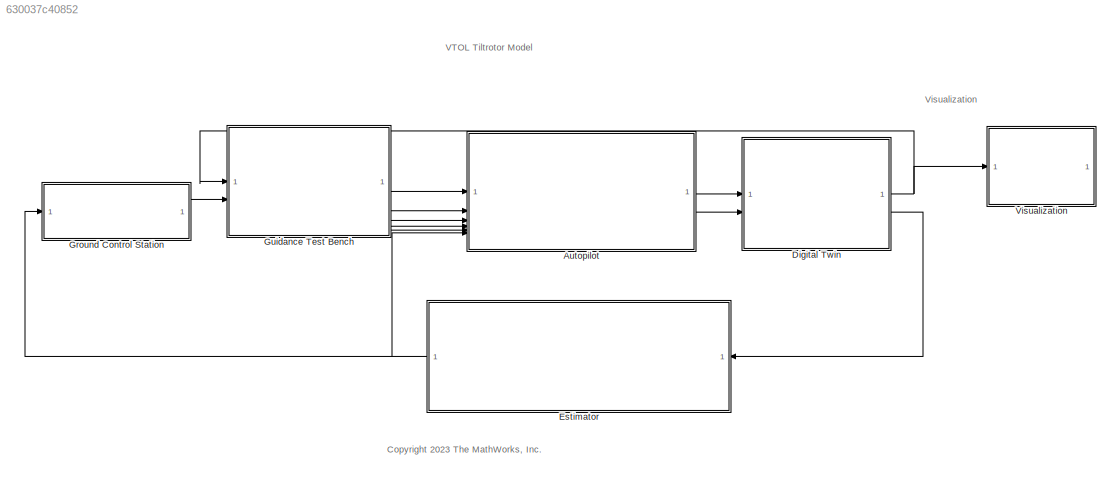
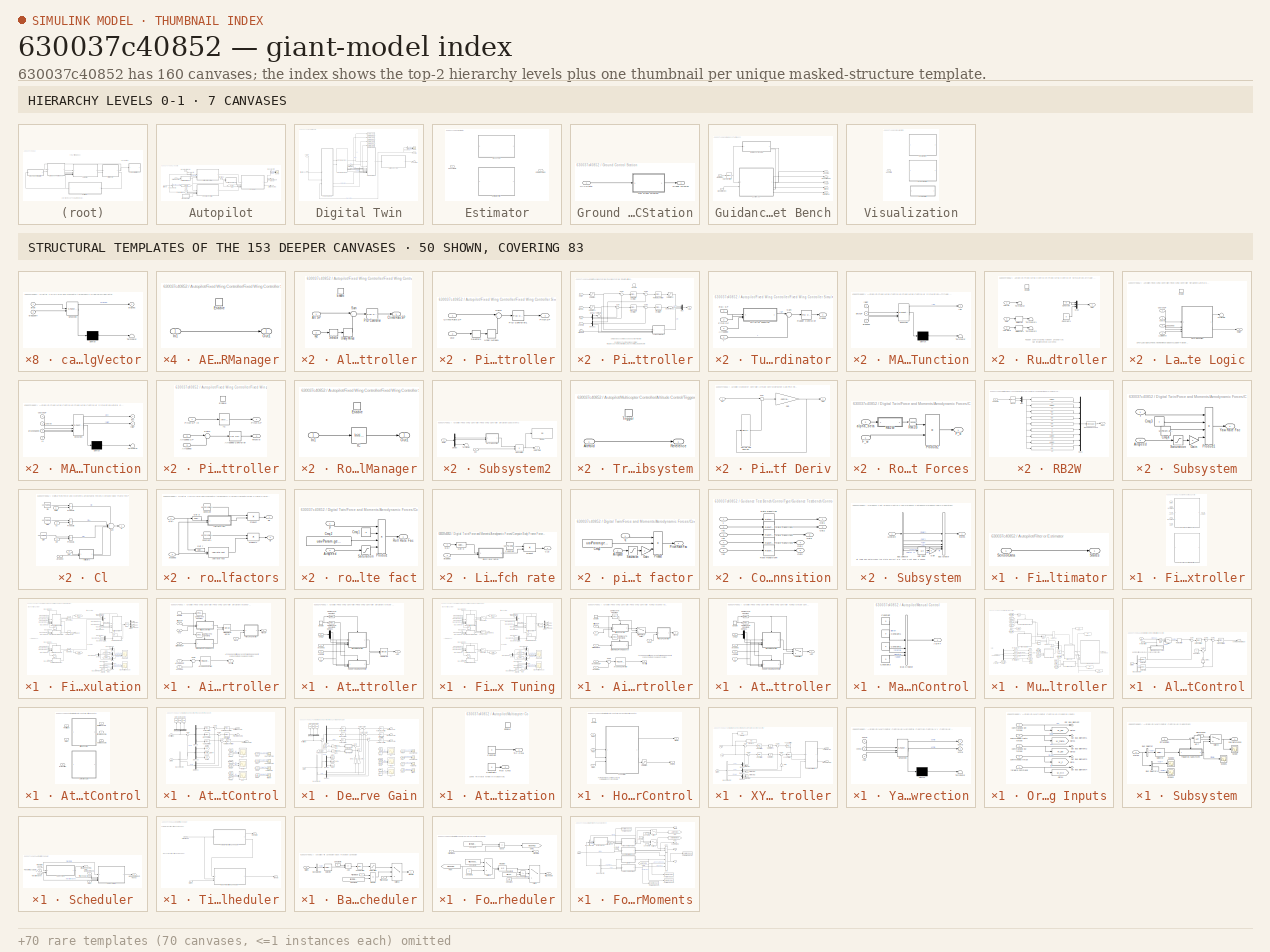
[diagram: thumbnail index - top-2 hierarchy levels (7 canvases) + 50 structural-template representatives of the remaining 153 canvases]
MODEL slx_630037c40852
KIND model
CONFIG AbsTol = auto
CONFIG EnableMultiTasking = on
CONFIG FixedStep = 0.02
CONFIG MaxStep = auto
CONFIG MinStep = auto
CONFIG RelTol = 1e-3
CONFIG SampleTimeConstraint = Unconstrained
CONFIG SolverName = FixedStepAuto
CONFIG StartTime = 0.0
CONFIG StopTime = 200
BLOCK [SubSystem] Autopilot
BLOCK [Inport] Autopilot/AAC
  NameLocation = left
  Port = 3
BLOCK [BusSelector] Autopilot/Bus Selector
  OutputSignals = inTransition
BLOCK [BusSelector] Autopilot/Bus Selector1
  OutputSignals = TransitionCondition
BLOCK [BusSelector] Autopilot/Bus Selector2
  OutputSignals = w1,w2,w3,w4
BLOCK [Inport] Autopilot/CtrlMode
  NameLocation = top
  Port = 4
BLOCK [Outport] Autopilot/CtrlSurfaceCmds
  Port = 2
BLOCK [Inport] Autopilot/EstimatedStates
  Port = 6
BLOCK [SubSystem] Autopilot/Filter or Estimator
BLOCK [Inport] Autopilot/Filter or Estimator/SensorData
BLOCK [Outport] Autopilot/Filter or Estimator/States
BLOCK [SubSystem] Autopilot/Fixed Wing Controller
  Variant = on
  VariantControl = Fixed Wing Controller
BLOCK [Inport] Autopilot/Fixed Wing Controller/AAC SP
  Port = 3
BLOCK [Inport] Autopilot/Fixed Wing Controller/AERT
  Port = 5
BLOCK [Outport] Autopilot/Fixed Wing Controller/Actuator
BLOCK [Inport] Autopilot/Fixed Wing Controller/Control Mode
  Port = 2
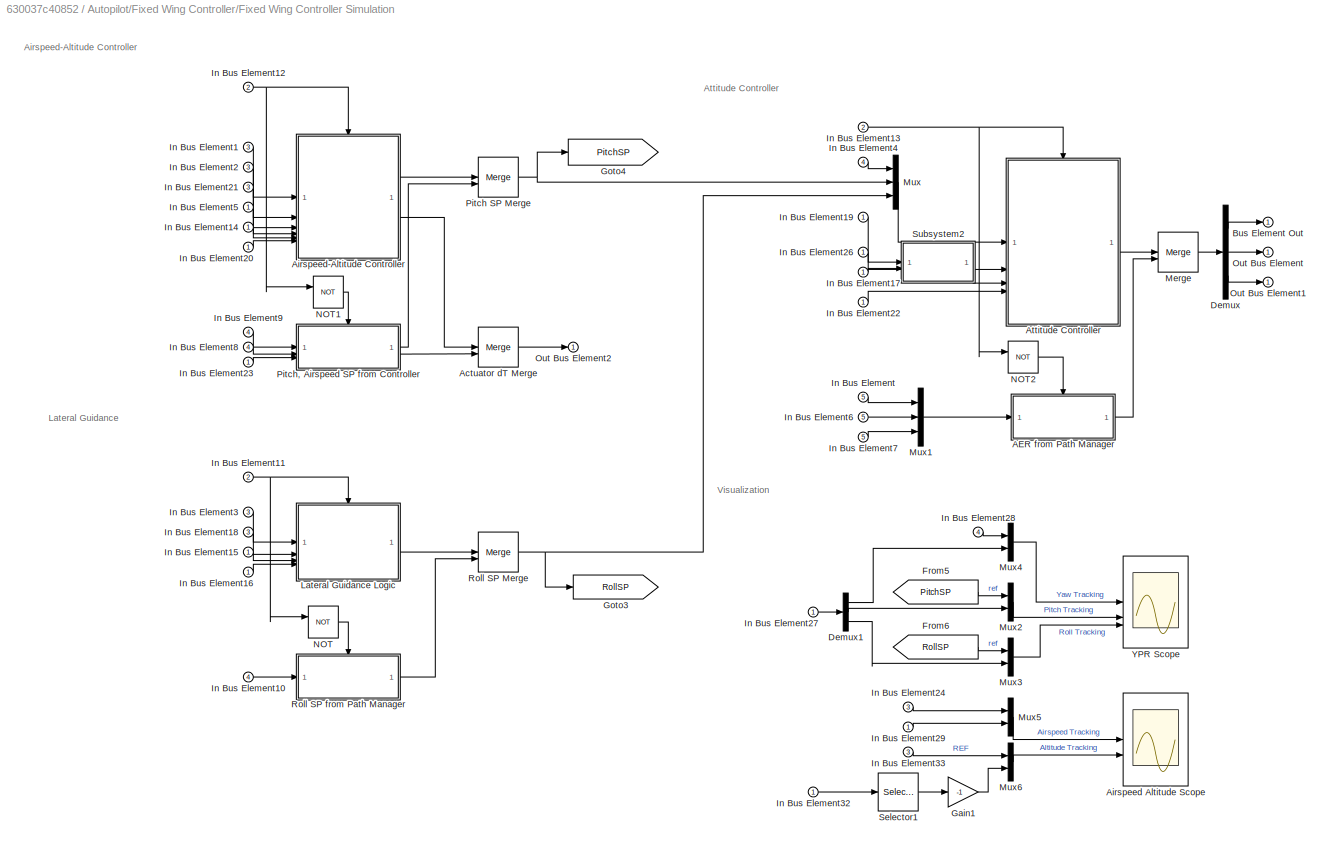
BLOCK [SubSystem] Autopilot/Fixed Wing Controller/Fixed Wing Controller Simulation
  VariantControl = TuningMode == 0
BLOCK [SubSystem] Autopilot/Fixed Wing Controller/Fixed Wing Controller Simulation/AER from Path Manager
  TreatAsAtomicUnit = on
BLOCK [EnablePort] Autopilot/Fixed Wing Controller/Fixed Wing Controller Simulation/AER from Path Manager/Enable
BLOCK [Inport] Autopilot/Fixed Wing Controller/Fixed Wing Controller Simulation/AER from Path Manager/In1
BLOCK [Outport] Autopilot/Fixed Wing Controller/Fixed Wing Controller Simulation/AER from Path Manager/Out1
BLOCK [Merge] Autopilot/Fixed Wing Controller/Fixed Wing Controller Simulation/Actuator dT Merge
BLOCK [Scope] Autopilot/Fixed Wing Controller/Fixed Wing Controller Simulation/Airspeed Altitude Scope
  Floating = off
  NumInputPorts = 2
  ScopeSpecificationString = Simulink.scopes.TimeScopeBlockCfg('CurrentConfiguration', extmgr.ConfigurationSet(extmgr.Configuration('Core','General UI',true),extmgr.Configuration('Core','Source UI',true),extmgr.Configuration('Sources','WiredSimulink',true,'DataLoggingVariableName','ScopeData4'),extmgr.Configuration('Visuals','Time Domain',true,'SerializedDisplays',{struct('MinYLimReal','-2.71065','MaxYLimReal','24.39589','YLa...<+2086ch>
BLOCK [SubSystem] Autopilot/Fixed Wing Controller/Fixed Wing Controller Simulation/Airspeed-Altitude Controller
BLOCK [Inport] Autopilot/Fixed Wing Controller/Fixed Wing Controller Simulation/Airspeed-Altitude Controller/Airspeed
  Port = 4
BLOCK [Reference] Autopilot/Fixed Wing Controller/Fixed Wing Controller Simulation/Airspeed-Altitude Controller/Airspeed Controller  REF=slpidlib/PID Controller
  SourceBlock = slpidlib/PID Controller
  SourceType = PID 1dof
BLOCK [Inport] Autopilot/Fixed Wing Controller/Fixed Wing Controller Simulation/Airspeed-Altitude Controller/Airspeed SP
BLOCK [Inport] Autopilot/Fixed Wing Controller/Fixed Wing Controller Simulation/Airspeed-Altitude Controller/Altitude SP
  Port = 2
BLOCK [SubSystem] Autopilot/Fixed Wing Controller/Fixed Wing Controller Simulation/Airspeed-Altitude Controller/Altitude controller
BLOCK [Inport] Autopilot/Fixed Wing Controller/Fixed Wing Controller Simulation/Airspeed-Altitude Controller/Altitude controller/Alt SP
BLOCK [Outport] Autopilot/Fixed Wing Controller/Fixed Wing Controller Simulation/Airspeed-Altitude Controller/Altitude controller/Climb Rate SP
BLOCK [EnablePort] Autopilot/Fixed Wing Controller/Fixed Wing Controller Simulation/Airspeed-Altitude Controller/Altitude controller/Enable
BLOCK [Reference] Autopilot/Fixed Wing Controller/Fixed Wing Controller Simulation/Airspeed-Altitude Controller/Altitude controller/PID Controller  REF=slpidlib/PID Controller
  SourceBlock = slpidlib/PID Controller
  SourceType = PID 1dof
BLOCK [Selector] Autopilot/Fixed Wing Controller/Fixed Wing Controller Simulation/Airspeed-Altitude Controller/Altitude controller/Selector
  IndexOptions = Index vector (dialog)
  Indices = 3
  InputPortWidth = 3
  OutputSizes = 1
BLOCK [Sum] Autopilot/Fixed Wing Controller/Fixed Wing Controller Simulation/Airspeed-Altitude Controller/Altitude controller/Sum
  Inputs = |+-
BLOCK [UnaryMinus] Autopilot/Fixed Wing Controller/Fixed Wing Controller Simulation/Airspeed-Altitude Controller/Altitude controller/Unary Minus
BLOCK [Inport] Autopilot/Fixed Wing Controller/Fixed Wing Controller Simulation/Airspeed-Altitude Controller/Altitude controller/xyz
  Port = 2
BLOCK [Inport] Autopilot/Fixed Wing Controller/Fixed Wing Controller Simulation/Airspeed-Altitude Controller/Climb Rate SP
  Port = 3
BLOCK [Merge] Autopilot/Fixed Wing Controller/Fixed Wing Controller Simulation/Airspeed-Altitude Controller/Climb Rate SP Merge
BLOCK [SubSystem] Autopilot/Fixed Wing Controller/Fixed Wing Controller Simulation/Airspeed-Altitude Controller/Climb Rate SP from Guidance
  TreatAsAtomicUnit = on
BLOCK [Inport] Autopilot/Fixed Wing Controller/Fixed Wing Controller Simulation/Airspeed-Altitude Controller/Climb Rate SP from Guidance/Climb Rate SP
BLOCK [EnablePort] Autopilot/Fixed Wing Controller/Fixed Wing Controller Simulation/Airspeed-Altitude Controller/Climb Rate SP from Guidance/Enable
BLOCK [Outport] Autopilot/Fixed Wing Controller/Fixed Wing Controller Simulation/Airspeed-Altitude Controller/Climb Rate SP from Guidance/Out1
BLOCK [Reference] Autopilot/Fixed Wing Controller/Fixed Wing Controller Simulation/Airspeed-Altitude Controller/Compare To Constant  REF=simulink/Logic and Bit
Operations/Compare
To Constant
  SourceBlock = simulink/Logic and Bit\nOperations/Compare\nTo Constant
  SourceType = Compare To Constant
BLOCK [Reference] Autopilot/Fixed Wing Controller/Fixed Wing Controller Simulation/Airspeed-Altitude Controller/Compare To Constant1  REF=simulink/Logic and Bit
Operations/Compare
To Constant
  SourceBlock = simulink/Logic and Bit\nOperations/Compare\nTo Constant
  SourceType = Compare To Constant
BLOCK [EnablePort] Autopilot/Fixed Wing Controller/Fixed Wing Controller Simulation/Airspeed-Altitude Controller/Enable
  ShowOutputPort = on
BLOCK [Outport] Autopilot/Fixed Wing Controller/Fixed Wing Controller Simulation/Airspeed-Altitude Controller/Pitch SP
BLOCK [SubSystem] Autopilot/Fixed Wing Controller/Fixed Wing Controller Simulation/Airspeed-Altitude Controller/Pitch SP Controller
BLOCK [Inport] Autopilot/Fixed Wing Controller/Fixed Wing Controller Simulation/Airspeed-Altitude Controller/Pitch SP Controller/Climb Rate SP
BLOCK [Reference] Autopilot/Fixed Wing Controller/Fixed Wing Controller Simulation/Airspeed-Altitude Controller/Pitch SP Controller/PID Controller1  REF=slpidlib/PID Controller
  SourceBlock = slpidlib/PID Controller
  SourceType = PID 1dof
BLOCK [Outport] Autopilot/Fixed Wing Controller/Fixed Wing Controller Simulation/Airspeed-Altitude Controller/Pitch SP Controller/Pitch SP
BLOCK [Selector] Autopilot/Fixed Wing Controller/Fixed Wing Controller Simulation/Airspeed-Altitude Controller/Pitch SP Controller/Selector1
  IndexOptions = Index vector (dialog)
  Indices = 3
  InputPortWidth = 3
  OutputSizes = 1
BLOCK [Sum] Autopilot/Fixed Wing Controller/Fixed Wing Controller Simulation/Airspeed-Altitude Controller/Pitch SP Controller/Sum2
  Inputs = |+-
BLOCK [UnaryMinus] Autopilot/Fixed Wing Controller/Fixed Wing Controller Simulation/Airspeed-Altitude Controller/Pitch SP Controller/Unary Minus1
BLOCK [Inport] Autopilot/Fixed Wing Controller/Fixed Wing Controller Simulation/Airspeed-Altitude Controller/Pitch SP Controller/vxyz
  Port = 2
BLOCK [Sum] Autopilot/Fixed Wing Controller/Fixed Wing Controller Simulation/Airspeed-Altitude Controller/Sum1
  Inputs = |+-
BLOCK [Outport] Autopilot/Fixed Wing Controller/Fixed Wing Controller Simulation/Airspeed-Altitude Controller/Throttle
  Port = 2
BLOCK [Inport] Autopilot/Fixed Wing Controller/Fixed Wing Controller Simulation/Airspeed-Altitude Controller/vxyz
  Port = 6
BLOCK [Inport] Autopilot/Fixed Wing Controller/Fixed Wing Controller Simulation/Airspeed-Altitude Controller/xyz
  Port = 5
BLOCK [SubSystem] Autopilot/Fixed Wing Controller/Fixed Wing Controller Simulation/Attitude Controller
BLOCK [Outport] Autopilot/Fixed Wing Controller/Fixed Wing Controller Simulation/Attitude Controller/AER
BLOCK [Merge] Autopilot/Fixed Wing Controller/Fixed Wing Controller Simulation/Attitude Controller/AER Merge
BLOCK [Inport] Autopilot/Fixed Wing Controller/Fixed Wing Controller Simulation/Attitude Controller/Airspeed
  Port = 4
BLOCK [Inport] Autopilot/Fixed Wing Controller/Fixed Wing Controller Simulation/Attitude Controller/Ang Rate
  Port = 3
BLOCK [Reference] Autopilot/Fixed Wing Controller/Fixed Wing Controller Simulation/Attitude Controller/Compare To Constant  REF=simulink/Logic and Bit
Operations/Compare
To Constant
  SourceBlock = simulink/Logic and Bit\nOperations/Compare\nTo Constant
  SourceType = Compare To Constant
BLOCK [Reference] Autopilot/Fixed Wing Controller/Fixed Wing Controller Simulation/Attitude Controller/Compare To Constant1  REF=simulink/Logic and Bit
Operations/Compare
To Constant
  SourceBlock = simulink/Logic and Bit\nOperations/Compare\nTo Constant
  SourceType = Compare To Constant
BLOCK [Demux] Autopilot/Fixed Wing Controller/Fixed Wing Controller Simulation/Attitude Controller/Demux1
  NameLocation = right
  Outputs = 3
BLOCK [EnablePort] Autopilot/Fixed Wing Controller/Fixed Wing Controller Simulation/Attitude Controller/Enable
  ShowOutputPort = on
BLOCK [SubSystem] Autopilot/Fixed Wing Controller/Fixed Wing Controller Simulation/Attitude Controller/Pitch Roll Controller
BLOCK [Outport] Autopilot/Fixed Wing Controller/Fixed Wing Controller Simulation/Attitude Controller/Pitch Roll Controller/AER
BLOCK [Inport] Autopilot/Fixed Wing Controller/Fixed Wing Controller Simulation/Attitude Controller/Pitch Roll Controller/Airspeed
  Port = 5
BLOCK [Inport] Autopilot/Fixed Wing Controller/Fixed Wing Controller Simulation/Attitude Controller/Pitch Roll Controller/Ang Rate
  Port = 4
BLOCK [Demux] Autopilot/Fixed Wing Controller/Fixed Wing Controller Simulation/Attitude Controller/Pitch Roll Controller/Demux
  Outputs = 3
BLOCK [Demux] Autopilot/Fixed Wing Controller/Fixed Wing Controller Simulation/Attitude Controller/Pitch Roll Controller/Demux1
  Outputs = 3
BLOCK [EnablePort] Autopilot/Fixed Wing Controller/Fixed Wing Controller Simulation/Attitude Controller/Pitch Roll Controller/Enable
BLOCK [Mux] Autopilot/Fixed Wing Controller/Fixed Wing Controller Simulation/Attitude Controller/Pitch Roll Controller/Mux
  DisplayOption = bar
  Inputs = 3
BLOCK [Reference] Autopilot/Fixed Wing Controller/Fixed Wing Controller Simulation/Attitude Controller/Pitch Roll Controller/Pitch Angle Controller  REF=slpidlib/PID Controller
  LibrarySourceBlock = simulink/Continuous/PID Controller
  SourceBlock = slpidlib/PID Controller
  SourceType = PID 1dof
BLOCK [Reference] Autopilot/Fixed Wing Controller/Fixed Wing Controller Simulation/Attitude Controller/Pitch Roll Controller/Pitch Rate Controller  REF=slpidlib/PID Controller
  LibrarySourceBlock = simulink/Continuous/PID Controller
  SourceBlock = slpidlib/PID Controller
  SourceType = PID 1dof
BLOCK [Inport] Autopilot/Fixed Wing Controller/Fixed Wing Controller Simulation/Attitude Controller/Pitch Roll Controller/Pitch SP
BLOCK [Reference] Autopilot/Fixed Wing Controller/Fixed Wing Controller Simulation/Attitude Controller/Pitch Roll Controller/Roll Angle Controller  REF=slpidlib/PID Controller
  SourceBlock = slpidlib/PID Controller
  SourceType = PID 1dof
BLOCK [Reference] Autopilot/Fixed Wing Controller/Fixed Wing Controller Simulation/Attitude Controller/Pitch Roll Controller/Roll Rate Controller  REF=slpidlib/PID Controller
  SourceBlock = slpidlib/PID Controller
  SourceType = PID 1dof
BLOCK [Inport] Autopilot/Fixed Wing Controller/Fixed Wing Controller Simulation/Attitude Controller/Pitch Roll Controller/Roll SP
  Port = 2
BLOCK [Saturate] Autopilot/Fixed Wing Controller/Fixed Wing Controller Simulation/Attitude Controller/Pitch Roll Controller/Saturation
  LowerLimit = control.minRoll
  UpperLimit = control.maxRoll
BLOCK [Saturate] Autopilot/Fixed Wing Controller/Fixed Wing Controller Simulation/Attitude Controller/Pitch Roll Controller/Saturation1
  LowerLimit = control.minPitch
  UpperLimit = control.maxPitch
BLOCK [Saturate] Autopilot/Fixed Wing Controller/Fixed Wing Controller Simulation/Attitude Controller/Pitch Roll Controller/Saturation2
  LowerLimit = -0.3
  UpperLimit = 0.3
BLOCK [Sum] Autopilot/Fixed Wing Controller/Fixed Wing Controller Simulation/Attitude Controller/Pitch Roll Controller/Sum
  Inputs = |+-
BLOCK [Sum] Autopilot/Fixed Wing Controller/Fixed Wing Controller Simulation/Attitude Controller/Pitch Roll Controller/Sum1
  Inputs = |+-
BLOCK [Sum] Autopilot/Fixed Wing Controller/Fixed Wing Controller Simulation/Attitude Controller/Pitch Roll Controller/Sum2
  Inputs = |+-
BLOCK [Sum] Autopilot/Fixed Wing Controller/Fixed Wing Controller Simulation/Attitude Controller/Pitch Roll Controller/Sum3
  Inputs = |+-
BLOCK [Terminator] Autopilot/Fixed Wing Controller/Fixed Wing Controller Simulation/Attitude Controller/Pitch Roll Controller/Terminator
BLOCK [SubSystem] Autopilot/Fixed Wing Controller/Fixed Wing Controller Simulation/Attitude Controller/Pitch Roll Controller/Turn Coordinator
BLOCK [Inport] Autopilot/Fixed Wing Controller/Fixed Wing Controller Simulation/Attitude Controller/Pitch Roll Controller/Turn Coordinator/Airspeed
  Port = 3
BLOCK [SubSystem] Autopilot/Fixed Wing Controller/Fixed Wing Controller Simulation/Attitude Controller/Pitch Roll Controller/Turn Coordinator/MATLAB Function
  ErrorFcn = Stateflow.Translate.translate
  PermitHierarchicalResolution = ExplicitOnly
  SFBlockType = MATLAB Function
  TreatAsAtomicUnit = on
BLOCK [Demux] Autopilot/Fixed Wing Controller/Fixed Wing Controller Simulation/Attitude Controller/Pitch Roll Controller/Turn Coordinator/MATLAB Function/ Demux 
  Outputs = 1
BLOCK [S-Function] Autopilot/Fixed Wing Controller/Fixed Wing Controller Simulation/Attitude Controller/Pitch Roll Controller/Turn Coordinator/MATLAB Function/ SFunction 
  EnableBusSupport = on
  FunctionName = sf_sfun
  PortCounts = [3 2]
  SFcnIsStateOwnerBlock = off
  SFunctionDeploymentMode = off
  Tag = Stateflow S-Function 13
BLOCK [Terminator] Autopilot/Fixed Wing Controller/Fixed Wing Controller Simulation/Attitude Controller/Pitch Roll Controller/Turn Coordinator/MATLAB Function/ Terminator 
BLOCK [Inport] Autopilot/Fixed Wing Controller/Fixed Wing Controller Simulation/Attitude Controller/Pitch Roll Controller/Turn Coordinator/MATLAB Function/airSpeed
  Port = 3
BLOCK [Inport] Autopilot/Fixed Wing Controller/Fixed Wing Controller Simulation/Attitude Controller/Pitch Roll Controller/Turn Coordinator/MATLAB Function/pitchSP
  Port = 2
BLOCK [Outport] Autopilot/Fixed Wing Controller/Fixed Wing Controller Simulation/Attitude Controller/Pitch Roll Controller/Turn Coordinator/MATLAB Function/rSP
BLOCK [Inport] Autopilot/Fixed Wing Controller/Fixed Wing Controller Simulation/Attitude Controller/Pitch Roll Controller/Turn Coordinator/MATLAB Function/rollSP
BLOCK [Inport] Autopilot/Fixed Wing Controller/Fixed Wing Controller Simulation/Attitude Controller/Pitch Roll Controller/Turn Coordinator/Pitch SP
  Port = 2
BLOCK [Inport] Autopilot/Fixed Wing Controller/Fixed Wing Controller Simulation/Attitude Controller/Pitch Roll Controller/Turn Coordinator/Roll SP
BLOCK [Outport] Autopilot/Fixed Wing Controller/Fixed Wing Controller Simulation/Attitude Controller/Pitch Roll Controller/Turn Coordinator/Rudder
BLOCK [Reference] Autopilot/Fixed Wing Controller/Fixed Wing Controller Simulation/Attitude Controller/Pitch Roll Controller/Turn Coordinator/Rudder Controller  REF=slpidlib/PID Controller
  SourceBlock = slpidlib/PID Controller
  SourceType = PID 1dof
BLOCK [Sum] Autopilot/Fixed Wing Controller/Fixed Wing Controller Simulation/Attitude Controller/Pitch Roll Controller/Turn Coordinator/Sum
  Inputs = |+-
BLOCK [Inport] Autopilot/Fixed Wing Controller/Fixed Wing Controller Simulation/Attitude Controller/Pitch Roll Controller/Turn Coordinator/r
  Port = 4
BLOCK [UnaryMinus] Autopilot/Fixed Wing Controller/Fixed Wing Controller Simulation/Attitude Controller/Pitch Roll Controller/Unary Minus1
BLOCK [Inport] Autopilot/Fixed Wing Controller/Fixed Wing Controller Simulation/Attitude Controller/Pitch Roll Controller/YPR
  Port = 3
BLOCK [SubSystem] Autopilot/Fixed Wing Controller/Fixed Wing Controller Simulation/Attitude Controller/Rudder Heading Controller
BLOCK [Outport] Autopilot/Fixed Wing Controller/Fixed Wing Controller Simulation/Attitude Controller/Rudder Heading Controller/AER
BLOCK [Inport] Autopilot/Fixed Wing Controller/Fixed Wing Controller Simulation/Attitude Controller/Rudder Heading Controller/Ang Rate
  Port = 3
BLOCK [Constant] Autopilot/Fixed Wing Controller/Fixed Wing Controller Simulation/Attitude Controller/Rudder Heading Controller/Constant
  Value = 0
BLOCK [Constant] Autopilot/Fixed Wing Controller/Fixed Wing Controller Simulation/Attitude Controller/Rudder Heading Controller/Constant1
  Value = 0
BLOCK [EnablePort] Autopilot/Fixed Wing Controller/Fixed Wing Controller Simulation/Attitude Controller/Rudder Heading Controller/Enable
BLOCK [Mux] Autopilot/Fixed Wing Controller/Fixed Wing Controller Simulation/Attitude Controller/Rudder Heading Controller/Mux
  DisplayOption = bar
  Inputs = 3
BLOCK [Selector] Autopilot/Fixed Wing Controller/Fixed Wing Controller Simulation/Attitude Controller/Rudder Heading Controller/Selector
  IndexOptions = Index vector (dialog)
  Indices = 1
  InputPortWidth = 3
  OutputSizes = 1
BLOCK [Selector] Autopilot/Fixed Wing Controller/Fixed Wing Controller Simulation/Attitude Controller/Rudder Heading Controller/Selector1
  IndexOptions = Index vector (dialog)
  Indices = 3
  InputPortWidth = 3
  OutputSizes = 1
BLOCK [Terminator] Autopilot/Fixed Wing Controller/Fixed Wing Controller Simulation/Attitude Controller/Rudder Heading Controller/Terminator
BLOCK [Terminator] Autopilot/Fixed Wing Controller/Fixed Wing Controller Simulation/Attitude Controller/Rudder Heading Controller/Terminator1
BLOCK [Terminator] Autopilot/Fixed Wing Controller/Fixed Wing Controller Simulation/Attitude Controller/Rudder Heading Controller/Terminator2
BLOCK [Inport] Autopilot/Fixed Wing Controller/Fixed Wing Controller Simulation/Attitude Controller/Rudder Heading Controller/YPR
  Port = 2
BLOCK [Inport] Autopilot/Fixed Wing Controller/Fixed Wing Controller Simulation/Attitude Controller/Rudder Heading Controller/Yaw SP
BLOCK [Inport] Autopilot/Fixed Wing Controller/Fixed Wing Controller Simulation/Attitude Controller/YPR SP
BLOCK [Inport] Autopilot/Fixed Wing Controller/Fixed Wing Controller Simulation/Attitude Controller/ypr
  Port = 2
BLOCK [Outport] Autopilot/Fixed Wing Controller/Fixed Wing Controller Simulation/Bus Element Out
BLOCK [Demux] Autopilot/Fixed Wing Controller/Fixed Wing Controller Simulation/Demux
  Outputs = 3
BLOCK [Demux] Autopilot/Fixed Wing Controller/Fixed Wing Controller Simulation/Demux1
  Outputs = 3
BLOCK [From] Autopilot/Fixed Wing Controller/Fixed Wing Controller Simulation/From5
  GotoTag = PitchSP
BLOCK [From] Autopilot/Fixed Wing Controller/Fixed Wing Controller Simulation/From6
  GotoTag = RollSP
BLOCK [Gain] Autopilot/Fixed Wing Controller/Fixed Wing Controller Simulation/Gain1
  Gain = -1
BLOCK [Goto] Autopilot/Fixed Wing Controller/Fixed Wing Controller Simulation/Goto3
  GotoTag = RollSP
BLOCK [Goto] Autopilot/Fixed Wing Controller/Fixed Wing Controller Simulation/Goto4
  GotoTag = PitchSP
BLOCK [Inport] Autopilot/Fixed Wing Controller/Fixed Wing Controller Simulation/In Bus Element
  Port = 5
BLOCK [Inport] Autopilot/Fixed Wing Controller/Fixed Wing Controller Simulation/In Bus Element1
  Port = 3
BLOCK [Inport] Autopilot/Fixed Wing Controller/Fixed Wing Controller Simulation/In Bus Element10
  Port = 4
BLOCK [Inport] Autopilot/Fixed Wing Controller/Fixed Wing Controller Simulation/In Bus Element11
  Port = 2
BLOCK [Inport] Autopilot/Fixed Wing Controller/Fixed Wing Controller Simulation/In Bus Element12
  Port = 2
BLOCK [Inport] Autopilot/Fixed Wing Controller/Fixed Wing Controller Simulation/In Bus Element13
  Port = 2
BLOCK [Inport] Autopilot/Fixed Wing Controller/Fixed Wing Controller Simulation/In Bus Element14
BLOCK [Inport] Autopilot/Fixed Wing Controller/Fixed Wing Controller Simulation/In Bus Element15
BLOCK [Inport] Autopilot/Fixed Wing Controller/Fixed Wing Controller Simulation/In Bus Element16
BLOCK [Inport] Autopilot/Fixed Wing Controller/Fixed Wing Controller Simulation/In Bus Element17
BLOCK [Inport] Autopilot/Fixed Wing Controller/Fixed Wing Controller Simulation/In Bus Element18
  Port = 3
BLOCK [Inport] Autopilot/Fixed Wing Controller/Fixed Wing Controller Simulation/In Bus Element19
BLOCK [Inport] Autopilot/Fixed Wing Controller/Fixed Wing Controller Simulation/In Bus Element2
  Port = 3
BLOCK [Inport] Autopilot/Fixed Wing Controller/Fixed Wing Controller Simulation/In Bus Element20
BLOCK [Inport] Autopilot/Fixed Wing Controller/Fixed Wing Controller Simulation/In Bus Element21
  Port = 3
BLOCK [Inport] Autopilot/Fixed Wing Controller/Fixed Wing Controller Simulation/In Bus Element22
BLOCK [Inport] Autopilot/Fixed Wing Controller/Fixed Wing Controller Simulation/In Bus Element23
BLOCK [Inport] Autopilot/Fixed Wing Controller/Fixed Wing Controller Simulation/In Bus Element24
  Port = 3
BLOCK [Inport] Autopilot/Fixed Wing Controller/Fixed Wing Controller Simulation/In Bus Element26
BLOCK [Inport] Autopilot/Fixed Wing Controller/Fixed Wing Controller Simulation/In Bus Element27
BLOCK [Inport] Autopilot/Fixed Wing Controller/Fixed Wing Controller Simulation/In Bus Element28
  Port = 4
BLOCK [Inport] Autopilot/Fixed Wing Controller/Fixed Wing Controller Simulation/In Bus Element29
BLOCK [Inport] Autopilot/Fixed Wing Controller/Fixed Wing Controller Simulation/In Bus Element3
  Port = 3
BLOCK [Inport] Autopilot/Fixed Wing Controller/Fixed Wing Controller Simulation/In Bus Element32
BLOCK [Inport] Autopilot/Fixed Wing Controller/Fixed Wing Controller Simulation/In Bus Element33
  Port = 3
BLOCK [Inport] Autopilot/Fixed Wing Controller/Fixed Wing Controller Simulation/In Bus Element4
  Port = 4
BLOCK [Inport] Autopilot/Fixed Wing Controller/Fixed Wing Controller Simulation/In Bus Element5
BLOCK [Inport] Autopilot/Fixed Wing Controller/Fixed Wing Controller Simulation/In Bus Element6
  Port = 5
BLOCK [Inport] Autopilot/Fixed Wing Controller/Fixed Wing Controller Simulation/In Bus Element7
  Port = 5
BLOCK [Inport] Autopilot/Fixed Wing Controller/Fixed Wing Controller Simulation/In Bus Element8
  Port = 4
BLOCK [Inport] Autopilot/Fixed Wing Controller/Fixed Wing Controller Simulation/In Bus Element9
  Port = 4
BLOCK [SubSystem] Autopilot/Fixed Wing Controller/Fixed Wing Controller Simulation/Lateral Guidance Logic
BLOCK [Inport] Autopilot/Fixed Wing Controller/Fixed Wing Controller Simulation/Lateral Guidance Logic/Course SP
BLOCK [EnablePort] Autopilot/Fixed Wing Controller/Fixed Wing Controller Simulation/Lateral Guidance Logic/Enable
BLOCK [Inport] Autopilot/Fixed Wing Controller/Fixed Wing Controller Simulation/Lateral Guidance Logic/L1 Distance
  Port = 2
BLOCK [SubSystem] Autopilot/Fixed Wing Controller/Fixed Wing Controller Simulation/Lateral Guidance Logic/MATLAB Function
  ErrorFcn = Stateflow.Translate.translate
  PermitHierarchicalResolution = ExplicitOnly
  SFBlockType = MATLAB Function
  SystemSampleTime = ControlSampleTime
  TreatAsAtomicUnit = on
BLOCK [Demux] Autopilot/Fixed Wing Controller/Fixed Wing Controller Simulation/Lateral Guidance Logic/MATLAB Function/ Demux 
  Outputs = 1
BLOCK [S-Function] Autopilot/Fixed Wing Controller/Fixed Wing Controller Simulation/Lateral Guidance Logic/MATLAB Function/ SFunction 
  EnableBusSupport = on
  FunctionName = sf_sfun
  PortCounts = [4 3]
  SFcnIsStateOwnerBlock = off
  SFunctionDeploymentMode = off
  Tag = Stateflow S-Function 2
BLOCK [Terminator] Autopilot/Fixed Wing Controller/Fixed Wing Controller Simulation/Lateral Guidance Logic/MATLAB Function/ Terminator 
BLOCK [Inport] Autopilot/Fixed Wing Controller/Fixed Wing Controller Simulation/Lateral Guidance Logic/MATLAB Function/L1
  Port = 4
BLOCK [Inport] Autopilot/Fixed Wing Controller/Fixed Wing Controller Simulation/Lateral Guidance Logic/MATLAB Function/course
  Port = 2
BLOCK [Inport] Autopilot/Fixed Wing Controller/Fixed Wing Controller Simulation/Lateral Guidance Logic/MATLAB Function/courseSP
BLOCK [Inport] Autopilot/Fixed Wing Controller/Fixed Wing Controller Simulation/Lateral Guidance Logic/MATLAB Function/groundSpeed
  Port = 3
BLOCK [Outport] Autopilot/Fixed Wing Controller/Fixed Wing Controller Simulation/Lateral Guidance Logic/MATLAB Function/lacc
BLOCK [Outport] Autopilot/Fixed Wing Controller/Fixed Wing Controller Simulation/Lateral Guidance Logic/MATLAB Function/rollSP
  Port = 2
BLOCK [Outport] Autopilot/Fixed Wing Controller/Fixed Wing Controller Simulation/Lateral Guidance Logic/Roll SP
BLOCK [Terminator] Autopilot/Fixed Wing Controller/Fixed Wing Controller Simulation/Lateral Guidance Logic/Terminator
BLOCK [Inport] Autopilot/Fixed Wing Controller/Fixed Wing Controller Simulation/Lateral Guidance Logic/course
  Port = 3
BLOCK [Inport] Autopilot/Fixed Wing Controller/Fixed Wing Controller Simulation/Lateral Guidance Logic/gndspeed
  Port = 4
BLOCK [Merge] Autopilot/Fixed Wing Controller/Fixed Wing Controller Simulation/Merge
BLOCK [Mux] Autopilot/Fixed Wing Controller/Fixed Wing Controller Simulation/Mux
  DisplayOption = bar
  Inputs = 3
BLOCK [Mux] Autopilot/Fixed Wing Controller/Fixed Wing Controller Simulation/Mux1
  DisplayOption = bar
  Inputs = 3
BLOCK [Mux] Autopilot/Fixed Wing Controller/Fixed Wing Controller Simulation/Mux2
  DisplayOption = bar
  Inputs = 2
BLOCK [Mux] Autopilot/Fixed Wing Controller/Fixed Wing Controller Simulation/Mux3
  DisplayOption = bar
  Inputs = 2
BLOCK [Mux] Autopilot/Fixed Wing Controller/Fixed Wing Controller Simulation/Mux4
  DisplayOption = bar
  Inputs = 2
BLOCK [Mux] Autopilot/Fixed Wing Controller/Fixed Wing Controller Simulation/Mux5
  DisplayOption = bar
  Inputs = 2
BLOCK [Mux] Autopilot/Fixed Wing Controller/Fixed Wing Controller Simulation/Mux6
  DisplayOption = bar
  Inputs = 2
BLOCK [Logic] Autopilot/Fixed Wing Controller/Fixed Wing Controller Simulation/NOT
  AllPortsSameDT = off
  IconShape = distinctive
  Operator = NOT
  OutDataTypeStr = boolean
BLOCK [Logic] Autopilot/Fixed Wing Controller/Fixed Wing Controller Simulation/NOT1
  AllPortsSameDT = off
  IconShape = distinctive
  Operator = NOT
  OutDataTypeStr = boolean
BLOCK [Logic] Autopilot/Fixed Wing Controller/Fixed Wing Controller Simulation/NOT2
  AllPortsSameDT = off
  IconShape = distinctive
  Operator = NOT
  OutDataTypeStr = boolean
BLOCK [Outport] Autopilot/Fixed Wing Controller/Fixed Wing Controller Simulation/Out Bus Element
BLOCK [Outport] Autopilot/Fixed Wing Controller/Fixed Wing Controller Simulation/Out Bus Element1
BLOCK [Outport] Autopilot/Fixed Wing Controller/Fixed Wing Controller Simulation/Out Bus Element2
BLOCK [Merge] Autopilot/Fixed Wing Controller/Fixed Wing Controller Simulation/Pitch SP Merge
BLOCK [SubSystem] Autopilot/Fixed Wing Controller/Fixed Wing Controller Simulation/Pitch, Airspeed SP from Controller
  TreatAsAtomicUnit = on
BLOCK [Inport] Autopilot/Fixed Wing Controller/Fixed Wing Controller Simulation/Pitch, Airspeed SP from Controller/Airspeed
  Port = 3
BLOCK [Reference] Autopilot/Fixed Wing Controller/Fixed Wing Controller Simulation/Pitch, Airspeed SP from Controller/Airspeed Controller  REF=slpidlib/PID Controller
  SourceBlock = slpidlib/PID Controller
  SourceType = PID 1dof
BLOCK [Inport] Autopilot/Fixed Wing Controller/Fixed Wing Controller Simulation/Pitch, Airspeed SP from Controller/Airspeed SP
  Port = 2
BLOCK [EnablePort] Autopilot/Fixed Wing Controller/Fixed Wing Controller Simulation/Pitch, Airspeed SP from Controller/Enable
BLOCK [InitialCondition] Autopilot/Fixed Wing Controller/Fixed Wing Controller Simulation/Pitch, Airspeed SP from Controller/IC
  Value = 0
BLOCK [Outport] Autopilot/Fixed Wing Controller/Fixed Wing Controller Simulation/Pitch, Airspeed SP from Controller/Pitch SP
BLOCK [Inport] Autopilot/Fixed Wing Controller/Fixed Wing Controller Simulation/Pitch, Airspeed SP from Controller/Pitch SP In
BLOCK [Sum] Autopilot/Fixed Wing Controller/Fixed Wing Controller Simulation/Pitch, Airspeed SP from Controller/Sum1
  Inputs = |+-
BLOCK [Outport] Autopilot/Fixed Wing Controller/Fixed Wing Controller Simulation/Pitch, Airspeed SP from Controller/Throttle
  Port = 2
BLOCK [Merge] Autopilot/Fixed Wing Controller/Fixed Wing Controller Simulation/Roll SP Merge
BLOCK [SubSystem] Autopilot/Fixed Wing Controller/Fixed Wing Controller Simulation/Roll SP from Path Manager
  TreatAsAtomicUnit = on
BLOCK [EnablePort] Autopilot/Fixed Wing Controller/Fixed Wing Controller Simulation/Roll SP from Path Manager/Enable
BLOCK [InitialCondition] Autopilot/Fixed Wing Controller/Fixed Wing Controller Simulation/Roll SP from Path Manager/IC
  Value = 0
BLOCK [Inport] Autopilot/Fixed Wing Controller/Fixed Wing Controller Simulation/Roll SP from Path Manager/In1
BLOCK [Outport] Autopilot/Fixed Wing Controller/Fixed Wing Controller Simulation/Roll SP from Path Manager/Out1
BLOCK [Selector] Autopilot/Fixed Wing Controller/Fixed Wing Controller Simulation/Selector1
  IndexOptions = Index vector (dialog)
  Indices = [3]
  InputPortWidth = 3
  OutputSizes = 1
BLOCK [SubSystem] Autopilot/Fixed Wing Controller/Fixed Wing Controller Simulation/Subsystem2
BLOCK [Demux] Autopilot/Fixed Wing Controller/Fixed Wing Controller Simulation/Subsystem2/Demux
  Outputs = 3
BLOCK [Display] Autopilot/Fixed Wing Controller/Fixed Wing Controller Simulation/Subsystem2/Display
  Decimation = 1
BLOCK [Inport] Autopilot/Fixed Wing Controller/Fixed Wing Controller Simulation/Subsystem2/Euler
BLOCK [Outport] Autopilot/Fixed Wing Controller/Fixed Wing Controller Simulation/Subsystem2/Euler Rate
BLOCK [SubSystem] Autopilot/Fixed Wing Controller/Fixed Wing Controller Simulation/Subsystem2/MATLAB Function
  ErrorFcn = Stateflow.Translate.translate
  LibrarySourceBlock = simulink/User-Defined\nFunctions/MATLAB Function
  PermitHierarchicalResolution = ExplicitOnly
  SFBlockType = MATLAB Function
  TreatAsAtomicUnit = on
BLOCK [Demux] Autopilot/Fixed Wing Controller/Fixed Wing Controller Simulation/Subsystem2/MATLAB Function/ Demux 
  Outputs = 1
BLOCK [S-Function] Autopilot/Fixed Wing Controller/Fixed Wing Controller Simulation/Subsystem2/MATLAB Function/ SFunction 
  EnableBusSupport = on
  FunctionName = sf_sfun
  PortCounts = [2 2]
  SFcnIsStateOwnerBlock = off
  SFunctionDeploymentMode = off
  Tag = Stateflow S-Function 21
BLOCK [Terminator] Autopilot/Fixed Wing Controller/Fixed Wing Controller Simulation/Subsystem2/MATLAB Function/ Terminator 
BLOCK [Inport] Autopilot/Fixed Wing Controller/Fixed Wing Controller Simulation/Subsystem2/MATLAB Function/phi
BLOCK [Inport] Autopilot/Fixed Wing Controller/Fixed Wing Controller Simulation/Subsystem2/MATLAB Function/theta
  Port = 2
BLOCK [Outport] Autopilot/Fixed Wing Controller/Fixed Wing Controller Simulation/Subsystem2/MATLAB Function/y
BLOCK [Product] Autopilot/Fixed Wing Controller/Fixed Wing Controller Simulation/Subsystem2/Matrix Multiply
  Multiplication = Matrix(*)
BLOCK [Terminator] Autopilot/Fixed Wing Controller/Fixed Wing Controller Simulation/Subsystem2/Terminator
BLOCK [Inport] Autopilot/Fixed Wing Controller/Fixed Wing Controller Simulation/Subsystem2/pqr
  Port = 2
BLOCK [Scope] Autopilot/Fixed Wing Controller/Fixed Wing Controller Simulation/YPR Scope
  Floating = off
  NumInputPorts = 3
  ScopeSpecificationString = Simulink.scopes.TimeScopeBlockCfg('CurrentConfiguration', extmgr.ConfigurationSet(extmgr.Configuration('Core','General UI',true),extmgr.Configuration('Core','Source UI',true),extmgr.Configuration('Sources','WiredSimulink',true,'DataLoggingVariableName','ScopeData5'),extmgr.Configuration('Visuals','Time Domain',true,'SerializedDisplays',{struct('MinYLimReal','-3.92665','MaxYLimReal','3.92513','YLab...<+2727ch>
BLOCK [SubSystem] Autopilot/Fixed Wing Controller/Fixed Wing Controller Tuning
  VariantControl = TuningMode ~= 0
BLOCK [Switch] Autopilot/Fixed Wing Controller/Fixed Wing Controller Tuning/AER Switch
  Criteria = u2 > Threshold
  InputSameDT = off
  SaturateOnIntegerOverflow = off
BLOCK [SubSystem] Autopilot/Fixed Wing Controller/Fixed Wing Controller Tuning/AER from Path Manager
  TreatAsAtomicUnit = on
BLOCK [EnablePort] Autopilot/Fixed Wing Controller/Fixed Wing Controller Tuning/AER from Path Manager/Enable
BLOCK [Inport] Autopilot/Fixed Wing Controller/Fixed Wing Controller Tuning/AER from Path Manager/In1
BLOCK [Outport] Autopilot/Fixed Wing Controller/Fixed Wing Controller Tuning/AER from Path Manager/Out1
BLOCK [Switch] Autopilot/Fixed Wing Controller/Fixed Wing Controller Tuning/Actuator dT Switch
  Criteria = u2 > Threshold
  InputSameDT = off
  SaturateOnIntegerOverflow = off
BLOCK [Scope] Autopilot/Fixed Wing Controller/Fixed Wing Controller Tuning/Airspeed Altitude Scope
  Floating = off
  NumInputPorts = 2
  ScopeSpecificationString = Simulink.scopes.TimeScopeBlockCfg('CurrentConfiguration', extmgr.ConfigurationSet(extmgr.Configuration('Core','General UI',true),extmgr.Configuration('Core','Source UI',true),extmgr.Configuration('Sources','WiredSimulink',true,'DataLoggingVariableName','ScopeData3'),extmgr.Configuration('Visuals','Time Domain',true,'SerializedDisplays',{struct('MinYLimReal','-2.71065','MaxYLimReal','24.39589','YLa...<+2168ch>
BLOCK [SubSystem] Autopilot/Fixed Wing Controller/Fixed Wing Controller Tuning/Airspeed-Altitude Controller
BLOCK [Inport] Autopilot/Fixed Wing Controller/Fixed Wing Controller Tuning/Airspeed-Altitude Controller/Airspeed
  Port = 4
BLOCK [Reference] Autopilot/Fixed Wing Controller/Fixed Wing Controller Tuning/Airspeed-Altitude Controller/Airspeed Controller  REF=slpidlib/PID Controller
  SourceBlock = slpidlib/PID Controller
  SourceType = PID 1dof
BLOCK [Inport] Autopilot/Fixed Wing Controller/Fixed Wing Controller Tuning/Airspeed-Altitude Controller/Airspeed SP
BLOCK [SubSystem] Autopilot/Fixed Wing Controller/Fixed Wing Controller Tuning/Airspeed-Altitude Controller/Altitude Controller
BLOCK [Inport] Autopilot/Fixed Wing Controller/Fixed Wing Controller Tuning/Airspeed-Altitude Controller/Altitude Controller/Alt SP
BLOCK [Outport] Autopilot/Fixed Wing Controller/Fixed Wing Controller Tuning/Airspeed-Altitude Controller/Altitude Controller/Climb Rate SP
BLOCK [EnablePort] Autopilot/Fixed Wing Controller/Fixed Wing Controller Tuning/Airspeed-Altitude Controller/Altitude Controller/Enable
BLOCK [Reference] Autopilot/Fixed Wing Controller/Fixed Wing Controller Tuning/Airspeed-Altitude Controller/Altitude Controller/PID Controller  REF=slpidlib/PID Controller
  SourceBlock = slpidlib/PID Controller
  SourceType = PID 1dof
BLOCK [Selector] Autopilot/Fixed Wing Controller/Fixed Wing Controller Tuning/Airspeed-Altitude Controller/Altitude Controller/Selector
  IndexOptions = Index vector (dialog)
  Indices = 3
  InputPortWidth = 3
  OutputSizes = 1
BLOCK [Sum] Autopilot/Fixed Wing Controller/Fixed Wing Controller Tuning/Airspeed-Altitude Controller/Altitude Controller/Sum
  Inputs = |+-
BLOCK [UnaryMinus] Autopilot/Fixed Wing Controller/Fixed Wing Controller Tuning/Airspeed-Altitude Controller/Altitude Controller/Unary Minus
BLOCK [Inport] Autopilot/Fixed Wing Controller/Fixed Wing Controller Tuning/Airspeed-Altitude Controller/Altitude Controller/xyz
  Port = 2
BLOCK [Inport] Autopilot/Fixed Wing Controller/Fixed Wing Controller Tuning/Airspeed-Altitude Controller/Altitude SP
  Port = 2
BLOCK [Inport] Autopilot/Fixed Wing Controller/Fixed Wing Controller Tuning/Airspeed-Altitude Controller/Climb Rate SP
  Port = 3
BLOCK [Switch] Autopilot/Fixed Wing Controller/Fixed Wing Controller Tuning/Airspeed-Altitude Controller/Climb Rate SP Switch
  Criteria = u2 > Threshold
  InputSameDT = off
  SaturateOnIntegerOverflow = off
BLOCK [SubSystem] Autopilot/Fixed Wing Controller/Fixed Wing Controller Tuning/Airspeed-Altitude Controller/Climb Rate SP from Guidance
  TreatAsAtomicUnit = on
BLOCK [Inport] Autopilot/Fixed Wing Controller/Fixed Wing Controller Tuning/Airspeed-Altitude Controller/Climb Rate SP from Guidance/Climb Rate SP
BLOCK [EnablePort] Autopilot/Fixed Wing Controller/Fixed Wing Controller Tuning/Airspeed-Altitude Controller/Climb Rate SP from Guidance/Enable
BLOCK [Outport] Autopilot/Fixed Wing Controller/Fixed Wing Controller Tuning/Airspeed-Altitude Controller/Climb Rate SP from Guidance/Out1
BLOCK [Reference] Autopilot/Fixed Wing Controller/Fixed Wing Controller Tuning/Airspeed-Altitude Controller/Compare To Constant  REF=simulink/Logic and Bit
Operations/Compare
To Constant
  SourceBlock = simulink/Logic and Bit\nOperations/Compare\nTo Constant
  SourceType = Compare To Constant
BLOCK [Reference] Autopilot/Fixed Wing Controller/Fixed Wing Controller Tuning/Airspeed-Altitude Controller/Compare To Constant1  REF=simulink/Logic and Bit
Operations/Compare
To Constant
  SourceBlock = simulink/Logic and Bit\nOperations/Compare\nTo Constant
  SourceType = Compare To Constant
BLOCK [EnablePort] Autopilot/Fixed Wing Controller/Fixed Wing Controller Tuning/Airspeed-Altitude Controller/Enable
  ShowOutputPort = on
BLOCK [Outport] Autopilot/Fixed Wing Controller/Fixed Wing Controller Tuning/Airspeed-Altitude Controller/Pitch SP
BLOCK [SubSystem] Autopilot/Fixed Wing Controller/Fixed Wing Controller Tuning/Airspeed-Altitude Controller/Pitch SP Controller
BLOCK [Inport] Autopilot/Fixed Wing Controller/Fixed Wing Controller Tuning/Airspeed-Altitude Controller/Pitch SP Controller/Climb Rate SP
BLOCK [Reference] Autopilot/Fixed Wing Controller/Fixed Wing Controller Tuning/Airspeed-Altitude Controller/Pitch SP Controller/PID Controller  REF=slpidlib/PID Controller
  SourceBlock = slpidlib/PID Controller
  SourceType = PID 1dof
BLOCK [Outport] Autopilot/Fixed Wing Controller/Fixed Wing Controller Tuning/Airspeed-Altitude Controller/Pitch SP Controller/Pitch SP
BLOCK [Selector] Autopilot/Fixed Wing Controller/Fixed Wing Controller Tuning/Airspeed-Altitude Controller/Pitch SP Controller/Selector1
  IndexOptions = Index vector (dialog)
  Indices = 3
  InputPortWidth = 3
  OutputSizes = 1
BLOCK [Sum] Autopilot/Fixed Wing Controller/Fixed Wing Controller Tuning/Airspeed-Altitude Controller/Pitch SP Controller/Sum2
  Inputs = |+-
BLOCK [UnaryMinus] Autopilot/Fixed Wing Controller/Fixed Wing Controller Tuning/Airspeed-Altitude Controller/Pitch SP Controller/Unary Minus1
BLOCK [Inport] Autopilot/Fixed Wing Controller/Fixed Wing Controller Tuning/Airspeed-Altitude Controller/Pitch SP Controller/vxyz
  Port = 2
BLOCK [Sum] Autopilot/Fixed Wing Controller/Fixed Wing Controller Tuning/Airspeed-Altitude Controller/Sum1
  Inputs = |+-
BLOCK [Outport] Autopilot/Fixed Wing Controller/Fixed Wing Controller Tuning/Airspeed-Altitude Controller/Throttle
  Port = 2
BLOCK [Inport] Autopilot/Fixed Wing Controller/Fixed Wing Controller Tuning/Airspeed-Altitude Controller/vxyz
  Port = 6
BLOCK [Inport] Autopilot/Fixed Wing Controller/Fixed Wing Controller Tuning/Airspeed-Altitude Controller/xyz
  Port = 5
BLOCK [SubSystem] Autopilot/Fixed Wing Controller/Fixed Wing Controller Tuning/Attitude Controller
BLOCK [Outport] Autopilot/Fixed Wing Controller/Fixed Wing Controller Tuning/Attitude Controller/AER
BLOCK [Switch] Autopilot/Fixed Wing Controller/Fixed Wing Controller Tuning/Attitude Controller/AER Switch
  Criteria = u2 > Threshold
  InputSameDT = off
  SaturateOnIntegerOverflow = off
BLOCK [Inport] Autopilot/Fixed Wing Controller/Fixed Wing Controller Tuning/Attitude Controller/Airspeed
  Port = 4
BLOCK [Inport] Autopilot/Fixed Wing Controller/Fixed Wing Controller Tuning/Attitude Controller/Ang Rate
  Port = 3
BLOCK [Reference] Autopilot/Fixed Wing Controller/Fixed Wing Controller Tuning/Attitude Controller/Compare To Constant  REF=simulink/Logic and Bit
Operations/Compare
To Constant
  SourceBlock = simulink/Logic and Bit\nOperations/Compare\nTo Constant
  SourceType = Compare To Constant
BLOCK [Reference] Autopilot/Fixed Wing Controller/Fixed Wing Controller Tuning/Attitude Controller/Compare To Constant1  REF=simulink/Logic and Bit
Operations/Compare
To Constant
  SourceBlock = simulink/Logic and Bit\nOperations/Compare\nTo Constant
  SourceType = Compare To Constant
BLOCK [Demux] Autopilot/Fixed Wing Controller/Fixed Wing Controller Tuning/Attitude Controller/Demux1
  NameLocation = right
  Outputs = 3
BLOCK [EnablePort] Autopilot/Fixed Wing Controller/Fixed Wing Controller Tuning/Attitude Controller/Enable
  ShowOutputPort = on
BLOCK [SubSystem] Autopilot/Fixed Wing Controller/Fixed Wing Controller Tuning/Attitude Controller/Pitch Roll Controller
BLOCK [Outport] Autopilot/Fixed Wing Controller/Fixed Wing Controller Tuning/Attitude Controller/Pitch Roll Controller/AER
BLOCK [Inport] Autopilot/Fixed Wing Controller/Fixed Wing Controller Tuning/Attitude Controller/Pitch Roll Controller/Airspeed
  Port = 5
BLOCK [Inport] Autopilot/Fixed Wing Controller/Fixed Wing Controller Tuning/Attitude Controller/Pitch Roll Controller/Ang Rate
  Port = 4
BLOCK [Demux] Autopilot/Fixed Wing Controller/Fixed Wing Controller Tuning/Attitude Controller/Pitch Roll Controller/Demux
  Outputs = 3
BLOCK [Demux] Autopilot/Fixed Wing Controller/Fixed Wing Controller Tuning/Attitude Controller/Pitch Roll Controller/Demux1
  Outputs = 3
BLOCK [EnablePort] Autopilot/Fixed Wing Controller/Fixed Wing Controller Tuning/Attitude Controller/Pitch Roll Controller/Enable
BLOCK [Mux] Autopilot/Fixed Wing Controller/Fixed Wing Controller Tuning/Attitude Controller/Pitch Roll Controller/Mux
  DisplayOption = bar
  Inputs = 3
BLOCK [Reference] Autopilot/Fixed Wing Controller/Fixed Wing Controller Tuning/Attitude Controller/Pitch Roll Controller/Pitch Angle Controller  REF=slpidlib/PID Controller
  LibrarySourceBlock = simulink/Continuous/PID Controller
  SourceBlock = slpidlib/PID Controller
  SourceType = PID 1dof
BLOCK [Reference] Autopilot/Fixed Wing Controller/Fixed Wing Controller Tuning/Attitude Controller/Pitch Roll Controller/Pitch Rate Controller  REF=slpidlib/PID Controller
  LibrarySourceBlock = simulink/Continuous/PID Controller
  SourceBlock = slpidlib/PID Controller
  SourceType = PID 1dof
BLOCK [Inport] Autopilot/Fixed Wing Controller/Fixed Wing Controller Tuning/Attitude Controller/Pitch Roll Controller/Pitch SP
BLOCK [Reference] Autopilot/Fixed Wing Controller/Fixed Wing Controller Tuning/Attitude Controller/Pitch Roll Controller/Roll Angle Controller  REF=slpidlib/PID Controller
  SourceBlock = slpidlib/PID Controller
  SourceType = PID 1dof
BLOCK [Reference] Autopilot/Fixed Wing Controller/Fixed Wing Controller Tuning/Attitude Controller/Pitch Roll Controller/Roll Rate Controller  REF=slpidlib/PID Controller
  SourceBlock = slpidlib/PID Controller
  SourceType = PID 1dof
BLOCK [Inport] Autopilot/Fixed Wing Controller/Fixed Wing Controller Tuning/Attitude Controller/Pitch Roll Controller/Roll SP
  Port = 2
BLOCK [Saturate] Autopilot/Fixed Wing Controller/Fixed Wing Controller Tuning/Attitude Controller/Pitch Roll Controller/Saturation
  LowerLimit = control.minRoll
  UpperLimit = control.maxRoll
BLOCK [Saturate] Autopilot/Fixed Wing Controller/Fixed Wing Controller Tuning/Attitude Controller/Pitch Roll Controller/Saturation1
  LowerLimit = control.minPitch
  UpperLimit = control.maxPitch
BLOCK [Saturate] Autopilot/Fixed Wing Controller/Fixed Wing Controller Tuning/Attitude Controller/Pitch Roll Controller/Saturation2
  LowerLimit = -0.3
  UpperLimit = 0.3
BLOCK [Sum] Autopilot/Fixed Wing Controller/Fixed Wing Controller Tuning/Attitude Controller/Pitch Roll Controller/Sum
  Inputs = |+-
BLOCK [Sum] Autopilot/Fixed Wing Controller/Fixed Wing Controller Tuning/Attitude Controller/Pitch Roll Controller/Sum1
  Inputs = |+-
BLOCK [Sum] Autopilot/Fixed Wing Controller/Fixed Wing Controller Tuning/Attitude Controller/Pitch Roll Controller/Sum2
  Inputs = |+-
BLOCK [Sum] Autopilot/Fixed Wing Controller/Fixed Wing Controller Tuning/Attitude Controller/Pitch Roll Controller/Sum3
  Inputs = |+-
BLOCK [Terminator] Autopilot/Fixed Wing Controller/Fixed Wing Controller Tuning/Attitude Controller/Pitch Roll Controller/Terminator
BLOCK [SubSystem] Autopilot/Fixed Wing Controller/Fixed Wing Controller Tuning/Attitude Controller/Pitch Roll Controller/Turn Coordinator
BLOCK [Inport] Autopilot/Fixed Wing Controller/Fixed Wing Controller Tuning/Attitude Controller/Pitch Roll Controller/Turn Coordinator/Airspeed
  Port = 3
BLOCK [SubSystem] Autopilot/Fixed Wing Controller/Fixed Wing Controller Tuning/Attitude Controller/Pitch Roll Controller/Turn Coordinator/MATLAB Function
  ErrorFcn = Stateflow.Translate.translate
  PermitHierarchicalResolution = ExplicitOnly
  SFBlockType = MATLAB Function
  TreatAsAtomicUnit = on
BLOCK [Demux] Autopilot/Fixed Wing Controller/Fixed Wing Controller Tuning/Attitude Controller/Pitch Roll Controller/Turn Coordinator/MATLAB Function/ Demux 
  Outputs = 1
BLOCK [S-Function] Autopilot/Fixed Wing Controller/Fixed Wing Controller Tuning/Attitude Controller/Pitch Roll Controller/Turn Coordinator/MATLAB Function/ SFunction 
  EnableBusSupport = off
  FunctionName = sf_sfun
  PortCounts = [3 2]
  SFcnIsStateOwnerBlock = off
  SFunctionDeploymentMode = off
  Tag = Stateflow S-Function 9
BLOCK [Terminator] Autopilot/Fixed Wing Controller/Fixed Wing Controller Tuning/Attitude Controller/Pitch Roll Controller/Turn Coordinator/MATLAB Function/ Terminator 
BLOCK [Inport] Autopilot/Fixed Wing Controller/Fixed Wing Controller Tuning/Attitude Controller/Pitch Roll Controller/Turn Coordinator/MATLAB Function/airSpeed
  Port = 3
BLOCK [Inport] Autopilot/Fixed Wing Controller/Fixed Wing Controller Tuning/Attitude Controller/Pitch Roll Controller/Turn Coordinator/MATLAB Function/pitchSP
  Port = 2
BLOCK [Outport] Autopilot/Fixed Wing Controller/Fixed Wing Controller Tuning/Attitude Controller/Pitch Roll Controller/Turn Coordinator/MATLAB Function/rSP
BLOCK [Inport] Autopilot/Fixed Wing Controller/Fixed Wing Controller Tuning/Attitude Controller/Pitch Roll Controller/Turn Coordinator/MATLAB Function/rollSP
BLOCK [Inport] Autopilot/Fixed Wing Controller/Fixed Wing Controller Tuning/Attitude Controller/Pitch Roll Controller/Turn Coordinator/Pitch SP
  Port = 2
BLOCK [Inport] Autopilot/Fixed Wing Controller/Fixed Wing Controller Tuning/Attitude Controller/Pitch Roll Controller/Turn Coordinator/Roll SP
BLOCK [Outport] Autopilot/Fixed Wing Controller/Fixed Wing Controller Tuning/Attitude Controller/Pitch Roll Controller/Turn Coordinator/Rudder
BLOCK [Reference] Autopilot/Fixed Wing Controller/Fixed Wing Controller Tuning/Attitude Controller/Pitch Roll Controller/Turn Coordinator/Rudder Controller  REF=slpidlib/PID Controller
  SourceBlock = slpidlib/PID Controller
  SourceType = PID 1dof
BLOCK [Sum] Autopilot/Fixed Wing Controller/Fixed Wing Controller Tuning/Attitude Controller/Pitch Roll Controller/Turn Coordinator/Sum
  Inputs = |+-
BLOCK [Inport] Autopilot/Fixed Wing Controller/Fixed Wing Controller Tuning/Attitude Controller/Pitch Roll Controller/Turn Coordinator/r
  Port = 4
BLOCK [UnaryMinus] Autopilot/Fixed Wing Controller/Fixed Wing Controller Tuning/Attitude Controller/Pitch Roll Controller/Unary Minus1
BLOCK [Inport] Autopilot/Fixed Wing Controller/Fixed Wing Controller Tuning/Attitude Controller/Pitch Roll Controller/YPR
  Port = 3
BLOCK [SubSystem] Autopilot/Fixed Wing Controller/Fixed Wing Controller Tuning/Attitude Controller/Rudder Heading Controller
BLOCK [Outport] Autopilot/Fixed Wing Controller/Fixed Wing Controller Tuning/Attitude Controller/Rudder Heading Controller/AER
BLOCK [Inport] Autopilot/Fixed Wing Controller/Fixed Wing Controller Tuning/Attitude Controller/Rudder Heading Controller/Ang Rate
  Port = 3
BLOCK [Constant] Autopilot/Fixed Wing Controller/Fixed Wing Controller Tuning/Attitude Controller/Rudder Heading Controller/Constant
  Value = 0
BLOCK [Constant] Autopilot/Fixed Wing Controller/Fixed Wing Controller Tuning/Attitude Controller/Rudder Heading Controller/Constant1
  Value = 0
BLOCK [EnablePort] Autopilot/Fixed Wing Controller/Fixed Wing Controller Tuning/Attitude Controller/Rudder Heading Controller/Enable
BLOCK [Mux] Autopilot/Fixed Wing Controller/Fixed Wing Controller Tuning/Attitude Controller/Rudder Heading Controller/Mux
  DisplayOption = bar
  Inputs = 3
BLOCK [Selector] Autopilot/Fixed Wing Controller/Fixed Wing Controller Tuning/Attitude Controller/Rudder Heading Controller/Selector
  IndexOptions = Index vector (dialog)
  Indices = 1
  InputPortWidth = 3
  OutputSizes = 1
BLOCK [Selector] Autopilot/Fixed Wing Controller/Fixed Wing Controller Tuning/Attitude Controller/Rudder Heading Controller/Selector1
  IndexOptions = Index vector (dialog)
  Indices = 3
  InputPortWidth = 3
  OutputSizes = 1
BLOCK [Terminator] Autopilot/Fixed Wing Controller/Fixed Wing Controller Tuning/Attitude Controller/Rudder Heading Controller/Terminator
BLOCK [Terminator] Autopilot/Fixed Wing Controller/Fixed Wing Controller Tuning/Attitude Controller/Rudder Heading Controller/Terminator1
BLOCK [Terminator] Autopilot/Fixed Wing Controller/Fixed Wing Controller Tuning/Attitude Controller/Rudder Heading Controller/Terminator2
BLOCK [Inport] Autopilot/Fixed Wing Controller/Fixed Wing Controller Tuning/Attitude Controller/Rudder Heading Controller/YPR
  Port = 2
BLOCK [Inport] Autopilot/Fixed Wing Controller/Fixed Wing Controller Tuning/Attitude Controller/Rudder Heading Controller/Yaw SP
BLOCK [Inport] Autopilot/Fixed Wing Controller/Fixed Wing Controller Tuning/Attitude Controller/YPR SP
BLOCK [Inport] Autopilot/Fixed Wing Controller/Fixed Wing Controller Tuning/Attitude Controller/ypr
  Port = 2
BLOCK [Outport] Autopilot/Fixed Wing Controller/Fixed Wing Controller Tuning/Bus Element Out
BLOCK [Demux] Autopilot/Fixed Wing Controller/Fixed Wing Controller Tuning/Demux
  Outputs = 3
BLOCK [Demux] Autopilot/Fixed Wing Controller/Fixed Wing Controller Tuning/Demux1
  Outputs = 3
BLOCK [From] Autopilot/Fixed Wing Controller/Fixed Wing Controller Tuning/From5
  GotoTag = PitchSP
BLOCK [From] Autopilot/Fixed Wing Controller/Fixed Wing Controller Tuning/From6
  GotoTag = RollSP
BLOCK [Gain] Autopilot/Fixed Wing Controller/Fixed Wing Controller Tuning/Gain
  Gain = -1
BLOCK [Goto] Autopilot/Fixed Wing Controller/Fixed Wing Controller Tuning/Goto3
  GotoTag = RollSP
BLOCK [Goto] Autopilot/Fixed Wing Controller/Fixed Wing Controller Tuning/Goto4
  GotoTag = PitchSP
BLOCK [Inport] Autopilot/Fixed Wing Controller/Fixed Wing Controller Tuning/In Bus Element
  Port = 5
BLOCK [Inport] Autopilot/Fixed Wing Controller/Fixed Wing Controller Tuning/In Bus Element1
  Port = 3
BLOCK [Inport] Autopilot/Fixed Wing Controller/Fixed Wing Controller Tuning/In Bus Element10
  Port = 4
BLOCK [Inport] Autopilot/Fixed Wing Controller/Fixed Wing Controller Tuning/In Bus Element11
  Port = 2
BLOCK [Inport] Autopilot/Fixed Wing Controller/Fixed Wing Controller Tuning/In Bus Element12
  Port = 2
BLOCK [Inport] Autopilot/Fixed Wing Controller/Fixed Wing Controller Tuning/In Bus Element13
  Port = 2
BLOCK [Inport] Autopilot/Fixed Wing Controller/Fixed Wing Controller Tuning/In Bus Element14
BLOCK [Inport] Autopilot/Fixed Wing Controller/Fixed Wing Controller Tuning/In Bus Element15
BLOCK [Inport] Autopilot/Fixed Wing Controller/Fixed Wing Controller Tuning/In Bus Element16
BLOCK [Inport] Autopilot/Fixed Wing Controller/Fixed Wing Controller Tuning/In Bus Element17
BLOCK [Inport] Autopilot/Fixed Wing Controller/Fixed Wing Controller Tuning/In Bus Element18
  Port = 3
BLOCK [Inport] Autopilot/Fixed Wing Controller/Fixed Wing Controller Tuning/In Bus Element19
BLOCK [Inport] Autopilot/Fixed Wing Controller/Fixed Wing Controller Tuning/In Bus Element2
  Port = 3
BLOCK [Inport] Autopilot/Fixed Wing Controller/Fixed Wing Controller Tuning/In Bus Element20
BLOCK [Inport] Autopilot/Fixed Wing Controller/Fixed Wing Controller Tuning/In Bus Element21
  Port = 3
BLOCK [Inport] Autopilot/Fixed Wing Controller/Fixed Wing Controller Tuning/In Bus Element22
BLOCK [Inport] Autopilot/Fixed Wing Controller/Fixed Wing Controller Tuning/In Bus Element23
BLOCK [Inport] Autopilot/Fixed Wing Controller/Fixed Wing Controller Tuning/In Bus Element24
  Port = 3
BLOCK [Inport] Autopilot/Fixed Wing Controller/Fixed Wing Controller Tuning/In Bus Element26
BLOCK [Inport] Autopilot/Fixed Wing Controller/Fixed Wing Controller Tuning/In Bus Element27
BLOCK [Inport] Autopilot/Fixed Wing Controller/Fixed Wing Controller Tuning/In Bus Element28
  Port = 4
BLOCK [Inport] Autopilot/Fixed Wing Controller/Fixed Wing Controller Tuning/In Bus Element29
BLOCK [Inport] Autopilot/Fixed Wing Controller/Fixed Wing Controller Tuning/In Bus Element3
  Port = 3
BLOCK [Inport] Autopilot/Fixed Wing Controller/Fixed Wing Controller Tuning/In Bus Element32
BLOCK [Inport] Autopilot/Fixed Wing Controller/Fixed Wing Controller Tuning/In Bus Element33
  Port = 3
BLOCK [Inport] Autopilot/Fixed Wing Controller/Fixed Wing Controller Tuning/In Bus Element4
  Port = 4
BLOCK [Inport] Autopilot/Fixed Wing Controller/Fixed Wing Controller Tuning/In Bus Element5
BLOCK [Inport] Autopilot/Fixed Wing Controller/Fixed Wing Controller Tuning/In Bus Element6
  Port = 5
BLOCK [Inport] Autopilot/Fixed Wing Controller/Fixed Wing Controller Tuning/In Bus Element7
  Port = 5
BLOCK [Inport] Autopilot/Fixed Wing Controller/Fixed Wing Controller Tuning/In Bus Element8
  Port = 4
BLOCK [Inport] Autopilot/Fixed Wing Controller/Fixed Wing Controller Tuning/In Bus Element9
  Port = 4
BLOCK [SubSystem] Autopilot/Fixed Wing Controller/Fixed Wing Controller Tuning/Lateral Guidance Logic
BLOCK [Inport] Autopilot/Fixed Wing Controller/Fixed Wing Controller Tuning/Lateral Guidance Logic/Course SP
BLOCK [EnablePort] Autopilot/Fixed Wing Controller/Fixed Wing Controller Tuning/Lateral Guidance Logic/Enable
BLOCK [Inport] Autopilot/Fixed Wing Controller/Fixed Wing Controller Tuning/Lateral Guidance Logic/L1 Distance
  Port = 2
BLOCK [SubSystem] Autopilot/Fixed Wing Controller/Fixed Wing Controller Tuning/Lateral Guidance Logic/MATLAB Function
  ErrorFcn = Stateflow.Translate.translate
  PermitHierarchicalResolution = ExplicitOnly
  SFBlockType = MATLAB Function
  SystemSampleTime = ControlSampleTime
  TreatAsAtomicUnit = on
BLOCK [Demux] Autopilot/Fixed Wing Controller/Fixed Wing Controller Tuning/Lateral Guidance Logic/MATLAB Function/ Demux 
  Outputs = 1
BLOCK [S-Function] Autopilot/Fixed Wing Controller/Fixed Wing Controller Tuning/Lateral Guidance Logic/MATLAB Function/ SFunction 
  EnableBusSupport = off
  FunctionName = sf_sfun
  PortCounts = [4 3]
  SFcnIsStateOwnerBlock = off
  SFunctionDeploymentMode = off
  Tag = Stateflow S-Function 8
BLOCK [Terminator] Autopilot/Fixed Wing Controller/Fixed Wing Controller Tuning/Lateral Guidance Logic/MATLAB Function/ Terminator 
BLOCK [Inport] Autopilot/Fixed Wing Controller/Fixed Wing Controller Tuning/Lateral Guidance Logic/MATLAB Function/L1
  Port = 4
BLOCK [Inport] Autopilot/Fixed Wing Controller/Fixed Wing Controller Tuning/Lateral Guidance Logic/MATLAB Function/course
  Port = 2
BLOCK [Inport] Autopilot/Fixed Wing Controller/Fixed Wing Controller Tuning/Lateral Guidance Logic/MATLAB Function/courseSP
BLOCK [Inport] Autopilot/Fixed Wing Controller/Fixed Wing Controller Tuning/Lateral Guidance Logic/MATLAB Function/groundSpeed
  Port = 3
BLOCK [Outport] Autopilot/Fixed Wing Controller/Fixed Wing Controller Tuning/Lateral Guidance Logic/MATLAB Function/lacc
BLOCK [Outport] Autopilot/Fixed Wing Controller/Fixed Wing Controller Tuning/Lateral Guidance Logic/MATLAB Function/rollSP
  Port = 2
BLOCK [Outport] Autopilot/Fixed Wing Controller/Fixed Wing Controller Tuning/Lateral Guidance Logic/Roll SP
BLOCK [Terminator] Autopilot/Fixed Wing Controller/Fixed Wing Controller Tuning/Lateral Guidance Logic/Terminator
BLOCK [Inport] Autopilot/Fixed Wing Controller/Fixed Wing Controller Tuning/Lateral Guidance Logic/course
  Port = 3
BLOCK [Inport] Autopilot/Fixed Wing Controller/Fixed Wing Controller Tuning/Lateral Guidance Logic/gndspeed
  Port = 4
BLOCK [Mux] Autopilot/Fixed Wing Controller/Fixed Wing Controller Tuning/Mux
  DisplayOption = bar
  Inputs = 3
BLOCK [Mux] Autopilot/Fixed Wing Controller/Fixed Wing Controller Tuning/Mux1
  DisplayOption = bar
  Inputs = 3
BLOCK [Mux] Autopilot/Fixed Wing Controller/Fixed Wing Controller Tuning/Mux2
  DisplayOption = bar
  Inputs = 2
BLOCK [Mux] Autopilot/Fixed Wing Controller/Fixed Wing Controller Tuning/Mux3
  DisplayOption = bar
  Inputs = 2
BLOCK [Mux] Autopilot/Fixed Wing Controller/Fixed Wing Controller Tuning/Mux4
  DisplayOption = bar
  Inputs = 2
BLOCK [Mux] Autopilot/Fixed Wing Controller/Fixed Wing Controller Tuning/Mux5
  DisplayOption = bar
  Inputs = 2
BLOCK [Mux] Autopilot/Fixed Wing Controller/Fixed Wing Controller Tuning/Mux6
  DisplayOption = bar
  Inputs = 2
BLOCK [Logic] Autopilot/Fixed Wing Controller/Fixed Wing Controller Tuning/NOT
  AllPortsSameDT = off
  IconShape = distinctive
  Operator = NOT
  OutDataTypeStr = boolean
BLOCK [Logic] Autopilot/Fixed Wing Controller/Fixed Wing Controller Tuning/NOT1
  AllPortsSameDT = off
  IconShape = distinctive
  Operator = NOT
  OutDataTypeStr = boolean
BLOCK [Logic] Autopilot/Fixed Wing Controller/Fixed Wing Controller Tuning/NOT2
  AllPortsSameDT = off
  IconShape = distinctive
  Operator = NOT
  OutDataTypeStr = boolean
BLOCK [Outport] Autopilot/Fixed Wing Controller/Fixed Wing Controller Tuning/Out Bus Element
BLOCK [Outport] Autopilot/Fixed Wing Controller/Fixed Wing Controller Tuning/Out Bus Element1
BLOCK [Outport] Autopilot/Fixed Wing Controller/Fixed Wing Controller Tuning/Out Bus Element2
BLOCK [Switch] Autopilot/Fixed Wing Controller/Fixed Wing Controller Tuning/Pitch SP Switch
  Criteria = u2 > Threshold
  InputSameDT = off
  SaturateOnIntegerOverflow = off
BLOCK [SubSystem] Autopilot/Fixed Wing Controller/Fixed Wing Controller Tuning/Pitch, Airspeed SP from Controller
  TreatAsAtomicUnit = on
BLOCK [Inport] Autopilot/Fixed Wing Controller/Fixed Wing Controller Tuning/Pitch, Airspeed SP from Controller/Airspeed
  Port = 3
BLOCK [Reference] Autopilot/Fixed Wing Controller/Fixed Wing Controller Tuning/Pitch, Airspeed SP from Controller/Airspeed Controller  REF=slpidlib/PID Controller
  SourceBlock = slpidlib/PID Controller
  SourceType = PID 1dof
BLOCK [Inport] Autopilot/Fixed Wing Controller/Fixed Wing Controller Tuning/Pitch, Airspeed SP from Controller/Airspeed SP
  Port = 2
BLOCK [EnablePort] Autopilot/Fixed Wing Controller/Fixed Wing Controller Tuning/Pitch, Airspeed SP from Controller/Enable
BLOCK [InitialCondition] Autopilot/Fixed Wing Controller/Fixed Wing Controller Tuning/Pitch, Airspeed SP from Controller/IC
  Value = 0
BLOCK [Outport] Autopilot/Fixed Wing Controller/Fixed Wing Controller Tuning/Pitch, Airspeed SP from Controller/Pitch SP
BLOCK [Inport] Autopilot/Fixed Wing Controller/Fixed Wing Controller Tuning/Pitch, Airspeed SP from Controller/Pitch SP In
BLOCK [Sum] Autopilot/Fixed Wing Controller/Fixed Wing Controller Tuning/Pitch, Airspeed SP from Controller/Sum1
  Inputs = |+-
BLOCK [Outport] Autopilot/Fixed Wing Controller/Fixed Wing Controller Tuning/Pitch, Airspeed SP from Controller/Throttle
  Port = 2
BLOCK [Switch] Autopilot/Fixed Wing Controller/Fixed Wing Controller Tuning/Roll SP Switch
  Criteria = u2 > Threshold
  InputSameDT = off
  SaturateOnIntegerOverflow = off
BLOCK [SubSystem] Autopilot/Fixed Wing Controller/Fixed Wing Controller Tuning/Roll SP from Path Manager
  TreatAsAtomicUnit = on
BLOCK [EnablePort] Autopilot/Fixed Wing Controller/Fixed Wing Controller Tuning/Roll SP from Path Manager/Enable
BLOCK [InitialCondition] Autopilot/Fixed Wing Controller/Fixed Wing Controller Tuning/Roll SP from Path Manager/IC
  Value = 0
BLOCK [Inport] Autopilot/Fixed Wing Controller/Fixed Wing Controller Tuning/Roll SP from Path Manager/In1
BLOCK [Outport] Autopilot/Fixed Wing Controller/Fixed Wing Controller Tuning/Roll SP from Path Manager/Out1
BLOCK [Selector] Autopilot/Fixed Wing Controller/Fixed Wing Controller Tuning/Selector1
  IndexOptions = Index vector (dialog)
  Indices = [3]
  InputPortWidth = 3
  OutputSizes = 1
BLOCK [SubSystem] Autopilot/Fixed Wing Controller/Fixed Wing Controller Tuning/Subsystem2
BLOCK [Demux] Autopilot/Fixed Wing Controller/Fixed Wing Controller Tuning/Subsystem2/Demux
  Outputs = 3
BLOCK [Display] Autopilot/Fixed Wing Controller/Fixed Wing Controller Tuning/Subsystem2/Display
  Decimation = 1
BLOCK [Inport] Autopilot/Fixed Wing Controller/Fixed Wing Controller Tuning/Subsystem2/Euler
BLOCK [Outport] Autopilot/Fixed Wing Controller/Fixed Wing Controller Tuning/Subsystem2/Euler Rate
BLOCK [SubSystem] Autopilot/Fixed Wing Controller/Fixed Wing Controller Tuning/Subsystem2/MATLAB Function
  ErrorFcn = Stateflow.Translate.translate
  LibrarySourceBlock = simulink/User-Defined\nFunctions/MATLAB Function
  PermitHierarchicalResolution = ExplicitOnly
  SFBlockType = MATLAB Function
  TreatAsAtomicUnit = on
BLOCK [Demux] Autopilot/Fixed Wing Controller/Fixed Wing Controller Tuning/Subsystem2/MATLAB Function/ Demux 
  Outputs = 1
BLOCK [S-Function] Autopilot/Fixed Wing Controller/Fixed Wing Controller Tuning/Subsystem2/MATLAB Function/ SFunction 
  EnableBusSupport = off
  FunctionName = sf_sfun
  PortCounts = [2 2]
  SFcnIsStateOwnerBlock = off
  SFunctionDeploymentMode = off
  Tag = Stateflow S-Function 6
BLOCK [Terminator] Autopilot/Fixed Wing Controller/Fixed Wing Controller Tuning/Subsystem2/MATLAB Function/ Terminator 
BLOCK [Inport] Autopilot/Fixed Wing Controller/Fixed Wing Controller Tuning/Subsystem2/MATLAB Function/phi
BLOCK [Inport] Autopilot/Fixed Wing Controller/Fixed Wing Controller Tuning/Subsystem2/MATLAB Function/theta
  Port = 2
BLOCK [Outport] Autopilot/Fixed Wing Controller/Fixed Wing Controller Tuning/Subsystem2/MATLAB Function/y
BLOCK [Product] Autopilot/Fixed Wing Controller/Fixed Wing Controller Tuning/Subsystem2/Matrix Multiply
  Multiplication = Matrix(*)
BLOCK [Terminator] Autopilot/Fixed Wing Controller/Fixed Wing Controller Tuning/Subsystem2/Terminator
BLOCK [Inport] Autopilot/Fixed Wing Controller/Fixed Wing Controller Tuning/Subsystem2/pqr
  Port = 2
BLOCK [Scope] Autopilot/Fixed Wing Controller/Fixed Wing Controller Tuning/YPR Scope
  Floating = off
  NumInputPorts = 3
  ScopeSpecificationString = Simulink.scopes.TimeScopeBlockCfg('CurrentConfiguration', extmgr.ConfigurationSet(extmgr.Configuration('Core','General UI',true),extmgr.Configuration('Core','Source UI',true),extmgr.Configuration('Sources','WiredSimulink',true,'DataLoggingVariableName','ScopeData2'),extmgr.Configuration('Visuals','Time Domain',true,'SerializedDisplays',{struct('MinYLimReal','-0.1648','MaxYLimReal','0.09945','YLabe...<+2825ch>
BLOCK [Inport] Autopilot/Fixed Wing Controller/FixedWingSP
  Port = 4
BLOCK [Inport] Autopilot/Fixed Wing Controller/States
BLOCK [Inport] Autopilot/FixedWingSP
  NameLocation = left
  Port = 2
BLOCK [Inport] Autopilot/FlightMode
  Port = 5
BLOCK [From] Autopilot/From
  GotoTag = TransitionDone
BLOCK [Goto] Autopilot/Goto
  GotoTag = TransitionDone
BLOCK [Inport] Autopilot/HoverCommands
BLOCK [SubSystem] Autopilot/Manual Control
BLOCK [Outport] Autopilot/Manual Control/AERT
BLOCK [BusCreator] Autopilot/Manual Control/Bus Creator
  DisplayOption = bar
  InheritFromInputs = on
  Inputs = 4
BLOCK [Constant] Autopilot/Manual Control/Constant
  Value = 0
BLOCK [Constant] Autopilot/Manual Control/Constant1
  Value = 0
BLOCK [Constant] Autopilot/Manual Control/Constant2
  Value = 0
BLOCK [Constant] Autopilot/Manual Control/Constant3
  Value = 0
BLOCK [Outport] Autopilot/MotorActuatorCommands
BLOCK [SubSystem] Autopilot/Multicopter Controller
BLOCK [SubSystem] Autopilot/Multicopter Controller/Altitude Control
BLOCK [BusSelector] Autopilot/Multicopter Controller/Altitude Control/Bus Selector
  OutputSignals = Xe,Ve
BLOCK [Constant] Autopilot/Multicopter Controller/Altitude Control/Constant
  Value = 0
BLOCK [Gain] Autopilot/Multicopter Controller/Altitude Control/Gain1
  Gain = controlParams.D_Z
  NameLocation = right
BLOCK [Inport] Autopilot/Multicopter Controller/Altitude Control/InTransition
  Port = 3
BLOCK [Logic] Autopilot/Multicopter Controller/Altitude Control/NOT
  AllPortsSameDT = off
  IconShape = distinctive
  Operator = NOT
  OutDataTypeStr = boolean
BLOCK [Reference] Autopilot/Multicopter Controller/Altitude Control/PID Controller  REF=slpidlib/PID Controller
  LibrarySourceBlock = simulink/Continuous/PID Controller
  SourceBlock = slpidlib/PID Controller
  SourceType = PID 1dof
BLOCK [Reference] Autopilot/Multicopter Controller/Altitude Control/PID Controller1  REF=slpidlib/PID Controller
  LibrarySourceBlock = simulink/Continuous/PID Controller
  SourceBlock = slpidlib/PID Controller
  SourceType = PID 1dof
BLOCK [RateLimiter] Autopilot/Multicopter Controller/Altitude Control/Rate Limiter
  FallingSlewLimit = -1000
  SampleTimeMode = inherited
BLOCK [Selector] Autopilot/Multicopter Controller/Altitude Control/Selector
  IndexOptions = Index vector (dialog)
  Indices = [3]
  InputPortWidth = 3
  OutputSizes = 1
BLOCK [Selector] Autopilot/Multicopter Controller/Altitude Control/Selector1
  IndexOptions = Index vector (dialog)
  Indices = [3]
  InputPortWidth = 3
  OutputSizes = 1
BLOCK [Inport] Autopilot/Multicopter Controller/Altitude Control/States
  Port = 2
BLOCK [Sum] Autopilot/Multicopter Controller/Altitude Control/Sum
  Inputs = |+-
BLOCK [Sum] Autopilot/Multicopter Controller/Altitude Control/Sum1
  Inputs = |+-
BLOCK [Sum] Autopilot/Multicopter Controller/Altitude Control/Sum2
  Inputs = |++
BLOCK [Sum] Autopilot/Multicopter Controller/Altitude Control/Sum3
  Inputs = |--
BLOCK [Switch] Autopilot/Multicopter Controller/Altitude Control/Switch
  Criteria = u2 > Threshold
  InputSameDT = off
  SaturateOnIntegerOverflow = off
BLOCK [SubSystem] Autopilot/Multicopter Controller/Altitude Control/Triggered Subsystem
  TreatAsAtomicUnit = on
BLOCK [Inport] Autopilot/Multicopter Controller/Altitude Control/Triggered Subsystem/AltHold
BLOCK [Outport] Autopilot/Multicopter Controller/Altitude Control/Triggered Subsystem/Reference
BLOCK [TriggerPort] Autopilot/Multicopter Controller/Altitude Control/Triggered Subsystem/Trigger
  StatesWhenEnabling = held
  VariantControl = (inherit)
BLOCK [Inport] Autopilot/Multicopter Controller/Altitude Control/Z ref
BLOCK [Outport] Autopilot/Multicopter Controller/Altitude Control/commanded thrust
BLOCK [SubSystem] Autopilot/Multicopter Controller/Attitude Control
  LabelModeActiveChoice = AttitudeControl==1
  Variant = on
  VariantControl = Choice
  VariantControlMode = label
BLOCK [SubSystem] Autopilot/Multicopter Controller/Attitude Control/Attitude Control
  VariantControl = AttitudeControl==0
BLOCK [BusSelector] Autopilot/Multicopter Controller/Attitude Control/Attitude Control/Bus Selector
  OutputSignals = Euler,pqr
BLOCK [Demux] Autopilot/Multicopter Controller/Attitude Control/Attitude Control/Demux
  Outputs = 3
BLOCK [Demux] Autopilot/Multicopter Controller/Attitude Control/Attitude Control/Demux1
  NameLocation = right
  Outputs = 3
BLOCK [Demux] Autopilot/Multicopter Controller/Attitude Control/Attitude Control/Demux2
  Outputs = 3
BLOCK [Demux] Autopilot/Multicopter Controller/Attitude Control/Attitude Control/Demux3
  Outputs = 3
BLOCK [From] Autopilot/Multicopter Controller/Attitude Control/Attitude Control/From
  GotoTag = phiref
BLOCK [From] Autopilot/Multicopter Controller/Attitude Control/Attitude Control/From1
  GotoTag = phi
BLOCK [From] Autopilot/Multicopter Controller/Attitude Control/Attitude Control/From2
  GotoTag = thetaref
BLOCK [From] Autopilot/Multicopter Controller/Attitude Control/Attitude Control/From3
  GotoTag = theta
BLOCK [From] Autopilot/Multicopter Controller/Attitude Control/Attitude Control/From4
  GotoTag = psiref
BLOCK [From] Autopilot/Multicopter Controller/Attitude Control/Attitude Control/From5
  GotoTag = psi
BLOCK [From] Autopilot/Multicopter Controller/Attitude Control/Attitude Control/From6
  GotoTag = w_phi
  TagVisibility = global
BLOCK [From] Autopilot/Multicopter Controller/Attitude Control/Attitude Control/From7
  GotoTag = w_theta
  TagVisibility = global
BLOCK [From] Autopilot/Multicopter Controller/Attitude Control/Attitude Control/From8
  GotoTag = w_psi
  TagVisibility = global
BLOCK [From] Autopilot/Multicopter Controller/Attitude Control/Attitude Control/From9
  GotoTag = w_tilt
  TagVisibility = global
BLOCK [Goto] Autopilot/Multicopter Controller/Attitude Control/Attitude Control/Goto
  GotoTag = phiref
  NameLocation = right
BLOCK [Goto] Autopilot/Multicopter Controller/Attitude Control/Attitude Control/Goto1
  GotoTag = thetaref
  NameLocation = right
BLOCK [Goto] Autopilot/Multicopter Controller/Attitude Control/Attitude Control/Goto2
  GotoTag = psiref
  NameLocation = right
BLOCK [Goto] Autopilot/Multicopter Controller/Attitude Control/Attitude Control/Goto3
  GotoTag = phi
BLOCK [Goto] Autopilot/Multicopter Controller/Attitude Control/Attitude Control/Goto4
  GotoTag = theta
BLOCK [Goto] Autopilot/Multicopter Controller/Attitude Control/Attitude Control/Goto5
  GotoTag = psi
BLOCK [Scope] Autopilot/Multicopter Controller/Attitude Control/Attitude Control/PITCH MOTOR
  Floating = off
  NumInputPorts = 1
  ScopeSpecificationString = Simulink.scopes.TimeScopeBlockCfg('CurrentConfiguration', extmgr.ConfigurationSet(extmgr.Configuration('Core','General UI',true),extmgr.Configuration('Core','Source UI',true),extmgr.Configuration('Sources','WiredSimulink',true,'DataLoggingVariableName','ScopeData8'),extmgr.Configuration('Visuals','Time Domain',true,'SerializedDisplays',{struct('MinYLimReal','-7.89746','MaxYLimReal','11.18487','YLa...<+1428ch>
BLOCK [Scope] Autopilot/Multicopter Controller/Attitude Control/Attitude Control/PSI MOTOR
  Floating = off
  NumInputPorts = 1
  ScopeSpecificationString = Simulink.scopes.TimeScopeBlockCfg('CurrentConfiguration', extmgr.ConfigurationSet(extmgr.Configuration('Core','General UI',true),extmgr.Configuration('Core','Source UI',true),extmgr.Configuration('Sources','WiredSimulink',true,'DataLoggingVariableName','ScopeData9'),extmgr.Configuration('Visuals','Time Domain',true,'SerializedDisplays',{struct('MinYLimReal','-0.08348','MaxYLimReal','-0.08048','YLa...<+1479ch>
BLOCK [Reference] Autopilot/Multicopter Controller/Attitude Control/Attitude Control/Pitch Controller  REF=slpidlib/PID Controller
  LibrarySourceBlock = simulink/Continuous/PID Controller
  SourceBlock = slpidlib/PID Controller
  SourceType = PID 1dof
BLOCK [Reference] Autopilot/Multicopter Controller/Attitude Control/Attitude Control/Pitch Rate Controller  REF=slpidlib/PID Controller
  LibrarySourceBlock = simulink/Continuous/PID Controller
  SourceBlock = slpidlib/PID Controller
  SourceType = PID 1dof
BLOCK [Outport] Autopilot/Multicopter Controller/Attitude Control/Attitude Control/Pitch torque Cmd
  Port = 2
BLOCK [Scope] Autopilot/Multicopter Controller/Attitude Control/Attitude Control/ROLL MOTOR
  Floating = off
  NumInputPorts = 1
  ScopeSpecificationString = Simulink.scopes.TimeScopeBlockCfg('CurrentConfiguration', extmgr.ConfigurationSet(extmgr.Configuration('Core','General UI',true),extmgr.Configuration('Core','Source UI',true),extmgr.Configuration('Sources','WiredSimulink',true,'DataLoggingVariableName','ScopeData7'),extmgr.Configuration('Visuals','Time Domain',true,'SerializedDisplays',{struct('MinYLimReal','-634.93829','MaxYLimReal','629.96668','...<+1408ch>
BLOCK [Inport] Autopilot/Multicopter Controller/Attitude Control/Attitude Control/Ref Attitude
BLOCK [Reference] Autopilot/Multicopter Controller/Attitude Control/Attitude Control/Roll Controller  REF=slpidlib/PID Controller
  LibrarySourceBlock = simulink/Continuous/PID Controller
  SourceBlock = slpidlib/PID Controller
  SourceType = PID 1dof
BLOCK [Reference] Autopilot/Multicopter Controller/Attitude Control/Attitude Control/Roll Rate Controller  REF=slpidlib/PID Controller
  LibrarySourceBlock = simulink/Continuous/PID Controller
  SourceBlock = slpidlib/PID Controller
  SourceType = PID 1dof
BLOCK [Outport] Autopilot/Multicopter Controller/Attitude Control/Attitude Control/Roll torque cmd
BLOCK [Inport] Autopilot/Multicopter Controller/Attitude Control/Attitude Control/States
  Port = 2
BLOCK [Sum] Autopilot/Multicopter Controller/Attitude Control/Attitude Control/Sum
  Inputs = |+-
BLOCK [Sum] Autopilot/Multicopter Controller/Attitude Control/Attitude Control/Sum1
  Inputs = |+-
BLOCK [Sum] Autopilot/Multicopter Controller/Attitude Control/Attitude Control/Sum2
  Inputs = |+-
BLOCK [Sum] Autopilot/Multicopter Controller/Attitude Control/Attitude Control/Sum3
  Inputs = |+-
BLOCK [Scope] Autopilot/Multicopter Controller/Attitude Control/Attitude Control/TiltMotor
  Floating = off
  NumInputPorts = 1
  ScopeSpecificationString = Simulink.scopes.TimeScopeBlockCfg('CurrentConfiguration', extmgr.ConfigurationSet(extmgr.Configuration('Core','General UI',true),extmgr.Configuration('Core','Source UI',true),extmgr.Configuration('Sources','WiredSimulink',true,'DataLoggingVariableName','ScopeData10'),extmgr.Configuration('Visuals','Time Domain',true,'SerializedDisplays',{struct('MinYLimReal','-8.12515','MaxYLimReal','1.46725','YLa...<+1483ch>
BLOCK [Reference] Autopilot/Multicopter Controller/Attitude Control/Attitude Control/Yaw Controller  REF=slpidlib/PID Controller
  LibrarySourceBlock = simulink/Continuous/PID Controller
  SourceBlock = slpidlib/PID Controller
  SourceType = PID 1dof
BLOCK [Reference] Autopilot/Multicopter Controller/Attitude Control/Attitude Control/Yaw rate controller  REF=slpidlib/PID Controller
  LibrarySourceBlock = simulink/Continuous/PID Controller
  SourceBlock = slpidlib/PID Controller
  SourceType = PID 1dof
BLOCK [Outport] Autopilot/Multicopter Controller/Attitude Control/Attitude Control/Yaw torque Cmd
  Port = 3
BLOCK [Scope] Autopilot/Multicopter Controller/Attitude Control/Attitude Control/phi
  Floating = off
  NumInputPorts = 2
  ScopeSpecificationString = Simulink.scopes.TimeScopeBlockCfg('CurrentConfiguration', extmgr.ConfigurationSet(extmgr.Configuration('Core','General UI',true),extmgr.Configuration('Core','Source UI',true),extmgr.Configuration('Sources','WiredSimulink',true,'DataLoggingVariableName','ScopeData3'),extmgr.Configuration('Visuals','Time Domain',true,'SerializedDisplays',{struct('MinYLimReal','-0.5189','MaxYLimReal','0.51946','YLabe...<+1436ch>
BLOCK [Scope] Autopilot/Multicopter Controller/Attitude Control/Attitude Control/psi
  Floating = off
  NumInputPorts = 2
  ScopeSpecificationString = Simulink.scopes.TimeScopeBlockCfg('CurrentConfiguration', extmgr.ConfigurationSet(extmgr.Configuration('Core','General UI',true),extmgr.Configuration('Core','Source UI',true),extmgr.Configuration('Sources','WiredSimulink',true,'DataLoggingVariableName','ScopeData5'),extmgr.Configuration('Visuals','Time Domain',true,'SerializedDisplays',{struct('MinYLimReal','-0.00084','MaxYLimReal','0.00759','YLab...<+1439ch>
BLOCK [Scope] Autopilot/Multicopter Controller/Attitude Control/Attitude Control/theta
  Floating = off
  NumInputPorts = 2
  ScopeSpecificationString = Simulink.scopes.TimeScopeBlockCfg('CurrentConfiguration', extmgr.ConfigurationSet(extmgr.Configuration('Core','General UI',true),extmgr.Configuration('Core','Source UI',true),extmgr.Configuration('Sources','WiredSimulink',true,'DataLoggingVariableName','ScopeData4'),extmgr.Configuration('Visuals','Time Domain',true,'SerializedDisplays',{struct('MinYLimReal','-0.6971','MaxYLimReal','0.18116','YLabe...<+1439ch>
BLOCK [SubSystem] Autopilot/Multicopter Controller/Attitude Control/Derivative Gain
  VariantControl = AttitudeControl==1
BLOCK [BusSelector] Autopilot/Multicopter Controller/Attitude Control/Derivative Gain/Bus Selector
  OutputSignals = Euler,pqr
BLOCK [Demux] Autopilot/Multicopter Controller/Attitude Control/Derivative Gain/Demux
  Outputs = 3
BLOCK [Demux] Autopilot/Multicopter Controller/Attitude Control/Derivative Gain/Demux1
  NameLocation = right
  Outputs = 3
BLOCK [Demux] Autopilot/Multicopter Controller/Attitude Control/Derivative Gain/Demux2
  Outputs = 3
BLOCK [Demux] Autopilot/Multicopter Controller/Attitude Control/Derivative Gain/Demux3
  Outputs = 3
BLOCK [From] Autopilot/Multicopter Controller/Attitude Control/Derivative Gain/From
  GotoTag = phiref
BLOCK [From] Autopilot/Multicopter Controller/Attitude Control/Derivative Gain/From1
  GotoTag = phi
BLOCK [From] Autopilot/Multicopter Controller/Attitude Control/Derivative Gain/From10
  GotoTag = phiref
BLOCK [From] Autopilot/Multicopter Controller/Attitude Control/Derivative Gain/From11
  GotoTag = thetaref
BLOCK [From] Autopilot/Multicopter Controller/Attitude Control/Derivative Gain/From2
  GotoTag = thetaref
BLOCK [From] Autopilot/Multicopter Controller/Attitude Control/Derivative Gain/From3
  GotoTag = theta
BLOCK [From] Autopilot/Multicopter Controller/Attitude Control/Derivative Gain/From4
  GotoTag = psiref
BLOCK [From] Autopilot/Multicopter Controller/Attitude Control/Derivative Gain/From5
  GotoTag = psi
BLOCK [From] Autopilot/Multicopter Controller/Attitude Control/Derivative Gain/From6
  GotoTag = w_phi
  TagVisibility = global
BLOCK [From] Autopilot/Multicopter Controller/Attitude Control/Derivative Gain/From7
  GotoTag = w_theta
  TagVisibility = global
BLOCK [From] Autopilot/Multicopter Controller/Attitude Control/Derivative Gain/From8
  GotoTag = w_psi
  TagVisibility = global
BLOCK [From] Autopilot/Multicopter Controller/Attitude Control/Derivative Gain/From9
  GotoTag = w_tilt
  TagVisibility = global
BLOCK [Gain] Autopilot/Multicopter Controller/Attitude Control/Derivative Gain/Gain
  Gain = controlParams.D_ROLL
BLOCK [Gain] Autopilot/Multicopter Controller/Attitude Control/Derivative Gain/Gain1
  Gain = controlParams.D_PITCH
BLOCK [Gain] Autopilot/Multicopter Controller/Attitude Control/Derivative Gain/Gain2
  Gain = controlParams.D_ROLL
  NameLocation = right
BLOCK [Gain] Autopilot/Multicopter Controller/Attitude Control/Derivative Gain/Gain3
  Gain = controlParams.D_PITCH
  NameLocation = right
BLOCK [Goto] Autopilot/Multicopter Controller/Attitude Control/Derivative Gain/Goto
  GotoTag = phiref
  NameLocation = right
BLOCK [Goto] Autopilot/Multicopter Controller/Attitude Control/Derivative Gain/Goto1
  GotoTag = thetaref
  NameLocation = right
BLOCK [Goto] Autopilot/Multicopter Controller/Attitude Control/Derivative Gain/Goto2
  GotoTag = psiref
  NameLocation = right
BLOCK [Goto] Autopilot/Multicopter Controller/Attitude Control/Derivative Gain/Goto3
  GotoTag = phi
BLOCK [Goto] Autopilot/Multicopter Controller/Attitude Control/Derivative Gain/Goto4
  GotoTag = theta
BLOCK [Goto] Autopilot/Multicopter Controller/Attitude Control/Derivative Gain/Goto5
  GotoTag = psi
BLOCK [Scope] Autopilot/Multicopter Controller/Attitude Control/Derivative Gain/PITCH MOTOR
  Floating = off
  NumInputPorts = 1
  ScopeSpecificationString = Simulink.scopes.TimeScopeBlockCfg('CurrentConfiguration', extmgr.ConfigurationSet(extmgr.Configuration('Core','General UI',true),extmgr.Configuration('Core','Source UI',true),extmgr.Configuration('Sources','WiredSimulink',true,'DataLoggingVariableName','ScopeData8'),extmgr.Configuration('Visuals','Time Domain',true,'SerializedDisplays',{struct('MinYLimReal','-38.52699','MaxYLimReal','188.10948','Y...<+1479ch>
BLOCK [Scope] Autopilot/Multicopter Controller/Attitude Control/Derivative Gain/PSI MOTOR
  Floating = off
  NumInputPorts = 1
  ScopeSpecificationString = Simulink.scopes.TimeScopeBlockCfg('CurrentConfiguration', extmgr.ConfigurationSet(extmgr.Configuration('Core','General UI',true),extmgr.Configuration('Core','Source UI',true),extmgr.Configuration('Sources','WiredSimulink',true,'DataLoggingVariableName','ScopeData9'),extmgr.Configuration('Visuals','Time Domain',true,'SerializedDisplays',{struct('MinYLimReal','-0.08348','MaxYLimReal','-0.08048','YLa...<+1479ch>
BLOCK [Reference] Autopilot/Multicopter Controller/Attitude Control/Derivative Gain/Pitch Controller  REF=slpidlib/PID Controller
  LibrarySourceBlock = simulink/Continuous/PID Controller
  SourceBlock = slpidlib/PID Controller
  SourceType = PID 1dof
BLOCK [Reference] Autopilot/Multicopter Controller/Attitude Control/Derivative Gain/Pitch Rate Controller  REF=slpidlib/PID Controller
  LibrarySourceBlock = simulink/Continuous/PID Controller
  SourceBlock = slpidlib/PID Controller
  SourceType = PID 1dof
BLOCK [SubSystem] Autopilot/Multicopter Controller/Attitude Control/Derivative Gain/Pitch Ref Deriv
BLOCK [DiscreteIntegrator] Autopilot/Multicopter Controller/Attitude Control/Derivative Gain/Pitch Ref Deriv/Discrete-Time Integrator
  ICPrevOutput = DiscIntNeverNeededParam
  ICPrevScaledInput = DiscIntNeverNeededParam
  InitialConditionSetting = Auto
  SampleTime = -1
BLOCK [Gain] Autopilot/Multicopter Controller/Attitude Control/Derivative Gain/Pitch Ref Deriv/Gain
  Gain = controlParams.N_PITCH
BLOCK [Inport] Autopilot/Multicopter Controller/Attitude Control/Derivative Gain/Pitch Ref Deriv/In1
BLOCK [Outport] Autopilot/Multicopter Controller/Attitude Control/Derivative Gain/Pitch Ref Deriv/Out1
BLOCK [Sum] Autopilot/Multicopter Controller/Attitude Control/Derivative Gain/Pitch Ref Deriv/Sum
  Inputs = |+-
BLOCK [Outport] Autopilot/Multicopter Controller/Attitude Control/Derivative Gain/Pitch torque Cmd
  Port = 2
BLOCK [Scope] Autopilot/Multicopter Controller/Attitude Control/Derivative Gain/ROLL MOTOR
  Floating = off
  NumInputPorts = 1
  ScopeSpecificationString = Simulink.scopes.TimeScopeBlockCfg('CurrentConfiguration', extmgr.ConfigurationSet(extmgr.Configuration('Core','General UI',true),extmgr.Configuration('Core','Source UI',true),extmgr.Configuration('Sources','WiredSimulink',true,'DataLoggingVariableName','ScopeData7'),extmgr.Configuration('Visuals','Time Domain',true,'SerializedDisplays',{struct('MinYLimReal','-93.78643','MaxYLimReal','41.88371','YL...<+1447ch>
BLOCK [Inport] Autopilot/Multicopter Controller/Attitude Control/Derivative Gain/Ref Attitude
BLOCK [Reference] Autopilot/Multicopter Controller/Attitude Control/Derivative Gain/Roll Controller  REF=slpidlib/PID Controller
  LibrarySourceBlock = simulink/Continuous/PID Controller
  SourceBlock = slpidlib/PID Controller
  SourceType = PID 1dof
BLOCK [Reference] Autopilot/Multicopter Controller/Attitude Control/Derivative Gain/Roll Rate Controller  REF=slpidlib/PID Controller
  LibrarySourceBlock = simulink/Continuous/PID Controller
  SourceBlock = slpidlib/PID Controller
  SourceType = PID 1dof
BLOCK [SubSystem] Autopilot/Multicopter Controller/Attitude Control/Derivative Gain/Roll Ref Deriv
BLOCK [DiscreteIntegrator] Autopilot/Multicopter Controller/Attitude Control/Derivative Gain/Roll Ref Deriv/Discrete-Time Integrator
  ICPrevOutput = DiscIntNeverNeededParam
  ICPrevScaledInput = DiscIntNeverNeededParam
  InitialConditionSetting = Auto
  SampleTime = -1
BLOCK [Gain] Autopilot/Multicopter Controller/Attitude Control/Derivative Gain/Roll Ref Deriv/Gain
  Gain = controlParams.N_ROLL
BLOCK [Inport] Autopilot/Multicopter Controller/Attitude Control/Derivative Gain/Roll Ref Deriv/In1
BLOCK [Outport] Autopilot/Multicopter Controller/Attitude Control/Derivative Gain/Roll Ref Deriv/Out1
BLOCK [Sum] Autopilot/Multicopter Controller/Attitude Control/Derivative Gain/Roll Ref Deriv/Sum
  Inputs = |+-
BLOCK [Outport] Autopilot/Multicopter Controller/Attitude Control/Derivative Gain/Roll torque cmd
BLOCK [Inport] Autopilot/Multicopter Controller/Attitude Control/Derivative Gain/States
  Port = 2
BLOCK [Sum] Autopilot/Multicopter Controller/Attitude Control/Derivative Gain/Sum
  Inputs = |+-
BLOCK [Sum] Autopilot/Multicopter Controller/Attitude Control/Derivative Gain/Sum1
  Inputs = |+-
BLOCK [Sum] Autopilot/Multicopter Controller/Attitude Control/Derivative Gain/Sum2
  Inputs = |+-
BLOCK [Sum] Autopilot/Multicopter Controller/Attitude Control/Derivative Gain/Sum3
  Inputs = |+-
BLOCK [Sum] Autopilot/Multicopter Controller/Attitude Control/Derivative Gain/Sum4
  Inputs = |++
BLOCK [Sum] Autopilot/Multicopter Controller/Attitude Control/Derivative Gain/Sum5
  Inputs = |++
BLOCK [Sum] Autopilot/Multicopter Controller/Attitude Control/Derivative Gain/Sum6
  Inputs = |+-
BLOCK [Sum] Autopilot/Multicopter Controller/Attitude Control/Derivative Gain/Sum7
  Inputs = |+-
BLOCK [Scope] Autopilot/Multicopter Controller/Attitude Control/Derivative Gain/TiltMotor
  Floating = off
  NumInputPorts = 1
  ScopeSpecificationString = Simulink.scopes.TimeScopeBlockCfg('CurrentConfiguration', extmgr.ConfigurationSet(extmgr.Configuration('Core','General UI',true),extmgr.Configuration('Core','Source UI',true),extmgr.Configuration('Sources','WiredSimulink',true,'DataLoggingVariableName','ScopeData10'),extmgr.Configuration('Visuals','Time Domain',true,'SerializedDisplays',{struct('MinYLimReal','-4.18935','MaxYLimReal','6.11717','YLa...<+1567ch>
BLOCK [Reference] Autopilot/Multicopter Controller/Attitude Control/Derivative Gain/Yaw Controller  REF=slpidlib/PID Controller
  LibrarySourceBlock = simulink/Continuous/PID Controller
  SourceBlock = slpidlib/PID Controller
  SourceType = PID 1dof
BLOCK [Reference] Autopilot/Multicopter Controller/Attitude Control/Derivative Gain/Yaw rate controller  REF=slpidlib/PID Controller
  LibrarySourceBlock = simulink/Continuous/PID Controller
  SourceBlock = slpidlib/PID Controller
  SourceType = PID 1dof
BLOCK [Outport] Autopilot/Multicopter Controller/Attitude Control/Derivative Gain/Yaw torque Cmd
  Port = 3
BLOCK [Scope] Autopilot/Multicopter Controller/Attitude Control/Derivative Gain/phi
  Floating = off
  NumInputPorts = 2
  ScopeSpecificationString = Simulink.scopes.TimeScopeBlockCfg('CurrentConfiguration', extmgr.ConfigurationSet(extmgr.Configuration('Core','General UI',true),extmgr.Configuration('Core','Source UI',true),extmgr.Configuration('Sources','WiredSimulink',true,'DataLoggingVariableName','ScopeData3'),extmgr.Configuration('Visuals','Time Domain',true,'SerializedDisplays',{struct('MinYLimReal','-0.87649','MaxYLimReal','0.88087','YLab...<+1438ch>
BLOCK [Scope] Autopilot/Multicopter Controller/Attitude Control/Derivative Gain/psi
  Floating = off
  NumInputPorts = 2
  ScopeSpecificationString = Simulink.scopes.TimeScopeBlockCfg('CurrentConfiguration', extmgr.ConfigurationSet(extmgr.Configuration('Core','General UI',true),extmgr.Configuration('Core','Source UI',true),extmgr.Configuration('Sources','WiredSimulink',true,'DataLoggingVariableName','ScopeData5'),extmgr.Configuration('Visuals','Time Domain',true,'SerializedDisplays',{struct('MinYLimReal','-3.92638','MaxYLimReal','3.92623','YLab...<+1444ch>
BLOCK [Scope] Autopilot/Multicopter Controller/Attitude Control/Derivative Gain/theta
  Floating = off
  NumInputPorts = 2
  ScopeSpecificationString = Simulink.scopes.TimeScopeBlockCfg('CurrentConfiguration', extmgr.ConfigurationSet(extmgr.Configuration('Core','General UI',true),extmgr.Configuration('Core','Source UI',true),extmgr.Configuration('Sources','WiredSimulink',true,'DataLoggingVariableName','ScopeData4'),extmgr.Configuration('Visuals','Time Domain',true,'SerializedDisplays',{struct('MinYLimReal','-0.58867','MaxYLimReal','0.26252','YLab...<+1441ch>
BLOCK [Outport] Autopilot/Multicopter Controller/Attitude Control/Pitch torque Cmd
  Port = 2
BLOCK [Inport] Autopilot/Multicopter Controller/Attitude Control/Ref Attitude
BLOCK [Outport] Autopilot/Multicopter Controller/Attitude Control/Roll torque cmd
BLOCK [Inport] Autopilot/Multicopter Controller/Attitude Control/States
  Port = 2
BLOCK [Outport] Autopilot/Multicopter Controller/Attitude Control/Yaw torque Cmd
  Port = 3
BLOCK [Inport] Autopilot/Multicopter Controller/Attitude Control/inTransition
  Port = 3
BLOCK [SubSystem] Autopilot/Multicopter Controller/Attitude Stabilization
  TreatAsAtomicUnit = on
BLOCK [Constant] Autopilot/Multicopter Controller/Attitude Stabilization/Constant
  Value = 0
BLOCK [Constant] Autopilot/Multicopter Controller/Attitude Stabilization/Constant1
  Value = 0
BLOCK [EnablePort] Autopilot/Multicopter Controller/Attitude Stabilization/Enable
BLOCK [Outport] Autopilot/Multicopter Controller/Attitude Stabilization/Roll Cmd
  Port = 2
BLOCK [Outport] Autopilot/Multicopter Controller/Attitude Stabilization/Tilt Cmd
BLOCK [Demux] Autopilot/Multicopter Controller/Demux1
BLOCK [DiscreteTransferFcn] Autopilot/Multicopter Controller/Discrete Transfer Fcn1
  Denominator = ReferenceFilterDen
  InputPortMap = u0
  Numerator = ReferenceFilterNum
BLOCK [DiscreteTransferFcn] Autopilot/Multicopter Controller/Discrete Transfer Fcn2
  Denominator = ReferenceFilterDen
  InputPortMap = u0
  Numerator = ReferenceFilterNum
BLOCK [DiscreteTransferFcn] Autopilot/Multicopter Controller/Discrete Transfer Fcn3
  Denominator = ReferenceFilterDen
  InputPortMap = u0
  Numerator = ReferenceFilterNum
BLOCK [DiscreteTransferFcn] Autopilot/Multicopter Controller/Discrete Transfer Fcn4
  Denominator = ReferenceFilterDen
  InputPortMap = u0
  Numerator = ReferenceFilterNum
BLOCK [Display] Autopilot/Multicopter Controller/Display
  Decimation = 1
BLOCK [Display] Autopilot/Multicopter Controller/Display1
  Decimation = 1
BLOCK [Display] Autopilot/Multicopter Controller/Display2
  Decimation = 1
BLOCK [Display] Autopilot/Multicopter Controller/Display3
  Decimation = 1
BLOCK [From] Autopilot/Multicopter Controller/From
  GotoTag = Transition
BLOCK [From] Autopilot/Multicopter Controller/From1
  GotoTag = Transition
BLOCK [From] Autopilot/Multicopter Controller/From10
  GotoTag = Transition
BLOCK [From] Autopilot/Multicopter Controller/From11
  GotoTag = YawRef
BLOCK [From] Autopilot/Multicopter Controller/From12
  GotoTag = ZRef
BLOCK [From] Autopilot/Multicopter Controller/From2
  GotoTag = Transition
BLOCK [From] Autopilot/Multicopter Controller/From3
  GotoTag = State
BLOCK [From] Autopilot/Multicopter Controller/From4
  GotoTag = State
BLOCK [From] Autopilot/Multicopter Controller/From5
  GotoTag = State
BLOCK [From] Autopilot/Multicopter Controller/From6
  GotoTag = Transition
BLOCK [From] Autopilot/Multicopter Controller/From7
  GotoTag = State
BLOCK [From] Autopilot/Multicopter Controller/From8
  GotoTag = XRef
BLOCK [From] Autopilot/Multicopter Controller/From9
  GotoTag = YRef
BLOCK [Goto] Autopilot/Multicopter Controller/Goto
  GotoTag = Transition
BLOCK [Goto] Autopilot/Multicopter Controller/Goto1
  GotoTag = State
BLOCK [Goto] Autopilot/Multicopter Controller/Goto2
  GotoTag = XRef
BLOCK [Goto] Autopilot/Multicopter Controller/Goto3
  GotoTag = YRef
BLOCK [Goto] Autopilot/Multicopter Controller/Goto4
  GotoTag = ZRef
BLOCK [Goto] Autopilot/Multicopter Controller/Goto5
  GotoTag = YawRef
BLOCK [SubSystem] Autopilot/Multicopter Controller/Horizontal Position Control
  TreatAsAtomicUnit = on
BLOCK [EnablePort] Autopilot/Multicopter Controller/Horizontal Position Control/Enable
BLOCK [Outport] Autopilot/Multicopter Controller/Horizontal Position Control/Roll Cmd
BLOCK [Saturate] Autopilot/Multicopter Controller/Horizontal Position Control/Saturation
  LowerLimit = -0.4
  UpperLimit = 0.4
BLOCK [Inport] Autopilot/Multicopter Controller/Horizontal Position Control/States
  Port = 3
BLOCK [Outport] Autopilot/Multicopter Controller/Horizontal Position Control/Tilt Cmd
  Port = 2
BLOCK [Inport] Autopilot/Multicopter Controller/Horizontal Position Control/XRef
BLOCK [SubSystem] Autopilot/Multicopter Controller/Horizontal Position Control/XY Controller
BLOCK [BusSelector] Autopilot/Multicopter Controller/Horizontal Position Control/XY Controller/Bus Selector
  OutputSignals = Xe,Ve,Euler
BLOCK [Demux] Autopilot/Multicopter Controller/Horizontal Position Control/XY Controller/Demux
  Outputs = 3
BLOCK [Demux] Autopilot/Multicopter Controller/Horizontal Position Control/XY Controller/Demux1
  Outputs = 3
BLOCK [Demux] Autopilot/Multicopter Controller/Horizontal Position Control/XY Controller/Demux2
  Outputs = 3
BLOCK [Display] Autopilot/Multicopter Controller/Horizontal Position Control/XY Controller/Display
  Decimation = 1
BLOCK [Display] Autopilot/Multicopter Controller/Horizontal Position Control/XY Controller/Display1
  Decimation = 1
BLOCK [Outport] Autopilot/Multicopter Controller/Horizontal Position Control/XY Controller/Forward cmd
BLOCK [Gain] Autopilot/Multicopter Controller/Horizontal Position Control/XY Controller/Gain
  NameLocation = right
BLOCK [Saturate] Autopilot/Multicopter Controller/Horizontal Position Control/XY Controller/Saturation
  LowerLimit = -5
  UpperLimit = 5
BLOCK [Saturate] Autopilot/Multicopter Controller/Horizontal Position Control/XY Controller/Saturation1
  LowerLimit = -5
  UpperLimit = 5
BLOCK [Outport] Autopilot/Multicopter Controller/Horizontal Position Control/XY Controller/Sideward Cmd
  Port = 2
BLOCK [Inport] Autopilot/Multicopter Controller/Horizontal Position Control/XY Controller/States
  Port = 3
BLOCK [Sum] Autopilot/Multicopter Controller/Horizontal Position Control/XY Controller/Sum
  Inputs = |+-
BLOCK [Sum] Autopilot/Multicopter Controller/Horizontal Position Control/XY Controller/Sum1
  Inputs = |+-
BLOCK [Sum] Autopilot/Multicopter Controller/Horizontal Position Control/XY Controller/Sum2
  Inputs = |+-
BLOCK [Sum] Autopilot/Multicopter Controller/Horizontal Position Control/XY Controller/Sum3
  Inputs = |+-
BLOCK [Terminator] Autopilot/Multicopter Controller/Horizontal Position Control/XY Controller/Terminator
BLOCK [Terminator] Autopilot/Multicopter Controller/Horizontal Position Control/XY Controller/Terminator1
BLOCK [Terminator] Autopilot/Multicopter Controller/Horizontal Position Control/XY Controller/Terminator2
BLOCK [Terminator] Autopilot/Multicopter Controller/Horizontal Position Control/XY Controller/Terminator3
BLOCK [Reference] Autopilot/Multicopter Controller/Horizontal Position Control/XY Controller/Vx Controller  REF=slpidlib/PID Controller
  LibrarySourceBlock = simulink/Continuous/PID Controller
  SourceBlock = slpidlib/PID Controller
  SourceType = PID 1dof
BLOCK [Reference] Autopilot/Multicopter Controller/Horizontal Position Control/XY Controller/Vy Controller  REF=slpidlib/PID Controller
  LibrarySourceBlock = simulink/Continuous/PID Controller
  SourceBlock = slpidlib/PID Controller
  SourceType = PID 1dof
BLOCK [Reference] Autopilot/Multicopter Controller/Horizontal Position Control/XY Controller/X Controller  REF=slpidlib/PID Controller
  LibrarySourceBlock = simulink/Continuous/PID Controller
  SourceBlock = slpidlib/PID Controller
  SourceType = PID 1dof
BLOCK [Inport] Autopilot/Multicopter Controller/Horizontal Position Control/XY Controller/X_ref
BLOCK [Reference] Autopilot/Multicopter Controller/Horizontal Position Control/XY Controller/Y Controller  REF=slpidlib/PID Controller
  LibrarySourceBlock = simulink/Continuous/PID Controller
  SourceBlock = slpidlib/PID Controller
  SourceType = PID 1dof
BLOCK [Inport] Autopilot/Multicopter Controller/Horizontal Position Control/XY Controller/Y_ref
  Port = 2
BLOCK [SubSystem] Autopilot/Multicopter Controller/Horizontal Position Control/XY Controller/Yaw Correction
  ErrorFcn = Stateflow.Translate.translate
  LibrarySourceBlock = simulink/User-Defined\nFunctions/MATLAB Function
  PermitHierarchicalResolution = ExplicitOnly
  SFBlockType = MATLAB Function
  TreatAsAtomicUnit = on
BLOCK [Demux] Autopilot/Multicopter Controller/Horizontal Position Control/XY Controller/Yaw Correction/ Demux 
  Outputs = 1
BLOCK [S-Function] Autopilot/Multicopter Controller/Horizontal Position Control/XY Controller/Yaw Correction/ SFunction 
  EnableBusSupport = on
  FunctionName = sf_sfun
  PortCounts = [3 3]
  SFcnIsStateOwnerBlock = off
  SFunctionDeploymentMode = off
  Tag = Stateflow S-Function 10
BLOCK [Terminator] Autopilot/Multicopter Controller/Horizontal Position Control/XY Controller/Yaw Correction/ Terminator 
BLOCK [Outport] Autopilot/Multicopter Controller/Horizontal Position Control/XY Controller/Yaw Correction/ucmd
BLOCK [Outport] Autopilot/Multicopter Controller/Horizontal Position Control/XY Controller/Yaw Correction/vcmd
  Port = 2
BLOCK [Inport] Autopilot/Multicopter Controller/Horizontal Position Control/XY Controller/Yaw Correction/xcmd
BLOCK [Inport] Autopilot/Multicopter Controller/Horizontal Position Control/XY Controller/Yaw Correction/yaw
  Port = 3
BLOCK [Inport] Autopilot/Multicopter Controller/Horizontal Position Control/XY Controller/Yaw Correction/ycmd
  Port = 2
BLOCK [Inport] Autopilot/Multicopter Controller/Horizontal Position Control/YRef
  Port = 2
BLOCK [Inport] Autopilot/Multicopter Controller/Hover Commands
BLOCK [Inport] Autopilot/Multicopter Controller/InTransition
  Port = 2
BLOCK [Merge] Autopilot/Multicopter Controller/Merge
BLOCK [Merge] Autopilot/Multicopter Controller/Merge1
BLOCK [Outport] Autopilot/Multicopter Controller/MixerCommands
BLOCK [Mux] Autopilot/Multicopter Controller/Mux
  DisplayOption = bar
  Inputs = 3
BLOCK [Logic] Autopilot/Multicopter Controller/NOT1
  AllPortsSameDT = off
  IconShape = distinctive
  Operator = NOT
  OutDataTypeStr = boolean
BLOCK [SubSystem] Autopilot/Multicopter Controller/Organize Inputs
BLOCK [Goto] Autopilot/Multicopter Controller/Organize Inputs/Goto
  GotoTag = w_z
  TagVisibility = global
BLOCK [Goto] Autopilot/Multicopter Controller/Organize Inputs/Goto1
  GotoTag = w_theta
  TagVisibility = global
BLOCK [Goto] Autopilot/Multicopter Controller/Organize Inputs/Goto2
  GotoTag = w_phi
  TagVisibility = global
BLOCK [Goto] Autopilot/Multicopter Controller/Organize Inputs/Goto3
  GotoTag = w_psi
  TagVisibility = global
BLOCK [Goto] Autopilot/Multicopter Controller/Organize Inputs/Goto4
  GotoTag = w_tilt
  TagVisibility = global
BLOCK [Outport] Autopilot/Multicopter Controller/Organize Inputs/Out Bus Element
BLOCK [Outport] Autopilot/Multicopter Controller/Organize Inputs/Out Bus Element1
BLOCK [Outport] Autopilot/Multicopter Controller/Organize Inputs/Out Bus Element2
BLOCK [Outport] Autopilot/Multicopter Controller/Organize Inputs/Out Bus Element3
BLOCK [Outport] Autopilot/Multicopter Controller/Organize Inputs/Out Bus Element4
BLOCK [Inport] Autopilot/Multicopter Controller/Organize Inputs/commanded phi torque
  Port = 2
BLOCK [Inport] Autopilot/Multicopter Controller/Organize Inputs/commanded psi torque
  Port = 4
BLOCK [Inport] Autopilot/Multicopter Controller/Organize Inputs/commanded theta torque
  Port = 3
BLOCK [Inport] Autopilot/Multicopter Controller/Organize Inputs/commanded thrust
  Port = 5
BLOCK [Inport] Autopilot/Multicopter Controller/Organize Inputs/forward command
BLOCK [Constant] Autopilot/Multicopter Controller/Pitch Ref
  Value = 0
BLOCK [Scope] Autopilot/Multicopter Controller/Scope
  Floating = off
  NumInputPorts = 1
  ScopeSpecificationString = Simulink.scopes.TimeScopeBlockCfg('CurrentConfiguration', extmgr.ConfigurationSet(extmgr.Configuration('Core','General UI',true),extmgr.Configuration('Core','Source UI',true),extmgr.Configuration('Sources','WiredSimulink',true,'DataLoggingVariableName','ScopeData2'),extmgr.Configuration('Visuals','Time Domain',true,'SerializedDisplays',{struct('MinYLimReal','-1.00717','MaxYLimReal','0.125','YLabel...<+1476ch>
BLOCK [Inport] Autopilot/Multicopter Controller/States
  Port = 3
BLOCK [SubSystem] Autopilot/Multicopter Controller/Subsystem
BLOCK [BusSelector] Autopilot/Multicopter Controller/Subsystem/Bus Selector
  OutputSignals = ypr
BLOCK [BusSelector] Autopilot/Multicopter Controller/Subsystem/Bus Selector1
  OutputSignals = ypr,Euler
BLOCK [Logic] Autopilot/Multicopter Controller/Subsystem/NOT
  AllPortsSameDT = off
  IconShape = distinctive
  Operator = NOT
  OutDataTypeStr = boolean
BLOCK [Inport] Autopilot/Multicopter Controller/Subsystem/Reference
  Port = 3
BLOCK [Scope] Autopilot/Multicopter Controller/Subsystem/Scope
  Floating = off
  NumInputPorts = 1
  ScopeSpecificationString = Simulink.scopes.TimeScopeBlockCfg('CurrentConfiguration', extmgr.ConfigurationSet(extmgr.Configuration('Core','General UI',true),extmgr.Configuration('Core','Source UI',true),extmgr.Configuration('Sources','WiredSimulink',true),extmgr.Configuration('Visuals','Time Domain',true),extmgr.Configuration('Tools','Plot Navigation',true),extmgr.Configuration('Tools','Measurements',true)),'Version','2023b'...<+1ch>  <repeated x4 — deduplicated; at blocks: Scope, Scope1, Scope2, Scope3>
BLOCK [Scope] Autopilot/Multicopter Controller/Subsystem/Scope1
  Floating = off
  NumInputPorts = 1
BLOCK [Scope] Autopilot/Multicopter Controller/Subsystem/Scope2
  Floating = off
  NumInputPorts = 1
BLOCK [Scope] Autopilot/Multicopter Controller/Subsystem/Scope3
  Floating = off
  NumInputPorts = 1
BLOCK [Selector] Autopilot/Multicopter Controller/Subsystem/Selector
  IndexOptions = Index vector (dialog)
  Indices = [1]
  InputPortWidth = 3
  OutputSizes = 1
BLOCK [Inport] Autopilot/Multicopter Controller/Subsystem/States
  Port = 2
BLOCK [Switch] Autopilot/Multicopter Controller/Subsystem/Switch
  Criteria = u2 > Threshold
  InputSameDT = off
  SaturateOnIntegerOverflow = off
BLOCK [SubSystem] Autopilot/Multicopter Controller/Subsystem/Triggered Subsystem
  TreatAsAtomicUnit = on
BLOCK [Outport] Autopilot/Multicopter Controller/Subsystem/Triggered Subsystem/Reference
BLOCK [TriggerPort] Autopilot/Multicopter Controller/Subsystem/Triggered Subsystem/Trigger
  StatesWhenEnabling = held
  VariantControl = (inherit)
BLOCK [Inport] Autopilot/Multicopter Controller/Subsystem/Triggered Subsystem/YawHold
BLOCK [Outport] Autopilot/Multicopter Controller/Subsystem/Yaw Reference
BLOCK [Inport] Autopilot/Multicopter Controller/Subsystem/inTransition
BLOCK [VariantSource] Autopilot/Multicopter Controller/Variant Source
BLOCK [VariantSource] Autopilot/Multicopter Controller/Variant Source1
BLOCK [SubSystem] Autopilot/Scheduler
  SystemSampleTime = 0.005
BLOCK [Outport] Autopilot/Scheduler/CtrlSurfaceCommands
  Port = 2
  VectorParamsAs1DForOutWhenUnconnected = off
BLOCK [Inport] Autopilot/Scheduler/FixedWingActuators
  NameLocation = left
  Port = 6
BLOCK [Inport] Autopilot/Scheduler/FlightState
  NameLocation = left
  OutDataTypeStr = Enum: flightState
  Port = 3
BLOCK [Outport] Autopilot/Scheduler/MotorActuatorCommands
BLOCK [Inport] Autopilot/Scheduler/MotorCommands
  NameLocation = left
BLOCK [Inport] Autopilot/Scheduler/States
  NameLocation = left
  Port = 4
BLOCK [SubSystem] Autopilot/Scheduler/Subsystem
  ReferencedSubsystem = FixedWingScheduler
BLOCK [SubSystem] Autopilot/Scheduler/Subsystem1
  ReferencedSubsystem = MulticopterScheduler
BLOCK [Inport] Autopilot/Scheduler/TiltSchedule
  NameLocation = left
  Port = 2
BLOCK [Inport] Autopilot/Scheduler/TransitionDone
  NameLocation = left
  Port = 5
BLOCK [Scope] Autopilot/Scope
  Floating = off
  NumInputPorts = 4
  ScopeSpecificationString = Simulink.scopes.TimeScopeBlockCfg('CurrentConfiguration', extmgr.ConfigurationSet(extmgr.Configuration('Core','General UI',true),extmgr.Configuration('Core','Source UI',true),extmgr.Configuration('Sources','WiredSimulink',true,'DataLoggingVariableName','ScopeData2'),extmgr.Configuration('Visuals','Time Domain',true,'SerializedDisplays',{struct('MinYLimReal','-0.51288','MaxYLimReal','3.05207','YLab...<+1547ch>
BLOCK [SubSystem] Autopilot/Tilt Scheduler
  NameLocation = top
BLOCK [SubSystem] Autopilot/Tilt Scheduler/Back Transition Scheduler
BLOCK [Sum] Autopilot/Tilt Scheduler/Back Transition Scheduler/Add
  IconShape = rectangular
  Inputs = +-
BLOCK [BusSelector] Autopilot/Tilt Scheduler/Back Transition Scheduler/Bus Selector
  OutputSignals = Vb
BLOCK [Constant] Autopilot/Tilt Scheduler/Back Transition Scheduler/Constant1
  Value = flightState.BackTransition
BLOCK [Constant] Autopilot/Tilt Scheduler/Back Transition Scheduler/Constant6
  Value = 0
BLOCK [RelationalOperator] Autopilot/Tilt Scheduler/Back Transition Scheduler/Equal1
  InputSameDT = off
  Operator = ==
  OutDataTypeStr = boolean
  RndMeth = Simplest
BLOCK [Inport] Autopilot/Tilt Scheduler/Back Transition Scheduler/FlightMode
  NameLocation = left
  Port = 2
BLOCK [Saturate] Autopilot/Tilt Scheduler/Back Transition Scheduler/Saturation
  LowerLimit = -pi/4
  UpperLimit = pi/4
BLOCK [Selector] Autopilot/Tilt Scheduler/Back Transition Scheduler/Selector
  IndexOptions = Index vector (dialog)
  Indices = [1]
  InputPortWidth = 3
  OutputSizes = 1
BLOCK [Inport] Autopilot/Tilt Scheduler/Back Transition Scheduler/States
  Port = 3
BLOCK [Switch] Autopilot/Tilt Scheduler/Back Transition Scheduler/Switch2
  InputSameDT = off
  SaturateOnIntegerOverflow = off
  Threshold = 1
BLOCK [Inport] Autopilot/Tilt Scheduler/Back Transition Scheduler/Tilt Schedule
BLOCK [Outport] Autopilot/Tilt Scheduler/Back Transition Scheduler/TiltAngle
BLOCK [Reference] Autopilot/Tilt Scheduler/Back Transition Scheduler/Vx Controller  REF=slpidlib/PID Controller
  LibrarySourceBlock = simulink/Continuous/PID Controller
  SourceBlock = slpidlib/PID Controller
  SourceType = PID 1dof
BLOCK [Inport] Autopilot/Tilt Scheduler/FlightMode
BLOCK [Outport] Autopilot/Tilt Scheduler/FlightState
  Port = 2
BLOCK [SubSystem] Autopilot/Tilt Scheduler/Forward Transition Scheduler
BLOCK [Constant] Autopilot/Tilt Scheduler/Forward Transition Scheduler/Constant
  Value = pi/2
BLOCK [Constant] Autopilot/Tilt Scheduler/Forward Transition Scheduler/Constant2
  Value = 0
BLOCK [Constant] Autopilot/Tilt Scheduler/Forward Transition Scheduler/Constant3
  Value = CriticalTiltAngle
BLOCK [Constant] Autopilot/Tilt Scheduler/Forward Transition Scheduler/Constant4
  Value = flightState.Transition
BLOCK [Constant] Autopilot/Tilt Scheduler/Forward Transition Scheduler/Constant5
  Value = TiltScheduleRate
BLOCK [RelationalOperator] Autopilot/Tilt Scheduler/Forward Transition Scheduler/Equal
  InputSameDT = off
  Operator = ==
  OutDataTypeStr = boolean
  RndMeth = Simplest
BLOCK [Inport] Autopilot/Tilt Scheduler/Forward Transition Scheduler/FlightMode
BLOCK [Outport] Autopilot/Tilt Scheduler/Forward Transition Scheduler/FlightState
BLOCK [From] Autopilot/Tilt Scheduler/Forward Transition Scheduler/From
  GotoTag = ModeFlag
  TagVisibility = global
BLOCK [Goto] Autopilot/Tilt Scheduler/Forward Transition Scheduler/Goto1
  GotoTag = ModeFlag
  TagVisibility = global
BLOCK [Integrator] Autopilot/Tilt Scheduler/Forward Transition Scheduler/Integrator
  ExternalReset = either
  LimitOutput = on
  LowerSaturationLimit = 0
  UpperSaturationLimit = Inf
BLOCK [RelationalOperator] Autopilot/Tilt Scheduler/Forward Transition Scheduler/LessThanOrEqual
  InputSameDT = off
  Operator = <=
  OutDataTypeStr = boolean
  RndMeth = Simplest
BLOCK [Switch] Autopilot/Tilt Scheduler/Forward Transition Scheduler/Switch
  Criteria = u2 > Threshold
  InputSameDT = off
  SaturateOnIntegerOverflow = off
BLOCK [Switch] Autopilot/Tilt Scheduler/Forward Transition Scheduler/Switch1
  Criteria = u2 > Threshold
  InputSameDT = off
  SaturateOnIntegerOverflow = off
BLOCK [Outport] Autopilot/Tilt Scheduler/Forward Transition Scheduler/Tilt Schedule
  Port = 2
BLOCK [Inport] Autopilot/Tilt Scheduler/States
  Port = 2
BLOCK [Outport] Autopilot/Tilt Scheduler/TiltAngle
BLOCK [SubSystem] Digital Twin
BLOCK [Reference] Digital Twin/6DOF (Euler Angles)1  REF=shared6dof/6DOF (Euler Angles)
  LibrarySourceBlock = aerolib6dof2/6DOF (Euler Angles)
  SourceBlock = shared6dof/6DOF (Euler Angles)
  SourceType = 6DOF EoM (Body Axis)
BLOCK [Inport] Digital Twin/Actuator
BLOCK [BusSelector] Digital Twin/Bus Selector
  OutputSignals = RotorParameters.w1,RotorParameters.w2,RotorParameters.w3,RotorParameters.w4
BLOCK [Inport] Digital Twin/CtrlSurfaces
  Port = 2
BLOCK [SubSystem] Digital Twin/Force and Moments
BLOCK [Inport] Digital Twin/Force and Moments/Actuator
BLOCK [Sum] Digital Twin/Force and Moments/Add
  IconShape = rectangular
  Inputs = ++++
BLOCK [Sum] Digital Twin/Force and Moments/Add1
  IconShape = rectangular
BLOCK [Constant] Digital Twin/Force and Moments/AeroSwitch
BLOCK [SubSystem] Digital Twin/Force and Moments/Aerodynamic Drag
BLOCK [Constant] Digital Twin/Force and Moments/Aerodynamic Drag/Constant
  Value = windVel
BLOCK [Constant] Digital Twin/Force and Moments/Aerodynamic Drag/Constant1
  Value = uavParam.aero.dragCoeffMov
BLOCK [Inport] Digital Twin/Force and Moments/Aerodynamic Drag/DCM_be
BLOCK [Outport] Digital Twin/Force and Moments/Aerodynamic Drag/F_d
BLOCK [Inport] Digital Twin/Force and Moments/Aerodynamic Drag/Vb
  Port = 2
BLOCK [SubSystem] Digital Twin/Force and Moments/Aerodynamic Drag/calcDragVector
  ErrorFcn = Stateflow.Translate.translate
  PermitHierarchicalResolution = ExplicitOnly
  SFBlockType = MATLAB Function
  TreatAsAtomicUnit = on
BLOCK [Demux] Digital Twin/Force and Moments/Aerodynamic Drag/calcDragVector/ Demux 
  Outputs = 1
BLOCK [S-Function] Digital Twin/Force and Moments/Aerodynamic Drag/calcDragVector/ SFunction 
  EnableBusSupport = on
  FunctionName = sf_sfun
  PortCounts = [2 2]
  SFcnIsStateOwnerBlock = off
  SFunctionDeploymentMode = off
  Tag = Stateflow S-Function 7
BLOCK [Terminator] Digital Twin/Force and Moments/Aerodynamic Drag/calcDragVector/ Terminator 
BLOCK [Inport] Digital Twin/Force and Moments/Aerodynamic Drag/calcDragVector/airVel
BLOCK [Inport] Digital Twin/Force and Moments/Aerodynamic Drag/calcDragVector/dragCoeff
  Port = 2
BLOCK [Outport] Digital Twin/Force and Moments/Aerodynamic Drag/calcDragVector/dragVec
BLOCK [Gain] Digital Twin/Force and Moments/Aerodynamic Drag/gain
  Gain = -1
BLOCK [Sum] Digital Twin/Force and Moments/Aerodynamic Drag/relative air velocity (body frame)
  IconShape = rectangular
BLOCK [Product] Digital Twin/Force and Moments/Aerodynamic Drag/wind (body frame)
  Multiplication = Matrix(*)
BLOCK [SubSystem] Digital Twin/Force and Moments/Aerodynamic Forces
BLOCK [Outport] Digital Twin/Force and Moments/Aerodynamic Forces/AirData
  VectorParamsAs1DForOutWhenUnconnected = off
BLOCK [BusSelector] Digital Twin/Force and Moments/Aerodynamic Forces/Bus Selector2
  OutputSignals = Ve,Euler,pqr
BLOCK [SubSystem] Digital Twin/Force and Moments/Aerodynamic Forces/Compute Air Data
  TreatAsAtomicUnit = on
  VariantControl = use_aerospace_blocks == 1
BLOCK [Outport] Digital Twin/Force and Moments/Aerodynamic Forces/Compute Air Data/AirData
  VectorParamsAs1DForOutWhenUnconnected = off
BLOCK [BusCreator] Digital Twin/Force and Moments/Aerodynamic Forces/Compute Air Data/Bus Creator
  DisplayOption = bar
  InheritFromInputs = on
  Inputs = 4
BLOCK [Reference] Digital Twin/Force and Moments/Aerodynamic Forces/Compute Air Data/Dynamic Pressure  REF=aerolibasang/Dynamic Pressure
  SourceBlock = aerolibasang/Dynamic Pressure
  SourceType = Dynamic Pressure
BLOCK [Reference] Digital Twin/Force and Moments/Aerodynamic Forces/Compute Air Data/Incidence, Sideslip, & Airspeed  REF=aerolibasang/Incidence, Sideslip,
& Airspeed
  SourceBlock = aerolibasang/Incidence, Sideslip,\n& Airspeed
  SourceType = Incidence,Sideslip,&Airspeed
BLOCK [Inport] Digital Twin/Force and Moments/Aerodynamic Forces/Compute Air Data/Rho
  Port = 2
BLOCK [Saturate] Digital Twin/Force and Moments/Aerodynamic Forces/Compute Air Data/Saturation
  LowerLimit = -14*pi/180
  UpperLimit = 14*pi/180
BLOCK [Scope] Digital Twin/Force and Moments/Aerodynamic Forces/Compute Air Data/Scope
  Floating = off
  NumInputPorts = 1
  ScopeSpecificationString = Simulink.scopes.TimeScopeBlockCfg('CurrentConfiguration', extmgr.ConfigurationSet(extmgr.Configuration('Core','General UI',true),extmgr.Configuration('Core','Source UI',true),extmgr.Configuration('Sources','WiredSimulink',true,'DataLoggingVariableName','ScopeData4'),extmgr.Configuration('Visuals','Time Domain',true,'SerializedDisplays',{struct('MinYLimReal','-1.23229','MaxYLimReal','2.09292','YLab...<+1521ch>
BLOCK [Inport] Digital Twin/Force and Moments/Aerodynamic Forces/Compute Air Data/Vb
  PortDimensions = 3
  VarSizeSig = No
BLOCK [SubSystem] Digital Twin/Force and Moments/Aerodynamic Forces/Compute Body Frame Forces and Moments
BLOCK [Inport] Digital Twin/Force and Moments/Aerodynamic Forces/Compute Body Frame Forces and Moments/AirData
BLOCK [BusSelector] Digital Twin/Force and Moments/Aerodynamic Forces/Compute Body Frame Forces and Moments/Bus Selector
  OutputSignals = alpha,beta
BLOCK [Inport] Digital Twin/Force and Moments/Aerodynamic Forces/Compute Body Frame Forces and Moments/CtrlSurfaces
  Port = 2
BLOCK [Outport] Digital Twin/Force and Moments/Aerodynamic Forces/Compute Body Frame Forces and Moments/F_b
  Unit = kg*m/s^2
  VectorParamsAs1DForOutWhenUnconnected = off
BLOCK [Outport] Digital Twin/Force and Moments/Aerodynamic Forces/Compute Body Frame Forces and Moments/M_b
  Port = 2
  Unit = kg*m/s
  VectorParamsAs1DForOutWhenUnconnected = off
BLOCK [Mux] Digital Twin/Force and Moments/Aerodynamic Forces/Compute Body Frame Forces and Moments/Mux
  DisplayOption = bar
  Inputs = 2
BLOCK [SubSystem] Digital Twin/Force and Moments/Aerodynamic Forces/Compute Body Frame Forces and Moments/Rotate FM to body frame
BLOCK [Inport] Digital Twin/Force and Moments/Aerodynamic Forces/Compute Body Frame Forces and Moments/Rotate FM to body frame/FM_w
  NameLocation = top
BLOCK [Outport] Digital Twin/Force and Moments/Aerodynamic Forces/Compute Body Frame Forces and Moments/Rotate FM to body frame/F_b
  VectorParamsAs1DForOutWhenUnconnected = off
BLOCK [Selector] Digital Twin/Force and Moments/Aerodynamic Forces/Compute Body Frame Forces and Moments/Rotate FM to body frame/Forces
  AttributesFormatString = %<Indices>
  IndexOptions = Index vector (dialog)
  Indices = [1 2 3]
  InputPortWidth = 6
  OutputSizes = [(-2)]
BLOCK [Outport] Digital Twin/Force and Moments/Aerodynamic Forces/Compute Body Frame Forces and Moments/Rotate FM to body frame/M_b
  Port = 2
  VectorParamsAs1DForOutWhenUnconnected = off
BLOCK [Selector] Digital Twin/Force and Moments/Aerodynamic Forces/Compute Body Frame Forces and Moments/Rotate FM to body frame/Moments
  AttributesFormatString = %<Indices>
  IndexOptions = Index vector (dialog)
  Indices = [4 5 6]
  InputPortWidth = 6
  OutputSizes = [(-2)]
BLOCK [SubSystem] Digital Twin/Force and Moments/Aerodynamic Forces/Compute Body Frame Forces and Moments/Rotate FM to body frame/Rotate Forces
BLOCK [Outport] Digital Twin/Force and Moments/Aerodynamic Forces/Compute Body Frame Forces and Moments/Rotate FM to body frame/Rotate Forces/F_b
  PortDimensions = 3
  VectorParamsAs1DForOutWhenUnconnected = off
BLOCK [Inport] Digital Twin/Force and Moments/Aerodynamic Forces/Compute Body Frame Forces and Moments/Rotate FM to body frame/Rotate Forces/F_w
BLOCK [Product] Digital Twin/Force and Moments/Aerodynamic Forces/Compute Body Frame Forces and Moments/Rotate FM to body frame/Rotate Forces/Product2
  Multiplication = Matrix(*)
  OutDataTypeStr = Inherit: Same as first input
  SaturateOnIntegerOverflow = on
BLOCK [SubSystem] Digital Twin/Force and Moments/Aerodynamic Forces/Compute Body Frame Forces and Moments/Rotate FM to body frame/Rotate Forces/RB2W
BLOCK [Fcn] Digital Twin/Force and Moments/Aerodynamic Forces/Compute Body Frame Forces and Moments/Rotate FM to body frame/Rotate Forces/RB2W/11
  Expr = u[3]*u[4]
BLOCK [Fcn] Digital Twin/Force and Moments/Aerodynamic Forces/Compute Body Frame Forces and Moments/Rotate FM to body frame/Rotate Forces/RB2W/12
  Expr = u[2]
BLOCK [Fcn] Digital Twin/Force and Moments/Aerodynamic Forces/Compute Body Frame Forces and Moments/Rotate FM to body frame/Rotate Forces/RB2W/13
  Expr = u[1]*u[4]
BLOCK [Fcn] Digital Twin/Force and Moments/Aerodynamic Forces/Compute Body Frame Forces and Moments/Rotate FM to body frame/Rotate Forces/RB2W/21
  Expr = -u[3]*u[2]
BLOCK [Fcn] Digital Twin/Force and Moments/Aerodynamic Forces/Compute Body Frame Forces and Moments/Rotate FM to body frame/Rotate Forces/RB2W/22
  Expr = u[4]
BLOCK [Fcn] Digital Twin/Force and Moments/Aerodynamic Forces/Compute Body Frame Forces and Moments/Rotate FM to body frame/Rotate Forces/RB2W/23
  Expr = -u[1]*u[2]
BLOCK [Fcn] Digital Twin/Force and Moments/Aerodynamic Forces/Compute Body Frame Forces and Moments/Rotate FM to body frame/Rotate Forces/RB2W/31
  Expr = -u[1]
BLOCK [Fcn] Digital Twin/Force and Moments/Aerodynamic Forces/Compute Body Frame Forces and Moments/Rotate FM to body frame/Rotate Forces/RB2W/32
  Expr = 0
BLOCK [Fcn] Digital Twin/Force and Moments/Aerodynamic Forces/Compute Body Frame Forces and Moments/Rotate FM to body frame/Rotate Forces/RB2W/33
  Expr = u[3]
BLOCK [Mux] Digital Twin/Force and Moments/Aerodynamic Forces/Compute Body Frame Forces and Moments/Rotate FM to body frame/Rotate Forces/RB2W/Mux
  DisplayOption = bar
  Inputs = 2
BLOCK [Mux] Digital Twin/Force and Moments/Aerodynamic Forces/Compute Body Frame Forces and Moments/Rotate FM to body frame/Rotate Forces/RB2W/Mux3
  DisplayOption = bar
  Inputs = 9
BLOCK [Reshape] Digital Twin/Force and Moments/Aerodynamic Forces/Compute Body Frame Forces and Moments/Rotate FM to body frame/Rotate Forces/RB2W/Reshape 9x1->3x3
  OutputDimensionality = Customize
  OutputDimensions = [3,3]
BLOCK [Outport] Digital Twin/Force and Moments/Aerodynamic Forces/Compute Body Frame Forces and Moments/Rotate FM to body frame/Rotate Forces/RB2W/Rw2b
  VectorParamsAs1DForOutWhenUnconnected = off
BLOCK [Inport] Digital Twin/Force and Moments/Aerodynamic Forces/Compute Body Frame Forces and Moments/Rotate FM to body frame/Rotate Forces/RB2W/aoa beta
BLOCK [Trigonometry] Digital Twin/Force and Moments/Aerodynamic Forces/Compute Body Frame Forces and Moments/Rotate FM to body frame/Rotate Forces/RB2W/sincos
  Operator = sincos
BLOCK [Math] Digital Twin/Force and Moments/Aerodynamic Forces/Compute Body Frame Forces and Moments/Rotate FM to body frame/Rotate Forces/RW2B
  Operator = transpose
  SignedPower = on
BLOCK [Inport] Digital Twin/Force and Moments/Aerodynamic Forces/Compute Body Frame Forces and Moments/Rotate FM to body frame/Rotate Forces/alpha_beta
  Port = 2
BLOCK [SubSystem] Digital Twin/Force and Moments/Aerodynamic Forces/Compute Body Frame Forces and Moments/Rotate FM to body frame/Rotate Moments
BLOCK [Outport] Digital Twin/Force and Moments/Aerodynamic Forces/Compute Body Frame Forces and Moments/Rotate FM to body frame/Rotate Moments/M_b
  PortDimensions = 3
  VectorParamsAs1DForOutWhenUnconnected = off
BLOCK [Inport] Digital Twin/Force and Moments/Aerodynamic Forces/Compute Body Frame Forces and Moments/Rotate FM to body frame/Rotate Moments/M_w
  Port = 2
BLOCK [Product] Digital Twin/Force and Moments/Aerodynamic Forces/Compute Body Frame Forces and Moments/Rotate FM to body frame/Rotate Moments/Product2
  Multiplication = Matrix(*)
  OutDataTypeStr = Inherit: Same as first input
  SaturateOnIntegerOverflow = on
BLOCK [SubSystem] Digital Twin/Force and Moments/Aerodynamic Forces/Compute Body Frame Forces and Moments/Rotate FM to body frame/Rotate Moments/RB2W
BLOCK [Fcn] Digital Twin/Force and Moments/Aerodynamic Forces/Compute Body Frame Forces and Moments/Rotate FM to body frame/Rotate Moments/RB2W/11
  Expr = u[3]*u[4]
BLOCK [Fcn] Digital Twin/Force and Moments/Aerodynamic Forces/Compute Body Frame Forces and Moments/Rotate FM to body frame/Rotate Moments/RB2W/12
  Expr = u[2]
BLOCK [Fcn] Digital Twin/Force and Moments/Aerodynamic Forces/Compute Body Frame Forces and Moments/Rotate FM to body frame/Rotate Moments/RB2W/13
  Expr = u[1]*u[4]
BLOCK [Fcn] Digital Twin/Force and Moments/Aerodynamic Forces/Compute Body Frame Forces and Moments/Rotate FM to body frame/Rotate Moments/RB2W/21
  Expr = -u[3]*u[2]
BLOCK [Fcn] Digital Twin/Force and Moments/Aerodynamic Forces/Compute Body Frame Forces and Moments/Rotate FM to body frame/Rotate Moments/RB2W/22
  Expr = u[4]
BLOCK [Fcn] Digital Twin/Force and Moments/Aerodynamic Forces/Compute Body Frame Forces and Moments/Rotate FM to body frame/Rotate Moments/RB2W/23
  Expr = -u[1]*u[2]
BLOCK [Fcn] Digital Twin/Force and Moments/Aerodynamic Forces/Compute Body Frame Forces and Moments/Rotate FM to body frame/Rotate Moments/RB2W/31
  Expr = -u[1]
BLOCK [Fcn] Digital Twin/Force and Moments/Aerodynamic Forces/Compute Body Frame Forces and Moments/Rotate FM to body frame/Rotate Moments/RB2W/32
  Expr = 0
BLOCK [Fcn] Digital Twin/Force and Moments/Aerodynamic Forces/Compute Body Frame Forces and Moments/Rotate FM to body frame/Rotate Moments/RB2W/33
  Expr = u[3]
BLOCK [Mux] Digital Twin/Force and Moments/Aerodynamic Forces/Compute Body Frame Forces and Moments/Rotate FM to body frame/Rotate Moments/RB2W/Mux
  DisplayOption = bar
  Inputs = 2
BLOCK [Mux] Digital Twin/Force and Moments/Aerodynamic Forces/Compute Body Frame Forces and Moments/Rotate FM to body frame/Rotate Moments/RB2W/Mux3
  DisplayOption = bar
  Inputs = 9
BLOCK [Reshape] Digital Twin/Force and Moments/Aerodynamic Forces/Compute Body Frame Forces and Moments/Rotate FM to body frame/Rotate Moments/RB2W/Reshape 9x1->3x3
  OutputDimensionality = Customize
  OutputDimensions = [3,3]
BLOCK [Outport] Digital Twin/Force and Moments/Aerodynamic Forces/Compute Body Frame Forces and Moments/Rotate FM to body frame/Rotate Moments/RB2W/Rw2b
  VectorParamsAs1DForOutWhenUnconnected = off
BLOCK [Inport] Digital Twin/Force and Moments/Aerodynamic Forces/Compute Body Frame Forces and Moments/Rotate FM to body frame/Rotate Moments/RB2W/aoa beta
BLOCK [Trigonometry] Digital Twin/Force and Moments/Aerodynamic Forces/Compute Body Frame Forces and Moments/Rotate FM to body frame/Rotate Moments/RB2W/sincos
  Operator = sincos
BLOCK [Math] Digital Twin/Force and Moments/Aerodynamic Forces/Compute Body Frame Forces and Moments/Rotate FM to body frame/Rotate Moments/RW2B
  Operator = transpose
  SignedPower = on
BLOCK [Inport] Digital Twin/Force and Moments/Aerodynamic Forces/Compute Body Frame Forces and Moments/Rotate FM to body frame/Rotate Moments/alpha_beta
BLOCK [Inport] Digital Twin/Force and Moments/Aerodynamic Forces/Compute Body Frame Forces and Moments/Rotate FM to body frame/alpha_beta
  Port = 2
BLOCK [SubSystem] Digital Twin/Force and Moments/Aerodynamic Forces/Compute Body Frame Forces and Moments/Wind frame F& M
BLOCK [Inport] Digital Twin/Force and Moments/Aerodynamic Forces/Compute Body Frame Forces and Moments/Wind frame F& M/Airdata
BLOCK [BusCreator] Digital Twin/Force and Moments/Aerodynamic Forces/Compute Body Frame Forces and Moments/Wind frame F& M/Bus Creator1
  DisplayOption = bar
  InheritFromInputs = on
  Inputs = 2
BLOCK [BusSelector] Digital Twin/Force and Moments/Aerodynamic Forces/Compute Body Frame Forces and Moments/Wind frame F& M/Bus Selector1
  OutputSignals = dA,dR
BLOCK [BusSelector] Digital Twin/Force and Moments/Aerodynamic Forces/Compute Body Frame Forces and Moments/Wind frame F& M/Bus Selector2
  OutputSignals = dE,dA,dR
BLOCK [BusSelector] Digital Twin/Force and Moments/Aerodynamic Forces/Compute Body Frame Forces and Moments/Wind frame F& M/Bus Selector6
  OutputSignals = beta,airspeed
BLOCK [BusSelector] Digital Twin/Force and Moments/Aerodynamic Forces/Compute Body Frame Forces and Moments/Wind frame F& M/Bus Selector7
  OutputSignals = alpha,airspeed
BLOCK [Inport] Digital Twin/Force and Moments/Aerodynamic Forces/Compute Body Frame Forces and Moments/Wind frame F& M/CtrlSurfaces
  Port = 2
BLOCK [Outport] Digital Twin/Force and Moments/Aerodynamic Forces/Compute Body Frame Forces and Moments/Wind frame F& M/FM_w
  PortDimensions = 6
  VectorParamsAs1DForOutWhenUnconnected = off
BLOCK [SubSystem] Digital Twin/Force and Moments/Aerodynamic Forces/Compute Body Frame Forces and Moments/Wind frame F& M/Get Forces and Moments
BLOCK [Inport] Digital Twin/Force and Moments/Aerodynamic Forces/Compute Body Frame Forces and Moments/Wind frame F& M/Get Forces and Moments/AeroCoeffs
  Port = 2
BLOCK [Inport] Digital Twin/Force and Moments/Aerodynamic Forces/Compute Body Frame Forces and Moments/Wind frame F& M/Get Forces and Moments/Airdata
BLOCK [BusSelector] Digital Twin/Force and Moments/Aerodynamic Forces/Compute Body Frame Forces and Moments/Wind frame F& M/Get Forces and Moments/Bus Selector
  OutputSignals = signal2.CD,signal1.CY,signal2.CL
BLOCK [BusSelector] Digital Twin/Force and Moments/Aerodynamic Forces/Compute Body Frame Forces and Moments/Wind frame F& M/Get Forces and Moments/Bus Selector3
  OutputSignals = signal1.Cl,signal1.Cn
BLOCK [BusSelector] Digital Twin/Force and Moments/Aerodynamic Forces/Compute Body Frame Forces and Moments/Wind frame F& M/Get Forces and Moments/Bus Selector4
  OutputSignals = signal2.Cm
BLOCK [BusSelector] Digital Twin/Force and Moments/Aerodynamic Forces/Compute Body Frame Forces and Moments/Wind frame F& M/Get Forces and Moments/Bus Selector5
  OutputSignals = q
BLOCK [Outport] Digital Twin/Force and Moments/Aerodynamic Forces/Compute Body Frame Forces and Moments/Wind frame F& M/Get Forces and Moments/FM_w
  VectorParamsAs1DForOutWhenUnconnected = off
BLOCK [Product] Digital Twin/Force and Moments/Aerodynamic Forces/Compute Body Frame Forces and Moments/Wind frame F& M/Get Forces and Moments/Fx_a(Drag)
  Inputs = **
  OutDataTypeStr = Inherit: Same as first input
  SaturateOnIntegerOverflow = on
BLOCK [Product] Digital Twin/Force and Moments/Aerodynamic Forces/Compute Body Frame Forces and Moments/Wind frame F& M/Get Forces and Moments/Fy_a(Side)
  OutDataTypeStr = Inherit: Same as first input
  SaturateOnIntegerOverflow = on
BLOCK [Product] Digital Twin/Force and Moments/Aerodynamic Forces/Compute Body Frame Forces and Moments/Wind frame F& M/Get Forces and Moments/Fz_a(Lift)
  OutDataTypeStr = Inherit: Same as first input
  SaturateOnIntegerOverflow = on
BLOCK [Mux] Digital Twin/Force and Moments/Aerodynamic Forces/Compute Body Frame Forces and Moments/Wind frame F& M/Get Forces and Moments/Mux
  DisplayOption = bar
  Inputs = 6
BLOCK [Product] Digital Twin/Force and Moments/Aerodynamic Forces/Compute Body Frame Forces and Moments/Wind frame F& M/Get Forces and Moments/Mx_a
  Inputs = 3
  OutDataTypeStr = Inherit: Same as first input
  SaturateOnIntegerOverflow = on
BLOCK [Product] Digital Twin/Force and Moments/Aerodynamic Forces/Compute Body Frame Forces and Moments/Wind frame F& M/Get Forces and Moments/My_a
  Inputs = 3
  OutDataTypeStr = Inherit: Same as first input
  SaturateOnIntegerOverflow = on
BLOCK [Product] Digital Twin/Force and Moments/Aerodynamic Forces/Compute Body Frame Forces and Moments/Wind frame F& M/Get Forces and Moments/Mz_a
  Inputs = 3
  OutDataTypeStr = Inherit: Same as first input
  SaturateOnIntegerOverflow = on
BLOCK [Product] Digital Twin/Force and Moments/Aerodynamic Forces/Compute Body Frame Forces and Moments/Wind frame F& M/Get Forces and Moments/Product1
  Inputs = 3
  OutDataTypeStr = Inherit: Same as first input
  SaturateOnIntegerOverflow = on
BLOCK [Constant] Digital Twin/Force and Moments/Aerodynamic Forces/Compute Body Frame Forces and Moments/Wind frame F& M/Get Forces and Moments/chord
  AttributesFormatString = %<Value>
  Value = uavParam.geom.c
  VectorParams1D = off
BLOCK [Constant] Digital Twin/Force and Moments/Aerodynamic Forces/Compute Body Frame Forces and Moments/Wind frame F& M/Get Forces and Moments/span
  AttributesFormatString = %<Value>
  Value = uavParam.geom.b
  VectorParams1D = off
BLOCK [Constant] Digital Twin/Force and Moments/Aerodynamic Forces/Compute Body Frame Forces and Moments/Wind frame F& M/Get Forces and Moments/span1
  AttributesFormatString = %<Value>
  Value = uavParam.geom.b
  VectorParams1D = off
BLOCK [Constant] Digital Twin/Force and Moments/Aerodynamic Forces/Compute Body Frame Forces and Moments/Wind frame F& M/Get Forces and Moments/span2
  AttributesFormatString = %<Value>
  Value = uavParam.geom.c
  VectorParams1D = off
BLOCK [SubSystem] Digital Twin/Force and Moments/Aerodynamic Forces/Compute Body Frame Forces and Moments/Wind frame F& M/Lateral Channel
BLOCK [Inport] Digital Twin/Force and Moments/Aerodynamic Forces/Compute Body Frame Forces and Moments/Wind frame F& M/Lateral Channel/Airspeed
  Port = 2
BLOCK [BusCreator] Digital Twin/Force and Moments/Aerodynamic Forces/Compute Body Frame Forces and Moments/Wind frame F& M/Lateral Channel/Bus Creator
  DisplayOption = bar
  InheritFromInputs = on
  Inputs = 3
BLOCK [SubSystem] Digital Twin/Force and Moments/Aerodynamic Forces/Compute Body Frame Forces and Moments/Wind frame F& M/Lateral Channel/CY
BLOCK [Inport] Digital Twin/Force and Moments/Aerodynamic Forces/Compute Body Frame Forces and Moments/Wind frame F& M/Lateral Channel/CY/Airspeed
  Port = 4
BLOCK [Outport] Digital Twin/Force and Moments/Aerodynamic Forces/Compute Body Frame Forces and Moments/Wind frame F& M/Lateral Channel/CY/CY
  VectorParamsAs1DForOutWhenUnconnected = off
BLOCK [Constant] Digital Twin/Force and Moments/Aerodynamic Forces/Compute Body Frame Forces and Moments/Wind frame F& M/Lateral Channel/CY/CYDr
  AttributesFormatString = %<Value>
  Value = uavParam.aero.CYDr
BLOCK [Constant] Digital Twin/Force and Moments/Aerodynamic Forces/Compute Body Frame Forces and Moments/Wind frame F& M/Lateral Channel/CY/CYb
  AttributesFormatString = %<Value>
  Value = uavParam.aero.CYb
BLOCK [Product] Digital Twin/Force and Moments/Aerodynamic Forces/Compute Body Frame Forces and Moments/Wind frame F& M/Lateral Channel/CY/Product
  OutDataTypeStr = Inherit: Same as first input
  SaturateOnIntegerOverflow = on
BLOCK [Product] Digital Twin/Force and Moments/Aerodynamic Forces/Compute Body Frame Forces and Moments/Wind frame F& M/Lateral Channel/CY/Product1
  OutDataTypeStr = Inherit: Same as first input
  SaturateOnIntegerOverflow = on
BLOCK [Sum] Digital Twin/Force and Moments/Aerodynamic Forces/Compute Body Frame Forces and Moments/Wind frame F& M/Lateral Channel/CY/Sum2
  Inputs = ++++
  SaturateOnIntegerOverflow = on
BLOCK [Inport] Digital Twin/Force and Moments/Aerodynamic Forces/Compute Body Frame Forces and Moments/Wind frame F& M/Lateral Channel/CY/beta
BLOCK [Inport] Digital Twin/Force and Moments/Aerodynamic Forces/Compute Body Frame Forces and Moments/Wind frame F& M/Lateral Channel/CY/dR
  Port = 2
BLOCK [Inport] Digital Twin/Force and Moments/Aerodynamic Forces/Compute Body Frame Forces and Moments/Wind frame F& M/Lateral Channel/CY/p,q,r
  Port = 3
BLOCK [SubSystem] Digital Twin/Force and Moments/Aerodynamic Forces/Compute Body Frame Forces and Moments/Wind frame F& M/Lateral Channel/CY/roll factors
  NameLocation = top
BLOCK [Inport] Digital Twin/Force and Moments/Aerodynamic Forces/Compute Body Frame Forces and Moments/Wind frame F& M/Lateral Channel/CY/roll factors/Airspeed
  Port = 2
BLOCK [Outport] Digital Twin/Force and Moments/Aerodynamic Forces/Compute Body Frame Forces and Moments/Wind frame F& M/Lateral Channel/CY/roll factors/CYp
  VectorParamsAs1DForOutWhenUnconnected = off
BLOCK [Outport] Digital Twin/Force and Moments/Aerodynamic Forces/Compute Body Frame Forces and Moments/Wind frame F& M/Lateral Channel/CY/roll factors/CYr
  Port = 2
  VectorParamsAs1DForOutWhenUnconnected = off
BLOCK [Constant] Digital Twin/Force and Moments/Aerodynamic Forces/Compute Body Frame Forces and Moments/Wind frame F& M/Lateral Channel/CY/roll factors/Constant
  AttributesFormatString = %<Value>
  Value = uavParam.aero.CYp
BLOCK [Constant] Digital Twin/Force and Moments/Aerodynamic Forces/Compute Body Frame Forces and Moments/Wind frame F& M/Lateral Channel/CY/roll factors/Constant1
  AttributesFormatString = %<Value>
  Value = uavParam.aero.CYr
BLOCK [Selector] Digital Twin/Force and Moments/Aerodynamic Forces/Compute Body Frame Forces and Moments/Wind frame F& M/Lateral Channel/CY/roll factors/Get p
  AttributesFormatString = %<Indices>
  IndexOptions = Index vector (dialog)
  Indices = 1
  InputPortWidth = 3
  OutputSizes = [(-2)]
BLOCK [Selector] Digital Twin/Force and Moments/Aerodynamic Forces/Compute Body Frame Forces and Moments/Wind frame F& M/Lateral Channel/CY/roll factors/Get r
  AttributesFormatString = %<Indices>
  IndexOptions = Index vector (dialog)
  Indices = 3
  InputPortWidth = 3
  OutputSizes = [(-2)]
BLOCK [Product] Digital Twin/Force and Moments/Aerodynamic Forces/Compute Body Frame Forces and Moments/Wind frame F& M/Lateral Channel/CY/roll factors/Product
  NameLocation = top
  OutDataTypeStr = Inherit: Same as first input
  SaturateOnIntegerOverflow = on
BLOCK [Product] Digital Twin/Force and Moments/Aerodynamic Forces/Compute Body Frame Forces and Moments/Wind frame F& M/Lateral Channel/CY/roll factors/Product1
  NameLocation = top
  OutDataTypeStr = Inherit: Same as first input
  SaturateOnIntegerOverflow = on
BLOCK [SubSystem] Digital Twin/Force and Moments/Aerodynamic Forces/Compute Body Frame Forces and Moments/Wind frame F& M/Lateral Channel/CY/roll factors/Subsystem
BLOCK [Inport] Digital Twin/Force and Moments/Aerodynamic Forces/Compute Body Frame Forces and Moments/Wind frame F& M/Lateral Channel/CY/roll factors/Subsystem/Airspeed
  Port = 2
BLOCK [Constant] Digital Twin/Force and Moments/Aerodynamic Forces/Compute Body Frame Forces and Moments/Wind frame F& M/Lateral Channel/CY/roll factors/Subsystem/Cmq3
  AttributesFormatString = %<Value>
  NameLocation = top
BLOCK [Constant] Digital Twin/Force and Moments/Aerodynamic Forces/Compute Body Frame Forces and Moments/Wind frame F& M/Lateral Channel/CY/roll factors/Subsystem/Cmq4
  AttributesFormatString = %<Value>
  Value = uavParam.geom.b
BLOCK [Gain] Digital Twin/Force and Moments/Aerodynamic Forces/Compute Body Frame Forces and Moments/Wind frame F& M/Lateral Channel/CY/roll factors/Subsystem/Gain
  Gain = 2
BLOCK [Product] Digital Twin/Force and Moments/Aerodynamic Forces/Compute Body Frame Forces and Moments/Wind frame F& M/Lateral Channel/CY/roll factors/Subsystem/Product1
  Inputs = ***/
  OutDataTypeStr = Inherit: Same as first input
  SaturateOnIntegerOverflow = on
BLOCK [Saturate] Digital Twin/Force and Moments/Aerodynamic Forces/Compute Body Frame Forces and Moments/Wind frame F& M/Lateral Channel/CY/roll factors/Subsystem/Saturation
  AttributesFormatString = [%<LowerLimit>  %<UpperLimit>]
  LowerLimit = 0.1
  UpperLimit = inf
BLOCK [Outport] Digital Twin/Force and Moments/Aerodynamic Forces/Compute Body Frame Forces and Moments/Wind frame F& M/Lateral Channel/CY/roll factors/Subsystem/Yaw Rate Fac
  VectorParamsAs1DForOutWhenUnconnected = off
BLOCK [Inport] Digital Twin/Force and Moments/Aerodynamic Forces/Compute Body Frame Forces and Moments/Wind frame F& M/Lateral Channel/CY/roll factors/Subsystem/r
BLOCK [Inport] Digital Twin/Force and Moments/Aerodynamic Forces/Compute Body Frame Forces and Moments/Wind frame F& M/Lateral Channel/CY/roll factors/p,q,r
BLOCK [SubSystem] Digital Twin/Force and Moments/Aerodynamic Forces/Compute Body Frame Forces and Moments/Wind frame F& M/Lateral Channel/CY/roll factors/roll rate fact
BLOCK [Inport] Digital Twin/Force and Moments/Aerodynamic Forces/Compute Body Frame Forces and Moments/Wind frame F& M/Lateral Channel/CY/roll factors/roll rate fact/Airspeed
  Port = 2
BLOCK [Constant] Digital Twin/Force and Moments/Aerodynamic Forces/Compute Body Frame Forces and Moments/Wind frame F& M/Lateral Channel/CY/roll factors/roll rate fact/Cmq1
  AttributesFormatString = %<Value>
  NameLocation = top
BLOCK [Constant] Digital Twin/Force and Moments/Aerodynamic Forces/Compute Body Frame Forces and Moments/Wind frame F& M/Lateral Channel/CY/roll factors/roll rate fact/Cmq2
  AttributesFormatString = %<Value>
  Value = uavParam.geom.b
BLOCK [Gain] Digital Twin/Force and Moments/Aerodynamic Forces/Compute Body Frame Forces and Moments/Wind frame F& M/Lateral Channel/CY/roll factors/roll rate fact/Gain
  Gain = 2
BLOCK [Product] Digital Twin/Force and Moments/Aerodynamic Forces/Compute Body Frame Forces and Moments/Wind frame F& M/Lateral Channel/CY/roll factors/roll rate fact/Product
  Inputs = ***/
  NameLocation = top
  OutDataTypeStr = Inherit: Same as first input
  SaturateOnIntegerOverflow = on
BLOCK [Outport] Digital Twin/Force and Moments/Aerodynamic Forces/Compute Body Frame Forces and Moments/Wind frame F& M/Lateral Channel/CY/roll factors/roll rate fact/Roll Rate Fac
  VectorParamsAs1DForOutWhenUnconnected = off
BLOCK [Saturate] Digital Twin/Force and Moments/Aerodynamic Forces/Compute Body Frame Forces and Moments/Wind frame F& M/Lateral Channel/CY/roll factors/roll rate fact/Saturation
  AttributesFormatString = [%<LowerLimit>  %<UpperLimit>]
  LowerLimit = 0.1
  UpperLimit = inf
BLOCK [Inport] Digital Twin/Force and Moments/Aerodynamic Forces/Compute Body Frame Forces and Moments/Wind frame F& M/Lateral Channel/CY/roll factors/roll rate fact/p
BLOCK [SubSystem] Digital Twin/Force and Moments/Aerodynamic Forces/Compute Body Frame Forces and Moments/Wind frame F& M/Lateral Channel/Cl
BLOCK [Inport] Digital Twin/Force and Moments/Aerodynamic Forces/Compute Body Frame Forces and Moments/Wind frame F& M/Lateral Channel/Cl/Airspeed
  Port = 5
BLOCK [Outport] Digital Twin/Force and Moments/Aerodynamic Forces/Compute Body Frame Forces and Moments/Wind frame F& M/Lateral Channel/Cl/Cl
  VectorParamsAs1DForOutWhenUnconnected = off
BLOCK [Constant] Digital Twin/Force and Moments/Aerodynamic Forces/Compute Body Frame Forces and Moments/Wind frame F& M/Lateral Channel/Cl/ClDa
  AttributesFormatString = %<Value>
  Value = uavParam.aero.ClDa
BLOCK [Constant] Digital Twin/Force and Moments/Aerodynamic Forces/Compute Body Frame Forces and Moments/Wind frame F& M/Lateral Channel/Cl/ClDr
  AttributesFormatString = %<Value>
  Value = uavParam.aero.ClDr
BLOCK [Constant] Digital Twin/Force and Moments/Aerodynamic Forces/Compute Body Frame Forces and Moments/Wind frame F& M/Lateral Channel/Cl/Clb
  AttributesFormatString = %<Value>
  Value = uavParam.aero.Clb
BLOCK [Product] Digital Twin/Force and Moments/Aerodynamic Forces/Compute Body Frame Forces and Moments/Wind frame F& M/Lateral Channel/Cl/Product1
  OutDataTypeStr = Inherit: Same as first input
  SaturateOnIntegerOverflow = on
BLOCK [Product] Digital Twin/Force and Moments/Aerodynamic Forces/Compute Body Frame Forces and Moments/Wind frame F& M/Lateral Channel/Cl/Product4
  OutDataTypeStr = Inherit: Same as first input
  SaturateOnIntegerOverflow = on
BLOCK [Product] Digital Twin/Force and Moments/Aerodynamic Forces/Compute Body Frame Forces and Moments/Wind frame F& M/Lateral Channel/Cl/Product5
  OutDataTypeStr = Inherit: Same as first input
  SaturateOnIntegerOverflow = on
BLOCK [Sum] Digital Twin/Force and Moments/Aerodynamic Forces/Compute Body Frame Forces and Moments/Wind frame F& M/Lateral Channel/Cl/Sum
  Inputs = +++++
  SaturateOnIntegerOverflow = on
BLOCK [Inport] Digital Twin/Force and Moments/Aerodynamic Forces/Compute Body Frame Forces and Moments/Wind frame F& M/Lateral Channel/Cl/beta
BLOCK [Inport] Digital Twin/Force and Moments/Aerodynamic Forces/Compute Body Frame Forces and Moments/Wind frame F& M/Lateral Channel/Cl/dA
  Port = 2
BLOCK [Inport] Digital Twin/Force and Moments/Aerodynamic Forces/Compute Body Frame Forces and Moments/Wind frame F& M/Lateral Channel/Cl/dR
  Port = 3
BLOCK [Inport] Digital Twin/Force and Moments/Aerodynamic Forces/Compute Body Frame Forces and Moments/Wind frame F& M/Lateral Channel/Cl/p,q,r
  Port = 4
BLOCK [SubSystem] Digital Twin/Force and Moments/Aerodynamic Forces/Compute Body Frame Forces and Moments/Wind frame F& M/Lateral Channel/Cl/roll factors
  NameLocation = top
BLOCK [Inport] Digital Twin/Force and Moments/Aerodynamic Forces/Compute Body Frame Forces and Moments/Wind frame F& M/Lateral Channel/Cl/roll factors/Airspeed
  Port = 2
BLOCK [Outport] Digital Twin/Force and Moments/Aerodynamic Forces/Compute Body Frame Forces and Moments/Wind frame F& M/Lateral Channel/Cl/roll factors/Clp
  VectorParamsAs1DForOutWhenUnconnected = off
BLOCK [Outport] Digital Twin/Force and Moments/Aerodynamic Forces/Compute Body Frame Forces and Moments/Wind frame F& M/Lateral Channel/Cl/roll factors/Clr
  Port = 2
  VectorParamsAs1DForOutWhenUnconnected = off
BLOCK [Constant] Digital Twin/Force and Moments/Aerodynamic Forces/Compute Body Frame Forces and Moments/Wind frame F& M/Lateral Channel/Cl/roll factors/Constant
  AttributesFormatString = %<Value>
  Value = uavParam.aero.Clp
BLOCK [Constant] Digital Twin/Force and Moments/Aerodynamic Forces/Compute Body Frame Forces and Moments/Wind frame F& M/Lateral Channel/Cl/roll factors/Constant1
  AttributesFormatString = %<Value>
  Value = uavParam.aero.Clr
BLOCK [Selector] Digital Twin/Force and Moments/Aerodynamic Forces/Compute Body Frame Forces and Moments/Wind frame F& M/Lateral Channel/Cl/roll factors/Get p
  AttributesFormatString = %<Indices>
  IndexOptions = Index vector (dialog)
  Indices = 1
  InputPortWidth = 3
  OutputSizes = [(-2)]
BLOCK [Selector] Digital Twin/Force and Moments/Aerodynamic Forces/Compute Body Frame Forces and Moments/Wind frame F& M/Lateral Channel/Cl/roll factors/Get r
  AttributesFormatString = %<Indices>
  IndexOptions = Index vector (dialog)
  Indices = 3
  InputPortWidth = 3
  OutputSizes = [(-2)]
BLOCK [Product] Digital Twin/Force and Moments/Aerodynamic Forces/Compute Body Frame Forces and Moments/Wind frame F& M/Lateral Channel/Cl/roll factors/Product
  NameLocation = top
  OutDataTypeStr = Inherit: Same as first input
  SaturateOnIntegerOverflow = on
BLOCK [Product] Digital Twin/Force and Moments/Aerodynamic Forces/Compute Body Frame Forces and Moments/Wind frame F& M/Lateral Channel/Cl/roll factors/Product1
  NameLocation = top
  OutDataTypeStr = Inherit: Same as first input
  SaturateOnIntegerOverflow = on
BLOCK [Inport] Digital Twin/Force and Moments/Aerodynamic Forces/Compute Body Frame Forces and Moments/Wind frame F& M/Lateral Channel/Cl/roll factors/p,q,r
BLOCK [SubSystem] Digital Twin/Force and Moments/Aerodynamic Forces/Compute Body Frame Forces and Moments/Wind frame F& M/Lateral Channel/Cl/roll factors/roll rate fact
BLOCK [Inport] Digital Twin/Force and Moments/Aerodynamic Forces/Compute Body Frame Forces and Moments/Wind frame F& M/Lateral Channel/Cl/roll factors/roll rate fact/Airspeed
  Port = 2
BLOCK [Constant] Digital Twin/Force and Moments/Aerodynamic Forces/Compute Body Frame Forces and Moments/Wind frame F& M/Lateral Channel/Cl/roll factors/roll rate fact/Cmq1
  AttributesFormatString = %<Value>
  NameLocation = top
  Value = .5
BLOCK [Constant] Digital Twin/Force and Moments/Aerodynamic Forces/Compute Body Frame Forces and Moments/Wind frame F& M/Lateral Channel/Cl/roll factors/roll rate fact/Cmq2
  AttributesFormatString = %<Value>
  Value = uavParam.geom.b
BLOCK [Product] Digital Twin/Force and Moments/Aerodynamic Forces/Compute Body Frame Forces and Moments/Wind frame F& M/Lateral Channel/Cl/roll factors/roll rate fact/Product
  Inputs = ***/
  NameLocation = top
  OutDataTypeStr = Inherit: Same as first input
  SaturateOnIntegerOverflow = on
BLOCK [Outport] Digital Twin/Force and Moments/Aerodynamic Forces/Compute Body Frame Forces and Moments/Wind frame F& M/Lateral Channel/Cl/roll factors/roll rate fact/Roll Rate Fac
  VectorParamsAs1DForOutWhenUnconnected = off
BLOCK [Saturate] Digital Twin/Force and Moments/Aerodynamic Forces/Compute Body Frame Forces and Moments/Wind frame F& M/Lateral Channel/Cl/roll factors/roll rate fact/Saturation
  AttributesFormatString = [%<LowerLimit>  %<UpperLimit>]
  LowerLimit = 0.1
  UpperLimit = inf
BLOCK [Inport] Digital Twin/Force and Moments/Aerodynamic Forces/Compute Body Frame Forces and Moments/Wind frame F& M/Lateral Channel/Cl/roll factors/roll rate fact/p
BLOCK [Reference] Digital Twin/Force and Moments/Aerodynamic Forces/Compute Body Frame Forces and Moments/Wind frame F& M/Lateral Channel/Cl/roll factors/yaw rate fact  REF=mbdriLib/Utilities/yaw rate fact
  SourceBlock = mbdriLib/Utilities/yaw rate fact
  SourceType = SubSystem
BLOCK [SubSystem] Digital Twin/Force and Moments/Aerodynamic Forces/Compute Body Frame Forces and Moments/Wind frame F& M/Lateral Channel/Cn
BLOCK [Inport] Digital Twin/Force and Moments/Aerodynamic Forces/Compute Body Frame Forces and Moments/Wind frame F& M/Lateral Channel/Cn/Airspeed
  Port = 5
BLOCK [Outport] Digital Twin/Force and Moments/Aerodynamic Forces/Compute Body Frame Forces and Moments/Wind frame F& M/Lateral Channel/Cn/Cn
  VectorParamsAs1DForOutWhenUnconnected = off
BLOCK [Constant] Digital Twin/Force and Moments/Aerodynamic Forces/Compute Body Frame Forces and Moments/Wind frame F& M/Lateral Channel/Cn/CnDa
  AttributesFormatString = %<Value>
  Value = uavParam.aero.CnDa
BLOCK [Constant] Digital Twin/Force and Moments/Aerodynamic Forces/Compute Body Frame Forces and Moments/Wind frame F& M/Lateral Channel/Cn/CnDr
  AttributesFormatString = %<Value>
  Value = uavParam.aero.CnDr
BLOCK [Constant] Digital Twin/Force and Moments/Aerodynamic Forces/Compute Body Frame Forces and Moments/Wind frame F& M/Lateral Channel/Cn/Cnb
  AttributesFormatString = %<Value>
  Value = uavParam.aero.Cnb
BLOCK [Product] Digital Twin/Force and Moments/Aerodynamic Forces/Compute Body Frame Forces and Moments/Wind frame F& M/Lateral Channel/Cn/Product1
  OutDataTypeStr = Inherit: Same as first input
  SaturateOnIntegerOverflow = on
BLOCK [Product] Digital Twin/Force and Moments/Aerodynamic Forces/Compute Body Frame Forces and Moments/Wind frame F& M/Lateral Channel/Cn/Product4
  OutDataTypeStr = Inherit: Same as first input
  SaturateOnIntegerOverflow = on
BLOCK [Product] Digital Twin/Force and Moments/Aerodynamic Forces/Compute Body Frame Forces and Moments/Wind frame F& M/Lateral Channel/Cn/Product5
  OutDataTypeStr = Inherit: Same as first input
  SaturateOnIntegerOverflow = on
BLOCK [Sum] Digital Twin/Force and Moments/Aerodynamic Forces/Compute Body Frame Forces and Moments/Wind frame F& M/Lateral Channel/Cn/Sum
  Inputs = +++++
  SaturateOnIntegerOverflow = on
BLOCK [Inport] Digital Twin/Force and Moments/Aerodynamic Forces/Compute Body Frame Forces and Moments/Wind frame F& M/Lateral Channel/Cn/beta
BLOCK [Inport] Digital Twin/Force and Moments/Aerodynamic Forces/Compute Body Frame Forces and Moments/Wind frame F& M/Lateral Channel/Cn/dA
  Port = 2
BLOCK [Inport] Digital Twin/Force and Moments/Aerodynamic Forces/Compute Body Frame Forces and Moments/Wind frame F& M/Lateral Channel/Cn/dR
  Port = 3
BLOCK [Inport] Digital Twin/Force and Moments/Aerodynamic Forces/Compute Body Frame Forces and Moments/Wind frame F& M/Lateral Channel/Cn/p,q,r
  Port = 4
BLOCK [SubSystem] Digital Twin/Force and Moments/Aerodynamic Forces/Compute Body Frame Forces and Moments/Wind frame F& M/Lateral Channel/Cn/yaw factors
  NameLocation = top
BLOCK [Inport] Digital Twin/Force and Moments/Aerodynamic Forces/Compute Body Frame Forces and Moments/Wind frame F& M/Lateral Channel/Cn/yaw factors/Airspeed
  Port = 2
BLOCK [Outport] Digital Twin/Force and Moments/Aerodynamic Forces/Compute Body Frame Forces and Moments/Wind frame F& M/Lateral Channel/Cn/yaw factors/Cnp
  VectorParamsAs1DForOutWhenUnconnected = off
BLOCK [Outport] Digital Twin/Force and Moments/Aerodynamic Forces/Compute Body Frame Forces and Moments/Wind frame F& M/Lateral Channel/Cn/yaw factors/Cnr
  Port = 2
  VectorParamsAs1DForOutWhenUnconnected = off
BLOCK [Constant] Digital Twin/Force and Moments/Aerodynamic Forces/Compute Body Frame Forces and Moments/Wind frame F& M/Lateral Channel/Cn/yaw factors/Constant
  AttributesFormatString = %<Value>
  Value = uavParam.aero.Cnp
BLOCK [Constant] Digital Twin/Force and Moments/Aerodynamic Forces/Compute Body Frame Forces and Moments/Wind frame F& M/Lateral Channel/Cn/yaw factors/Constant1
  AttributesFormatString = %<Value>
  Value = uavParam.aero.Cnr
BLOCK [Selector] Digital Twin/Force and Moments/Aerodynamic Forces/Compute Body Frame Forces and Moments/Wind frame F& M/Lateral Channel/Cn/yaw factors/Get p
  AttributesFormatString = %<Indices>
  IndexOptions = Index vector (dialog)
  Indices = 1
  InputPortWidth = 3
  NameLocation = top
  OutputSizes = [(-2)]
BLOCK [Selector] Digital Twin/Force and Moments/Aerodynamic Forces/Compute Body Frame Forces and Moments/Wind frame F& M/Lateral Channel/Cn/yaw factors/Get r
  AttributesFormatString = %<Indices>
  IndexOptions = Index vector (dialog)
  Indices = 3
  InputPortWidth = 3
  NameLocation = top
  OutputSizes = [(-2)]
BLOCK [Product] Digital Twin/Force and Moments/Aerodynamic Forces/Compute Body Frame Forces and Moments/Wind frame F& M/Lateral Channel/Cn/yaw factors/Product
  NameLocation = top
  OutDataTypeStr = Inherit: Same as first input
  SaturateOnIntegerOverflow = on
BLOCK [Product] Digital Twin/Force and Moments/Aerodynamic Forces/Compute Body Frame Forces and Moments/Wind frame F& M/Lateral Channel/Cn/yaw factors/Product1
  NameLocation = top
  OutDataTypeStr = Inherit: Same as first input
  SaturateOnIntegerOverflow = on
BLOCK [Inport] Digital Twin/Force and Moments/Aerodynamic Forces/Compute Body Frame Forces and Moments/Wind frame F& M/Lateral Channel/Cn/yaw factors/p,q,r
BLOCK [SubSystem] Digital Twin/Force and Moments/Aerodynamic Forces/Compute Body Frame Forces and Moments/Wind frame F& M/Lateral Channel/Cn/yaw factors/roll rate fact
BLOCK [Inport] Digital Twin/Force and Moments/Aerodynamic Forces/Compute Body Frame Forces and Moments/Wind frame F& M/Lateral Channel/Cn/yaw factors/roll rate fact/Airspeed
  Port = 2
BLOCK [Constant] Digital Twin/Force and Moments/Aerodynamic Forces/Compute Body Frame Forces and Moments/Wind frame F& M/Lateral Channel/Cn/yaw factors/roll rate fact/Cmq1
  AttributesFormatString = %<Value>
  NameLocation = top
  Value = .5
BLOCK [Constant] Digital Twin/Force and Moments/Aerodynamic Forces/Compute Body Frame Forces and Moments/Wind frame F& M/Lateral Channel/Cn/yaw factors/roll rate fact/Cmq2
  AttributesFormatString = %<Value>
  Value = uavParam.geom.b
BLOCK [Product] Digital Twin/Force and Moments/Aerodynamic Forces/Compute Body Frame Forces and Moments/Wind frame F& M/Lateral Channel/Cn/yaw factors/roll rate fact/Product
  Inputs = ***/
  OutDataTypeStr = Inherit: Same as first input
  SaturateOnIntegerOverflow = on
BLOCK [Outport] Digital Twin/Force and Moments/Aerodynamic Forces/Compute Body Frame Forces and Moments/Wind frame F& M/Lateral Channel/Cn/yaw factors/roll rate fact/Roll Rate Fac
  VectorParamsAs1DForOutWhenUnconnected = off
BLOCK [Saturate] Digital Twin/Force and Moments/Aerodynamic Forces/Compute Body Frame Forces and Moments/Wind frame F& M/Lateral Channel/Cn/yaw factors/roll rate fact/Saturation
  AttributesFormatString = [%<LowerLimit>  %<UpperLimit>]
  LowerLimit = 0.1
  UpperLimit = inf
BLOCK [Inport] Digital Twin/Force and Moments/Aerodynamic Forces/Compute Body Frame Forces and Moments/Wind frame F& M/Lateral Channel/Cn/yaw factors/roll rate fact/p
BLOCK [Reference] Digital Twin/Force and Moments/Aerodynamic Forces/Compute Body Frame Forces and Moments/Wind frame F& M/Lateral Channel/Cn/yaw factors/yaw rate fact  REF=mbdriLib/Utilities/yaw rate fact
  SourceBlock = mbdriLib/Utilities/yaw rate fact
  SourceType = SubSystem
BLOCK [Outport] Digital Twin/Force and Moments/Aerodynamic Forces/Compute Body Frame Forces and Moments/Wind frame F& M/Lateral Channel/Lateral
  VectorParamsAs1DForOutWhenUnconnected = off
BLOCK [Inport] Digital Twin/Force and Moments/Aerodynamic Forces/Compute Body Frame Forces and Moments/Wind frame F& M/Lateral Channel/beta
BLOCK [Inport] Digital Twin/Force and Moments/Aerodynamic Forces/Compute Body Frame Forces and Moments/Wind frame F& M/Lateral Channel/dA
  Port = 3
BLOCK [Inport] Digital Twin/Force and Moments/Aerodynamic Forces/Compute Body Frame Forces and Moments/Wind frame F& M/Lateral Channel/dR
  Port = 4
BLOCK [Inport] Digital Twin/Force and Moments/Aerodynamic Forces/Compute Body Frame Forces and Moments/Wind frame F& M/Lateral Channel/p,q,r
  Port = 5
BLOCK [SubSystem] Digital Twin/Force and Moments/Aerodynamic Forces/Compute Body Frame Forces and Moments/Wind frame F& M/Longitudinal Channel
BLOCK [Inport] Digital Twin/Force and Moments/Aerodynamic Forces/Compute Body Frame Forces and Moments/Wind frame F& M/Longitudinal Channel/Airpseed
  Port = 2
BLOCK [BusCreator] Digital Twin/Force and Moments/Aerodynamic Forces/Compute Body Frame Forces and Moments/Wind frame F& M/Longitudinal Channel/Bus Creator
  DisplayOption = bar
  InheritFromInputs = on
  Inputs = 3
BLOCK [SubSystem] Digital Twin/Force and Moments/Aerodynamic Forces/Compute Body Frame Forces and Moments/Wind frame F& M/Longitudinal Channel/CD
BLOCK [Abs] Digital Twin/Force and Moments/Aerodynamic Forces/Compute Body Frame Forces and Moments/Wind frame F& M/Longitudinal Channel/CD/Abs
  SaturateOnIntegerOverflow = off
BLOCK [Abs] Digital Twin/Force and Moments/Aerodynamic Forces/Compute Body Frame Forces and Moments/Wind frame F& M/Longitudinal Channel/CD/Abs1
  SaturateOnIntegerOverflow = off
BLOCK [Abs] Digital Twin/Force and Moments/Aerodynamic Forces/Compute Body Frame Forces and Moments/Wind frame F& M/Longitudinal Channel/CD/Abs2
  SaturateOnIntegerOverflow = off
BLOCK [Sum] Digital Twin/Force and Moments/Aerodynamic Forces/Compute Body Frame Forces and Moments/Wind frame F& M/Longitudinal Channel/CD/Add
  IconShape = rectangular
  Inputs = +-
BLOCK [Sum] Digital Twin/Force and Moments/Aerodynamic Forces/Compute Body Frame Forces and Moments/Wind frame F& M/Longitudinal Channel/CD/Add1
  IconShape = rectangular
  Inputs = ++++
BLOCK [Constant] Digital Twin/Force and Moments/Aerodynamic Forces/Compute Body Frame Forces and Moments/Wind frame F& M/Longitudinal Channel/CD/Apolar
  AttributesFormatString = %<Value>
  Value = uavParam.aero.A1
BLOCK [Constant] Digital Twin/Force and Moments/Aerodynamic Forces/Compute Body Frame Forces and Moments/Wind frame F& M/Longitudinal Channel/CD/Apolar (A2)
  AttributesFormatString = %<Value>
  Value = uavParam.aero.K
BLOCK [Constant] Digital Twin/Force and Moments/Aerodynamic Forces/Compute Body Frame Forces and Moments/Wind frame F& M/Longitudinal Channel/CD/Apolar1
  AttributesFormatString = %<Value>
  Value = uavParam.aero.CdDe
BLOCK [Constant] Digital Twin/Force and Moments/Aerodynamic Forces/Compute Body Frame Forces and Moments/Wind frame F& M/Longitudinal Channel/CD/Apolar2
  AttributesFormatString = %<Value>
  Value = uavParam.aero.CdDa
BLOCK [Constant] Digital Twin/Force and Moments/Aerodynamic Forces/Compute Body Frame Forces and Moments/Wind frame F& M/Longitudinal Channel/CD/Apolar3
  AttributesFormatString = %<Value>
  Value = uavParam.aero.CdDr
BLOCK [Outport] Digital Twin/Force and Moments/Aerodynamic Forces/Compute Body Frame Forces and Moments/Wind frame F& M/Longitudinal Channel/CD/CD
  VectorParamsAs1DForOutWhenUnconnected = off
BLOCK [Constant] Digital Twin/Force and Moments/Aerodynamic Forces/Compute Body Frame Forces and Moments/Wind frame F& M/Longitudinal Channel/CD/CD0
  AttributesFormatString = %<Value>
  Value = uavParam.aero.CDmin
BLOCK [Inport] Digital Twin/Force and Moments/Aerodynamic Forces/Compute Body Frame Forces and Moments/Wind frame F& M/Longitudinal Channel/CD/CL
BLOCK [Constant] Digital Twin/Force and Moments/Aerodynamic Forces/Compute Body Frame Forces and Moments/Wind frame F& M/Longitudinal Channel/CD/Constant
  Value = uavParam.aero.CL_CDmin
BLOCK [Gain] Digital Twin/Force and Moments/Aerodynamic Forces/Compute Body Frame Forces and Moments/Wind frame F& M/Longitudinal Channel/CD/Gain
  AttributesFormatString = %<Gain>
  Gain = -1
  OutDataTypeStr = Inherit: Same as input
  ParamDataTypeStr = Inherit: Same as input
  SaturateOnIntegerOverflow = on
BLOCK [Math] Digital Twin/Force and Moments/Aerodynamic Forces/Compute Body Frame Forces and Moments/Wind frame F& M/Longitudinal Channel/CD/Math Function
  Operator = square
  SignedPower = on
BLOCK [Product] Digital Twin/Force and Moments/Aerodynamic Forces/Compute Body Frame Forces and Moments/Wind frame F& M/Longitudinal Channel/CD/Product
  OutDataTypeStr = Inherit: Same as first input
  SaturateOnIntegerOverflow = on
BLOCK [Product] Digital Twin/Force and Moments/Aerodynamic Forces/Compute Body Frame Forces and Moments/Wind frame F& M/Longitudinal Channel/CD/Product1
  OutDataTypeStr = Inherit: Same as first input
  SaturateOnIntegerOverflow = on
BLOCK [Product] Digital Twin/Force and Moments/Aerodynamic Forces/Compute Body Frame Forces and Moments/Wind frame F& M/Longitudinal Channel/CD/Product2
  OutDataTypeStr = Inherit: Same as first input
  SaturateOnIntegerOverflow = on
BLOCK [Product] Digital Twin/Force and Moments/Aerodynamic Forces/Compute Body Frame Forces and Moments/Wind frame F& M/Longitudinal Channel/CD/Product3
  OutDataTypeStr = Inherit: Same as first input
  SaturateOnIntegerOverflow = on
BLOCK [Product] Digital Twin/Force and Moments/Aerodynamic Forces/Compute Body Frame Forces and Moments/Wind frame F& M/Longitudinal Channel/CD/Product4
  OutDataTypeStr = Inherit: Same as first input
  SaturateOnIntegerOverflow = on
BLOCK [Sum] Digital Twin/Force and Moments/Aerodynamic Forces/Compute Body Frame Forces and Moments/Wind frame F& M/Longitudinal Channel/CD/Sum1
  Inputs = +++
  SaturateOnIntegerOverflow = on
BLOCK [Inport] Digital Twin/Force and Moments/Aerodynamic Forces/Compute Body Frame Forces and Moments/Wind frame F& M/Longitudinal Channel/CD/dA
  Port = 2
BLOCK [Inport] Digital Twin/Force and Moments/Aerodynamic Forces/Compute Body Frame Forces and Moments/Wind frame F& M/Longitudinal Channel/CD/dE
  Port = 4
BLOCK [Inport] Digital Twin/Force and Moments/Aerodynamic Forces/Compute Body Frame Forces and Moments/Wind frame F& M/Longitudinal Channel/CD/dR
  Port = 3
BLOCK [SubSystem] Digital Twin/Force and Moments/Aerodynamic Forces/Compute Body Frame Forces and Moments/Wind frame F& M/Longitudinal Channel/CL
BLOCK [Abs] Digital Twin/Force and Moments/Aerodynamic Forces/Compute Body Frame Forces and Moments/Wind frame F& M/Longitudinal Channel/CL/Abs
  SaturateOnIntegerOverflow = off
BLOCK [Inport] Digital Twin/Force and Moments/Aerodynamic Forces/Compute Body Frame Forces and Moments/Wind frame F& M/Longitudinal Channel/CL/Airspeed
  Port = 5
BLOCK [Outport] Digital Twin/Force and Moments/Aerodynamic Forces/Compute Body Frame Forces and Moments/Wind frame F& M/Longitudinal Channel/CL/CL
  VectorParamsAs1DForOutWhenUnconnected = off
BLOCK [Constant] Digital Twin/Force and Moments/Aerodynamic Forces/Compute Body Frame Forces and Moments/Wind frame F& M/Longitudinal Channel/CL/CL0
  AttributesFormatString = %<Value>
  Value = uavParam.aero.CL0
BLOCK [Constant] Digital Twin/Force and Moments/Aerodynamic Forces/Compute Body Frame Forces and Moments/Wind frame F& M/Longitudinal Channel/CL/CL1
  AttributesFormatString = %<Value>
  Value = uavParam.aero.CLDa
BLOCK [Constant] Digital Twin/Force and Moments/Aerodynamic Forces/Compute Body Frame Forces and Moments/Wind frame F& M/Longitudinal Channel/CL/CLDe
  AttributesFormatString = %<Value>
  Value = uavParam.aero.CLDe
BLOCK [Constant] Digital Twin/Force and Moments/Aerodynamic Forces/Compute Body Frame Forces and Moments/Wind frame F& M/Longitudinal Channel/CL/CLa
  AttributesFormatString = %<Value>
  Value = uavParam.aero.CLa
BLOCK [Constant] Digital Twin/Force and Moments/Aerodynamic Forces/Compute Body Frame Forces and Moments/Wind frame F& M/Longitudinal Channel/CL/CLa_dot
  AttributesFormatString = %<Value>
  Value = uavParam.aero.CLa_dot
BLOCK [SubSystem] Digital Twin/Force and Moments/Aerodynamic Forces/Compute Body Frame Forces and Moments/Wind frame F& M/Longitudinal Channel/CL/Lift due to pitch rate
  NameLocation = top
BLOCK [Inport] Digital Twin/Force and Moments/Aerodynamic Forces/Compute Body Frame Forces and Moments/Wind frame F& M/Longitudinal Channel/CL/Lift due to pitch rate/Airspeed
  Port = 2
BLOCK [Outport] Digital Twin/Force and Moments/Aerodynamic Forces/Compute Body Frame Forces and Moments/Wind frame F& M/Longitudinal Channel/CL/Lift due to pitch rate/CLq
  VectorParamsAs1DForOutWhenUnconnected = off
BLOCK [Constant] Digital Twin/Force and Moments/Aerodynamic Forces/Compute Body Frame Forces and Moments/Wind frame F& M/Longitudinal Channel/CL/Lift due to pitch rate/Constant
  AttributesFormatString = %<Value>
  NameLocation = top
  Value = uavParam.aero.CLq
BLOCK [Selector] Digital Twin/Force and Moments/Aerodynamic Forces/Compute Body Frame Forces and Moments/Wind frame F& M/Longitudinal Channel/CL/Lift due to pitch rate/Get q
  AttributesFormatString = %<Indices>
  IndexOptions = Index vector (dialog)
  Indices = 2
  InputPortWidth = 3
  OutputSizes = [(-2)]
BLOCK [Product] Digital Twin/Force and Moments/Aerodynamic Forces/Compute Body Frame Forces and Moments/Wind frame F& M/Longitudinal Channel/CL/Lift due to pitch rate/Product
  NameLocation = top
  OutDataTypeStr = Inherit: Same as first input
  SaturateOnIntegerOverflow = on
BLOCK [Inport] Digital Twin/Force and Moments/Aerodynamic Forces/Compute Body Frame Forces and Moments/Wind frame F& M/Longitudinal Channel/CL/Lift due to pitch rate/p,q,r
BLOCK [SubSystem] Digital Twin/Force and Moments/Aerodynamic Forces/Compute Body Frame Forces and Moments/Wind frame F& M/Longitudinal Channel/CL/Lift due to pitch rate/pitch rate factor
BLOCK [Inport] Digital Twin/Force and Moments/Aerodynamic Forces/Compute Body Frame Forces and Moments/Wind frame F& M/Longitudinal Channel/CL/Lift due to pitch rate/pitch rate factor/Airspeed
  Port = 2
BLOCK [Constant] Digital Twin/Force and Moments/Aerodynamic Forces/Compute Body Frame Forces and Moments/Wind frame F& M/Longitudinal Channel/CL/Lift due to pitch rate/pitch rate factor/Cmq2
  AttributesFormatString = %<Value>
  Value = uavParam.geom.c
BLOCK [Gain] Digital Twin/Force and Moments/Aerodynamic Forces/Compute Body Frame Forces and Moments/Wind frame F& M/Longitudinal Channel/CL/Lift due to pitch rate/pitch rate factor/Gain
  Gain = 2
BLOCK [Outport] Digital Twin/Force and Moments/Aerodynamic Forces/Compute Body Frame Forces and Moments/Wind frame F& M/Longitudinal Channel/CL/Lift due to pitch rate/pitch rate factor/Pitch Rate Fac
  VectorParamsAs1DForOutWhenUnconnected = off
BLOCK [Product] Digital Twin/Force and Moments/Aerodynamic Forces/Compute Body Frame Forces and Moments/Wind frame F& M/Longitudinal Channel/CL/Lift due to pitch rate/pitch rate factor/Product
  Inputs = **/
  NameLocation = top
  OutDataTypeStr = Inherit: Same as first input
  SaturateOnIntegerOverflow = on
BLOCK [Saturate] Digital Twin/Force and Moments/Aerodynamic Forces/Compute Body Frame Forces and Moments/Wind frame F& M/Longitudinal Channel/CL/Lift due to pitch rate/pitch rate factor/Saturation
  AttributesFormatString = [%<LowerLimit>  %<UpperLimit>]
  LowerLimit = 0.1
  UpperLimit = inf
BLOCK [Inport] Digital Twin/Force and Moments/Aerodynamic Forces/Compute Body Frame Forces and Moments/Wind frame F& M/Longitudinal Channel/CL/Lift due to pitch rate/pitch rate factor/q
BLOCK [Product] Digital Twin/Force and Moments/Aerodynamic Forces/Compute Body Frame Forces and Moments/Wind frame F& M/Longitudinal Channel/CL/Product1
  OutDataTypeStr = Inherit: Same as first input
  SaturateOnIntegerOverflow = on
BLOCK [Product] Digital Twin/Force and Moments/Aerodynamic Forces/Compute Body Frame Forces and Moments/Wind frame F& M/Longitudinal Channel/CL/Product2
  OutDataTypeStr = Inherit: Same as first input
  SaturateOnIntegerOverflow = on
BLOCK [Product] Digital Twin/Force and Moments/Aerodynamic Forces/Compute Body Frame Forces and Moments/Wind frame F& M/Longitudinal Channel/CL/Product4
  OutDataTypeStr = Inherit: Same as first input
  SaturateOnIntegerOverflow = on
BLOCK [Product] Digital Twin/Force and Moments/Aerodynamic Forces/Compute Body Frame Forces and Moments/Wind frame F& M/Longitudinal Channel/CL/Product5
  OutDataTypeStr = Inherit: Same as first input
  SaturateOnIntegerOverflow = on
BLOCK [Sum] Digital Twin/Force and Moments/Aerodynamic Forces/Compute Body Frame Forces and Moments/Wind frame F& M/Longitudinal Channel/CL/Sum
  IconShape = rectangular
  Inputs = ++++++
  SaturateOnIntegerOverflow = on
BLOCK [Inport] Digital Twin/Force and Moments/Aerodynamic Forces/Compute Body Frame Forces and Moments/Wind frame F& M/Longitudinal Channel/CL/alpha
BLOCK [Inport] Digital Twin/Force and Moments/Aerodynamic Forces/Compute Body Frame Forces and Moments/Wind frame F& M/Longitudinal Channel/CL/alpha_dot
  Port = 2
BLOCK [Inport] Digital Twin/Force and Moments/Aerodynamic Forces/Compute Body Frame Forces and Moments/Wind frame F& M/Longitudinal Channel/CL/dA
  Port = 6
BLOCK [Inport] Digital Twin/Force and Moments/Aerodynamic Forces/Compute Body Frame Forces and Moments/Wind frame F& M/Longitudinal Channel/CL/dE
  Port = 3
BLOCK [Inport] Digital Twin/Force and Moments/Aerodynamic Forces/Compute Body Frame Forces and Moments/Wind frame F& M/Longitudinal Channel/CL/p,q,r
  Port = 4
BLOCK [SubSystem] Digital Twin/Force and Moments/Aerodynamic Forces/Compute Body Frame Forces and Moments/Wind frame F& M/Longitudinal Channel/Cm
BLOCK [Inport] Digital Twin/Force and Moments/Aerodynamic Forces/Compute Body Frame Forces and Moments/Wind frame F& M/Longitudinal Channel/Cm/Airspeed
  Port = 4
BLOCK [Outport] Digital Twin/Force and Moments/Aerodynamic Forces/Compute Body Frame Forces and Moments/Wind frame F& M/Longitudinal Channel/Cm/Cm
  VectorParamsAs1DForOutWhenUnconnected = off
BLOCK [Constant] Digital Twin/Force and Moments/Aerodynamic Forces/Compute Body Frame Forces and Moments/Wind frame F& M/Longitudinal Channel/Cm/Cm0
  AttributesFormatString = %<Value>
  Value = uavParam.aero.Cm0
BLOCK [Constant] Digital Twin/Force and Moments/Aerodynamic Forces/Compute Body Frame Forces and Moments/Wind frame F& M/Longitudinal Channel/Cm/CmDe
  AttributesFormatString = %<Value>
  Value = uavParam.aero.CmDe
BLOCK [Constant] Digital Twin/Force and Moments/Aerodynamic Forces/Compute Body Frame Forces and Moments/Wind frame F& M/Longitudinal Channel/Cm/Cma
  AttributesFormatString = %<Value>
  Value = uavParam.aero.Cma
BLOCK [Inport] Digital Twin/Force and Moments/Aerodynamic Forces/Compute Body Frame Forces and Moments/Wind frame F& M/Longitudinal Channel/Cm/De
  Port = 2
BLOCK [SubSystem] Digital Twin/Force and Moments/Aerodynamic Forces/Compute Body Frame Forces and Moments/Wind frame F& M/Longitudinal Channel/Cm/Lift due to pitch rate
  NameLocation = top
BLOCK [Inport] Digital Twin/Force and Moments/Aerodynamic Forces/Compute Body Frame Forces and Moments/Wind frame F& M/Longitudinal Channel/Cm/Lift due to pitch rate/Airspeed
  Port = 2
BLOCK [Outport] Digital Twin/Force and Moments/Aerodynamic Forces/Compute Body Frame Forces and Moments/Wind frame F& M/Longitudinal Channel/Cm/Lift due to pitch rate/Cmq
  VectorParamsAs1DForOutWhenUnconnected = off
BLOCK [Constant] Digital Twin/Force and Moments/Aerodynamic Forces/Compute Body Frame Forces and Moments/Wind frame F& M/Longitudinal Channel/Cm/Lift due to pitch rate/Constant
  AttributesFormatString = %<Value>
  NameLocation = top
  Value = uavParam.aero.Cmq
BLOCK [Selector] Digital Twin/Force and Moments/Aerodynamic Forces/Compute Body Frame Forces and Moments/Wind frame F& M/Longitudinal Channel/Cm/Lift due to pitch rate/Get q
  AttributesFormatString = %<Indices>
  IndexOptions = Index vector (dialog)
  Indices = 2
  InputPortWidth = 3
  OutputSizes = [(-2)]
BLOCK [Product] Digital Twin/Force and Moments/Aerodynamic Forces/Compute Body Frame Forces and Moments/Wind frame F& M/Longitudinal Channel/Cm/Lift due to pitch rate/Product
  NameLocation = top
  OutDataTypeStr = Inherit: Same as first input
  SaturateOnIntegerOverflow = on
BLOCK [Inport] Digital Twin/Force and Moments/Aerodynamic Forces/Compute Body Frame Forces and Moments/Wind frame F& M/Longitudinal Channel/Cm/Lift due to pitch rate/p,q,r
BLOCK [SubSystem] Digital Twin/Force and Moments/Aerodynamic Forces/Compute Body Frame Forces and Moments/Wind frame F& M/Longitudinal Channel/Cm/Lift due to pitch rate/pitch rate factor
BLOCK [Inport] Digital Twin/Force and Moments/Aerodynamic Forces/Compute Body Frame Forces and Moments/Wind frame F& M/Longitudinal Channel/Cm/Lift due to pitch rate/pitch rate factor/Airspeed
  Port = 2
BLOCK [Constant] Digital Twin/Force and Moments/Aerodynamic Forces/Compute Body Frame Forces and Moments/Wind frame F& M/Longitudinal Channel/Cm/Lift due to pitch rate/pitch rate factor/Cmq2
  AttributesFormatString = %<Value>
  Value = uavParam.geom.c
BLOCK [Gain] Digital Twin/Force and Moments/Aerodynamic Forces/Compute Body Frame Forces and Moments/Wind frame F& M/Longitudinal Channel/Cm/Lift due to pitch rate/pitch rate factor/Gain
  Gain = 2
BLOCK [Outport] Digital Twin/Force and Moments/Aerodynamic Forces/Compute Body Frame Forces and Moments/Wind frame F& M/Longitudinal Channel/Cm/Lift due to pitch rate/pitch rate factor/Pitch Rate Fac
  VectorParamsAs1DForOutWhenUnconnected = off
BLOCK [Product] Digital Twin/Force and Moments/Aerodynamic Forces/Compute Body Frame Forces and Moments/Wind frame F& M/Longitudinal Channel/Cm/Lift due to pitch rate/pitch rate factor/Product
  Inputs = **/
  NameLocation = top
  OutDataTypeStr = Inherit: Same as first input
  SaturateOnIntegerOverflow = on
BLOCK [Saturate] Digital Twin/Force and Moments/Aerodynamic Forces/Compute Body Frame Forces and Moments/Wind frame F& M/Longitudinal Channel/Cm/Lift due to pitch rate/pitch rate factor/Saturation
  AttributesFormatString = [%<LowerLimit>  %<UpperLimit>]
  LowerLimit = 0.1
  UpperLimit = inf
BLOCK [Inport] Digital Twin/Force and Moments/Aerodynamic Forces/Compute Body Frame Forces and Moments/Wind frame F& M/Longitudinal Channel/Cm/Lift due to pitch rate/pitch rate factor/q
BLOCK [Product] Digital Twin/Force and Moments/Aerodynamic Forces/Compute Body Frame Forces and Moments/Wind frame F& M/Longitudinal Channel/Cm/Product1
  Inputs = **
  OutDataTypeStr = Inherit: Same as first input
  SaturateOnIntegerOverflow = on
BLOCK [Product] Digital Twin/Force and Moments/Aerodynamic Forces/Compute Body Frame Forces and Moments/Wind frame F& M/Longitudinal Channel/Cm/Product4
  OutDataTypeStr = Inherit: Same as first input
  SaturateOnIntegerOverflow = on
BLOCK [Sum] Digital Twin/Force and Moments/Aerodynamic Forces/Compute Body Frame Forces and Moments/Wind frame F& M/Longitudinal Channel/Cm/Sum
  Inputs = +++++
  SaturateOnIntegerOverflow = on
BLOCK [Inport] Digital Twin/Force and Moments/Aerodynamic Forces/Compute Body Frame Forces and Moments/Wind frame F& M/Longitudinal Channel/Cm/alpha
BLOCK [Inport] Digital Twin/Force and Moments/Aerodynamic Forces/Compute Body Frame Forces and Moments/Wind frame F& M/Longitudinal Channel/Cm/p,q,r
  Port = 3
BLOCK [Outport] Digital Twin/Force and Moments/Aerodynamic Forces/Compute Body Frame Forces and Moments/Wind frame F& M/Longitudinal Channel/Longitudinal
  VectorParamsAs1DForOutWhenUnconnected = off
BLOCK [Saturate] Digital Twin/Force and Moments/Aerodynamic Forces/Compute Body Frame Forces and Moments/Wind frame F& M/Longitudinal Channel/Saturation
  LowerLimit = -14*pi/180
  UpperLimit = 14*pi/180
BLOCK [TransferFcn] Digital Twin/Force and Moments/Aerodynamic Forces/Compute Body Frame Forces and Moments/Wind frame F& M/Longitudinal Channel/Transfer Fcn
  Denominator = [0.1 1]
  Numerator = [1 0]
BLOCK [Gain] Digital Twin/Force and Moments/Aerodynamic Forces/Compute Body Frame Forces and Moments/Wind frame F& M/Longitudinal Channel/Y-down
  AttributesFormatString = %<Gain>
  Gain = -1
  OutDataTypeStr = Inherit: Same as input
  ParamDataTypeStr = Inherit: Same as input
  SaturateOnIntegerOverflow = on
BLOCK [Inport] Digital Twin/Force and Moments/Aerodynamic Forces/Compute Body Frame Forces and Moments/Wind frame F& M/Longitudinal Channel/alpha
BLOCK [Inport] Digital Twin/Force and Moments/Aerodynamic Forces/Compute Body Frame Forces and Moments/Wind frame F& M/Longitudinal Channel/dA
  Port = 5
BLOCK [Inport] Digital Twin/Force and Moments/Aerodynamic Forces/Compute Body Frame Forces and Moments/Wind frame F& M/Longitudinal Channel/dE
  Port = 3
BLOCK [Inport] Digital Twin/Force and Moments/Aerodynamic Forces/Compute Body Frame Forces and Moments/Wind frame F& M/Longitudinal Channel/dR
  Port = 6
BLOCK [Inport] Digital Twin/Force and Moments/Aerodynamic Forces/Compute Body Frame Forces and Moments/Wind frame F& M/Longitudinal Channel/p,q,r
  Port = 4
BLOCK [ToWorkspace] Digital Twin/Force and Moments/Aerodynamic Forces/Compute Body Frame Forces and Moments/Wind frame F& M/To Workspace
  FixptAsFi = on
  MaxDataPoints = inf
  SampleTime = -1
  VariableName = CY_Cl_Cn_CD_CL_Cm
BLOCK [Inport] Digital Twin/Force and Moments/Aerodynamic Forces/Compute Body Frame Forces and Moments/Wind frame F& M/p,q,r
  Port = 3
BLOCK [Inport] Digital Twin/Force and Moments/Aerodynamic Forces/Compute Body Frame Forces and Moments/p,q,r
  Port = 3
BLOCK [Inport] Digital Twin/Force and Moments/Aerodynamic Forces/CtrlSurfaces
  Port = 3
BLOCK [Outport] Digital Twin/Force and Moments/Aerodynamic Forces/F
  Port = 2
BLOCK [Outport] Digital Twin/Force and Moments/Aerodynamic Forces/M
  Port = 3
BLOCK [Inport] Digital Twin/Force and Moments/Aerodynamic Forces/Rho
  Port = 2
BLOCK [SubSystem] Digital Twin/Force and Moments/Aerodynamic Forces/Rotate Vw
BLOCK [Inport] Digital Twin/Force and Moments/Aerodynamic Forces/Rotate Vw/Euler
  Port = 2
BLOCK [Reference] Digital Twin/Force and Moments/Aerodynamic Forces/Rotate Vw/RL2B  REF=mbdriLib/Coordinates/RL2B
  SourceBlock = mbdriLib/Coordinates/RL2B
  SourceType = SubSystem
BLOCK [Product] Digital Twin/Force and Moments/Aerodynamic Forces/Rotate Vw/RL2B * Vw
  InputSameDT = on
  Multiplication = Matrix(*)
  OutDataTypeStr = Inherit: Same as first input
  SaturateOnIntegerOverflow = on
BLOCK [Outport] Digital Twin/Force and Moments/Aerodynamic Forces/Rotate Vw/Vb
  Unit = m/s
  VectorParamsAs1DForOutWhenUnconnected = off
BLOCK [Inport] Digital Twin/Force and Moments/Aerodynamic Forces/Rotate Vw/Vw
BLOCK [Inport] Digital Twin/Force and Moments/Aerodynamic Forces/UAVState
  Port = 4
BLOCK [Sum] Digital Twin/Force and Moments/Aerodynamic Forces/Vair
  IconShape = rectangular
  InputSameDT = on
  Inputs = -+
  OutDataTypeStr = Inherit: Same as first input
  SaturateOnIntegerOverflow = on
BLOCK [Inport] Digital Twin/Force and Moments/Aerodynamic Forces/Wind_e
BLOCK [Outport] Digital Twin/Force and Moments/AirData
  Port = 4
BLOCK [BusSelector] Digital Twin/Force and Moments/Bus Selector
  OutputSignals = DCMbe,Vb
BLOCK [BusSelector] Digital Twin/Force and Moments/Bus Selector3
  NameLocation = top
  OutputSignals = Xe,Euler
BLOCK [Constant] Digital Twin/Force and Moments/Constant4
  Value = 0
BLOCK [Constant] Digital Twin/Force and Moments/Constant5
  Value = 0
BLOCK [Inport] Digital Twin/Force and Moments/CtrlSurfaces
  Port = 2
BLOCK [Outport] Digital Twin/Force and Moments/F
BLOCK [From] Digital Twin/Force and Moments/From
  GotoTag = AeroForce
BLOCK [Goto] Digital Twin/Force and Moments/Goto
  GotoTag = AeroForce
BLOCK [Goto] Digital Twin/Force and Moments/Goto1
  GotoTag = AeroMoment
BLOCK [SubSystem] Digital Twin/Force and Moments/Gravity
BLOCK [Constant] Digital Twin/Force and Moments/Gravity/Constant
  Value = [0 0 uavParam.aero.g]'
BLOCK [Inport] Digital Twin/Force and Moments/Gravity/DCM_be
BLOCK [Outport] Digital Twin/Force and Moments/Gravity/F_g
BLOCK [Gain] Digital Twin/Force and Moments/Gravity/Gain
  Gain = uavParam.geom.mass
BLOCK [Product] Digital Twin/Force and Moments/Gravity/Matrix Multiply
  Multiplication = Matrix(*)
BLOCK [Outport] Digital Twin/Force and Moments/M
  Port = 2
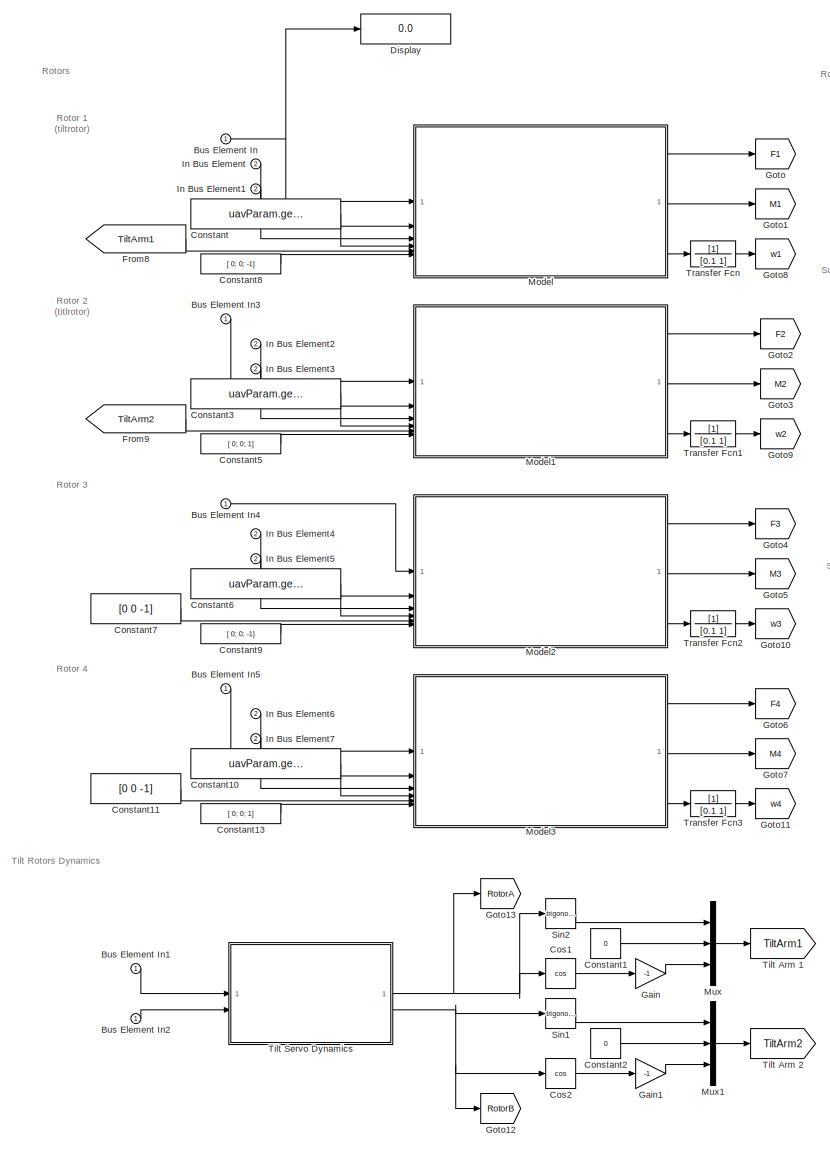
[diagram: Digital Twin/Force and Moments/Propulsion - part 1/2, left side, full height]
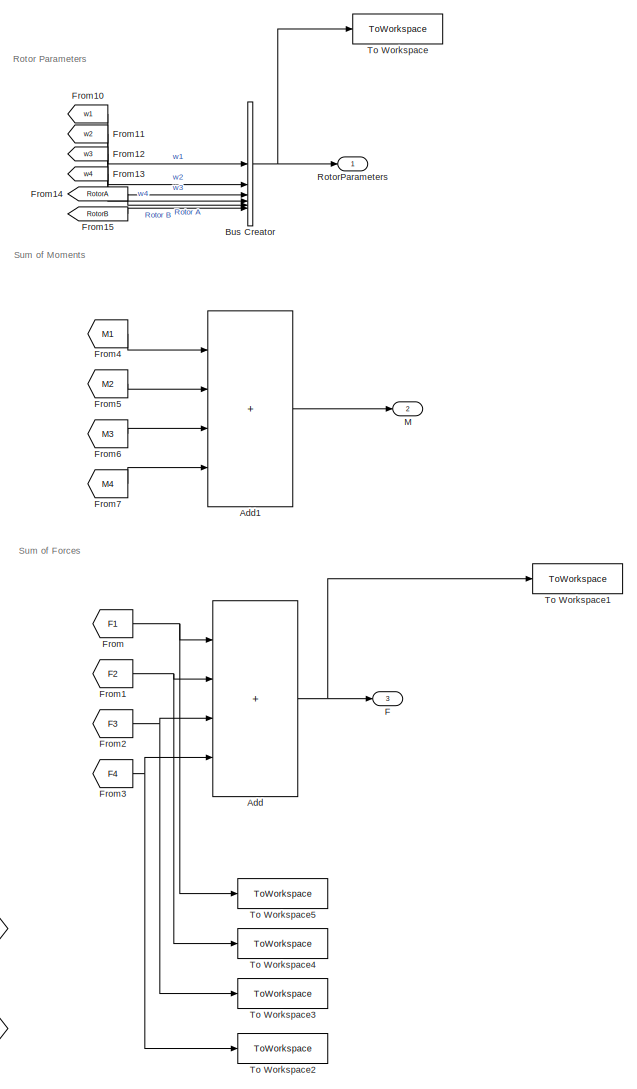
[diagram: Digital Twin/Force and Moments/Propulsion - part 2/2, right side, full height]
BLOCK [SubSystem] Digital Twin/Force and Moments/Propulsion
BLOCK [Sum] Digital Twin/Force and Moments/Propulsion/Add
  IconShape = rectangular
  Inputs = ++++
BLOCK [Sum] Digital Twin/Force and Moments/Propulsion/Add1
  IconShape = rectangular
  Inputs = ++++
BLOCK [BusCreator] Digital Twin/Force and Moments/Propulsion/Bus Creator
  DisplayOption = bar
  InheritFromInputs = on
  Inputs = 6
BLOCK [Inport] Digital Twin/Force and Moments/Propulsion/Bus Element In
BLOCK [Inport] Digital Twin/Force and Moments/Propulsion/Bus Element In1
BLOCK [Inport] Digital Twin/Force and Moments/Propulsion/Bus Element In2
BLOCK [Inport] Digital Twin/Force and Moments/Propulsion/Bus Element In3
BLOCK [Inport] Digital Twin/Force and Moments/Propulsion/Bus Element In4
BLOCK [Inport] Digital Twin/Force and Moments/Propulsion/Bus Element In5
BLOCK [Constant] Digital Twin/Force and Moments/Propulsion/Constant
  Value = uavParam.geom.RotorArm1
BLOCK [Constant] Digital Twin/Force and Moments/Propulsion/Constant1
  Value = 0
BLOCK [Constant] Digital Twin/Force and Moments/Propulsion/Constant10
  Value = uavParam.geom.RotorArm4
BLOCK [Constant] Digital Twin/Force and Moments/Propulsion/Constant11
  Value = [0 0 -1]
BLOCK [Constant] Digital Twin/Force and Moments/Propulsion/Constant13
  Value = [ 0; 0; 1]
BLOCK [Constant] Digital Twin/Force and Moments/Propulsion/Constant2
  Value = 0
BLOCK [Constant] Digital Twin/Force and Moments/Propulsion/Constant3
  Value = uavParam.geom.RotorArm2
BLOCK [Constant] Digital Twin/Force and Moments/Propulsion/Constant5
  Value = [ 0; 0; 1]
BLOCK [Constant] Digital Twin/Force and Moments/Propulsion/Constant6
  Value = uavParam.geom.RotorArm3
BLOCK [Constant] Digital Twin/Force and Moments/Propulsion/Constant7
  Value = [0 0 -1]
BLOCK [Constant] Digital Twin/Force and Moments/Propulsion/Constant8
  Value = [ 0; 0; -1]
BLOCK [Constant] Digital Twin/Force and Moments/Propulsion/Constant9
  Value = [ 0; 0; -1]
BLOCK [Trigonometry] Digital Twin/Force and Moments/Propulsion/Cos1
  Operator = cos
BLOCK [Trigonometry] Digital Twin/Force and Moments/Propulsion/Cos2
  Operator = cos
BLOCK [Display] Digital Twin/Force and Moments/Propulsion/Display
  Decimation = 1
BLOCK [Outport] Digital Twin/Force and Moments/Propulsion/F
  Port = 3
BLOCK [From] Digital Twin/Force and Moments/Propulsion/From
  GotoTag = F1
BLOCK [From] Digital Twin/Force and Moments/Propulsion/From1
  GotoTag = F2
BLOCK [From] Digital Twin/Force and Moments/Propulsion/From10
  GotoTag = w1
BLOCK [From] Digital Twin/Force and Moments/Propulsion/From11
  GotoTag = w2
BLOCK [From] Digital Twin/Force and Moments/Propulsion/From12
  GotoTag = w3
BLOCK [From] Digital Twin/Force and Moments/Propulsion/From13
  GotoTag = w4
BLOCK [From] Digital Twin/Force and Moments/Propulsion/From14
  GotoTag = RotorA
BLOCK [From] Digital Twin/Force and Moments/Propulsion/From15
  GotoTag = RotorB
BLOCK [From] Digital Twin/Force and Moments/Propulsion/From2
  GotoTag = F3
BLOCK [From] Digital Twin/Force and Moments/Propulsion/From3
  GotoTag = F4
BLOCK [From] Digital Twin/Force and Moments/Propulsion/From4
  GotoTag = M1
BLOCK [From] Digital Twin/Force and Moments/Propulsion/From5
  GotoTag = M2
BLOCK [From] Digital Twin/Force and Moments/Propulsion/From6
  GotoTag = M3
BLOCK [From] Digital Twin/Force and Moments/Propulsion/From7
  GotoTag = M4
BLOCK [From] Digital Twin/Force and Moments/Propulsion/From8
  GotoTag = TiltArm1
BLOCK [From] Digital Twin/Force and Moments/Propulsion/From9
  GotoTag = TiltArm2
BLOCK [Gain] Digital Twin/Force and Moments/Propulsion/Gain
  Gain = -1
BLOCK [Gain] Digital Twin/Force and Moments/Propulsion/Gain1
  Gain = -1
BLOCK [Goto] Digital Twin/Force and Moments/Propulsion/Goto
  GotoTag = F1
BLOCK [Goto] Digital Twin/Force and Moments/Propulsion/Goto1
  GotoTag = M1
BLOCK [Goto] Digital Twin/Force and Moments/Propulsion/Goto10
  GotoTag = w3
BLOCK [Goto] Digital Twin/Force and Moments/Propulsion/Goto11
  GotoTag = w4
BLOCK [Goto] Digital Twin/Force and Moments/Propulsion/Goto12
  GotoTag = RotorB
BLOCK [Goto] Digital Twin/Force and Moments/Propulsion/Goto13
  GotoTag = RotorA
BLOCK [Goto] Digital Twin/Force and Moments/Propulsion/Goto2
  GotoTag = F2
BLOCK [Goto] Digital Twin/Force and Moments/Propulsion/Goto3
  GotoTag = M2
BLOCK [Goto] Digital Twin/Force and Moments/Propulsion/Goto4
  GotoTag = F3
BLOCK [Goto] Digital Twin/Force and Moments/Propulsion/Goto5
  GotoTag = M3
BLOCK [Goto] Digital Twin/Force and Moments/Propulsion/Goto6
  GotoTag = F4
BLOCK [Goto] Digital Twin/Force and Moments/Propulsion/Goto7
  GotoTag = M4
BLOCK [Goto] Digital Twin/Force and Moments/Propulsion/Goto8
  GotoTag = w1
BLOCK [Goto] Digital Twin/Force and Moments/Propulsion/Goto9
  GotoTag = w2
BLOCK [Inport] Digital Twin/Force and Moments/Propulsion/In Bus Element
  Port = 2
BLOCK [Inport] Digital Twin/Force and Moments/Propulsion/In Bus Element1
  Port = 2
BLOCK [Inport] Digital Twin/Force and Moments/Propulsion/In Bus Element2
  Port = 2
BLOCK [Inport] Digital Twin/Force and Moments/Propulsion/In Bus Element3
  Port = 2
BLOCK [Inport] Digital Twin/Force and Moments/Propulsion/In Bus Element4
  Port = 2
BLOCK [Inport] Digital Twin/Force and Moments/Propulsion/In Bus Element5
  Port = 2
BLOCK [Inport] Digital Twin/Force and Moments/Propulsion/In Bus Element6
  Port = 2
BLOCK [Inport] Digital Twin/Force and Moments/Propulsion/In Bus Element7
  Port = 2
BLOCK [Outport] Digital Twin/Force and Moments/Propulsion/M
  Port = 2
BLOCK [ModelReference] Digital Twin/Force and Moments/Propulsion/Model
  ModelNameDialog = PropellerDynamics.slx
  ModelReferenceVersion = 3.10
BLOCK [ModelReference] Digital Twin/Force and Moments/Propulsion/Model1
  ModelNameDialog = PropellerDynamics.slx
  ModelReferenceVersion = 3.10
BLOCK [ModelReference] Digital Twin/Force and Moments/Propulsion/Model2
  ModelNameDialog = PropellerDynamics.slx
  ModelReferenceVersion = 3.10
BLOCK [ModelReference] Digital Twin/Force and Moments/Propulsion/Model3
  ModelNameDialog = PropellerDynamics.slx
  ModelReferenceVersion = 3.10
BLOCK [Mux] Digital Twin/Force and Moments/Propulsion/Mux
  DisplayOption = bar
  Inputs = 3
BLOCK [Mux] Digital Twin/Force and Moments/Propulsion/Mux1
  DisplayOption = bar
  Inputs = 3
BLOCK [Outport] Digital Twin/Force and Moments/Propulsion/RotorParameters
BLOCK [Trigonometry] Digital Twin/Force and Moments/Propulsion/Sin1
BLOCK [Trigonometry] Digital Twin/Force and Moments/Propulsion/Sin2
BLOCK [Goto] Digital Twin/Force and Moments/Propulsion/Tilt Arm 1
  GotoTag = TiltArm1
BLOCK [Goto] Digital Twin/Force and Moments/Propulsion/Tilt Arm 2
  GotoTag = TiltArm2
BLOCK [SubSystem] Digital Twin/Force and Moments/Propulsion/Tilt Servo Dynamics
BLOCK [Gain] Digital Twin/Force and Moments/Propulsion/Tilt Servo Dynamics/Gain2
  Gain = pi/2
BLOCK [Gain] Digital Twin/Force and Moments/Propulsion/Tilt Servo Dynamics/Gain3
  Gain = pi/2
BLOCK [InitialCondition] Digital Twin/Force and Moments/Propulsion/Tilt Servo Dynamics/IC
  Value = tiltIni
BLOCK [InitialCondition] Digital Twin/Force and Moments/Propulsion/Tilt Servo Dynamics/IC1
  Value = tiltIni
BLOCK [TransferFcn] Digital Twin/Force and Moments/Propulsion/Tilt Servo Dynamics/Servo Dynamics
  Denominator = [0.1 1]
BLOCK [TransferFcn] Digital Twin/Force and Moments/Propulsion/Tilt Servo Dynamics/Servo Dynamics1
  Denominator = [0.1 1]
BLOCK [Outport] Digital Twin/Force and Moments/Propulsion/Tilt Servo Dynamics/Tilt1
BLOCK [Outport] Digital Twin/Force and Moments/Propulsion/Tilt Servo Dynamics/Tilt2
  Port = 2
BLOCK [Inport] Digital Twin/Force and Moments/Propulsion/Tilt Servo Dynamics/TiltA
BLOCK [Inport] Digital Twin/Force and Moments/Propulsion/Tilt Servo Dynamics/TiltB
  Port = 2
BLOCK [ToWorkspace] Digital Twin/Force and Moments/Propulsion/To Workspace
  FixptAsFi = on
  MaxDataPoints = inf
  SampleTime = -1
  VariableName = Result_Rotor
BLOCK [ToWorkspace] Digital Twin/Force and Moments/Propulsion/To Workspace1
  FixptAsFi = on
  MaxDataPoints = inf
  SampleTime = -1
  VariableName = Rotor_Output
BLOCK [ToWorkspace] Digital Twin/Force and Moments/Propulsion/To Workspace2
  FixptAsFi = on
  MaxDataPoints = inf
  SampleTime = -1
  SaveFormat = Timeseries
  VariableName = rotor4_output
BLOCK [ToWorkspace] Digital Twin/Force and Moments/Propulsion/To Workspace3
  FixptAsFi = on
  MaxDataPoints = inf
  SampleTime = -1
  SaveFormat = Timeseries
  VariableName = rotor3_output
BLOCK [ToWorkspace] Digital Twin/Force and Moments/Propulsion/To Workspace4
  FixptAsFi = on
  MaxDataPoints = inf
  SampleTime = -1
  SaveFormat = Timeseries
  VariableName = rotor2_output
BLOCK [ToWorkspace] Digital Twin/Force and Moments/Propulsion/To Workspace5
  FixptAsFi = on
  MaxDataPoints = inf
  SampleTime = -1
  SaveFormat = Timeseries
  VariableName = rotor1_output
BLOCK [TransferFcn] Digital Twin/Force and Moments/Propulsion/Transfer Fcn
  Denominator = [0.1 1]
BLOCK [TransferFcn] Digital Twin/Force and Moments/Propulsion/Transfer Fcn1
  Denominator = [0.1 1]
BLOCK [TransferFcn] Digital Twin/Force and Moments/Propulsion/Transfer Fcn2
  Denominator = [0.1 1]
BLOCK [TransferFcn] Digital Twin/Force and Moments/Propulsion/Transfer Fcn3
  Denominator = [0.1 1]
BLOCK [Outport] Digital Twin/Force and Moments/RotorParams
  Port = 3
BLOCK [Inport] Digital Twin/Force and Moments/States
  Port = 3
BLOCK [Switch] Digital Twin/Force and Moments/Switch
  Criteria = u2 > Threshold
  InputSameDT = off
  SaturateOnIntegerOverflow = off
BLOCK [Switch] Digital Twin/Force and Moments/Switch1
  Criteria = u2 > Threshold
  InputSameDT = off
  SaturateOnIntegerOverflow = off
BLOCK [ToWorkspace] Digital Twin/Force and Moments/To Workspace
  FixptAsFi = on
  MaxDataPoints = inf
  SampleTime = -1
  VariableName = Result_CtrlSurfaces
BLOCK [ToWorkspace] Digital Twin/Force and Moments/To Workspace1
  FixptAsFi = on
  MaxDataPoints = inf
  SampleTime = -1
  VariableName = AeroForce
BLOCK [ToWorkspace] Digital Twin/Force and Moments/To Workspace2
  FixptAsFi = on
  MaxDataPoints = inf
  SampleTime = -1
  VariableName = Drag_Force
BLOCK [ToWorkspace] Digital Twin/Force and Moments/To Workspace3
  FixptAsFi = on
  MaxDataPoints = inf
  SampleTime = -1
  VariableName = Gravity
BLOCK [ToWorkspace] Digital Twin/Force and Moments/To Workspace4
  FixptAsFi = on
  MaxDataPoints = inf
  SampleTime = -1
  VariableName = overall_force
BLOCK [SubSystem] Digital Twin/Force and Moments/Weather Model
  Variant = on
  VariantControl = Weather Model
BLOCK [Inport] Digital Twin/Force and Moments/Weather Model/AirData
BLOCK [Inport] Digital Twin/Force and Moments/Weather Model/Euler
  Port = 3
BLOCK [Outport] Digital Twin/Force and Moments/Weather Model/Rho
  Port = 2
BLOCK [SubSystem] Digital Twin/Force and Moments/Weather Model/Simple Model
  NameLocation = top
  VariantControl = Wind==0
BLOCK [Outport] Digital Twin/Force and Moments/Weather Model/Simple Model/ Rho
  Port = 2
  VectorParamsAs1DForOutWhenUnconnected = off
BLOCK [Inport] Digital Twin/Force and Moments/Weather Model/Simple Model/AirData
BLOCK [Constant] Digital Twin/Force and Moments/Weather Model/Simple Model/Constant
  AttributesFormatString = %<Value>
  Value = [ 0 0 0]
BLOCK [Constant] Digital Twin/Force and Moments/Weather Model/Simple Model/Constant1
  Value = uavParam.aero.rho
BLOCK [Inport] Digital Twin/Force and Moments/Weather Model/Simple Model/Euler
  Port = 3
BLOCK [Terminator] Digital Twin/Force and Moments/Weather Model/Simple Model/Terminator
BLOCK [Terminator] Digital Twin/Force and Moments/Weather Model/Simple Model/Terminator1
BLOCK [Terminator] Digital Twin/Force and Moments/Weather Model/Simple Model/Terminator3
BLOCK [Outport] Digital Twin/Force and Moments/Weather Model/Simple Model/Wind_e
  Unit = m/s
  VectorParamsAs1DForOutWhenUnconnected = off
BLOCK [Inport] Digital Twin/Force and Moments/Weather Model/Simple Model/Xe
  Port = 2
BLOCK [SubSystem] Digital Twin/Force and Moments/Weather Model/Weather Model
  NameLocation = top
  VariantControl = Wind==1
BLOCK [Sum] Digital Twin/Force and Moments/Weather Model/Weather Model/Add
  IconShape = rectangular
  Inputs = 2
BLOCK [Inport] Digital Twin/Force and Moments/Weather Model/Weather Model/AirData
BLOCK [BusSelector] Digital Twin/Force and Moments/Weather Model/Weather Model/Bus Selector
  OutputSignals = airspeed
BLOCK [Constant] Digital Twin/Force and Moments/Weather Model/Weather Model/Constant1
  Value = uavParam.aero.rho
BLOCK [Reference] Digital Twin/Force and Moments/Weather Model/Weather Model/Dryden Wind Turbulence Model (Discrete (+q -r))  REF=aerolibwind2/Dryden Wind Turbulence Model 
(Continuous (+q -r))
  SourceBlock = aerolibwind2/Dryden Wind Turbulence Model \n(Continuous (+q -r))
  SourceType = Wind Turbulence Model
BLOCK [Inport] Digital Twin/Force and Moments/Weather Model/Weather Model/Euler
  Port = 3
BLOCK [Gain] Digital Twin/Force and Moments/Weather Model/Weather Model/Gain
  AttributesFormatString = Z to Alt
  Gain = -1
BLOCK [Selector] Digital Twin/Force and Moments/Weather Model/Weather Model/Get Z
  AttributesFormatString = %<Indices>
  IndexOptions = Index vector (dialog)
  Indices = [3]
  InputPortWidth = 3
  OutputSizes = [(-2)]
BLOCK [Reference] Digital Twin/Force and Moments/Weather Model/Weather Model/Horizontal Wind Model  REF=aerolibwind2/Horizontal Wind Model
  SourceBlock = aerolibwind2/Horizontal Wind Model
  SourceType = Horizontal Wind Model
BLOCK [Reference] Digital Twin/Force and Moments/Weather Model/Weather Model/RL2B  REF=mbdriLib/Coordinates/RL2B
  SourceBlock = mbdriLib/Coordinates/RL2B
  SourceType = SubSystem
BLOCK [Gain] Digital Twin/Force and Moments/Weather Model/Weather Model/Reduce Z Wind
  AttributesFormatString = %<Gain>
  Gain = [1 1 0.1]
BLOCK [Outport] Digital Twin/Force and Moments/Weather Model/Weather Model/Rho
  Port = 2
  VectorParamsAs1DForOutWhenUnconnected = off
BLOCK [Product] Digital Twin/Force and Moments/Weather Model/Weather Model/Rotate to E Frame
  Multiplication = Matrix(*)
BLOCK [Terminator] Digital Twin/Force and Moments/Weather Model/Weather Model/Terminator
BLOCK [TransferFcn] Digital Twin/Force and Moments/Weather Model/Weather Model/Transfer Fcn
  Denominator = [.01 1]
BLOCK [TransferFcn] Digital Twin/Force and Moments/Weather Model/Weather Model/Transfer Fcn1
  Denominator = [.01 1]
BLOCK [Math] Digital Twin/Force and Moments/Weather Model/Weather Model/Transpose
  Operator = transpose
  SignedPower = on
BLOCK [Outport] Digital Twin/Force and Moments/Weather Model/Weather Model/Wind_e
  Unit = m/s
  VectorParamsAs1DForOutWhenUnconnected = off
BLOCK [Inport] Digital Twin/Force and Moments/Weather Model/Weather Model/Xe
  Port = 2
BLOCK [Outport] Digital Twin/Force and Moments/Weather Model/Wind_e
BLOCK [Inport] Digital Twin/Force and Moments/Weather Model/Xe
  Port = 2
BLOCK [SubSystem] Digital Twin/Ground Truth Bus
BLOCK [Inport] Digital Twin/Ground Truth Bus/Abb
  Port = 7
BLOCK [Inport] Digital Twin/Ground Truth Bus/Abe
  Port = 8
BLOCK [Inport] Digital Twin/Ground Truth Bus/AirData
  NameLocation = right
  Port = 10
BLOCK [BusCreator] Digital Twin/Ground Truth Bus/Bus Creator
  DisplayOption = bar
  InheritFromInputs = on
  Inputs = 13
BLOCK [BusSelector] Digital Twin/Ground Truth Bus/Bus Selector
  OutputSignals = airspeed
BLOCK [Inport] Digital Twin/Ground Truth Bus/DCMbe
  Port = 4
BLOCK [Reference] Digital Twin/Ground Truth Bus/Direction Cosine Matrix to Quaternions  REF=sharedtransform/Direction Cosine Matrix 
to Quaternions
  LibrarySourceBlock = aerolibtransform2/Direction Cosine Matrix \nto Quaternions
  SourceBlock = sharedtransform/Direction Cosine Matrix \nto Quaternions
  SourceType = DCM2Quaternion
BLOCK [Inport] Digital Twin/Ground Truth Bus/Euler
  Port = 3
BLOCK [Outport] Digital Twin/Ground Truth Bus/Ground Truth
BLOCK [SubSystem] Digital Twin/Ground Truth Bus/MATLAB Function1
  ErrorFcn = Stateflow.Translate.translate
  PermitHierarchicalResolution = ExplicitOnly
  SFBlockType = MATLAB Function
  TreatAsAtomicUnit = on
BLOCK [Demux] Digital Twin/Ground Truth Bus/MATLAB Function1/ Demux 
  Outputs = 1
BLOCK [S-Function] Digital Twin/Ground Truth Bus/MATLAB Function1/ SFunction 
  EnableBusSupport = on
  FunctionName = sf_sfun
  PortCounts = [1 3]
  SFcnIsStateOwnerBlock = off
  SFunctionDeploymentMode = off
  Tag = Stateflow S-Function 1
BLOCK [Terminator] Digital Twin/Ground Truth Bus/MATLAB Function1/ Terminator 
BLOCK [Outport] Digital Twin/Ground Truth Bus/MATLAB Function1/course
BLOCK [Outport] Digital Twin/Ground Truth Bus/MATLAB Function1/gndSpeed
  Port = 2
BLOCK [Inport] Digital Twin/Ground Truth Bus/MATLAB Function1/vxyz
BLOCK [Inport] Digital Twin/Ground Truth Bus/RotorParams
  Port = 9
BLOCK [Inport] Digital Twin/Ground Truth Bus/Vb
  Port = 5
BLOCK [Inport] Digital Twin/Ground Truth Bus/Ve
BLOCK [Inport] Digital Twin/Ground Truth Bus/Xe
  Port = 2
BLOCK [Inport] Digital Twin/Ground Truth Bus/pqr
  Port = 6
BLOCK [Scope] Digital Twin/Scope
  Floating = off
  NumInputPorts = 4
  ScopeSpecificationString = Simulink.scopes.TimeScopeBlockCfg('CurrentConfiguration', extmgr.ConfigurationSet(extmgr.Configuration('Core','General UI',true),extmgr.Configuration('Core','Source UI',true),extmgr.Configuration('Sources','WiredSimulink',true,'DataLoggingVariableName','ScopeData2'),extmgr.Configuration('Visuals','Time Domain',true,'SerializedDisplays',{struct('MinYLimReal','-19.60046','MaxYLimReal','176.4041','YL...<+1463ch>
BLOCK [Outport] Digital Twin/SensorData
  Port = 2
BLOCK [Terminator] Digital Twin/Terminator
BLOCK [ToWorkspace] Digital Twin/To Workspace
  FixptAsFi = on
  MaxDataPoints = inf
  SampleTime = -1
  VariableName = Result_Vb
BLOCK [ToWorkspace] Digital Twin/To Workspace1
  FixptAsFi = on
  MaxDataPoints = inf
  SampleTime = -1
  VariableName = Result_Xe
BLOCK [ToWorkspace] Digital Twin/To Workspace2
  FixptAsFi = on
  MaxDataPoints = inf
  SampleTime = -1
  VariableName = Result_Euler
BLOCK [ToWorkspace] Digital Twin/To Workspace3
  FixptAsFi = on
  MaxDataPoints = inf
  SampleTime = -1
  VariableName = Result_Ve
BLOCK [Outport] Digital Twin/UAVState
BLOCK [SubSystem] Digital Twin/Variant Subsystem
  NameLocation = top
  Variant = on
  VariantControl = Choice
BLOCK [SubSystem] Digital Twin/Variant Subsystem/No Sensors
  VariantControl = SensorType==0
BLOCK [BusCreator] Digital Twin/Variant Subsystem/No Sensors/Bus Creator
  DisplayOption = bar
  InheritFromInputs = on
  Inputs = 14
BLOCK [Inport] Digital Twin/Variant Subsystem/No Sensors/Bus Element In
BLOCK [Inport] Digital Twin/Variant Subsystem/No Sensors/Bus Element In1
BLOCK [Inport] Digital Twin/Variant Subsystem/No Sensors/Bus Element In10
BLOCK [Inport] Digital Twin/Variant Subsystem/No Sensors/Bus Element In11
BLOCK [Inport] Digital Twin/Variant Subsystem/No Sensors/Bus Element In12
BLOCK [Inport] Digital Twin/Variant Subsystem/No Sensors/Bus Element In2
BLOCK [Inport] Digital Twin/Variant Subsystem/No Sensors/Bus Element In3
BLOCK [Inport] Digital Twin/Variant Subsystem/No Sensors/Bus Element In4
BLOCK [Inport] Digital Twin/Variant Subsystem/No Sensors/Bus Element In5
BLOCK [Inport] Digital Twin/Variant Subsystem/No Sensors/Bus Element In6
BLOCK [Inport] Digital Twin/Variant Subsystem/No Sensors/Bus Element In7
BLOCK [Inport] Digital Twin/Variant Subsystem/No Sensors/Bus Element In8
BLOCK [Inport] Digital Twin/Variant Subsystem/No Sensors/Bus Element In9
BLOCK [Reference] Digital Twin/Variant Subsystem/No Sensors/Direction Cosine Matrix to Quaternions1  REF=sharedtransform/Direction Cosine Matrix 
to Quaternions
  LibrarySourceBlock = aerolibtransform2/Direction Cosine Matrix \nto Quaternions
  SourceBlock = sharedtransform/Direction Cosine Matrix \nto Quaternions
  SourceType = DCM2Quaternion
BLOCK [SubSystem] Digital Twin/Variant Subsystem/No Sensors/MATLAB Function
  ErrorFcn = Stateflow.Translate.translate
  LibrarySourceBlock = simulink/User-Defined\nFunctions/MATLAB Function
  PermitHierarchicalResolution = ExplicitOnly
  SFBlockType = MATLAB Function
  TreatAsAtomicUnit = on
BLOCK [Demux] Digital Twin/Variant Subsystem/No Sensors/MATLAB Function/ Demux 
  Outputs = 1
BLOCK [S-Function] Digital Twin/Variant Subsystem/No Sensors/MATLAB Function/ SFunction 
  EnableBusSupport = on
  FunctionName = sf_sfun
  PortCounts = [1 2]
  SFcnIsStateOwnerBlock = off
  SFunctionDeploymentMode = off
  Tag = Stateflow S-Function 3
BLOCK [Terminator] Digital Twin/Variant Subsystem/No Sensors/MATLAB Function/ Terminator 
BLOCK [Inport] Digital Twin/Variant Subsystem/No Sensors/MATLAB Function/euler
BLOCK [Outport] Digital Twin/Variant Subsystem/No Sensors/MATLAB Function/ypr
BLOCK [Outport] Digital Twin/Variant Subsystem/No Sensors/SensorData
BLOCK [Outport] Digital Twin/Variant Subsystem/SensorData
  NameLocation = top
BLOCK [SubSystem] Digital Twin/Variant Subsystem/Sensors
  VariantControl = SensorType==1
BLOCK [SubSystem] Digital Twin/Variant Subsystem/Sensors/ Baro Simulation
BLOCK [Selector] Digital Twin/Variant Subsystem/Sensors/ Baro Simulation/Extract Altitude
  IndexOptions = Index vector (dialog)
  Indices = [3]
  InputPortWidth = 3
  OutputSizes = 1
BLOCK [Inport] Digital Twin/Variant Subsystem/Sensors/ Baro Simulation/GPS Position
BLOCK [Gain] Digital Twin/Variant Subsystem/Sensors/ Baro Simulation/Gain1
  Gain = 1/1000
BLOCK [Gain] Digital Twin/Variant Subsystem/Sensors/ Baro Simulation/Gain2
  Gain = 1000
BLOCK [Reference] Digital Twin/Variant Subsystem/Sensors/ Baro Simulation/Lapse Rate Model  REF=aerolibatmos2/ISA Atmosphere Model
  SourceBlock = aerolibatmos2/ISA Atmosphere Model
  SourceType = International Standard Atmosphere Model
BLOCK [Outport] Digital Twin/Variant Subsystem/Sensors/ Baro Simulation/Pressure
BLOCK [RandomNumber] Digital Twin/Variant Subsystem/Sensors/ Baro Simulation/Random Number1
  SampleTime = .1
  Seed = 10
  Variance = 10
BLOCK [Sum] Digital Twin/Variant Subsystem/Sensors/ Baro Simulation/Sum1
  IconShape = rectangular
  Inputs = |++
BLOCK [Terminator] Digital Twin/Variant Subsystem/Sensors/ Baro Simulation/Terminator
BLOCK [Terminator] Digital Twin/Variant Subsystem/Sensors/ Baro Simulation/Terminator1
BLOCK [Outport] Digital Twin/Variant Subsystem/Sensors/ Baro Simulation/rho
  Port = 2
BLOCK [SubSystem] Digital Twin/Variant Subsystem/Sensors/Airspeed
BLOCK [Constant] Digital Twin/Variant Subsystem/Sensors/Airspeed/Constant
  Value = 0.5
BLOCK [Constant] Digital Twin/Variant Subsystem/Sensors/Airspeed/Constant1
  Value = 0
BLOCK [Outport] Digital Twin/Variant Subsystem/Sensors/Airspeed/Diff Pressure
BLOCK [Inport] Digital Twin/Variant Subsystem/Sensors/Airspeed/In Bus Element
BLOCK [MinMax] Digital Twin/Variant Subsystem/Sensors/Airspeed/Max
  Function = max
  Inputs = 2
BLOCK [Product] Digital Twin/Variant Subsystem/Sensors/Airspeed/Product
  Inputs = 3
BLOCK [RandomNumber] Digital Twin/Variant Subsystem/Sensors/Airspeed/Random Number1
  SampleTime = .1
  Seed = 545
  Variance = 0.1
BLOCK [Math] Digital Twin/Variant Subsystem/Sensors/Airspeed/Square
  Operator = square
BLOCK [Sum] Digital Twin/Variant Subsystem/Sensors/Airspeed/Sum
  Inputs = |++
BLOCK [Inport] Digital Twin/Variant Subsystem/Sensors/Airspeed/rho
  Port = 2
BLOCK [BusCreator] Digital Twin/Variant Subsystem/Sensors/Bus Creator1
  DisplayOption = bar
  InheritFromInputs = on
  Inputs = 11
BLOCK [Inport] Digital Twin/Variant Subsystem/Sensors/Bus Element In1
BLOCK [Inport] Digital Twin/Variant Subsystem/Sensors/Bus Element In11
BLOCK [Inport] Digital Twin/Variant Subsystem/Sensors/Bus Element In12
BLOCK [Inport] Digital Twin/Variant Subsystem/Sensors/Bus Element In13
BLOCK [Inport] Digital Twin/Variant Subsystem/Sensors/Bus Element In2
BLOCK [Inport] Digital Twin/Variant Subsystem/Sensors/Bus Element In3
BLOCK [Inport] Digital Twin/Variant Subsystem/Sensors/Bus Element In4
BLOCK [Inport] Digital Twin/Variant Subsystem/Sensors/Bus Element In5
BLOCK [Inport] Digital Twin/Variant Subsystem/Sensors/Bus Element In6
BLOCK [Inport] Digital Twin/Variant Subsystem/Sensors/Bus Element In7
BLOCK [SubSystem] Digital Twin/Variant Subsystem/Sensors/Create States Bus for sensors
BLOCK [TransferFcn] Digital Twin/Variant Subsystem/Sensors/Create States Bus for sensors/AA Filter 2nd Order
  Denominator = SensorAAFiltDen
  Numerator = SensorAAFiltNum
BLOCK [TransferFcn] Digital Twin/Variant Subsystem/Sensors/Create States Bus for sensors/AA Filter 2nd Order1
  Denominator = SensorAAFiltDen
  Numerator = SensorAAFiltNum
BLOCK [TransferFcn] Digital Twin/Variant Subsystem/Sensors/Create States Bus for sensors/AA Filter 2nd Order10
  Denominator = SensorAAFiltDen
  Numerator = SensorAAFiltNum
BLOCK [TransferFcn] Digital Twin/Variant Subsystem/Sensors/Create States Bus for sensors/AA Filter 2nd Order11
  Denominator = SensorAAFiltDen
  Numerator = SensorAAFiltNum
BLOCK [TransferFcn] Digital Twin/Variant Subsystem/Sensors/Create States Bus for sensors/AA Filter 2nd Order12
  Denominator = SensorAAFiltDen
  Numerator = SensorAAFiltNum
BLOCK [TransferFcn] Digital Twin/Variant Subsystem/Sensors/Create States Bus for sensors/AA Filter 2nd Order13
  Denominator = SensorAAFiltDen
  Numerator = SensorAAFiltNum
BLOCK [TransferFcn] Digital Twin/Variant Subsystem/Sensors/Create States Bus for sensors/AA Filter 2nd Order14
  Denominator = SensorAAFiltDen
  Numerator = SensorAAFiltNum
BLOCK [TransferFcn] Digital Twin/Variant Subsystem/Sensors/Create States Bus for sensors/AA Filter 2nd Order15
  Denominator = SensorAAFiltDen
  Numerator = SensorAAFiltNum
BLOCK [TransferFcn] Digital Twin/Variant Subsystem/Sensors/Create States Bus for sensors/AA Filter 2nd Order2
  Denominator = SensorAAFiltDen
  Numerator = SensorAAFiltNum
BLOCK [TransferFcn] Digital Twin/Variant Subsystem/Sensors/Create States Bus for sensors/AA Filter 2nd Order3
  Denominator = SensorAAFiltDen
  Numerator = SensorAAFiltNum
BLOCK [TransferFcn] Digital Twin/Variant Subsystem/Sensors/Create States Bus for sensors/AA Filter 2nd Order4
  Denominator = SensorAAFiltDen
  Numerator = SensorAAFiltNum
BLOCK [TransferFcn] Digital Twin/Variant Subsystem/Sensors/Create States Bus for sensors/AA Filter 2nd Order5
  Denominator = SensorAAFiltDen
  Numerator = SensorAAFiltNum
BLOCK [TransferFcn] Digital Twin/Variant Subsystem/Sensors/Create States Bus for sensors/AA Filter 2nd Order6
  Denominator = SensorAAFiltDen
  Numerator = SensorAAFiltNum
BLOCK [TransferFcn] Digital Twin/Variant Subsystem/Sensors/Create States Bus for sensors/AA Filter 2nd Order7
  Denominator = SensorAAFiltDen
  Numerator = SensorAAFiltNum
BLOCK [TransferFcn] Digital Twin/Variant Subsystem/Sensors/Create States Bus for sensors/AA Filter 2nd Order8
  Denominator = [1 3.70e+03 6.85e+06]
  Numerator = SensorAAFiltNum
BLOCK [TransferFcn] Digital Twin/Variant Subsystem/Sensors/Create States Bus for sensors/AA Filter 2nd Order9
  Denominator = SensorAAFiltDen
  Numerator = SensorAAFiltNum
BLOCK [Inport] Digital Twin/Variant Subsystem/Sensors/Create States Bus for sensors/Airspeed
  Port = 6
BLOCK [BusCreator] Digital Twin/Variant Subsystem/Sensors/Create States Bus for sensors/Bus Creator
  DisplayOption = bar
  InheritFromInputs = on
  Inputs = X,Y,Z,yaw,pitch,roll,dx,dy,dz,p,q,r,ddx,ddy,ddz,airspeed
BLOCK [Demux] Digital Twin/Variant Subsystem/Sensors/Create States Bus for sensors/Demux
  Outputs = 3
BLOCK [Demux] Digital Twin/Variant Subsystem/Sensors/Create States Bus for sensors/Demux1
  Outputs = 3
BLOCK [Demux] Digital Twin/Variant Subsystem/Sensors/Create States Bus for sensors/Demux2
  Outputs = 3
BLOCK [Demux] Digital Twin/Variant Subsystem/Sensors/Create States Bus for sensors/Demux3
  Outputs = 3
BLOCK [Demux] Digital Twin/Variant Subsystem/Sensors/Create States Bus for sensors/Demux4
  Outputs = 3
BLOCK [Outport] Digital Twin/Variant Subsystem/Sensors/Create States Bus for sensors/States
BLOCK [Inport] Digital Twin/Variant Subsystem/Sensors/Create States Bus for sensors/Ve
BLOCK [Inport] Digital Twin/Variant Subsystem/Sensors/Create States Bus for sensors/Xe
  Port = 2
BLOCK [Inport] Digital Twin/Variant Subsystem/Sensors/Create States Bus for sensors/acc_lnav_e
  Port = 5
BLOCK [Inport] Digital Twin/Variant Subsystem/Sensors/Create States Bus for sensors/pqr_e
  Port = 3
BLOCK [Inport] Digital Twin/Variant Subsystem/Sensors/Create States Bus for sensors/ypr
  Port = 4
BLOCK [Delay] Digital Twin/Variant Subsystem/Sensors/Delay
  DelayLength = 1
  InputPortMap = u0
BLOCK [From] Digital Twin/Variant Subsystem/Sensors/From
  GotoTag = BarometerPressure
BLOCK [From] Digital Twin/Variant Subsystem/Sensors/From2
  GotoTag = DiffPressure
BLOCK [SubSystem] Digital Twin/Variant Subsystem/Sensors/GNSS//GPS Simulation
  PortSchema = {"entries":[{"content":{"sides":[{"content":{"connectorIds":["In1"]},"type":"ConnectorPlacement.EquallySpacedRectSide","uuid":"4934e8ff-5d4b-4e11-968d-c23bd62383a0"},{"content":{"connectorIds":["Out1","Out2","Out3"],"side":"RIGHT"},"type":"ConnectorPlacement.EquallySpacedRectSide","uuid":"9ec8bc0a-2d3c-4dca-835c-010ac29b6ebc"},{"content":{"connectorIds":[],"side":"TOP"},"type":"ConnectorPlacement....<+404ch>
BLOCK [BusSelector] Digital Twin/Variant Subsystem/Sensors/GNSS//GPS Simulation/Bus Selector
  OutputAsBus = on
  OutputSignals = dx,dy,dz
BLOCK [BusSelector] Digital Twin/Variant Subsystem/Sensors/GNSS//GPS Simulation/Bus Selector1
  OutputAsBus = on
  OutputSignals = X,Y,Z
BLOCK [Outport] Digital Twin/Variant Subsystem/Sensors/GNSS//GPS Simulation/Course
  Port = 3
BLOCK [Reference] Digital Twin/Variant Subsystem/Sensors/GNSS//GPS Simulation/GPS1  REF=sensorgpslib/GPS
  SourceBlock = sensorgpslib/GPS
  SourceType = fusion.internal.simulink.gpsSensor
BLOCK [Outport] Digital Twin/Variant Subsystem/Sensors/GNSS//GPS Simulation/GndSpeed
  Port = 2
BLOCK [Outport] Digital Twin/Variant Subsystem/Sensors/GNSS//GPS Simulation/LLA
  Port = 4
BLOCK [Reshape] Digital Twin/Variant Subsystem/Sensors/GNSS//GPS Simulation/Reshape1
  OutputDimensionality = Row vector (2-D)
BLOCK [Reshape] Digital Twin/Variant Subsystem/Sensors/GNSS//GPS Simulation/Reshape3
  OutputDimensionality = Row vector (2-D)
BLOCK [Scope] Digital Twin/Variant Subsystem/Sensors/GNSS//GPS Simulation/Scope
  Floating = off
  NumInputPorts = 1
  ScopeSpecificationString = Simulink.scopes.TimeScopeBlockCfg('CurrentConfiguration', extmgr.ConfigurationSet(extmgr.Configuration('Core','General UI',true),extmgr.Configuration('Core','Source UI',true),extmgr.Configuration('Sources','WiredSimulink',true,'DataLoggingVariableName','ScopeData3'),extmgr.Configuration('Visuals','Time Domain',true,'SerializedDisplays',{struct('MinYLimReal','-23.51125','MaxYLimReal','25.79808','YL...<+1467ch>
BLOCK [Inport] Digital Twin/Variant Subsystem/Sensors/GNSS//GPS Simulation/States
BLOCK [Outport] Digital Twin/Variant Subsystem/Sensors/GNSS//GPS Simulation/Velocity
BLOCK [Goto] Digital Twin/Variant Subsystem/Sensors/Goto3
  GotoTag = BarometerPressure
BLOCK [Goto] Digital Twin/Variant Subsystem/Sensors/Goto4
  GotoTag = DiffPressure
BLOCK [SubSystem] Digital Twin/Variant Subsystem/Sensors/IMU Simulation
BLOCK [Outport] Digital Twin/Variant Subsystem/Sensors/IMU Simulation/Acc
BLOCK [BusSelector] Digital Twin/Variant Subsystem/Sensors/IMU Simulation/Bus Selector1
  OutputAsBus = on
  OutputSignals = p,q,r
BLOCK [BusSelector] Digital Twin/Variant Subsystem/Sensors/IMU Simulation/Bus Selector2
  OutputAsBus = on
  OutputSignals = yaw,pitch,roll
BLOCK [BusSelector] Digital Twin/Variant Subsystem/Sensors/IMU Simulation/Bus Selector3
  OutputAsBus = on
  OutputSignals = ddx,ddy,ddz
BLOCK [Reference] Digital Twin/Variant Subsystem/Sensors/IMU Simulation/Coordinate Transformation Conversion  REF=robotcorelib/Coordinate Transformation Conversion
  SourceBlock = robotcorelib/Coordinate Transformation Conversion
  SourceType = robotics.slcore.internal.block.CoordinateTransformationConversion
BLOCK [Gain] Digital Twin/Variant Subsystem/Sensors/IMU Simulation/Gain
  Gain = [-1 -1 -1]
BLOCK [Outport] Digital Twin/Variant Subsystem/Sensors/IMU Simulation/Gyro
  Port = 2
BLOCK [Reference] Digital Twin/Variant Subsystem/Sensors/IMU Simulation/IMU1  REF=mspsensorlib/IMU
  SourceBlock = mspsensorlib/IMU
  SourceType = fusion.simulink.imuSensor
BLOCK [Outport] Digital Twin/Variant Subsystem/Sensors/IMU Simulation/Mag
  Port = 3
BLOCK [Reshape] Digital Twin/Variant Subsystem/Sensors/IMU Simulation/Reshape
  OutputDimensionality = Row vector (2-D)
BLOCK [Reshape] Digital Twin/Variant Subsystem/Sensors/IMU Simulation/Reshape2
  OutputDimensionality = Row vector (2-D)
BLOCK [Scope] Digital Twin/Variant Subsystem/Sensors/IMU Simulation/Scope
  Floating = off
  NumInputPorts = 1
  ScopeSpecificationString = Simulink.scopes.TimeScopeBlockCfg('CurrentConfiguration', extmgr.ConfigurationSet(extmgr.Configuration('Core','General UI',true),extmgr.Configuration('Core','Source UI',true),extmgr.Configuration('Sources','WiredSimulink',true,'DataLoggingVariableName','ScopeData2'),extmgr.Configuration('Visuals','Time Domain',true,'SerializedDisplays',{struct('MinYLimReal','-3.06915','MaxYLimReal','14.85593','YLa...<+1466ch>
BLOCK [Inport] Digital Twin/Variant Subsystem/Sensors/IMU Simulation/States
BLOCK [Math] Digital Twin/Variant Subsystem/Sensors/IMU Simulation/Transpose
  Operator = transpose
BLOCK [Product] Digital Twin/Variant Subsystem/Sensors/Matrix Multiply
  Multiplication = Matrix(*)
BLOCK [Product] Digital Twin/Variant Subsystem/Sensors/Matrix Multiply1
  Multiplication = Matrix(*)
BLOCK [RateTransition] Digital Twin/Variant Subsystem/Sensors/Rate Transition
  OutPortSampleTime = 0.001
BLOCK [Outport] Digital Twin/Variant Subsystem/Sensors/SensorData
BLOCK [Terminator] Digital Twin/Variant Subsystem/Sensors/Terminator
BLOCK [Math] Digital Twin/Variant Subsystem/Sensors/Transpose
  Operator = transpose
BLOCK [Math] Digital Twin/Variant Subsystem/Sensors/Transpose1
  Operator = transpose
BLOCK [Selector] Digital Twin/Variant Subsystem/Sensors/ypr
  IndexOptions = Index vector (dialog)
  Indices = [3 2 1]
  InputPortWidth = 3
  OutputSizes = 1
BLOCK [Inport] Digital Twin/Variant Subsystem/UAVStates
  NameLocation = top
BLOCK [SubSystem] Estimator
  Variant = on
BLOCK [Outport] Estimator/EstimatedStates
BLOCK [SubSystem] Estimator/Estimation Filter
  VariantControl = SensorType==1
BLOCK [Reference] Estimator/Estimation Filter/AHRS1  REF=mspfiltlib/AHRS
  SourceBlock = mspfiltlib/AHRS
  SourceType = fusion.simulink.ahrsfilter
BLOCK [SubSystem] Estimator/Estimation Filter/Airspeed Filter
BLOCK [Constant] Estimator/Estimation Filter/Airspeed Filter/Constant
  Value = 0.5
BLOCK [Inport] Estimator/Estimation Filter/Airspeed Filter/DiffPress
BLOCK [Product] Estimator/Estimation Filter/Airspeed Filter/Divide
  Inputs = */
BLOCK [Product] Estimator/Estimation Filter/Airspeed Filter/Product
BLOCK [Sqrt] Estimator/Estimation Filter/Airspeed Filter/Sqrt
BLOCK [Outport] Estimator/Estimation Filter/Airspeed Filter/airspeed
BLOCK [Inport] Estimator/Estimation Filter/Airspeed Filter/rho
  Port = 2
BLOCK [BusCreator] Estimator/Estimation Filter/Bus Creator
  DisplayOption = bar
  InheritFromInputs = on
  Inputs = 13
BLOCK [Inport] Estimator/Estimation Filter/Bus Element In
BLOCK [Inport] Estimator/Estimation Filter/Bus Element In1
BLOCK [Inport] Estimator/Estimation Filter/Bus Element In10
BLOCK [Inport] Estimator/Estimation Filter/Bus Element In2
BLOCK [Inport] Estimator/Estimation Filter/Bus Element In3
BLOCK [Inport] Estimator/Estimation Filter/Bus Element In4
BLOCK [Inport] Estimator/Estimation Filter/Bus Element In5
BLOCK [Inport] Estimator/Estimation Filter/Bus Element In6
BLOCK [Inport] Estimator/Estimation Filter/Bus Element In7
BLOCK [Inport] Estimator/Estimation Filter/Bus Element In8
BLOCK [Inport] Estimator/Estimation Filter/Bus Element In9
BLOCK [Reference] Estimator/Estimation Filter/Coordinate Transformation Conversion1  REF=robotcorelib/Coordinate Transformation Conversion
  LibrarySourceBlock = navlib/Utilities/Coordinate Transformation Conversion
  SourceBlock = robotcorelib/Coordinate Transformation Conversion
  SourceType = robotics.slcore.internal.block.CoordinateTransformationConversion
BLOCK [Reference] Estimator/Estimation Filter/Coordinate Transformation Conversion2  REF=robotcorelib/Coordinate Transformation Conversion
  LibrarySourceBlock = navlib/Utilities/Coordinate Transformation Conversion
  SourceBlock = robotcorelib/Coordinate Transformation Conversion
  SourceType = robotics.slcore.internal.block.CoordinateTransformationConversion
BLOCK [Reference] Estimator/Estimation Filter/Degrees to Radians  REF=simulink_extras/Transformations/Degrees to
Radians
  SourceBlock = simulink_extras/Transformations/Degrees to\nRadians
  SourceType = DegreesToRadians
BLOCK [Outport] Estimator/Estimation Filter/EstimatedStates
BLOCK [Gain] Estimator/Estimation Filter/Gain
BLOCK [SubSystem] Estimator/Estimation Filter/LLA2Local
BLOCK [Constant] Estimator/Estimation Filter/LLA2Local/Constant1
  Value = 0
BLOCK [Demux] Estimator/Estimation Filter/LLA2Local/Demux1
  Outputs = 2
BLOCK [Inport] Estimator/Estimation Filter/LLA2Local/LLA
BLOCK [Reference] Estimator/Estimation Filter/LLA2Local/LLA to Flat Earth1  REF=aerolibtransform2/LLA to Flat Earth
  SourceBlock = aerolibtransform2/LLA to Flat Earth
  SourceType = LLA to Flat Earth
BLOCK [Outport] Estimator/Estimation Filter/LLA2Local/Xe
BLOCK [Product] Estimator/Estimation Filter/Matrix Multiply1
  Multiplication = Matrix(*)
BLOCK [RateTransition] Estimator/Estimation Filter/Rate Transition
  OutPortSampleTime = 0.001
BLOCK [RateTransition] Estimator/Estimation Filter/Rate Transition1
BLOCK [Terminator] Estimator/Estimation Filter/Terminator
BLOCK [Math] Estimator/Estimation Filter/Transpose
  Operator = transpose
BLOCK [Math] Estimator/Estimation Filter/Transpose1
  Operator = transpose
BLOCK [Math] Estimator/Estimation Filter/Transpose2
  Operator = transpose
BLOCK [Math] Estimator/Estimation Filter/Transpose3
  Operator = transpose
BLOCK [Selector] Estimator/Estimation Filter/ypr1
  IndexOptions = Index vector (dialog)
  Indices = [3 2 1]
  InputPortWidth = 3
  OutputSizes = 1
BLOCK [SubSystem] Estimator/Ground Truth
  VariantControl = SensorType==0
BLOCK [Outport] Estimator/Ground Truth/EstimatedStates
BLOCK [RateTransition] Estimator/Ground Truth/Rate Transition
  NameLocation = top
  OutPortSampleTime = 0.005
BLOCK [Inport] Estimator/Ground Truth/SensorData
BLOCK [Inport] Estimator/SensorData
BLOCK [SubSystem] Ground Control Station
BLOCK [SubSystem] Ground Control Station/Get Flight Mission
  LabelModeActiveChoice = useQGC==0
  Variant = on
  VariantControlMode = label
BLOCK [Outport] Ground Control Station/Get Flight Mission/Mission 
BLOCK [Inport] Ground Control Station/Get Flight Mission/UAVState
BLOCK [SubSystem] Ground Control Station/Get Flight Mission/noQGC
  SystemSampleTime = UAVSampleTime*4
  TreatAsAtomicUnit = on
  VariantControl = useQGC==0
BLOCK [Outport] Ground Control Station/Get Flight Mission/noQGC/Mission
BLOCK [Constant] Ground Control Station/Get Flight Mission/noQGC/No Mission
  OutDataTypeStr = Bus: doubleUavPathManager
  Value = struct('mode',0,'position',[0 0 0]','params',[0;0;0;0]);
BLOCK [VariantSource] Ground Control Station/Get Flight Mission/noQGC/Variant Source
BLOCK [Constant] Ground Control Station/Get Flight Mission/noQGC/Waypoints
  OutDataTypeStr = Bus: doubleUavPathManager
  SampleTime = -1
  Value = FixedWingMission
BLOCK [Constant] Ground Control Station/Get Flight Mission/noQGC/Waypoints1
  OutDataTypeStr = Bus: doubleUavPathManager
  SampleTime = -1
  Value = HoverMission
BLOCK [Constant] Ground Control Station/Get Flight Mission/noQGC/Waypoints2
  OutDataTypeStr = Bus: doubleUavPathManager
  SampleTime = -1
  Value = TransitionMission
BLOCK [Constant] Ground Control Station/Get Flight Mission/noQGC/Waypoints3
  OutDataTypeStr = Bus: doubleUavPathManager
  SampleTime = -1
  Value = CityMission
BLOCK [Outport] Ground Control Station/Global Mission
BLOCK [Inport] Ground Control Station/UAVState
BLOCK [SubSystem] Guidance Test Bench
BLOCK [Outport] Guidance Test Bench/AACSP
  Port = 3
BLOCK [Inport] Guidance Test Bench/Aircraft States
BLOCK [SubSystem] Guidance Test Bench/ControlType
  Variant = on
  VariantControl = Choice
BLOCK [Outport] Guidance Test Bench/ControlType/AACSP
  Port = 3
BLOCK [Inport] Guidance Test Bench/ControlType/Aircraft States
BLOCK [Outport] Guidance Test Bench/ControlType/FixedWingSP
  Port = 2
BLOCK [Outport] Guidance Test Bench/ControlType/FlightMode
  Port = 5
BLOCK [Inport] Guidance Test Bench/ControlType/Global Mission
  Port = 2
BLOCK [SubSystem] Guidance Test Bench/ControlType/Guidance Testbench
  TreatAsAtomicUnit = on
  VariantControl = TestMode==1
BLOCK [Outport] Guidance Test Bench/ControlType/Guidance Testbench/AACSP
  Port = 3
BLOCK [Inport] Guidance Test Bench/ControlType/Guidance Testbench/Aircraft States
  Port = 2
BLOCK [SubSystem] Guidance Test Bench/ControlType/Guidance Testbench/Control Rate Transition
BLOCK [Inport] Guidance Test Bench/ControlType/Guidance Testbench/Control Rate Transition/1 
BLOCK [Inport] Guidance Test Bench/ControlType/Guidance Testbench/Control Rate Transition/In2
  Port = 2
BLOCK [Inport] Guidance Test Bench/ControlType/Guidance Testbench/Control Rate Transition/In3
  Port = 3
BLOCK [Inport] Guidance Test Bench/ControlType/Guidance Testbench/Control Rate Transition/In4
  Port = 4
BLOCK [Inport] Guidance Test Bench/ControlType/Guidance Testbench/Control Rate Transition/In5
  Port = 5
BLOCK [Outport] Guidance Test Bench/ControlType/Guidance Testbench/Control Rate Transition/Out1
BLOCK [Outport] Guidance Test Bench/ControlType/Guidance Testbench/Control Rate Transition/Out2
  Port = 2
BLOCK [Outport] Guidance Test Bench/ControlType/Guidance Testbench/Control Rate Transition/Out3
  Port = 3
BLOCK [Outport] Guidance Test Bench/ControlType/Guidance Testbench/Control Rate Transition/Out4
  Port = 4
BLOCK [Outport] Guidance Test Bench/ControlType/Guidance Testbench/Control Rate Transition/Out5
  Port = 5
BLOCK [RateTransition] Guidance Test Bench/ControlType/Guidance Testbench/Control Rate Transition/Rate Transition
  OutPortSampleTime = ControlSampleTime
BLOCK [RateTransition] Guidance Test Bench/ControlType/Guidance Testbench/Control Rate Transition/Rate Transition1
  OutPortSampleTime = ControlSampleTime
BLOCK [RateTransition] Guidance Test Bench/ControlType/Guidance Testbench/Control Rate Transition/Rate Transition2
  OutPortSampleTime = ControlSampleTime
BLOCK [RateTransition] Guidance Test Bench/ControlType/Guidance Testbench/Control Rate Transition/Rate Transition3
  OutPortSampleTime = ControlSampleTime
BLOCK [RateTransition] Guidance Test Bench/ControlType/Guidance Testbench/Control Rate Transition/Rate Transition4
  InitialCondition = flightState.Hover
  OutPortSampleTime = ControlSampleTime
BLOCK [Outport] Guidance Test Bench/ControlType/Guidance Testbench/FixedWingSP
  Port = 2
BLOCK [Outport] Guidance Test Bench/ControlType/Guidance Testbench/FlightMode
  Port = 5
BLOCK [Inport] Guidance Test Bench/ControlType/Guidance Testbench/Global Mission
BLOCK [SubSystem] Guidance Test Bench/ControlType/Guidance Testbench/Guidance Logic
  VariantControl = guidanceType==1
BLOCK [Outport] Guidance Test Bench/ControlType/Guidance Testbench/Guidance Logic/AACSP
  Port = 3
BLOCK [Trigonometry] Guidance Test Bench/ControlType/Guidance Testbench/Guidance Logic/Atan2
  Operator = atan2
BLOCK [BusCreator] Guidance Test Bench/ControlType/Guidance Testbench/Guidance Logic/Bus Creator
  DisplayOption = bar
  InheritFromInputs = on
  Inputs = 4
BLOCK [BusSelector] Guidance Test Bench/ControlType/Guidance Testbench/Guidance Logic/Bus Selector1
  NameLocation = top
  OutputSignals = x,y,z,vy,vx
BLOCK [Demux] Guidance Test Bench/ControlType/Guidance Testbench/Guidance Logic/Demux
BLOCK [Outport] Guidance Test Bench/ControlType/Guidance Testbench/Guidance Logic/FixedWingSP
  Port = 2
BLOCK [Outport] Guidance Test Bench/ControlType/Guidance Testbench/Guidance Logic/FlightMode
  Port = 5
BLOCK [Inport] Guidance Test Bench/ControlType/Guidance Testbench/Guidance Logic/GCSCommands
  Port = 2
BLOCK [SubSystem] Guidance Test Bench/ControlType/Guidance Testbench/Guidance Logic/Guidance Stateflow
BLOCK [Outport] Guidance Test Bench/ControlType/Guidance Testbench/Guidance Logic/Guidance Stateflow/AACSP
  Port = 2
BLOCK [BusSelector] Guidance Test Bench/ControlType/Guidance Testbench/Guidance Logic/Guidance Stateflow/Bus 
  OutputSignals = LAP,YawCmd
BLOCK [BusSelector] Guidance Test Bench/ControlType/Guidance Testbench/Guidance Logic/Guidance Stateflow/Bus Selector
  OutputSignals = mode
BLOCK [Reference] Guidance Test Bench/ControlType/Guidance Testbench/Guidance Logic/Guidance Stateflow/Compare To Constant  REF=simulink/Logic and Bit
Operations/Compare
To Constant
  SourceBlock = simulink/Logic and Bit\nOperations/Compare\nTo Constant
  SourceType = Compare To Constant
BLOCK [Constant] Guidance Test Bench/ControlType/Guidance Testbench/Guidance Logic/Guidance Stateflow/Constant
  Value = FSState
BLOCK [Delay] Guidance Test Bench/ControlType/Guidance Testbench/Guidance Logic/Guidance Stateflow/Delay
  DelayLength = 1
  InitialCondition = 0
  InputPortMap = u0
BLOCK [Display] Guidance Test Bench/ControlType/Guidance Testbench/Guidance Logic/Guidance Stateflow/Display
  Decimation = 1
BLOCK [Display] Guidance Test Bench/ControlType/Guidance Testbench/Guidance Logic/Guidance Stateflow/Display1
  Decimation = 1
BLOCK [Outport] Guidance Test Bench/ControlType/Guidance Testbench/Guidance Logic/Guidance Stateflow/FixedWingSP
  Port = 3
BLOCK [Outport] Guidance Test Bench/ControlType/Guidance Testbench/Guidance Logic/Guidance Stateflow/FlightMode
  Port = 5
BLOCK [From] Guidance Test Bench/ControlType/Guidance Testbench/Guidance Logic/Guidance Stateflow/From
  GotoTag = pose
BLOCK [Inport] Guidance Test Bench/ControlType/Guidance Testbench/Guidance Logic/Guidance Stateflow/GCSCommands
  Port = 2
BLOCK [Goto] Guidance Test Bench/ControlType/Guidance Testbench/Guidance Logic/Guidance Stateflow/Goto
  GotoTag = landingState
BLOCK [Goto] Guidance Test Bench/ControlType/Guidance Testbench/Guidance Logic/Guidance Stateflow/Goto5
  GotoTag = pose
BLOCK [SubSystem] Guidance Test Bench/ControlType/Guidance Testbench/Guidance Logic/Guidance Stateflow/Guidance Mode Selector
  ErrorFcn = Stateflow.Translate.translate
  PermitHierarchicalResolution = ExplicitOnly
  PortSchema = {"entries":[{"content":{"sides":[{"content":{"connectorIds":["In1","In2","In3","In4","In5","In6"]},"type":"ConnectorPlacement.EquallySpacedRectSide","uuid":"a9cfd0e2-196c-422d-b359-9161a47768c9"},{"content":{"connectorIds":["Out7","Out2","Out3","Out4","Out5","Out6","Out1"],"side":"RIGHT"},"type":"ConnectorPlacement.EquallySpacedRectSide","uuid":"4fed41ae-e7cf-4de3-8bdb-9e24e7d8b079"},{"content":{"...<+294ch>
  SFBlockType = Chart
  SystemSampleTime = 0.02
  TreatAsAtomicUnit = on
BLOCK [Demux] Guidance Test Bench/ControlType/Guidance Testbench/Guidance Logic/Guidance Stateflow/Guidance Mode Selector/ Demux 
  Outputs = 1
BLOCK [Merge] Guidance Test Bench/ControlType/Guidance Testbench/Guidance Logic/Guidance Stateflow/Guidance Mode Selector/ Merge 
  Inputs = 10
BLOCK [Merge] Guidance Test Bench/ControlType/Guidance Testbench/Guidance Logic/Guidance Stateflow/Guidance Mode Selector/ Merge 1
  Inputs = 3
BLOCK [Merge] Guidance Test Bench/ControlType/Guidance Testbench/Guidance Logic/Guidance Stateflow/Guidance Mode Selector/ Merge 2
  Inputs = 9
BLOCK [S-Function] Guidance Test Bench/ControlType/Guidance Testbench/Guidance Logic/Guidance Stateflow/Guidance Mode Selector/ SFunction 
  EnableBusSupport = on
  FunctionName = sf_sfun
  Parameters = Vt,zGround
  PortCounts = [6 8]
  SFcnIsStateOwnerBlock = off
  SFunctionDeploymentMode = off
  Tag = Stateflow S-Function 14
BLOCK [Terminator] Guidance Test Bench/ControlType/Guidance Testbench/Guidance Logic/Guidance Stateflow/Guidance Mode Selector/ Terminator 
BLOCK [Outport] Guidance Test Bench/ControlType/Guidance Testbench/Guidance Logic/Guidance Stateflow/Guidance Mode Selector/FixedWingSP
  Port = 4
BLOCK [Outport] Guidance Test Bench/ControlType/Guidance Testbench/Guidance Logic/Guidance Stateflow/Guidance Mode Selector/FlightMode
  Port = 6
BLOCK [Inport] Guidance Test Bench/ControlType/Guidance Testbench/Guidance Logic/Guidance Stateflow/Guidance Mode Selector/FromWP
  Port = 3
BLOCK [Outport] Guidance Test Bench/ControlType/Guidance Testbench/Guidance Logic/Guidance Stateflow/Guidance Mode Selector/GdncMode
  Port = 2
BLOCK [SubSystem] Guidance Test Bench/ControlType/Guidance Testbench/Guidance Logic/Guidance Stateflow/Guidance Mode Selector/GuidanceLogic.BackTransition.BackTransition
  PreDeleteFcn = Stateflow.SLINSF.SimulinkMan.removePreDeleteFcn
  UndoDeleteFcn = Stateflow.SLINSF.SimulinkMan.restorePreDeleteFcn
BLOCK [ActionPort] Guidance Test Bench/ControlType/Guidance Testbench/Guidance Logic/Guidance Stateflow/Guidance Mode Selector/GuidanceLogic.BackTransition.BackTransition/Action Port
  CopyFcn = Stateflow.SLINSF.SimulinkMan.removeBlockPreDeleteFcn
  PreDeleteFcn = Stateflow.SLINSF.SimulinkMan.unsafePredeleteFcn
BLOCK [BusCreator] Guidance Test Bench/ControlType/Guidance Testbench/Guidance Logic/Guidance Stateflow/Guidance Mode Selector/GuidanceLogic.BackTransition.BackTransition/Bus Creator1
  DisplayOption = bar
  InheritFromInputs = on
  Inputs = 3
  NonVirtualBus = on
  OutDataTypeStr = Bus: innerLoopCmdsBus
BLOCK [BusSelector] Guidance Test Bench/ControlType/Guidance Testbench/Guidance Logic/Guidance Stateflow/Guidance Mode Selector/GuidanceLogic.BackTransition.BackTransition/Bus Selector
  OutputSignals = Xe
BLOCK [BusSelector] Guidance Test Bench/ControlType/Guidance Testbench/Guidance Logic/Guidance Stateflow/Guidance Mode Selector/GuidanceLogic.BackTransition.BackTransition/Bus Selector1
  OutputSignals = Ve,Tilt
BLOCK [Constant] Guidance Test Bench/ControlType/Guidance Testbench/Guidance Logic/Guidance Stateflow/Guidance Mode Selector/GuidanceLogic.BackTransition.BackTransition/Constant1
  Value = 0
BLOCK [Constant] Guidance Test Bench/ControlType/Guidance Testbench/Guidance Logic/Guidance Stateflow/Guidance Mode Selector/GuidanceLogic.BackTransition.BackTransition/Constant2
  Value = 0
BLOCK [DataTypeConversion] Guidance Test Bench/ControlType/Guidance Testbench/Guidance Logic/Guidance Stateflow/Guidance Mode Selector/GuidanceLogic.BackTransition.BackTransition/Data Type Conversion
  OutDataTypeStr = uint8
  RndMeth = Floor
  SaturateOnIntegerOverflow = off
BLOCK [Gain] Guidance Test Bench/ControlType/Guidance Testbench/Guidance Logic/Guidance Stateflow/Guidance Mode Selector/GuidanceLogic.BackTransition.BackTransition/Gain
BLOCK [Outport] Guidance Test Bench/ControlType/Guidance Testbench/Guidance Logic/Guidance Stateflow/Guidance Mode Selector/GuidanceLogic.BackTransition.BackTransition/InnerLoopCmds
  OutDataTypeStr = Bus: innerLoopCmdsBus
  Port = 2
BLOCK [SubSystem] Guidance Test Bench/ControlType/Guidance Testbench/Guidance Logic/Guidance Stateflow/Guidance Mode Selector/GuidanceLogic.BackTransition.BackTransition/MATLAB Function
  ErrorFcn = Stateflow.Translate.translate
  LibrarySourceBlock = simulink/User-Defined\nFunctions/MATLAB Function
  PermitHierarchicalResolution = ExplicitOnly
  SFBlockType = MATLAB Function
  TreatAsAtomicUnit = on
BLOCK [Demux] Guidance Test Bench/ControlType/Guidance Testbench/Guidance Logic/Guidance Stateflow/Guidance Mode Selector/GuidanceLogic.BackTransition.BackTransition/MATLAB Function/ Demux 
  Outputs = 1
BLOCK [S-Function] Guidance Test Bench/ControlType/Guidance Testbench/Guidance Logic/Guidance Stateflow/Guidance Mode Selector/GuidanceLogic.BackTransition.BackTransition/MATLAB Function/ SFunction 
  EnableBusSupport = on
  FunctionName = sf_sfun
  PortCounts = [2 2]
  SFcnIsStateOwnerBlock = off
  SFunctionDeploymentMode = off
  Tag = Stateflow S-Function 11
BLOCK [Terminator] Guidance Test Bench/ControlType/Guidance Testbench/Guidance Logic/Guidance Stateflow/Guidance Mode Selector/GuidanceLogic.BackTransition.BackTransition/MATLAB Function/ Terminator 
BLOCK [Inport] Guidance Test Bench/ControlType/Guidance Testbench/Guidance Logic/Guidance Stateflow/Guidance Mode Selector/GuidanceLogic.BackTransition.BackTransition/MATLAB Function/Vb
BLOCK [Outport] Guidance Test Bench/ControlType/Guidance Testbench/Guidance Logic/Guidance Stateflow/Guidance Mode Selector/GuidanceLogic.BackTransition.BackTransition/MATLAB Function/flag
BLOCK [Inport] Guidance Test Bench/ControlType/Guidance Testbench/Guidance Logic/Guidance Stateflow/Guidance Mode Selector/GuidanceLogic.BackTransition.BackTransition/MATLAB Function/tilt
  Port = 2
BLOCK [Inport] Guidance Test Bench/ControlType/Guidance Testbench/Guidance Logic/Guidance Stateflow/Guidance Mode Selector/GuidanceLogic.BackTransition.BackTransition/States
BLOCK [Outport] Guidance Test Bench/ControlType/Guidance Testbench/Guidance Logic/Guidance Stateflow/Guidance Mode Selector/GuidanceLogic.BackTransition.BackTransition/Status
BLOCK [SubSystem] Guidance Test Bench/ControlType/Guidance Testbench/Guidance Logic/Guidance Stateflow/Guidance Mode Selector/GuidanceLogic.FIXED_WING_ORBIT.ORBIT
  PreDeleteFcn = Stateflow.SLINSF.SimulinkMan.removePreDeleteFcn
  UndoDeleteFcn = Stateflow.SLINSF.SimulinkMan.restorePreDeleteFcn
BLOCK [Abs] Guidance Test Bench/ControlType/Guidance Testbench/Guidance Logic/Guidance Stateflow/Guidance Mode Selector/GuidanceLogic.FIXED_WING_ORBIT.ORBIT/Abs1
  SaturateOnIntegerOverflow = off
BLOCK [ActionPort] Guidance Test Bench/ControlType/Guidance Testbench/Guidance Logic/Guidance Stateflow/Guidance Mode Selector/GuidanceLogic.FIXED_WING_ORBIT.ORBIT/Action Port
  CopyFcn = Stateflow.SLINSF.SimulinkMan.removeBlockPreDeleteFcn
  PreDeleteFcn = Stateflow.SLINSF.SimulinkMan.unsafePredeleteFcn
BLOCK [BusCreator] Guidance Test Bench/ControlType/Guidance Testbench/Guidance Logic/Guidance Stateflow/Guidance Mode Selector/GuidanceLogic.FIXED_WING_ORBIT.ORBIT/Bus Creator
  DisplayOption = bar
  InheritFromInputs = off
  Inputs = 5
  NonVirtualBus = on
  OutDataTypeStr = Bus: AAC
BLOCK [BusSelector] Guidance Test Bench/ControlType/Guidance Testbench/Guidance Logic/Guidance Stateflow/Guidance Mode Selector/GuidanceLogic.FIXED_WING_ORBIT.ORBIT/Bus Selector
  OutputSignals = position,params
BLOCK [BusSelector] Guidance Test Bench/ControlType/Guidance Testbench/Guidance Logic/Guidance Stateflow/Guidance Mode Selector/GuidanceLogic.FIXED_WING_ORBIT.ORBIT/Bus Selector1
  OutputAsBus = on
  OutputSignals = Xe,course
BLOCK [BusToVector] Guidance Test Bench/ControlType/Guidance Testbench/Guidance Logic/Guidance Stateflow/Guidance Mode Selector/GuidanceLogic.FIXED_WING_ORBIT.ORBIT/Bus to Vector
BLOCK [Constant] Guidance Test Bench/ControlType/Guidance Testbench/Guidance Logic/Guidance Stateflow/Guidance Mode Selector/GuidanceLogic.FIXED_WING_ORBIT.ORBIT/Constant
  Value = control.cruiseSpeed
BLOCK [Constant] Guidance Test Bench/ControlType/Guidance Testbench/Guidance Logic/Guidance Stateflow/Guidance Mode Selector/GuidanceLogic.FIXED_WING_ORBIT.ORBIT/Constant1
  Value = 0
BLOCK [DataTypeConversion] Guidance Test Bench/ControlType/Guidance Testbench/Guidance Logic/Guidance Stateflow/Guidance Mode Selector/GuidanceLogic.FIXED_WING_ORBIT.ORBIT/Data Type Conversion
  OutDataTypeStr = uint8
  RndMeth = Floor
  SaturateOnIntegerOverflow = off
BLOCK [Constant] Guidance Test Bench/ControlType/Guidance Testbench/Guidance Logic/Guidance Stateflow/Guidance Mode Selector/GuidanceLogic.FIXED_WING_ORBIT.ORBIT/Lookahead Distance
  OutDataTypeStr = double
  Value = control.L1
BLOCK [RelationalOperator] Guidance Test Bench/ControlType/Guidance Testbench/Guidance Logic/Guidance Stateflow/Guidance Mode Selector/GuidanceLogic.FIXED_WING_ORBIT.ORBIT/Relational Operator
  InputSameDT = off
  Operator = >
  OutDataTypeStr = boolean
  RndMeth = Simplest
BLOCK [Selector] Guidance Test Bench/ControlType/Guidance Testbench/Guidance Logic/Guidance Stateflow/Guidance Mode Selector/GuidanceLogic.FIXED_WING_ORBIT.ORBIT/Selector
  IndexOptions = Index vector (dialog)
  Indices = 3
  InputPortWidth = 3
  OutputSizes = 1
BLOCK [Selector] Guidance Test Bench/ControlType/Guidance Testbench/Guidance Logic/Guidance Stateflow/Guidance Mode Selector/GuidanceLogic.FIXED_WING_ORBIT.ORBIT/Selector1
  IndexOptions = Index vector (dialog)
  Indices = 2
  InputPortWidth = 4
  OutputSizes = 1
BLOCK [Selector] Guidance Test Bench/ControlType/Guidance Testbench/Guidance Logic/Guidance Stateflow/Guidance Mode Selector/GuidanceLogic.FIXED_WING_ORBIT.ORBIT/Selector2
  IndexOptions = Index vector (dialog)
  Indices = 1
  InputPortWidth = 4
  OutputSizes = 1
BLOCK [Selector] Guidance Test Bench/ControlType/Guidance Testbench/Guidance Logic/Guidance Stateflow/Guidance Mode Selector/GuidanceLogic.FIXED_WING_ORBIT.ORBIT/Selector3
  IndexOptions = Index vector (dialog)
  Indices = 3
  InputPortWidth = 4
  OutputSizes = 1
BLOCK [Inport] Guidance Test Bench/ControlType/Guidance Testbench/Guidance Logic/Guidance Stateflow/Guidance Mode Selector/GuidanceLogic.FIXED_WING_ORBIT.ORBIT/States
  Port = 2
BLOCK [Outport] Guidance Test Bench/ControlType/Guidance Testbench/Guidance Logic/Guidance Stateflow/Guidance Mode Selector/GuidanceLogic.FIXED_WING_ORBIT.ORBIT/Status
BLOCK [Terminator] Guidance Test Bench/ControlType/Guidance Testbench/Guidance Logic/Guidance Stateflow/Guidance Mode Selector/GuidanceLogic.FIXED_WING_ORBIT.ORBIT/Terminator
BLOCK [Terminator] Guidance Test Bench/ControlType/Guidance Testbench/Guidance Logic/Guidance Stateflow/Guidance Mode Selector/GuidanceLogic.FIXED_WING_ORBIT.ORBIT/Terminator1
BLOCK [Terminator] Guidance Test Bench/ControlType/Guidance Testbench/Guidance Logic/Guidance Stateflow/Guidance Mode Selector/GuidanceLogic.FIXED_WING_ORBIT.ORBIT/Terminator2
BLOCK [Terminator] Guidance Test Bench/ControlType/Guidance Testbench/Guidance Logic/Guidance Stateflow/Guidance Mode Selector/GuidanceLogic.FIXED_WING_ORBIT.ORBIT/Terminator3
BLOCK [Inport] Guidance Test Bench/ControlType/Guidance Testbench/Guidance Logic/Guidance Stateflow/Guidance Mode Selector/GuidanceLogic.FIXED_WING_ORBIT.ORBIT/ToWP
BLOCK [Reference] Guidance Test Bench/ControlType/Guidance Testbench/Guidance Logic/Guidance Stateflow/Guidance Mode Selector/GuidanceLogic.FIXED_WING_ORBIT.ORBIT/UAV Orbit Follower  REF=uavalgslib/Orbit Follower
  SourceBlock = uavalgslib/Orbit Follower
  SourceType = uav.sluav.internal.system.OrbitFollower
BLOCK [UnaryMinus] Guidance Test Bench/ControlType/Guidance Testbench/Guidance Logic/Guidance Stateflow/Guidance Mode Selector/GuidanceLogic.FIXED_WING_ORBIT.ORBIT/Unary Minus
BLOCK [Outport] Guidance Test Bench/ControlType/Guidance Testbench/Guidance Logic/Guidance Stateflow/Guidance Mode Selector/GuidanceLogic.FIXED_WING_ORBIT.ORBIT/aacSP
  Port = 2
BLOCK [SubSystem] Guidance Test Bench/ControlType/Guidance Testbench/Guidance Logic/Guidance Stateflow/Guidance Mode Selector/GuidanceLogic.FIXED_WING_WAYPOINT.WAYPOINT
  PreDeleteFcn = Stateflow.SLINSF.SimulinkMan.removePreDeleteFcn
  UndoDeleteFcn = Stateflow.SLINSF.SimulinkMan.restorePreDeleteFcn
BLOCK [ActionPort] Guidance Test Bench/ControlType/Guidance Testbench/Guidance Logic/Guidance Stateflow/Guidance Mode Selector/GuidanceLogic.FIXED_WING_WAYPOINT.WAYPOINT/Action Port
  CopyFcn = Stateflow.SLINSF.SimulinkMan.removeBlockPreDeleteFcn
  PreDeleteFcn = Stateflow.SLINSF.SimulinkMan.unsafePredeleteFcn
BLOCK [BusCreator] Guidance Test Bench/ControlType/Guidance Testbench/Guidance Logic/Guidance Stateflow/Guidance Mode Selector/GuidanceLogic.FIXED_WING_WAYPOINT.WAYPOINT/Bus Creator
  DisplayOption = bar
  InheritFromInputs = off
  Inputs = 5
  NonVirtualBus = on
  OutDataTypeStr = Bus: AAC
BLOCK [BusSelector] Guidance Test Bench/ControlType/Guidance Testbench/Guidance Logic/Guidance Stateflow/Guidance Mode Selector/GuidanceLogic.FIXED_WING_WAYPOINT.WAYPOINT/Bus Selector
  OutputAsBus = on
  OutputSignals = Xe,course
BLOCK [BusSelector] Guidance Test Bench/ControlType/Guidance Testbench/Guidance Logic/Guidance Stateflow/Guidance Mode Selector/GuidanceLogic.FIXED_WING_WAYPOINT.WAYPOINT/Bus Selector1
  OutputSignals = position
BLOCK [BusSelector] Guidance Test Bench/ControlType/Guidance Testbench/Guidance Logic/Guidance Stateflow/Guidance Mode Selector/GuidanceLogic.FIXED_WING_WAYPOINT.WAYPOINT/Bus Selector2
  OutputSignals = position
BLOCK [BusToVector] Guidance Test Bench/ControlType/Guidance Testbench/Guidance Logic/Guidance Stateflow/Guidance Mode Selector/GuidanceLogic.FIXED_WING_WAYPOINT.WAYPOINT/Bus to Vector
BLOCK [Constant] Guidance Test Bench/ControlType/Guidance Testbench/Guidance Logic/Guidance Stateflow/Guidance Mode Selector/GuidanceLogic.FIXED_WING_WAYPOINT.WAYPOINT/Constant
  Value = control.cruiseSpeed
BLOCK [Constant] Guidance Test Bench/ControlType/Guidance Testbench/Guidance Logic/Guidance Stateflow/Guidance Mode Selector/GuidanceLogic.FIXED_WING_WAYPOINT.WAYPOINT/Constant1
  Value = 0
BLOCK [DataTypeConversion] Guidance Test Bench/ControlType/Guidance Testbench/Guidance Logic/Guidance Stateflow/Guidance Mode Selector/GuidanceLogic.FIXED_WING_WAYPOINT.WAYPOINT/Data Type Conversion
  RndMeth = Floor
  SaturateOnIntegerOverflow = off
BLOCK [Inport] Guidance Test Bench/ControlType/Guidance Testbench/Guidance Logic/Guidance Stateflow/Guidance Mode Selector/GuidanceLogic.FIXED_WING_WAYPOINT.WAYPOINT/FromWP
  Port = 3
BLOCK [Constant] Guidance Test Bench/ControlType/Guidance Testbench/Guidance Logic/Guidance Stateflow/Guidance Mode Selector/GuidanceLogic.FIXED_WING_WAYPOINT.WAYPOINT/Lookahead Distance
  OutDataTypeStr = double
  Value = control.L1
BLOCK [SubSystem] Guidance Test Bench/ControlType/Guidance Testbench/Guidance Logic/Guidance Stateflow/Guidance Mode Selector/GuidanceLogic.FIXED_WING_WAYPOINT.WAYPOINT/MATLAB Function
  ErrorFcn = Stateflow.Translate.translate
  PermitHierarchicalResolution = ExplicitOnly
  SFBlockType = MATLAB Function
  TreatAsAtomicUnit = on
BLOCK [Demux] Guidance Test Bench/ControlType/Guidance Testbench/Guidance Logic/Guidance Stateflow/Guidance Mode Selector/GuidanceLogic.FIXED_WING_WAYPOINT.WAYPOINT/MATLAB Function/ Demux 
  Outputs = 1
BLOCK [S-Function] Guidance Test Bench/ControlType/Guidance Testbench/Guidance Logic/Guidance Stateflow/Guidance Mode Selector/GuidanceLogic.FIXED_WING_WAYPOINT.WAYPOINT/MATLAB Function/ SFunction 
  EnableBusSupport = on
  FunctionName = sf_sfun
  PortCounts = [2 3]
  SFcnIsStateOwnerBlock = off
  SFunctionDeploymentMode = off
  Tag = Stateflow S-Function 19
BLOCK [Terminator] Guidance Test Bench/ControlType/Guidance Testbench/Guidance Logic/Guidance Stateflow/Guidance Mode Selector/GuidanceLogic.FIXED_WING_WAYPOINT.WAYPOINT/MATLAB Function/ Terminator 
BLOCK [Outport] Guidance Test Bench/ControlType/Guidance Testbench/Guidance Logic/Guidance Stateflow/Guidance Mode Selector/GuidanceLogic.FIXED_WING_WAYPOINT.WAYPOINT/MATLAB Function/alt
  Port = 2
BLOCK [Inport] Guidance Test Bench/ControlType/Guidance Testbench/Guidance Logic/Guidance Stateflow/Guidance Mode Selector/GuidanceLogic.FIXED_WING_WAYPOINT.WAYPOINT/MATLAB Function/fromWP
  Port = 2
BLOCK [Inport] Guidance Test Bench/ControlType/Guidance Testbench/Guidance Logic/Guidance Stateflow/Guidance Mode Selector/GuidanceLogic.FIXED_WING_WAYPOINT.WAYPOINT/MATLAB Function/toWP
BLOCK [Outport] Guidance Test Bench/ControlType/Guidance Testbench/Guidance Logic/Guidance Stateflow/Guidance Mode Selector/GuidanceLogic.FIXED_WING_WAYPOINT.WAYPOINT/MATLAB Function/wps
BLOCK [Scope] Guidance Test Bench/ControlType/Guidance Testbench/Guidance Logic/Guidance Stateflow/Guidance Mode Selector/GuidanceLogic.FIXED_WING_WAYPOINT.WAYPOINT/Scope
  Floating = off
  NumInputPorts = 1
  ScopeSpecificationString = Simulink.scopes.TimeScopeBlockCfg('CurrentConfiguration', extmgr.ConfigurationSet(extmgr.Configuration('Core','General UI',true),extmgr.Configuration('Core','Source UI',true),extmgr.Configuration('Sources','WiredSimulink',true,'DataLoggingVariableName','ScopeData5'),extmgr.Configuration('Visuals','Time Domain',true,'SerializedDisplays',{struct('MinYLimReal','0.9','MaxYLimReal','1.1','YLabelReal','...<+1398ch>
BLOCK [Inport] Guidance Test Bench/ControlType/Guidance Testbench/Guidance Logic/Guidance Stateflow/Guidance Mode Selector/GuidanceLogic.FIXED_WING_WAYPOINT.WAYPOINT/States
BLOCK [Outport] Guidance Test Bench/ControlType/Guidance Testbench/Guidance Logic/Guidance Stateflow/Guidance Mode Selector/GuidanceLogic.FIXED_WING_WAYPOINT.WAYPOINT/Status
BLOCK [Terminator] Guidance Test Bench/ControlType/Guidance Testbench/Guidance Logic/Guidance Stateflow/Guidance Mode Selector/GuidanceLogic.FIXED_WING_WAYPOINT.WAYPOINT/Terminator
BLOCK [Terminator] Guidance Test Bench/ControlType/Guidance Testbench/Guidance Logic/Guidance Stateflow/Guidance Mode Selector/GuidanceLogic.FIXED_WING_WAYPOINT.WAYPOINT/Terminator1
BLOCK [Terminator] Guidance Test Bench/ControlType/Guidance Testbench/Guidance Logic/Guidance Stateflow/Guidance Mode Selector/GuidanceLogic.FIXED_WING_WAYPOINT.WAYPOINT/Terminator2
BLOCK [Inport] Guidance Test Bench/ControlType/Guidance Testbench/Guidance Logic/Guidance Stateflow/Guidance Mode Selector/GuidanceLogic.FIXED_WING_WAYPOINT.WAYPOINT/ToWP
  Port = 2
BLOCK [Reference] Guidance Test Bench/ControlType/Guidance Testbench/Guidance Logic/Guidance Stateflow/Guidance Mode Selector/GuidanceLogic.FIXED_WING_WAYPOINT.WAYPOINT/Waypoint Follower  REF=uavalgslib/Waypoint Follower
  SourceBlock = uavalgslib/Waypoint Follower
  SourceType = uav.sluav.internal.system.WaypointFollower
BLOCK [Outport] Guidance Test Bench/ControlType/Guidance Testbench/Guidance Logic/Guidance Stateflow/Guidance Mode Selector/GuidanceLogic.FIXED_WING_WAYPOINT.WAYPOINT/aacSP
  Port = 2
BLOCK [SubSystem] Guidance Test Bench/ControlType/Guidance Testbench/Guidance Logic/Guidance Stateflow/Guidance Mode Selector/GuidanceLogic.ForwardTransition
  PreDeleteFcn = Stateflow.SLINSF.SimulinkMan.removePreDeleteFcn
  UndoDeleteFcn = Stateflow.SLINSF.SimulinkMan.restorePreDeleteFcn
BLOCK [ActionPort] Guidance Test Bench/ControlType/Guidance Testbench/Guidance Logic/Guidance Stateflow/Guidance Mode Selector/GuidanceLogic.ForwardTransition/Action Port
  CopyFcn = Stateflow.SLINSF.SimulinkMan.removeBlockPreDeleteFcn
  PreDeleteFcn = Stateflow.SLINSF.SimulinkMan.unsafePredeleteFcn
BLOCK [BusCreator] Guidance Test Bench/ControlType/Guidance Testbench/Guidance Logic/Guidance Stateflow/Guidance Mode Selector/GuidanceLogic.ForwardTransition/Bus Creator1
  DisplayOption = bar
  InheritFromInputs = on
  Inputs = 3
  NonVirtualBus = on
  OutDataTypeStr = Bus: innerLoopCmdsBus
BLOCK [Constant] Guidance Test Bench/ControlType/Guidance Testbench/Guidance Logic/Guidance Stateflow/Guidance Mode Selector/GuidanceLogic.ForwardTransition/Constant
  Value = 0
BLOCK [Constant] Guidance Test Bench/ControlType/Guidance Testbench/Guidance Logic/Guidance Stateflow/Guidance Mode Selector/GuidanceLogic.ForwardTransition/Constant1
  Value = 0
BLOCK [Constant] Guidance Test Bench/ControlType/Guidance Testbench/Guidance Logic/Guidance Stateflow/Guidance Mode Selector/GuidanceLogic.ForwardTransition/Constant2
  Value = 0
BLOCK [Constant] Guidance Test Bench/ControlType/Guidance Testbench/Guidance Logic/Guidance Stateflow/Guidance Mode Selector/GuidanceLogic.ForwardTransition/Constant3
  Value = [0 0 0]
BLOCK [DataTypeConversion] Guidance Test Bench/ControlType/Guidance Testbench/Guidance Logic/Guidance Stateflow/Guidance Mode Selector/GuidanceLogic.ForwardTransition/Data Type Conversion
  OutDataTypeStr = uint8
  RndMeth = Floor
  SaturateOnIntegerOverflow = off
BLOCK [Outport] Guidance Test Bench/ControlType/Guidance Testbench/Guidance Logic/Guidance Stateflow/Guidance Mode Selector/GuidanceLogic.ForwardTransition/InnerLoopCmds
  OutDataTypeStr = Bus: innerLoopCmdsBus
  Port = 2
BLOCK [Outport] Guidance Test Bench/ControlType/Guidance Testbench/Guidance Logic/Guidance Stateflow/Guidance Mode Selector/GuidanceLogic.ForwardTransition/Status
BLOCK [SubSystem] Guidance Test Bench/ControlType/Guidance Testbench/Guidance Logic/Guidance Stateflow/Guidance Mode Selector/GuidanceLogic.Land.Descend
  PreDeleteFcn = Stateflow.SLINSF.SimulinkMan.removePreDeleteFcn
  UndoDeleteFcn = Stateflow.SLINSF.SimulinkMan.restorePreDeleteFcn
BLOCK [ActionPort] Guidance Test Bench/ControlType/Guidance Testbench/Guidance Logic/Guidance Stateflow/Guidance Mode Selector/GuidanceLogic.Land.Descend/Action Port
  CopyFcn = Stateflow.SLINSF.SimulinkMan.removeBlockPreDeleteFcn
  PreDeleteFcn = Stateflow.SLINSF.SimulinkMan.unsafePredeleteFcn
BLOCK [BusCreator] Guidance Test Bench/ControlType/Guidance Testbench/Guidance Logic/Guidance Stateflow/Guidance Mode Selector/GuidanceLogic.Land.Descend/Bus Creator
  DisplayOption = bar
  InheritFromInputs = off
  Inputs = 3
  NonVirtualBus = on
  OutDataTypeStr = Bus: innerLoopCmdsBus
BLOCK [BusSelector] Guidance Test Bench/ControlType/Guidance Testbench/Guidance Logic/Guidance Stateflow/Guidance Mode Selector/GuidanceLogic.Land.Descend/Bus Selector
  OutputSignals = position,params
BLOCK [Demux] Guidance Test Bench/ControlType/Guidance Testbench/Guidance Logic/Guidance Stateflow/Guidance Mode Selector/GuidanceLogic.Land.Descend/Demux1
  Outputs = [2 1]
BLOCK [Saturate] Guidance Test Bench/ControlType/Guidance Testbench/Guidance Logic/Guidance Stateflow/Guidance Mode Selector/GuidanceLogic.Land.Descend/Hdg Cmd Sat
  AttributesFormatString = [%<UpperLimit> %<LowerLimit>]
  LowerLimit = -pi
  UpperLimit = pi
BLOCK [Outport] Guidance Test Bench/ControlType/Guidance Testbench/Guidance Logic/Guidance Stateflow/Guidance Mode Selector/GuidanceLogic.Land.Descend/InnerLoopCmds
  OutDataTypeStr = Bus: innerLoopCmdsBus
BLOCK [Mux] Guidance Test Bench/ControlType/Guidance Testbench/Guidance Logic/Guidance Stateflow/Guidance Mode Selector/GuidanceLogic.Land.Descend/Mux
  DisplayOption = bar
  Inputs = 2
BLOCK [Selector] Guidance Test Bench/ControlType/Guidance Testbench/Guidance Logic/Guidance Stateflow/Guidance Mode Selector/GuidanceLogic.Land.Descend/Selector1
  IndexOptions = Index vector (dialog)
  Indices = 4
  InputPortWidth = 4
  OutputSizes = 1
BLOCK [Selector] Guidance Test Bench/ControlType/Guidance Testbench/Guidance Logic/Guidance Stateflow/Guidance Mode Selector/GuidanceLogic.Land.Descend/Selector3
  IndexOptions = Index vector (dialog)
  Indices = 4
  InputPortWidth = 4
  OutputSizes = 1
BLOCK [Inport] Guidance Test Bench/ControlType/Guidance Testbench/Guidance Logic/Guidance Stateflow/Guidance Mode Selector/GuidanceLogic.Land.Descend/ToWP
BLOCK [Saturate] Guidance Test Bench/ControlType/Guidance Testbench/Guidance Logic/Guidance Stateflow/Guidance Mode Selector/GuidanceLogic.Land.Descend/Yaw Cmd Sat
  AttributesFormatString = [%<UpperLimit> %<LowerLimit>]
  LowerLimit = -pi
  UpperLimit = pi
BLOCK [SubSystem] Guidance Test Bench/ControlType/Guidance Testbench/Guidance Logic/Guidance Stateflow/Guidance Mode Selector/GuidanceLogic.Land.ToLand
  PreDeleteFcn = Stateflow.SLINSF.SimulinkMan.removePreDeleteFcn
  UndoDeleteFcn = Stateflow.SLINSF.SimulinkMan.restorePreDeleteFcn
BLOCK [ActionPort] Guidance Test Bench/ControlType/Guidance Testbench/Guidance Logic/Guidance Stateflow/Guidance Mode Selector/GuidanceLogic.Land.ToLand/Action Port
  CopyFcn = Stateflow.SLINSF.SimulinkMan.removeBlockPreDeleteFcn
  PreDeleteFcn = Stateflow.SLINSF.SimulinkMan.unsafePredeleteFcn
BLOCK [BusCreator] Guidance Test Bench/ControlType/Guidance Testbench/Guidance Logic/Guidance Stateflow/Guidance Mode Selector/GuidanceLogic.Land.ToLand/Bus Creator1
  DisplayOption = bar
  InheritFromInputs = on
  Inputs = 3
  NonVirtualBus = on
  OutDataTypeStr = Bus: innerLoopCmdsBus
BLOCK [Constant] Guidance Test Bench/ControlType/Guidance Testbench/Guidance Logic/Guidance Stateflow/Guidance Mode Selector/GuidanceLogic.Land.ToLand/Constant
  OutDataTypeStr = uint8
  Value = 0
BLOCK [Inport] Guidance Test Bench/ControlType/Guidance Testbench/Guidance Logic/Guidance Stateflow/Guidance Mode Selector/GuidanceLogic.Land.ToLand/FromWP
  Port = 3
BLOCK [Outport] Guidance Test Bench/ControlType/Guidance Testbench/Guidance Logic/Guidance Stateflow/Guidance Mode Selector/GuidanceLogic.Land.ToLand/InnerLoopCmds
  OutDataTypeStr = Bus: innerLoopCmdsBus
  Port = 2
BLOCK [Constant] Guidance Test Bench/ControlType/Guidance Testbench/Guidance Logic/Guidance Stateflow/Guidance Mode Selector/GuidanceLogic.Land.ToLand/Lookahead Distance
  OutDataTypeStr = double
  Value = 15
BLOCK [SubSystem] Guidance Test Bench/ControlType/Guidance Testbench/Guidance Logic/Guidance Stateflow/Guidance Mode Selector/GuidanceLogic.Land.ToLand/MATLAB Function
  ErrorFcn = Stateflow.Translate.translate
  PermitHierarchicalResolution = ExplicitOnly
  SFBlockType = MATLAB Function
  TreatAsAtomicUnit = on
BLOCK [Demux] Guidance Test Bench/ControlType/Guidance Testbench/Guidance Logic/Guidance Stateflow/Guidance Mode Selector/GuidanceLogic.Land.ToLand/MATLAB Function/ Demux 
  Outputs = 1
BLOCK [S-Function] Guidance Test Bench/ControlType/Guidance Testbench/Guidance Logic/Guidance Stateflow/Guidance Mode Selector/GuidanceLogic.Land.ToLand/MATLAB Function/ SFunction 
  EnableBusSupport = on
  FunctionName = sf_sfun
  PortCounts = [2 2]
  SFcnIsStateOwnerBlock = off
  SFunctionDeploymentMode = off
  Tag = Stateflow S-Function 15
BLOCK [Terminator] Guidance Test Bench/ControlType/Guidance Testbench/Guidance Logic/Guidance Stateflow/Guidance Mode Selector/GuidanceLogic.Land.ToLand/MATLAB Function/ Terminator 
BLOCK [Inport] Guidance Test Bench/ControlType/Guidance Testbench/Guidance Logic/Guidance Stateflow/Guidance Mode Selector/GuidanceLogic.Land.ToLand/MATLAB Function/FromWP
BLOCK [Inport] Guidance Test Bench/ControlType/Guidance Testbench/Guidance Logic/Guidance Stateflow/Guidance Mode Selector/GuidanceLogic.Land.ToLand/MATLAB Function/ToWP
  Port = 2
BLOCK [Outport] Guidance Test Bench/ControlType/Guidance Testbench/Guidance Logic/Guidance Stateflow/Guidance Mode Selector/GuidanceLogic.Land.ToLand/MATLAB Function/wps
BLOCK [Inport] Guidance Test Bench/ControlType/Guidance Testbench/Guidance Logic/Guidance Stateflow/Guidance Mode Selector/GuidanceLogic.Land.ToLand/Pose
BLOCK [Scope] Guidance Test Bench/ControlType/Guidance Testbench/Guidance Logic/Guidance Stateflow/Guidance Mode Selector/GuidanceLogic.Land.ToLand/Scope
  Floating = off
  NumInputPorts = 1
  ScopeSpecificationString = Simulink.scopes.TimeScopeBlockCfg('CurrentConfiguration', extmgr.ConfigurationSet(extmgr.Configuration('Core','General UI',true),extmgr.Configuration('Core','Source UI',true),extmgr.Configuration('Sources','WiredSimulink',true,'DataLoggingVariableName','ScopeData1'),extmgr.Configuration('Visuals','Time Domain',true,'SerializedDisplays',{struct('MinYLimReal','1.38558','MaxYLimReal','12.44428','YLab...<+1479ch>
BLOCK [Outport] Guidance Test Bench/ControlType/Guidance Testbench/Guidance Logic/Guidance Stateflow/Guidance Mode Selector/GuidanceLogic.Land.ToLand/Status
BLOCK [Inport] Guidance Test Bench/ControlType/Guidance Testbench/Guidance Logic/Guidance Stateflow/Guidance Mode Selector/GuidanceLogic.Land.ToLand/ToWP
  Port = 2
BLOCK [Reference] Guidance Test Bench/ControlType/Guidance Testbench/Guidance Logic/Guidance Stateflow/Guidance Mode Selector/GuidanceLogic.Land.ToLand/Waypoint Follower  REF=uavalgslib/Waypoint Follower
  SourceBlock = uavalgslib/Waypoint Follower
  SourceType = uav.sluav.internal.system.WaypointFollower
BLOCK [SubSystem] Guidance Test Bench/ControlType/Guidance Testbench/Guidance Logic/Guidance Stateflow/Guidance Mode Selector/GuidanceLogic.Land.WingsLevel
  PreDeleteFcn = Stateflow.SLINSF.SimulinkMan.removePreDeleteFcn
  UndoDeleteFcn = Stateflow.SLINSF.SimulinkMan.restorePreDeleteFcn
BLOCK [ActionPort] Guidance Test Bench/ControlType/Guidance Testbench/Guidance Logic/Guidance Stateflow/Guidance Mode Selector/GuidanceLogic.Land.WingsLevel/Action Port
  CopyFcn = Stateflow.SLINSF.SimulinkMan.removeBlockPreDeleteFcn
  PreDeleteFcn = Stateflow.SLINSF.SimulinkMan.unsafePredeleteFcn
BLOCK [BusCreator] Guidance Test Bench/ControlType/Guidance Testbench/Guidance Logic/Guidance Stateflow/Guidance Mode Selector/GuidanceLogic.Land.WingsLevel/Bus Creator1
  DisplayOption = bar
  InheritFromInputs = on
  Inputs = 3
  NonVirtualBus = on
  OutDataTypeStr = Bus: innerLoopCmdsBus
BLOCK [Constant] Guidance Test Bench/ControlType/Guidance Testbench/Guidance Logic/Guidance Stateflow/Guidance Mode Selector/GuidanceLogic.Land.WingsLevel/Constant
  OutDataTypeStr = uint8
  Value = 0
BLOCK [Constant] Guidance Test Bench/ControlType/Guidance Testbench/Guidance Logic/Guidance Stateflow/Guidance Mode Selector/GuidanceLogic.Land.WingsLevel/Constant1
  Value = 0
BLOCK [Constant] Guidance Test Bench/ControlType/Guidance Testbench/Guidance Logic/Guidance Stateflow/Guidance Mode Selector/GuidanceLogic.Land.WingsLevel/Constant2
  Value = 0
BLOCK [Inport] Guidance Test Bench/ControlType/Guidance Testbench/Guidance Logic/Guidance Stateflow/Guidance Mode Selector/GuidanceLogic.Land.WingsLevel/FromWP
  Port = 3
BLOCK [Outport] Guidance Test Bench/ControlType/Guidance Testbench/Guidance Logic/Guidance Stateflow/Guidance Mode Selector/GuidanceLogic.Land.WingsLevel/InnerLoopCmds
  OutDataTypeStr = Bus: innerLoopCmdsBus
  Port = 2
BLOCK [SubSystem] Guidance Test Bench/ControlType/Guidance Testbench/Guidance Logic/Guidance Stateflow/Guidance Mode Selector/GuidanceLogic.Land.WingsLevel/MATLAB Function
  ErrorFcn = Stateflow.Translate.translate
  PermitHierarchicalResolution = ExplicitOnly
  SFBlockType = MATLAB Function
  TreatAsAtomicUnit = on
BLOCK [Demux] Guidance Test Bench/ControlType/Guidance Testbench/Guidance Logic/Guidance Stateflow/Guidance Mode Selector/GuidanceLogic.Land.WingsLevel/MATLAB Function/ Demux 
  Outputs = 1
BLOCK [S-Function] Guidance Test Bench/ControlType/Guidance Testbench/Guidance Logic/Guidance Stateflow/Guidance Mode Selector/GuidanceLogic.Land.WingsLevel/MATLAB Function/ SFunction 
  EnableBusSupport = on
  FunctionName = sf_sfun
  PortCounts = [2 2]
  SFcnIsStateOwnerBlock = off
  SFunctionDeploymentMode = off
  Tag = Stateflow S-Function 17
BLOCK [Terminator] Guidance Test Bench/ControlType/Guidance Testbench/Guidance Logic/Guidance Stateflow/Guidance Mode Selector/GuidanceLogic.Land.WingsLevel/MATLAB Function/ Terminator 
BLOCK [Inport] Guidance Test Bench/ControlType/Guidance Testbench/Guidance Logic/Guidance Stateflow/Guidance Mode Selector/GuidanceLogic.Land.WingsLevel/MATLAB Function/FromWP
BLOCK [Inport] Guidance Test Bench/ControlType/Guidance Testbench/Guidance Logic/Guidance Stateflow/Guidance Mode Selector/GuidanceLogic.Land.WingsLevel/MATLAB Function/ToWP
  Port = 2
BLOCK [Outport] Guidance Test Bench/ControlType/Guidance Testbench/Guidance Logic/Guidance Stateflow/Guidance Mode Selector/GuidanceLogic.Land.WingsLevel/MATLAB Function/outWPS
BLOCK [Inport] Guidance Test Bench/ControlType/Guidance Testbench/Guidance Logic/Guidance Stateflow/Guidance Mode Selector/GuidanceLogic.Land.WingsLevel/Pose
BLOCK [Outport] Guidance Test Bench/ControlType/Guidance Testbench/Guidance Logic/Guidance Stateflow/Guidance Mode Selector/GuidanceLogic.Land.WingsLevel/Status
BLOCK [Terminator] Guidance Test Bench/ControlType/Guidance Testbench/Guidance Logic/Guidance Stateflow/Guidance Mode Selector/GuidanceLogic.Land.WingsLevel/Terminator
BLOCK [Inport] Guidance Test Bench/ControlType/Guidance Testbench/Guidance Logic/Guidance Stateflow/Guidance Mode Selector/GuidanceLogic.Land.WingsLevel/ToWP
  Port = 2
BLOCK [SubSystem] Guidance Test Bench/ControlType/Guidance Testbench/Guidance Logic/Guidance Stateflow/Guidance Mode Selector/GuidanceLogic.Orbit
  PreDeleteFcn = Stateflow.SLINSF.SimulinkMan.removePreDeleteFcn
  UndoDeleteFcn = Stateflow.SLINSF.SimulinkMan.restorePreDeleteFcn
BLOCK [Abs] Guidance Test Bench/ControlType/Guidance Testbench/Guidance Logic/Guidance Stateflow/Guidance Mode Selector/GuidanceLogic.Orbit/Abs
  SaturateOnIntegerOverflow = off
BLOCK [ActionPort] Guidance Test Bench/ControlType/Guidance Testbench/Guidance Logic/Guidance Stateflow/Guidance Mode Selector/GuidanceLogic.Orbit/Action Port
  CopyFcn = Stateflow.SLINSF.SimulinkMan.removeBlockPreDeleteFcn
  PreDeleteFcn = Stateflow.SLINSF.SimulinkMan.unsafePredeleteFcn
BLOCK [BusCreator] Guidance Test Bench/ControlType/Guidance Testbench/Guidance Logic/Guidance Stateflow/Guidance Mode Selector/GuidanceLogic.Orbit/Bus Creator
  DisplayOption = bar
  InheritFromInputs = on
  Inputs = 3
  NonVirtualBus = on
  OutDataTypeStr = Bus: innerLoopCmdsBus
BLOCK [BusSelector] Guidance Test Bench/ControlType/Guidance Testbench/Guidance Logic/Guidance Stateflow/Guidance Mode Selector/GuidanceLogic.Orbit/Bus Selector
  OutputSignals = position,params
BLOCK [DataTypeConversion] Guidance Test Bench/ControlType/Guidance Testbench/Guidance Logic/Guidance Stateflow/Guidance Mode Selector/GuidanceLogic.Orbit/Data Type Conversion
  OutDataTypeStr = uint8
  RndMeth = Floor
  SaturateOnIntegerOverflow = off
BLOCK [Outport] Guidance Test Bench/ControlType/Guidance Testbench/Guidance Logic/Guidance Stateflow/Guidance Mode Selector/GuidanceLogic.Orbit/InnerLoopCmds
  OutDataTypeStr = Bus: innerLoopCmdsBus
BLOCK [Constant] Guidance Test Bench/ControlType/Guidance Testbench/Guidance Logic/Guidance Stateflow/Guidance Mode Selector/GuidanceLogic.Orbit/Lookahead Distance
  OutDataTypeStr = double
  Value = 5
BLOCK [Inport] Guidance Test Bench/ControlType/Guidance Testbench/Guidance Logic/Guidance Stateflow/Guidance Mode Selector/GuidanceLogic.Orbit/Pose
  Port = 2
BLOCK [Selector] Guidance Test Bench/ControlType/Guidance Testbench/Guidance Logic/Guidance Stateflow/Guidance Mode Selector/GuidanceLogic.Orbit/Radius
  IndexOptions = Index vector (dialog)
  Indices = [3]
  InputPortWidth = 4
  OutputSizes = 1
BLOCK [RelationalOperator] Guidance Test Bench/ControlType/Guidance Testbench/Guidance Logic/Guidance Stateflow/Guidance Mode Selector/GuidanceLogic.Orbit/Relational Operator
  InputSameDT = off
  Operator = >
  OutDataTypeStr = boolean
  RndMeth = Simplest
BLOCK [Signum] Guidance Test Bench/ControlType/Guidance Testbench/Guidance Logic/Guidance Stateflow/Guidance Mode Selector/GuidanceLogic.Orbit/Sign
  ZeroCross = off
BLOCK [Outport] Guidance Test Bench/ControlType/Guidance Testbench/Guidance Logic/Guidance Stateflow/Guidance Mode Selector/GuidanceLogic.Orbit/Status
  Port = 2
BLOCK [Terminator] Guidance Test Bench/ControlType/Guidance Testbench/Guidance Logic/Guidance Stateflow/Guidance Mode Selector/GuidanceLogic.Orbit/Terminator
BLOCK [Terminator] Guidance Test Bench/ControlType/Guidance Testbench/Guidance Logic/Guidance Stateflow/Guidance Mode Selector/GuidanceLogic.Orbit/Terminator1
BLOCK [Inport] Guidance Test Bench/ControlType/Guidance Testbench/Guidance Logic/Guidance Stateflow/Guidance Mode Selector/GuidanceLogic.Orbit/ToWP
BLOCK [Selector] Guidance Test Bench/ControlType/Guidance Testbench/Guidance Logic/Guidance Stateflow/Guidance Mode Selector/GuidanceLogic.Orbit/Turns
  IndexOptions = Index vector (dialog)
  Indices = [1]
  InputPortWidth = 4
  OutputSizes = 1
BLOCK [Reference] Guidance Test Bench/ControlType/Guidance Testbench/Guidance Logic/Guidance Stateflow/Guidance Mode Selector/GuidanceLogic.Orbit/UAV Orbit Follower  REF=uavalgslib/Orbit Follower
  SourceBlock = uavalgslib/Orbit Follower
  SourceType = uav.sluav.internal.system.OrbitFollower
BLOCK [SubSystem] Guidance Test Bench/ControlType/Guidance Testbench/Guidance Logic/Guidance Stateflow/Guidance Mode Selector/GuidanceLogic.Takeoff
  PreDeleteFcn = Stateflow.SLINSF.SimulinkMan.removePreDeleteFcn
  UndoDeleteFcn = Stateflow.SLINSF.SimulinkMan.restorePreDeleteFcn
BLOCK [ActionPort] Guidance Test Bench/ControlType/Guidance Testbench/Guidance Logic/Guidance Stateflow/Guidance Mode Selector/GuidanceLogic.Takeoff/Action Port
  CopyFcn = Stateflow.SLINSF.SimulinkMan.removeBlockPreDeleteFcn
  PreDeleteFcn = Stateflow.SLINSF.SimulinkMan.unsafePredeleteFcn
BLOCK [BusCreator] Guidance Test Bench/ControlType/Guidance Testbench/Guidance Logic/Guidance Stateflow/Guidance Mode Selector/GuidanceLogic.Takeoff/Bus Creator
  DisplayOption = bar
  InheritFromInputs = off
  Inputs = 3
  NonVirtualBus = on
  OutDataTypeStr = Bus: innerLoopCmdsBus
BLOCK [BusSelector] Guidance Test Bench/ControlType/Guidance Testbench/Guidance Logic/Guidance Stateflow/Guidance Mode Selector/GuidanceLogic.Takeoff/Bus Selector
  OutputSignals = position,params
BLOCK [Constant] Guidance Test Bench/ControlType/Guidance Testbench/Guidance Logic/Guidance Stateflow/Guidance Mode Selector/GuidanceLogic.Takeoff/Constant
  OutDataTypeStr = uint8
  Value = 0
BLOCK [Constant] Guidance Test Bench/ControlType/Guidance Testbench/Guidance Logic/Guidance Stateflow/Guidance Mode Selector/GuidanceLogic.Takeoff/Constant1
  Value = 0
BLOCK [Demux] Guidance Test Bench/ControlType/Guidance Testbench/Guidance Logic/Guidance Stateflow/Guidance Mode Selector/GuidanceLogic.Takeoff/Demux
  Outputs = [2 2]
BLOCK [Demux] Guidance Test Bench/ControlType/Guidance Testbench/Guidance Logic/Guidance Stateflow/Guidance Mode Selector/GuidanceLogic.Takeoff/Demux1
  Outputs = [2 1]
BLOCK [Saturate] Guidance Test Bench/ControlType/Guidance Testbench/Guidance Logic/Guidance Stateflow/Guidance Mode Selector/GuidanceLogic.Takeoff/Hdg. Cmd Sat
  AttributesFormatString = [%<UpperLimit> %<LowerLimit>]
  LowerLimit = -pi
  UpperLimit = pi
BLOCK [Outport] Guidance Test Bench/ControlType/Guidance Testbench/Guidance Logic/Guidance Stateflow/Guidance Mode Selector/GuidanceLogic.Takeoff/InnerLoopCmds
  OutDataTypeStr = Bus: innerLoopCmdsBus
BLOCK [Mux] Guidance Test Bench/ControlType/Guidance Testbench/Guidance Logic/Guidance Stateflow/Guidance Mode Selector/GuidanceLogic.Takeoff/Mux
  DisplayOption = bar
  Inputs = 2
BLOCK [Inport] Guidance Test Bench/ControlType/Guidance Testbench/Guidance Logic/Guidance Stateflow/Guidance Mode Selector/GuidanceLogic.Takeoff/Pose
  Port = 2
BLOCK [Selector] Guidance Test Bench/ControlType/Guidance Testbench/Guidance Logic/Guidance Stateflow/Guidance Mode Selector/GuidanceLogic.Takeoff/Selector3
  IndexOptions = Index vector (dialog)
  Indices = 4
  InputPortWidth = 4
  OutputSizes = 1
BLOCK [Outport] Guidance Test Bench/ControlType/Guidance Testbench/Guidance Logic/Guidance Stateflow/Guidance Mode Selector/GuidanceLogic.Takeoff/Status
  Port = 2
BLOCK [Terminator] Guidance Test Bench/ControlType/Guidance Testbench/Guidance Logic/Guidance Stateflow/Guidance Mode Selector/GuidanceLogic.Takeoff/Terminator
BLOCK [Terminator] Guidance Test Bench/ControlType/Guidance Testbench/Guidance Logic/Guidance Stateflow/Guidance Mode Selector/GuidanceLogic.Takeoff/Terminator1
BLOCK [Inport] Guidance Test Bench/ControlType/Guidance Testbench/Guidance Logic/Guidance Stateflow/Guidance Mode Selector/GuidanceLogic.Takeoff/ToWP
BLOCK [Saturate] Guidance Test Bench/ControlType/Guidance Testbench/Guidance Logic/Guidance Stateflow/Guidance Mode Selector/GuidanceLogic.Takeoff/Yaw Cmd Sat
  AttributesFormatString = [%<UpperLimit> %<LowerLimit>]
  LowerLimit = -pi
  UpperLimit = pi
BLOCK [SubSystem] Guidance Test Bench/ControlType/Guidance Testbench/Guidance Logic/Guidance Stateflow/Guidance Mode Selector/GuidanceLogic.WP
  PreDeleteFcn = Stateflow.SLINSF.SimulinkMan.removePreDeleteFcn
  UndoDeleteFcn = Stateflow.SLINSF.SimulinkMan.restorePreDeleteFcn
BLOCK [ActionPort] Guidance Test Bench/ControlType/Guidance Testbench/Guidance Logic/Guidance Stateflow/Guidance Mode Selector/GuidanceLogic.WP/Action Port
  CopyFcn = Stateflow.SLINSF.SimulinkMan.removeBlockPreDeleteFcn
  PreDeleteFcn = Stateflow.SLINSF.SimulinkMan.unsafePredeleteFcn
BLOCK [SubSystem] Guidance Test Bench/ControlType/Guidance Testbench/Guidance Logic/Guidance Stateflow/Guidance Mode Selector/GuidanceLogic.WP/Back Transition Guard
BLOCK [BusSelector] Guidance Test Bench/ControlType/Guidance Testbench/Guidance Logic/Guidance Stateflow/Guidance Mode Selector/GuidanceLogic.WP/Back Transition Guard/Bus Selector
  OutputSignals = mode
BLOCK [BusSelector] Guidance Test Bench/ControlType/Guidance Testbench/Guidance Logic/Guidance Stateflow/Guidance Mode Selector/GuidanceLogic.WP/Back Transition Guard/Bus Selector1
  OutputSignals = position,params,mode
BLOCK [Constant] Guidance Test Bench/ControlType/Guidance Testbench/Guidance Logic/Guidance Stateflow/Guidance Mode Selector/GuidanceLogic.WP/Back Transition Guard/Constant
  Value = 6
BLOCK [RelationalOperator] Guidance Test Bench/ControlType/Guidance Testbench/Guidance Logic/Guidance Stateflow/Guidance Mode Selector/GuidanceLogic.WP/Back Transition Guard/Equal
  InputSameDT = off
  Operator = ==
  OutDataTypeStr = boolean
  RndMeth = Simplest
BLOCK [Inport] Guidance Test Bench/ControlType/Guidance Testbench/Guidance Logic/Guidance Stateflow/Guidance Mode Selector/GuidanceLogic.WP/Back Transition Guard/FromWP
  Port = 2
BLOCK [Outport] Guidance Test Bench/ControlType/Guidance Testbench/Guidance Logic/Guidance Stateflow/Guidance Mode Selector/GuidanceLogic.WP/Back Transition Guard/Out Bus Element
BLOCK [Outport] Guidance Test Bench/ControlType/Guidance Testbench/Guidance Logic/Guidance Stateflow/Guidance Mode Selector/GuidanceLogic.WP/Back Transition Guard/Out Bus Element1
BLOCK [Outport] Guidance Test Bench/ControlType/Guidance Testbench/Guidance Logic/Guidance Stateflow/Guidance Mode Selector/GuidanceLogic.WP/Back Transition Guard/Out Bus Element2
BLOCK [Inport] Guidance Test Bench/ControlType/Guidance Testbench/Guidance Logic/Guidance Stateflow/Guidance Mode Selector/GuidanceLogic.WP/Back Transition Guard/Poses
BLOCK [Switch] Guidance Test Bench/ControlType/Guidance Testbench/Guidance Logic/Guidance Stateflow/Guidance Mode Selector/GuidanceLogic.WP/Back Transition Guard/Switch
  Criteria = u2 > Threshold
  InputSameDT = off
  SaturateOnIntegerOverflow = off
BLOCK [SubSystem] Guidance Test Bench/ControlType/Guidance Testbench/Guidance Logic/Guidance Stateflow/Guidance Mode Selector/GuidanceLogic.WP/Back Transition Guard/Triggered Subsystem
  TreatAsAtomicUnit = on
BLOCK [Outport] Guidance Test Bench/ControlType/Guidance Testbench/Guidance Logic/Guidance Stateflow/Guidance Mode Selector/GuidanceLogic.WP/Back Transition Guard/Triggered Subsystem/HoldPositionValue
BLOCK [Inport] Guidance Test Bench/ControlType/Guidance Testbench/Guidance Logic/Guidance Stateflow/Guidance Mode Selector/GuidanceLogic.WP/Back Transition Guard/Triggered Subsystem/Poses
BLOCK [Reshape] Guidance Test Bench/ControlType/Guidance Testbench/Guidance Logic/Guidance Stateflow/Guidance Mode Selector/GuidanceLogic.WP/Back Transition Guard/Triggered Subsystem/Reshape
  OutputDimensionality = Customize
  OutputDimensions = [3,1]
BLOCK [Selector] Guidance Test Bench/ControlType/Guidance Testbench/Guidance Logic/Guidance Stateflow/Guidance Mode Selector/GuidanceLogic.WP/Back Transition Guard/Triggered Subsystem/Selector
  IndexOptions = Index vector (dialog)
  Indices = [1 2 3]
  InputPortWidth = 4
  OutputSizes = 1
BLOCK [TriggerPort] Guidance Test Bench/ControlType/Guidance Testbench/Guidance Logic/Guidance Stateflow/Guidance Mode Selector/GuidanceLogic.WP/Back Transition Guard/Triggered Subsystem/Trigger
  StatesWhenEnabling = held
  VariantControl = (inherit)
BLOCK [BusCreator] Guidance Test Bench/ControlType/Guidance Testbench/Guidance Logic/Guidance Stateflow/Guidance Mode Selector/GuidanceLogic.WP/Bus Creator
  DisplayOption = bar
  InheritFromInputs = on
  Inputs = 3
  NonVirtualBus = on
  OutDataTypeStr = Bus: innerLoopCmdsBus
BLOCK [Constant] Guidance Test Bench/ControlType/Guidance Testbench/Guidance Logic/Guidance Stateflow/Guidance Mode Selector/GuidanceLogic.WP/Constant
  Value = 0
BLOCK [DataTypeConversion] Guidance Test Bench/ControlType/Guidance Testbench/Guidance Logic/Guidance Stateflow/Guidance Mode Selector/GuidanceLogic.WP/Data Type Conversion
  OutDataTypeStr = uint8
  RndMeth = Floor
  SaturateOnIntegerOverflow = off
BLOCK [SubSystem] Guidance Test Bench/ControlType/Guidance Testbench/Guidance Logic/Guidance Stateflow/Guidance Mode Selector/GuidanceLogic.WP/Dist2WP
BLOCK [BusSelector] Guidance Test Bench/ControlType/Guidance Testbench/Guidance Logic/Guidance Stateflow/Guidance Mode Selector/GuidanceLogic.WP/Dist2WP/Bus Selector
  OutputSignals = position
BLOCK [BusSelector] Guidance Test Bench/ControlType/Guidance Testbench/Guidance Logic/Guidance Stateflow/Guidance Mode Selector/GuidanceLogic.WP/Dist2WP/Bus Selector1
  OutputSignals = position
BLOCK [Demux] Guidance Test Bench/ControlType/Guidance Testbench/Guidance Logic/Guidance Stateflow/Guidance Mode Selector/GuidanceLogic.WP/Dist2WP/Demux
  Outputs = [3 1]
BLOCK [Outport] Guidance Test Bench/ControlType/Guidance Testbench/Guidance Logic/Guidance Stateflow/Guidance Mode Selector/GuidanceLogic.WP/Dist2WP/Dist
BLOCK [DotProduct] Guidance Test Bench/ControlType/Guidance Testbench/Guidance Logic/Guidance Stateflow/Guidance Mode Selector/GuidanceLogic.WP/Dist2WP/Dot Product
  OutDataTypeStr = Inherit: Inherit via internal rule
BLOCK [Inport] Guidance Test Bench/ControlType/Guidance Testbench/Guidance Logic/Guidance Stateflow/Guidance Mode Selector/GuidanceLogic.WP/Dist2WP/FromWP
  Port = 2
BLOCK [Inport] Guidance Test Bench/ControlType/Guidance Testbench/Guidance Logic/Guidance Stateflow/Guidance Mode Selector/GuidanceLogic.WP/Dist2WP/Pose
BLOCK [SubSystem] Guidance Test Bench/ControlType/Guidance Testbench/Guidance Logic/Guidance Stateflow/Guidance Mode Selector/GuidanceLogic.WP/Dist2WP/Subsystem
BLOCK [DotProduct] Guidance Test Bench/ControlType/Guidance Testbench/Guidance Logic/Guidance Stateflow/Guidance Mode Selector/GuidanceLogic.WP/Dist2WP/Subsystem/Dot Product1
  OutDataTypeStr = Inherit: Inherit via internal rule
BLOCK [Product] Guidance Test Bench/ControlType/Guidance Testbench/Guidance Logic/Guidance Stateflow/Guidance Mode Selector/GuidanceLogic.WP/Dist2WP/Subsystem/Product
  Inputs = */
BLOCK [Saturate] Guidance Test Bench/ControlType/Guidance Testbench/Guidance Logic/Guidance Stateflow/Guidance Mode Selector/GuidanceLogic.WP/Dist2WP/Subsystem/Saturation
  LowerLimit = 0.00001
  UpperLimit = inf
BLOCK [Sqrt] Guidance Test Bench/ControlType/Guidance Testbench/Guidance Logic/Guidance Stateflow/Guidance Mode Selector/GuidanceLogic.WP/Dist2WP/Subsystem/Sqrt
BLOCK [Inport] Guidance Test Bench/ControlType/Guidance Testbench/Guidance Logic/Guidance Stateflow/Guidance Mode Selector/GuidanceLogic.WP/Dist2WP/Subsystem/V
BLOCK [Outport] Guidance Test Bench/ControlType/Guidance Testbench/Guidance Logic/Guidance Stateflow/Guidance Mode Selector/GuidanceLogic.WP/Dist2WP/Subsystem/V_unit
BLOCK [Sum] Guidance Test Bench/ControlType/Guidance Testbench/Guidance Logic/Guidance Stateflow/Guidance Mode Selector/GuidanceLogic.WP/Dist2WP/Sum
  Inputs = |-+
BLOCK [Sum] Guidance Test Bench/ControlType/Guidance Testbench/Guidance Logic/Guidance Stateflow/Guidance Mode Selector/GuidanceLogic.WP/Dist2WP/Sum1
  Inputs = |+-
BLOCK [Terminator] Guidance Test Bench/ControlType/Guidance Testbench/Guidance Logic/Guidance Stateflow/Guidance Mode Selector/GuidanceLogic.WP/Dist2WP/Terminator
BLOCK [Inport] Guidance Test Bench/ControlType/Guidance Testbench/Guidance Logic/Guidance Stateflow/Guidance Mode Selector/GuidanceLogic.WP/Dist2WP/ToWP
  Port = 3
BLOCK [Inport] Guidance Test Bench/ControlType/Guidance Testbench/Guidance Logic/Guidance Stateflow/Guidance Mode Selector/GuidanceLogic.WP/FromWP
BLOCK [Outport] Guidance Test Bench/ControlType/Guidance Testbench/Guidance Logic/Guidance Stateflow/Guidance Mode Selector/GuidanceLogic.WP/InnerLoopCmds
  OutDataTypeStr = Bus: innerLoopCmdsBus
BLOCK [Constant] Guidance Test Bench/ControlType/Guidance Testbench/Guidance Logic/Guidance Stateflow/Guidance Mode Selector/GuidanceLogic.WP/Lookahead Distance
  OutDataTypeStr = double
  Value = R_LOOKAHEAD
BLOCK [SubSystem] Guidance Test Bench/ControlType/Guidance Testbench/Guidance Logic/Guidance Stateflow/Guidance Mode Selector/GuidanceLogic.WP/MATLAB Function
  ErrorFcn = Stateflow.Translate.translate
  PermitHierarchicalResolution = ExplicitOnly
  SFBlockType = MATLAB Function
  TreatAsAtomicUnit = on
BLOCK [Demux] Guidance Test Bench/ControlType/Guidance Testbench/Guidance Logic/Guidance Stateflow/Guidance Mode Selector/GuidanceLogic.WP/MATLAB Function/ Demux 
  Outputs = 1
BLOCK [S-Function] Guidance Test Bench/ControlType/Guidance Testbench/Guidance Logic/Guidance Stateflow/Guidance Mode Selector/GuidanceLogic.WP/MATLAB Function/ SFunction 
  EnableBusSupport = on
  FunctionName = sf_sfun
  PortCounts = [2 2]
  SFcnIsStateOwnerBlock = off
  SFunctionDeploymentMode = off
  Tag = Stateflow S-Function 18
BLOCK [Terminator] Guidance Test Bench/ControlType/Guidance Testbench/Guidance Logic/Guidance Stateflow/Guidance Mode Selector/GuidanceLogic.WP/MATLAB Function/ Terminator 
BLOCK [Inport] Guidance Test Bench/ControlType/Guidance Testbench/Guidance Logic/Guidance Stateflow/Guidance Mode Selector/GuidanceLogic.WP/MATLAB Function/FromWP
BLOCK [Inport] Guidance Test Bench/ControlType/Guidance Testbench/Guidance Logic/Guidance Stateflow/Guidance Mode Selector/GuidanceLogic.WP/MATLAB Function/ToWP
  Port = 2
BLOCK [Outport] Guidance Test Bench/ControlType/Guidance Testbench/Guidance Logic/Guidance Stateflow/Guidance Mode Selector/GuidanceLogic.WP/MATLAB Function/wps
BLOCK [Inport] Guidance Test Bench/ControlType/Guidance Testbench/Guidance Logic/Guidance Stateflow/Guidance Mode Selector/GuidanceLogic.WP/Pose
  Port = 2
BLOCK [RelationalOperator] Guidance Test Bench/ControlType/Guidance Testbench/Guidance Logic/Guidance Stateflow/Guidance Mode Selector/GuidanceLogic.WP/Relational Operator
  InputSameDT = off
  OutDataTypeStr = boolean
  RndMeth = Simplest
BLOCK [Scope] Guidance Test Bench/ControlType/Guidance Testbench/Guidance Logic/Guidance Stateflow/Guidance Mode Selector/GuidanceLogic.WP/Scope
  Floating = off
  NumInputPorts = 1
  ScopeSpecificationString = Simulink.scopes.TimeScopeBlockCfg('CurrentConfiguration', extmgr.ConfigurationSet(extmgr.Configuration('Core','General UI',true),extmgr.Configuration('Core','Source UI',true),extmgr.Configuration('Sources','WiredSimulink',true,'DataLoggingVariableName','ScopeData1'),extmgr.Configuration('Visuals','Time Domain',true,'SerializedDisplays',{struct('MinYLimReal','-1.00000','MaxYLimReal','1.00000','YLab...<+1477ch>
BLOCK [Outport] Guidance Test Bench/ControlType/Guidance Testbench/Guidance Logic/Guidance Stateflow/Guidance Mode Selector/GuidanceLogic.WP/Status
  Port = 2
BLOCK [Terminator] Guidance Test Bench/ControlType/Guidance Testbench/Guidance Logic/Guidance Stateflow/Guidance Mode Selector/GuidanceLogic.WP/Terminator
BLOCK [Inport] Guidance Test Bench/ControlType/Guidance Testbench/Guidance Logic/Guidance Stateflow/Guidance Mode Selector/GuidanceLogic.WP/ToWP
  Port = 3
BLOCK [Reference] Guidance Test Bench/ControlType/Guidance Testbench/Guidance Logic/Guidance Stateflow/Guidance Mode Selector/GuidanceLogic.WP/Waypoint Follower  REF=uavalgslib/Waypoint Follower
  SourceBlock = uavalgslib/Waypoint Follower
  SourceType = uav.sluav.internal.system.WaypointFollower
BLOCK [Outport] Guidance Test Bench/ControlType/Guidance Testbench/Guidance Logic/Guidance Stateflow/Guidance Mode Selector/InnerLoopCmds
  Port = 7
BLOCK [Inport] Guidance Test Bench/ControlType/Guidance Testbench/Guidance Logic/Guidance Stateflow/Guidance Mode Selector/Pose
  Port = 4
BLOCK [Inport] Guidance Test Bench/ControlType/Guidance Testbench/Guidance Logic/Guidance Stateflow/Guidance Mode Selector/PresetMode
  Port = 6
BLOCK [Inport] Guidance Test Bench/ControlType/Guidance Testbench/Guidance Logic/Guidance Stateflow/Guidance Mode Selector/States
  Port = 5
BLOCK [Outport] Guidance Test Bench/ControlType/Guidance Testbench/Guidance Logic/Guidance Stateflow/Guidance Mode Selector/Status
BLOCK [Inport] Guidance Test Bench/ControlType/Guidance Testbench/Guidance Logic/Guidance Stateflow/Guidance Mode Selector/ToWP
  Port = 2
BLOCK [Outport] Guidance Test Bench/ControlType/Guidance Testbench/Guidance Logic/Guidance Stateflow/Guidance Mode Selector/aacSP
  Port = 3
BLOCK [Outport] Guidance Test Bench/ControlType/Guidance Testbench/Guidance Logic/Guidance Stateflow/Guidance Mode Selector/controlMode
  Port = 5
BLOCK [Inport] Guidance Test Bench/ControlType/Guidance Testbench/Guidance Logic/Guidance Stateflow/Guidance Mode Selector/mode
BLOCK [Constant] Guidance Test Bench/ControlType/Guidance Testbench/Guidance Logic/Guidance Stateflow/Home
  OutDataTypeStr = double
  Value = [0 0 0]
BLOCK [Outport] Guidance Test Bench/ControlType/Guidance Testbench/Guidance Logic/Guidance Stateflow/HoverCommands
BLOCK [Reference] Guidance Test Bench/ControlType/Guidance Testbench/Guidance Logic/Guidance Stateflow/Landed?  REF=simulink/Logic and Bit
Operations/Compare
To Constant
  SourceBlock = simulink/Logic and Bit\nOperations/Compare\nTo Constant
  SourceType = Compare To Constant
BLOCK [Inport] Guidance Test Bench/ControlType/Guidance Testbench/Guidance Logic/Guidance Stateflow/LandingStates
  Port = 3
BLOCK [Constant] Guidance Test Bench/ControlType/Guidance Testbench/Guidance Logic/Guidance Stateflow/MissionAction
  OutDataTypeStr = uint8
  Value = 0
BLOCK [Mux] Guidance Test Bench/ControlType/Guidance Testbench/Guidance Logic/Guidance Stateflow/Mux
  DisplayOption = bar
  Inputs = 2
BLOCK [Inport] Guidance Test Bench/ControlType/Guidance Testbench/Guidance Logic/Guidance Stateflow/Pose
BLOCK [Selector] Guidance Test Bench/ControlType/Guidance Testbench/Guidance Logic/Guidance Stateflow/Select "From" Waypoint
  IndexOptions = Index vector (dialog)
  Indices = 2
  InputPortWidth = 2
  OutputSizes = 1
BLOCK [Selector] Guidance Test Bench/ControlType/Guidance Testbench/Guidance Logic/Guidance Stateflow/Select "To" Waypoint
  IndexOptions = Index vector (dialog)
  Indices = 1
  InputPortWidth = 2
  OutputSizes = 1
BLOCK [Inport] Guidance Test Bench/ControlType/Guidance Testbench/Guidance Logic/Guidance Stateflow/States
  Port = 4
BLOCK [Stop] Guidance Test Bench/ControlType/Guidance Testbench/Guidance Logic/Guidance Stateflow/Stop Simulation
BLOCK [InitialCondition] Guidance Test Bench/ControlType/Guidance Testbench/Guidance Logic/Guidance Stateflow/Takeoff IC
BLOCK [Terminator] Guidance Test Bench/ControlType/Guidance Testbench/Guidance Logic/Guidance Stateflow/Terminator
  NameLocation = right
BLOCK [ToWorkspace] Guidance Test Bench/ControlType/Guidance Testbench/Guidance Logic/Guidance Stateflow/To Workspace
  FixptAsFi = on
  MaxDataPoints = inf
  SampleTime = -1
  VariableName = mission_out
BLOCK [ToWorkspace] Guidance Test Bench/ControlType/Guidance Testbench/Guidance Logic/Guidance Stateflow/To Workspace1
  FixptAsFi = on
  MaxDataPoints = inf
  SampleTime = 0.005
  VariableName = mission_done
BLOCK [Reference] Guidance Test Bench/ControlType/Guidance Testbench/Guidance Logic/Guidance Stateflow/UAV Path Manager  REF=uavalgslib/Path Manager
  SourceBlock = uavalgslib/Path Manager
  SourceType = Path Manager
BLOCK [Outport] Guidance Test Bench/ControlType/Guidance Testbench/Guidance Logic/Guidance Stateflow/ctrlMode
  Port = 4
BLOCK [Outport] Guidance Test Bench/ControlType/Guidance Testbench/Guidance Logic/HoverGuidance
BLOCK [SubSystem] Guidance Test Bench/ControlType/Guidance Testbench/Guidance Logic/Interface
BLOCK [BusCreator] Guidance Test Bench/ControlType/Guidance Testbench/Guidance Logic/Interface/Bus Creator
  DisplayOption = bar
  InheritFromInputs = on
  Inputs = 5
BLOCK [BusSelector] Guidance Test Bench/ControlType/Guidance Testbench/Guidance Logic/Interface/Bus Selector
  OutputSignals = Xe,Ve
BLOCK [Demux] Guidance Test Bench/ControlType/Guidance Testbench/Guidance Logic/Interface/Demux
  Outputs = 3
BLOCK [Selector] Guidance Test Bench/ControlType/Guidance Testbench/Guidance Logic/Interface/Selector
  IndexOptions = Index vector (dialog)
  Indices = [1]
  InputPortWidth = 3
  OutputSizes = 1
BLOCK [Selector] Guidance Test Bench/ControlType/Guidance Testbench/Guidance Logic/Interface/Selector1
  IndexOptions = Index vector (dialog)
  Indices = [2]
  InputPortWidth = 3
  OutputSizes = 1
BLOCK [Outport] Guidance Test Bench/ControlType/Guidance Testbench/Guidance Logic/Interface/States
BLOCK [Inport] Guidance Test Bench/ControlType/Guidance Testbench/Guidance Logic/Interface/UAVState
BLOCK [Mux] Guidance Test Bench/ControlType/Guidance Testbench/Guidance Logic/Mux
  DisplayOption = bar
BLOCK [Mux] Guidance Test Bench/ControlType/Guidance Testbench/Guidance Logic/Mux2
  DisplayOption = bar
  Inputs = 2
BLOCK [SubSystem] Guidance Test Bench/ControlType/Guidance Testbench/Guidance Logic/Subsystem
BLOCK [BusCreator] Guidance Test Bench/ControlType/Guidance Testbench/Guidance Logic/Subsystem/Bus Creator
  DisplayOption = bar
  InheritFromInputs = on
  Inputs = 6
  OutDataTypeStr = Bus: GuidanceStates
BLOCK [BusSelector] Guidance Test Bench/ControlType/Guidance Testbench/Guidance Logic/Subsystem/Bus Selector
  OutputSignals = Euler,pqr,Ve,Xe,course,RotorParameters.Rotor A
BLOCK [Gain] Guidance Test Bench/ControlType/Guidance Testbench/Guidance Logic/Subsystem/Gain
BLOCK [Outport] Guidance Test Bench/ControlType/Guidance Testbench/Guidance Logic/Subsystem/States
BLOCK [Inport] Guidance Test Bench/ControlType/Guidance Testbench/Guidance Logic/Subsystem/UAVState
BLOCK [UnitDelay] Guidance Test Bench/ControlType/Guidance Testbench/Guidance Logic/Subsystem/Unit Delay
  HasFrameUpgradeWarning = on
  InitialCondition = tiltIni
  SampleTime = -1
BLOCK [ToWorkspace] Guidance Test Bench/ControlType/Guidance Testbench/Guidance Logic/To Workspace
  FixptAsFi = on
  MaxDataPoints = inf
  SampleTime = -1
  VariableName = hovercmd
BLOCK [Inport] Guidance Test Bench/ControlType/Guidance Testbench/Guidance Logic/UAVState
BLOCK [Outport] Guidance Test Bench/ControlType/Guidance Testbench/Guidance Logic/ctrlMode
  Port = 4
BLOCK [Outport] Guidance Test Bench/ControlType/Guidance Testbench/HoverCmds
BLOCK [Outport] Guidance Test Bench/ControlType/Guidance Testbench/ctrlMode
  Port = 4
BLOCK [Outport] Guidance Test Bench/ControlType/HoverCmds
BLOCK [SubSystem] Guidance Test Bench/ControlType/Manual Control
  TreatAsAtomicUnit = on
  VariantControl = TestMode==0
BLOCK [Outport] Guidance Test Bench/ControlType/Manual Control/AACSP
  Port = 3
BLOCK [Inport] Guidance Test Bench/ControlType/Manual Control/Aircraft States
  Port = 2
BLOCK [SubSystem] Guidance Test Bench/ControlType/Manual Control/Command Interface
BLOCK [Outport] Guidance Test Bench/ControlType/Manual Control/Command Interface/AACSP
  Port = 3
BLOCK [Inport] Guidance Test Bench/ControlType/Manual Control/Command Interface/Aircraft States
  Port = 2
BLOCK [Constant] Guidance Test Bench/ControlType/Manual Control/Command Interface/Airspeed
  Value = 16
BLOCK [Constant] Guidance Test Bench/ControlType/Manual Control/Command Interface/Altitude
  Value = 1.781376518218607
BLOCK [SubSystem] Guidance Test Bench/ControlType/Manual Control/Command Interface/Basic Control  Switching
  ErrorFcn = Stateflow.Translate.translate
  PermitHierarchicalResolution = ExplicitOnly
  SFBlockType = Chart
  TreatAsAtomicUnit = on
BLOCK [Demux] Guidance Test Bench/ControlType/Manual Control/Command Interface/Basic Control  Switching/ Demux 
  Outputs = 1
BLOCK [S-Function] Guidance Test Bench/ControlType/Manual Control/Command Interface/Basic Control  Switching/ SFunction 
  EnableBusSupport = off
  FunctionName = sf_sfun
  Parameters = Vt
  PortCounts = [2 2]
  SFcnIsStateOwnerBlock = off
  SFunctionDeploymentMode = off
  Tag = Stateflow S-Function 22
BLOCK [Terminator] Guidance Test Bench/ControlType/Manual Control/Command Interface/Basic Control  Switching/ Terminator 
BLOCK [Inport] Guidance Test Bench/ControlType/Manual Control/Command Interface/Basic Control  Switching/FlightMode
BLOCK [Inport] Guidance Test Bench/ControlType/Manual Control/Command Interface/Basic Control  Switching/States
  Port = 2
BLOCK [Outport] Guidance Test Bench/ControlType/Manual Control/Command Interface/Basic Control  Switching/controlMode
BLOCK [BusCreator] Guidance Test Bench/ControlType/Manual Control/Command Interface/Bus Creator
  DisplayOption = bar
  InheritFromInputs = on
  Inputs = 5
  OutDataTypeStr = Bus: AAC
BLOCK [BusCreator] Guidance Test Bench/ControlType/Manual Control/Command Interface/Bus Creator1
  DisplayOption = bar
  InheritFromInputs = on
  Inputs = 4
  OutDataTypeStr = Bus: FixedWingCommandBus
BLOCK [BusCreator] Guidance Test Bench/ControlType/Manual Control/Command Interface/Bus Creator2
  DisplayOption = bar
  InheritFromInputs = on
  Inputs = 4
BLOCK [Constant] Guidance Test Bench/ControlType/Manual Control/Command Interface/Constant
  Value = 0
BLOCK [Constant] Guidance Test Bench/ControlType/Manual Control/Command Interface/Constant1
  Value = 0
BLOCK [Constant] Guidance Test Bench/ControlType/Manual Control/Command Interface/Constant2
  Value = 0
BLOCK [Constant] Guidance Test Bench/ControlType/Manual Control/Command Interface/Constant4
  Value = 25
BLOCK [Constant] Guidance Test Bench/ControlType/Manual Control/Command Interface/Constant5
  Value = 0
BLOCK [Constant] Guidance Test Bench/ControlType/Manual Control/Command Interface/Constant6
  Value = 0
BLOCK [SubSystem] Guidance Test Bench/ControlType/Manual Control/Command Interface/Control Rate Transition
BLOCK [Outport] Guidance Test Bench/ControlType/Manual Control/Command Interface/Control Rate Transition/AACSP
  Port = 3
BLOCK [Inport] Guidance Test Bench/ControlType/Manual Control/Command Interface/Control Rate Transition/AACSetpoint
  Port = 4
BLOCK [Inport] Guidance Test Bench/ControlType/Manual Control/Command Interface/Control Rate Transition/ControlMode 
  Port = 2
BLOCK [Inport] Guidance Test Bench/ControlType/Manual Control/Command Interface/Control Rate Transition/FM
BLOCK [Outport] Guidance Test Bench/ControlType/Manual Control/Command Interface/Control Rate Transition/FixedWingSP
  Port = 2
BLOCK [Inport] Guidance Test Bench/ControlType/Manual Control/Command Interface/Control Rate Transition/FixedWingSetpoint
  Port = 3
BLOCK [Outport] Guidance Test Bench/ControlType/Manual Control/Command Interface/Control Rate Transition/FlightMode
  Port = 5
BLOCK [Inport] Guidance Test Bench/ControlType/Manual Control/Command Interface/Control Rate Transition/Position
  Port = 5
BLOCK [Outport] Guidance Test Bench/ControlType/Manual Control/Command Interface/Control Rate Transition/PositionCmds
  Port = 4
BLOCK [RateTransition] Guidance Test Bench/ControlType/Manual Control/Command Interface/Control Rate Transition/Rate Transition
  OutPortSampleTime = ControlSampleTime
BLOCK [RateTransition] Guidance Test Bench/ControlType/Manual Control/Command Interface/Control Rate Transition/Rate Transition1
  OutPortSampleTime = ControlSampleTime
BLOCK [RateTransition] Guidance Test Bench/ControlType/Manual Control/Command Interface/Control Rate Transition/Rate Transition2
  OutPortSampleTime = ControlSampleTime
BLOCK [RateTransition] Guidance Test Bench/ControlType/Manual Control/Command Interface/Control Rate Transition/Rate Transition3
  OutPortSampleTime = ControlSampleTime
BLOCK [RateTransition] Guidance Test Bench/ControlType/Manual Control/Command Interface/Control Rate Transition/Rate Transition5
  OutPortSampleTime = ControlSampleTime
BLOCK [Outport] Guidance Test Bench/ControlType/Manual Control/Command Interface/Control Rate Transition/ctrlMode
BLOCK [Constant] Guidance Test Bench/ControlType/Manual Control/Command Interface/Course
  Value = 0
BLOCK [DataTypeConversion] Guidance Test Bench/ControlType/Manual Control/Command Interface/Data Type Conversion
  OutDataTypeStr = Enum: flightState
  RndMeth = Floor
  SaturateOnIntegerOverflow = off
BLOCK [Reference] Guidance Test Bench/ControlType/Manual Control/Command Interface/Degrees to Radians  REF=simulink_extras/Transformations/Degrees to
Radians
  SourceBlock = simulink_extras/Transformations/Degrees to\nRadians
  SourceType = DegreesToRadians
BLOCK [Outport] Guidance Test Bench/ControlType/Manual Control/Command Interface/FixedWingSP
  Port = 2
BLOCK [Outport] Guidance Test Bench/ControlType/Manual Control/Command Interface/FlightMode
  Port = 5
BLOCK [Constant] Guidance Test Bench/ControlType/Manual Control/Command Interface/FlightModeSlider
  OutDataTypeStr = uint8
  Value = 0
BLOCK [Gain] Guidance Test Bench/ControlType/Manual Control/Command Interface/Gain
  Gain = -1
BLOCK [Inport] Guidance Test Bench/ControlType/Manual Control/Command Interface/Global Mission
BLOCK [Outport] Guidance Test Bench/ControlType/Manual Control/Command Interface/PositionCmds
  Port = 4
BLOCK [RateLimiter] Guidance Test Bench/ControlType/Manual Control/Command Interface/Rate Limiter
  FallingSlewLimit = -3
  RisingSlewLimit = 3
  SampleTimeMode = inherited
BLOCK [SubSystem] Guidance Test Bench/ControlType/Manual Control/Command Interface/Subsystem
BLOCK [BusCreator] Guidance Test Bench/ControlType/Manual Control/Command Interface/Subsystem/Bus Creator
  DisplayOption = bar
  InheritFromInputs = on
  Inputs = 6
  OutDataTypeStr = Bus: GuidanceStates
BLOCK [BusSelector] Guidance Test Bench/ControlType/Manual Control/Command Interface/Subsystem/Bus Selector
  OutputSignals = Euler,pqr,Ve,Xe,course,RotorParameters.Rotor A
BLOCK [Gain] Guidance Test Bench/ControlType/Manual Control/Command Interface/Subsystem/Gain
BLOCK [Outport] Guidance Test Bench/ControlType/Manual Control/Command Interface/Subsystem/States
BLOCK [Inport] Guidance Test Bench/ControlType/Manual Control/Command Interface/Subsystem/UAVState
BLOCK [UnitDelay] Guidance Test Bench/ControlType/Manual Control/Command Interface/Subsystem/Unit Delay
  HasFrameUpgradeWarning = on
  InitialCondition = tiltIni
  SampleTime = -1
BLOCK [Terminator] Guidance Test Bench/ControlType/Manual Control/Command Interface/Terminator1
BLOCK [Constant] Guidance Test Bench/ControlType/Manual Control/Command Interface/X
  Value = 0
BLOCK [Constant] Guidance Test Bench/ControlType/Manual Control/Command Interface/Y
  Value = 0
BLOCK [Constant] Guidance Test Bench/ControlType/Manual Control/Command Interface/Z
  Value = 0
BLOCK [Outport] Guidance Test Bench/ControlType/Manual Control/Command Interface/ctrlMode
BLOCK [Outport] Guidance Test Bench/ControlType/Manual Control/FixedWingSP
  Port = 2
BLOCK [Outport] Guidance Test Bench/ControlType/Manual Control/FlightMode
  Port = 5
BLOCK [Inport] Guidance Test Bench/ControlType/Manual Control/Global Mission
BLOCK [Outport] Guidance Test Bench/ControlType/Manual Control/HoverCmds
  NameLocation = left
BLOCK [SliderBlock] Guidance Test Bench/ControlType/Manual Control/Slider1
  LabelPosition = Hide
  ScaleMax = 50
  TickInterval = 5
BLOCK [SliderBlock] Guidance Test Bench/ControlType/Manual Control/Slider2
  LabelPosition = Hide
  ScaleMax = 30
  ScaleMin = -30
  TickInterval = 5
BLOCK [SliderBlock] Guidance Test Bench/ControlType/Manual Control/Slider3
  LabelPosition = Hide
  ScaleMax = 30
  ScaleMin = -30
  TickInterval = 5
BLOCK [SliderBlock] Guidance Test Bench/ControlType/Manual Control/Slider4
  LabelPosition = Hide
  ScaleMax = 3
  TickInterval = 1
BLOCK [SliderBlock] Guidance Test Bench/ControlType/Manual Control/Slider5
  LabelPosition = Hide
  ScaleMax = 30
  ScaleMin = -30
  TickInterval = 5
BLOCK [SliderBlock] Guidance Test Bench/ControlType/Manual Control/Slider6
  LabelPosition = Hide
  ScaleMin = -100
  TickInterval = 10
BLOCK [SliderBlock] Guidance Test Bench/ControlType/Manual Control/Slider7
  LabelPosition = Hide
  ScaleMax = 30
  ScaleMin = 10
  TickInterval = 5
BLOCK [ToggleSwitchBlock] Guidance Test Bench/ControlType/Manual Control/Toggle Switch1
  LabelPosition = Hide
BLOCK [Outport] Guidance Test Bench/ControlType/Manual Control/ctrlMode
  Port = 4
BLOCK [Outport] Guidance Test Bench/ControlType/ctrlMode
  Port = 4
BLOCK [Outport] Guidance Test Bench/FixedWingSP
  Port = 2
BLOCK [Outport] Guidance Test Bench/FlightMode
  Port = 5
BLOCK [Inport] Guidance Test Bench/Global Mission
  Port = 2
BLOCK [Outport] Guidance Test Bench/HoverSP
BLOCK [RateTransition] Guidance Test Bench/Rate Transition
  OutPortSampleTime = 0.005
BLOCK [SubSystem] Guidance Test Bench/Reference Tracking 
  PortSchema = {"entries":[{"content":{"sides":[{"content":{"connectorIds":["In1"]},"type":"ConnectorPlacement.EquallySpacedRectSide","uuid":"259d5f1e-a362-4dc0-8429-ef92dd781b31"},{"content":{"connectorIds":["In2","In3"],"side":"RIGHT"},"type":"ConnectorPlacement.EquallySpacedRectSide","uuid":"8f699bfb-ab92-4bfa-94de-3c6c350a8a94"},{"content":{"connectorIds":[],"side":"TOP"},"type":"ConnectorPlacement.EquallySp...<+245ch>
BLOCK [Inport] Guidance Test Bench/Reference Tracking /AAC Commands
  Port = 3
BLOCK [SubSystem] Guidance Test Bench/Reference Tracking /Fixed Wing Reference
BLOCK [Inport] Guidance Test Bench/Reference Tracking /Fixed Wing Reference/AAC Commands
BLOCK [BusCreator] Guidance Test Bench/Reference Tracking /Fixed Wing Reference/Bus Creator1
  DisplayOption = bar
  InheritFromInputs = on
  Inputs = 2
BLOCK [BusCreator] Guidance Test Bench/Reference Tracking /Fixed Wing Reference/Bus Creator2
  DisplayOption = bar
  InheritFromInputs = on
  Inputs = 3
BLOCK [BusSelector] Guidance Test Bench/Reference Tracking /Fixed Wing Reference/Bus Selector
  OutputSignals = airspeed,Xe,course
BLOCK [BusSelector] Guidance Test Bench/Reference Tracking /Fixed Wing Reference/Bus Selector3
  OutputSignals = airspeed,altitude,course
BLOCK [Gain] Guidance Test Bench/Reference Tracking /Fixed Wing Reference/Gain
  Gain = -1
BLOCK [Mux] Guidance Test Bench/Reference Tracking /Fixed Wing Reference/Mux1
  DisplayOption = bar
  Inputs = 3
BLOCK [Selector] Guidance Test Bench/Reference Tracking /Fixed Wing Reference/Selector
  IndexOptions = Index vector (dialog)
  Indices = 3
  InputPortWidth = 3
  OutputSizes = 1
BLOCK [Inport] Guidance Test Bench/Reference Tracking /Fixed Wing Reference/States
  Port = 2
BLOCK [ToWorkspace] Guidance Test Bench/Reference Tracking /Fixed Wing Reference/To Workspace1
  FixptAsFi = on
  MaxDataPoints = inf
  SampleTime = -1
  SaveFormat = Structure With Time
  VariableName = FixedWingCmdFdbk
BLOCK [SubSystem] Guidance Test Bench/Reference Tracking /Hover Reference
BLOCK [BusCreator] Guidance Test Bench/Reference Tracking /Hover Reference/Bus Creator
  DisplayOption = bar
  InheritFromInputs = on
  Inputs = 2
BLOCK [BusSelector] Guidance Test Bench/Reference Tracking /Hover Reference/Bus Selector1
  OutputAsBus = on
  OutputSignals = Xe
BLOCK [BusSelector] Guidance Test Bench/Reference Tracking /Hover Reference/Bus Selector2
  OutputSignals = X,Y,Z
BLOCK [Mux] Guidance Test Bench/Reference Tracking /Hover Reference/Mux
  DisplayOption = bar
  Inputs = 3
BLOCK [Inport] Guidance Test Bench/Reference Tracking /Hover Reference/Position Command
BLOCK [Inport] Guidance Test Bench/Reference Tracking /Hover Reference/Position Reference
  Port = 2
BLOCK [ToWorkspace] Guidance Test Bench/Reference Tracking /Hover Reference/To Workspace
  FixptAsFi = on
  MaxDataPoints = inf
  SampleTime = -1
  SaveFormat = Structure With Time
  VariableName = PositionCmdFdbk
BLOCK [Inport] Guidance Test Bench/Reference Tracking /Position Command
  Port = 2
BLOCK [Inport] Guidance Test Bench/Reference Tracking /State
BLOCK [SubSystem] Guidance Test Bench/Reference Tracking /Transition Reference
BLOCK [BusCreator] Guidance Test Bench/Reference Tracking /Transition Reference/Bus Creator
  DisplayOption = bar
  InheritFromInputs = on
  Inputs = 4
BLOCK [BusSelector] Guidance Test Bench/Reference Tracking /Transition Reference/Bus Selector4
  OutputSignals = airspeed,RotorParameters.Rotor A,Euler,Xe
BLOCK [Gain] Guidance Test Bench/Reference Tracking /Transition Reference/Gain
  Gain = -1
BLOCK [Selector] Guidance Test Bench/Reference Tracking /Transition Reference/Selector
  IndexOptions = Index vector (dialog)
  Indices = [2]
  InputPortWidth = 3
  OutputSizes = 1
BLOCK [Selector] Guidance Test Bench/Reference Tracking /Transition Reference/Selector1
  IndexOptions = Index vector (dialog)
  Indices = [3]
  InputPortWidth = 3
  OutputSizes = 1
BLOCK [Inport] Guidance Test Bench/Reference Tracking /Transition Reference/States
BLOCK [ToWorkspace] Guidance Test Bench/Reference Tracking /Transition Reference/To Workspace1
  FixptAsFi = on
  MaxDataPoints = inf
  SampleTime = -1
  SaveFormat = Structure With Time
  VariableName = TransitionFeedback
BLOCK [Outport] Guidance Test Bench/ctrlMode
  Port = 4
BLOCK [SubSystem] Visualization
  Variant = on
  VariantControl = Visualization
BLOCK [SubSystem] Visualization/No Visualization
  VariantControl = Visualization==0
BLOCK [Terminator] Visualization/No Visualization/Terminator
BLOCK [Inport] Visualization/No Visualization/UAVState
BLOCK [SubSystem] Visualization/Photorealistic
  VariantControl = Visualization==2
BLOCK [BusCreator] Visualization/Photorealistic/Bus Creator
  DisplayOption = bar
  InheritFromInputs = on
  Inputs = 6
BLOCK [BusSelector] Visualization/Photorealistic/Bus Selector
  OutputSignals = Euler,Xe
BLOCK [Demux] Visualization/Photorealistic/Demux
  Outputs = 3
BLOCK [Demux] Visualization/Photorealistic/Demux1
  Outputs = 3
BLOCK [SubSystem] Visualization/Photorealistic/Prepare UAV Data
BLOCK [BusSelector] Visualization/Photorealistic/Prepare UAV Data/Bus Selector1
  NameLocation = top
  OutputSignals = x,y,z,yaw,pitch,roll
BLOCK [Gain] Visualization/Photorealistic/Prepare UAV Data/Gain
  Gain = -1
BLOCK [Gain] Visualization/Photorealistic/Prepare UAV Data/Gain1
  Gain = -1
BLOCK [Gain] Visualization/Photorealistic/Prepare UAV Data/Gain2
  Gain = -1
BLOCK [Gain] Visualization/Photorealistic/Prepare UAV Data/Gain3
  Gain = -1
BLOCK [Mux] Visualization/Photorealistic/Prepare UAV Data/Mux
  DisplayOption = bar
  Inputs = 3
BLOCK [Mux] Visualization/Photorealistic/Prepare UAV Data/Mux1
  DisplayOption = bar
  Inputs = 3
BLOCK [Outport] Visualization/Photorealistic/Prepare UAV Data/Rotation
  Port = 2
BLOCK [Outport] Visualization/Photorealistic/Prepare UAV Data/Translation
BLOCK [Inport] Visualization/Photorealistic/Prepare UAV Data/UAVState
BLOCK [Reference] Visualization/Photorealistic/Simulation 3D Scene Configuration  REF=sim3dlib/Simulation 3D Scene Configuration
  LibrarySourceBlock = uavsim3dlib/Simulation 3D Scene Configuration
  Priority = 0
  SourceBlock = sim3dlib/Simulation 3D Scene Configuration
  SourceType = Simulation 3D Scene Configuration
BLOCK [Reference] Visualization/Photorealistic/Simulation 3D UAV Vehicle  REF=uavsim3dlib/Simulation 3D UAV Vehicle
  Priority = -1
  SourceBlock = uavsim3dlib/Simulation 3D UAV Vehicle
  SourceType = Simulation 3D UAV Vehicle
BLOCK [Inport] Visualization/Photorealistic/UAVState
BLOCK [Inport] Visualization/UAVState
BLOCK [SubSystem] Visualization/Visualization
  VariantControl = Visualization==1
BLOCK [BusSelector] Visualization/Visualization/Bus Selector
  OutputSignals = Xe,q,RotorParameters.Rotor A,RotorParameters.Rotor B
BLOCK [Gain] Visualization/Visualization/Gain
  Gain = 0
  NameLocation = left
BLOCK [SubSystem] Visualization/Visualization/Subsystem
BLOCK [Inport] Visualization/Visualization/Subsystem/<Xe>
BLOCK [Inport] Visualization/Visualization/Subsystem/<q>
  Port = 2
BLOCK [Constant] Visualization/Visualization/Subsystem/Constant
  Value = 0
BLOCK [Constant] Visualization/Visualization/Subsystem/Constant1
  Value = 0
BLOCK [Gain] Visualization/Visualization/Subsystem/Gain
  Gain = 0
BLOCK [Gain] Visualization/Visualization/Subsystem/Gain1
  Gain = -1
BLOCK [Gain] Visualization/Visualization/Subsystem/Gain2
  Gain = -1
BLOCK [MATLABSystem] Visualization/Visualization/Subsystem/MATLAB System
  MaskDisplay = disp('exampleHelperTiltRotorAnimator');\nport_label('input',1,'position');\nport_label('input',2,'orientation');\nport_label('input',3,'rotorAngles');
  MaskType = exampleHelperTiltRotorAnimator
  SampleTime = 0.05
  System = exampleHelperTiltRotorAnimator
BLOCK [Mux] Visualization/Visualization/Subsystem/Mux
  DisplayOption = bar
BLOCK [Reshape] Visualization/Visualization/Subsystem/Reshape
  OutputDimensionality = Customize
  OutputDimensions = [1,4]
BLOCK [Reshape] Visualization/Visualization/Subsystem/Reshape1
  OutputDimensionality = Customize
  OutputDimensions = [1,4]
BLOCK [Reshape] Visualization/Visualization/Subsystem/Reshape2
  OutputDimensionality = Customize
  OutputDimensions = [1,3]
BLOCK [Inport] Visualization/Visualization/Subsystem/RotorA
  Port = 3
BLOCK [Inport] Visualization/Visualization/Subsystem/RotorB
  Port = 4
BLOCK [Reference] Visualization/Visualization/Trajectory  REF=uavutilslib/UAV Animation
  SourceBlock = uavutilslib/UAV Animation
  SourceType = uav.sluav.internal.system.UAVAnimation
BLOCK [Inport] Visualization/Visualization/UAVState
ANNOTATION (root): <copyright redacted>
ANNOTATION (root): VTOL Tiltrotor Model
ANNOTATION (root): Visualization
ANNOTATION Autopilot/Fixed Wing Controller/Fixed Wing Controller Simulation: Airspeed-Altitude Controller
ANNOTATION Autopilot/Fixed Wing Controller/Fixed Wing Controller Simulation: Attitude Controller
ANNOTATION Autopilot/Fixed Wing Controller/Fixed Wing Controller Simulation: Lateral Guidance
ANNOTATION Autopilot/Fixed Wing Controller/Fixed Wing Controller Simulation: Visualization
ANNOTATION Autopilot/Fixed Wing Controller/Fixed Wing Controller Simulation/Airspeed-Altitude Controller: Airspeed and altitude are controlled independently by ignoring their coupled dynamics.
ANNOTATION Autopilot/Fixed Wing Controller/Fixed Wing Controller Simulation/Attitude Controller/Pitch Roll Controller: Inspired by PX4's fixed wing controller https://docs.px4.io/master/en/flight_stack/controller_diagrams.html
ANNOTATION Autopilot/Fixed Wing Controller/Fixed Wing Controller Simulation/Attitude Controller/Pitch Roll Controller: Small angle assumption. x axis body rate = rate of roll
ANNOTATION Autopilot/Fixed Wing Controller/Fixed Wing Controller Simulation/Attitude Controller/Rudder Heading Controller: Rudder control during takeoff ground-run. Not implemented currently.
ANNOTATION Autopilot/Fixed Wing Controller/Fixed Wing Controller Simulation/Lateral Guidance Logic: S. Park, J. Deyst, and J. P. How, "A New Nonlinear Guidance Logic for Trajectory Tracking," Proceedings of the AIAA Guidance, Navigation and Control Conference, Aug 2004. AIAA-2004-4900.
ANNOTATION Autopilot/Fixed Wing Controller/Fixed Wing Controller Tuning: Airspeed-Altitude Controller
ANNOTATION Autopilot/Fixed Wing Controller/Fixed Wing Controller Tuning: Attitude Controller
ANNOTATION Autopilot/Fixed Wing Controller/Fixed Wing Controller Tuning: Lateral Guidance
ANNOTATION Autopilot/Fixed Wing Controller/Fixed Wing Controller Tuning: Visualization
ANNOTATION Autopilot/Fixed Wing Controller/Fixed Wing Controller Tuning/Airspeed-Altitude Controller: Airspeed and altitude are controlled independently by ignoring their coupled dynamics.
ANNOTATION Autopilot/Fixed Wing Controller/Fixed Wing Controller Tuning/Attitude Controller/Pitch Roll Controller: Inspired by PX4's fixed wing controller https://docs.px4.io/master/en/flight_stack/controller_diagrams.html
ANNOTATION Autopilot/Fixed Wing Controller/Fixed Wing Controller Tuning/Attitude Controller/Pitch Roll Controller: Small angle assumption. x axis body rate = rate of roll
ANNOTATION Autopilot/Fixed Wing Controller/Fixed Wing Controller Tuning/Attitude Controller/Rudder Heading Controller: Rudder control during takeoff ground-run. Not implemented currently.
ANNOTATION Autopilot/Fixed Wing Controller/Fixed Wing Controller Tuning/Lateral Guidance Logic: S. Park, J. Deyst, and J. P. How, "A New Nonlinear Guidance Logic for Trajectory Tracking," Proceedings of the AIAA Guidance, Navigation and Control Conference, Aug 2004. AIAA-2004-4900.
ANNOTATION Autopilot/Multicopter Controller: Prefilter
ANNOTATION Autopilot/Multicopter Controller/Altitude Control: Maintain altitude previously set when in transition
ANNOTATION Autopilot/Multicopter Controller/Attitude Stabilization: Level Tiltrotor when in transition.
ANNOTATION Autopilot/Multicopter Controller/Horizontal Position Control: Forward Motion is controlled using Tilt. Lateral Motion occurs using roll.
ANNOTATION Autopilot/Tilt Scheduler: Back Transition Tilt Mode Manager
ANNOTATION Autopilot/Tilt Scheduler: Forward Transition Tilt Mode Manager
ANNOTATION Digital Twin/Force and Moments/Propulsion: Rotor 1 (tiltrotor)
ANNOTATION Digital Twin/Force and Moments/Propulsion: Rotor 2 (titlrotor)
ANNOTATION Digital Twin/Force and Moments/Propulsion: Rotor 3
ANNOTATION Digital Twin/Force and Moments/Propulsion: Rotor 4
ANNOTATION Digital Twin/Force and Moments/Propulsion: Rotor Parameters
ANNOTATION Digital Twin/Force and Moments/Propulsion: Rotors
ANNOTATION Digital Twin/Force and Moments/Propulsion: Sum of Forces
ANNOTATION Digital Twin/Force and Moments/Propulsion: Sum of Moments
ANNOTATION Digital Twin/Force and Moments/Propulsion: Tilt Rotors Dynamics
ANNOTATION Digital Twin/Variant Subsystem/Sensors/IMU Simulation: Note: we need specific force (accelerometer output) in A-G form, but block gives G-A.
ANNOTATION Ground Control Station/Get Flight Mission/noQGC: uavPathManagerBus type
ANNOTATION Guidance Test Bench/ControlType/Guidance Testbench/Guidance Logic/Guidance Stateflow: Can be replaced with a signal from the GCS to "Start Mission"
ANNOTATION Guidance Test Bench/ControlType/Guidance Testbench/Guidance Logic/Guidance Stateflow/Guidance Mode Selector/GuidanceLogic.BackTransition.BackTransition: Flight Mode Manager
ANNOTATION Guidance Test Bench/ControlType/Guidance Testbench/Guidance Logic/Guidance Stateflow/Guidance Mode Selector/GuidanceLogic.FIXED_WING_WAYPOINT.WAYPOINT: This subsystem selects a lookahead point on the path and provides a desired course. Desired course is later converted to desired lateral acceleration (and roll setpoint)
ANNOTATION Guidance Test Bench/ControlType/Guidance Testbench/Guidance Logic/Guidance Stateflow/Guidance Mode Selector/GuidanceLogic.WP/Back Transition Guard: Set previous waypoint to current location if the UAV has just exited back transition
ANNOTATION Guidance Test Bench/ControlType/Guidance Testbench/Guidance Logic/Subsystem: Tilt Angle also determines the state aircraft is in. Thus a unit delay is added
ANNOTATION Guidance Test Bench/ControlType/Manual Control: Back Transition
ANNOTATION Guidance Test Bench/ControlType/Manual Control: Commanded Altitude
ANNOTATION Guidance Test Bench/ControlType/Manual Control: Commanded Airspeed (m)
ANNOTATION Guidance Test Bench/ControlType/Manual Control: Commanded Altitude (m)
ANNOTATION Guidance Test Bench/ControlType/Manual Control: Commanded Course
ANNOTATION Guidance Test Bench/ControlType/Manual Control: Commanded X (m)
ANNOTATION Guidance Test Bench/ControlType/Manual Control: Commanded Y (m)
ANNOTATION Guidance Test Bench/ControlType/Manual Control: Fixed Wing Aerodynamics
ANNOTATION Guidance Test Bench/ControlType/Manual Control: Fixed Wing
ANNOTATION Guidance Test Bench/ControlType/Manual Control: Flight Mode
ANNOTATION Guidance Test Bench/ControlType/Manual Control: Hover
ANNOTATION Guidance Test Bench/ControlType/Manual Control: Transition
ANNOTATION Guidance Test Bench/ControlType/Manual Control: Fixed Wing Commands
ANNOTATION Guidance Test Bench/ControlType/Manual Control: Hover Commands
ANNOTATION Guidance Test Bench/ControlType/Manual Control/Command Interface: Limit rate for Manual control to keep Flight in operational envelope
ANNOTATION Guidance Test Bench/ControlType/Manual Control/Command Interface/Subsystem: Tilt Angle also determines the state aircraft is in. Thus a unit delay is added
LINE Autopilot/AAC:1 -> Autopilot/Fixed Wing Controller:3
LINE Autopilot/Bus Selector1:1 -> Autopilot/Goto:1
LINE Autopilot/Bus Selector2:1 -> Autopilot/Scope:1
LINE Autopilot/Bus Selector2:2 -> Autopilot/Scope:2
LINE Autopilot/Bus Selector2:3 -> Autopilot/Scope:3
LINE Autopilot/Bus Selector2:4 -> Autopilot/Scope:4
LINE Autopilot/Bus Selector:1 -> Autopilot/Multicopter Controller:2
NET Autopilot/CtrlMode:1 -> Autopilot/Bus Selector1:1, Autopilot/Bus Selector:1, Autopilot/Fixed Wing Controller:2
LINE Autopilot/EstimatedStates:1 -> Autopilot/Filter or Estimator:1
LINE Autopilot/Filter or Estimator/SensorData:1 -> Autopilot/Filter or Estimator/States:1
NET Autopilot/Filter or Estimator:1 -> Autopilot/Fixed Wing Controller:1, Autopilot/Multicopter Controller:3, Autopilot/Scheduler:4, Autopilot/Tilt Scheduler:2
LINE Autopilot/Fixed Wing Controller/Fixed Wing Controller Simulation/AER from Path Manager/In1:1 -> Autopilot/Fixed Wing Controller/Fixed Wing Controller Simulation/AER from Path Manager/Out1:1
LINE Autopilot/Fixed Wing Controller/Fixed Wing Controller Simulation/AER from Path Manager:1 -> Autopilot/Fixed Wing Controller/Fixed Wing Controller Simulation/Merge:2
LINE Autopilot/Fixed Wing Controller/Fixed Wing Controller Simulation/Actuator dT Merge:1 -> Autopilot/Fixed Wing Controller/Fixed Wing Controller Simulation/Out Bus Element2:1
LINE Autopilot/Fixed Wing Controller/Fixed Wing Controller Simulation/Airspeed-Altitude Controller/Airspeed Controller:1 -> Autopilot/Fixed Wing Controller/Fixed Wing Controller Simulation/Airspeed-Altitude Controller/Throttle:1
LINE Autopilot/Fixed Wing Controller/Fixed Wing Controller Simulation/Airspeed-Altitude Controller/Airspeed SP:1 -> Autopilot/Fixed Wing Controller/Fixed Wing Controller Simulation/Airspeed-Altitude Controller/Sum1:1
LINE Autopilot/Fixed Wing Controller/Fixed Wing Controller Simulation/Airspeed-Altitude Controller/Airspeed:1 -> Autopilot/Fixed Wing Controller/Fixed Wing Controller Simulation/Airspeed-Altitude Controller/Sum1:2
LINE Autopilot/Fixed Wing Controller/Fixed Wing Controller Simulation/Airspeed-Altitude Controller/Altitude SP:1 -> Autopilot/Fixed Wing Controller/Fixed Wing Controller Simulation/Airspeed-Altitude Controller/Altitude controller:1
LINE Autopilot/Fixed Wing Controller/Fixed Wing Controller Simulation/Airspeed-Altitude Controller/Altitude controller/Alt SP:1 -> Autopilot/Fixed Wing Controller/Fixed Wing Controller Simulation/Airspeed-Altitude Controller/Altitude controller/Sum:1
LINE Autopilot/Fixed Wing Controller/Fixed Wing Controller Simulation/Airspeed-Altitude Controller/Altitude controller/PID Controller:1 -> Autopilot/Fixed Wing Controller/Fixed Wing Controller Simulation/Airspeed-Altitude Controller/Altitude controller/Climb Rate SP:1
LINE Autopilot/Fixed Wing Controller/Fixed Wing Controller Simulation/Airspeed-Altitude Controller/Altitude controller/Selector:1 -> Autopilot/Fixed Wing Controller/Fixed Wing Controller Simulation/Airspeed-Altitude Controller/Altitude controller/Unary Minus:1
LINE Autopilot/Fixed Wing Controller/Fixed Wing Controller Simulation/Airspeed-Altitude Controller/Altitude controller/Sum:1 -> Autopilot/Fixed Wing Controller/Fixed Wing Controller Simulation/Airspeed-Altitude Controller/Altitude controller/PID Controller:1
LINE Autopilot/Fixed Wing Controller/Fixed Wing Controller Simulation/Airspeed-Altitude Controller/Altitude controller/Unary Minus:1 -> Autopilot/Fixed Wing Controller/Fixed Wing Controller Simulation/Airspeed-Altitude Controller/Altitude controller/Sum:2
LINE Autopilot/Fixed Wing Controller/Fixed Wing Controller Simulation/Airspeed-Altitude Controller/Altitude controller/xyz:1 -> Autopilot/Fixed Wing Controller/Fixed Wing Controller Simulation/Airspeed-Altitude Controller/Altitude controller/Selector:1
LINE Autopilot/Fixed Wing Controller/Fixed Wing Controller Simulation/Airspeed-Altitude Controller/Altitude controller:1 -> Autopilot/Fixed Wing Controller/Fixed Wing Controller Simulation/Airspeed-Altitude Controller/Climb Rate SP Merge:1
LINE Autopilot/Fixed Wing Controller/Fixed Wing Controller Simulation/Airspeed-Altitude Controller/Climb Rate SP Merge:1 -> Autopilot/Fixed Wing Controller/Fixed Wing Controller Simulation/Airspeed-Altitude Controller/Pitch SP Controller:1
LINE Autopilot/Fixed Wing Controller/Fixed Wing Controller Simulation/Airspeed-Altitude Controller/Climb Rate SP from Guidance/Climb Rate SP:1 -> Autopilot/Fixed Wing Controller/Fixed Wing Controller Simulation/Airspeed-Altitude Controller/Climb Rate SP from Guidance/Out1:1
LINE Autopilot/Fixed Wing Controller/Fixed Wing Controller Simulation/Airspeed-Altitude Controller/Climb Rate SP from Guidance:1 -> Autopilot/Fixed Wing Controller/Fixed Wing Controller Simulation/Airspeed-Altitude Controller/Climb Rate SP Merge:2
LINE Autopilot/Fixed Wing Controller/Fixed Wing Controller Simulation/Airspeed-Altitude Controller/Climb Rate SP:1 -> Autopilot/Fixed Wing Controller/Fixed Wing Controller Simulation/Airspeed-Altitude Controller/Climb Rate SP from Guidance:1
LINE Autopilot/Fixed Wing Controller/Fixed Wing Controller Simulation/Airspeed-Altitude Controller/Compare To Constant1:1 -> Autopilot/Fixed Wing Controller/Fixed Wing Controller Simulation/Airspeed-Altitude Controller/Climb Rate SP from Guidance:enable
LINE Autopilot/Fixed Wing Controller/Fixed Wing Controller Simulation/Airspeed-Altitude Controller/Compare To Constant:1 -> Autopilot/Fixed Wing Controller/Fixed Wing Controller Simulation/Airspeed-Altitude Controller/Altitude controller:enable
NET Autopilot/Fixed Wing Controller/Fixed Wing Controller Simulation/Airspeed-Altitude Controller/Enable:1 -> Autopilot/Fixed Wing Controller/Fixed Wing Controller Simulation/Airspeed-Altitude Controller/Compare To Constant1:1, Autopilot/Fixed Wing Controller/Fixed Wing Controller Simulation/Airspeed-Altitude Controller/Compare To Constant:1
LINE Autopilot/Fixed Wing Controller/Fixed Wing Controller Simulation/Airspeed-Altitude Controller/Pitch SP Controller/Climb Rate SP:1 -> Autopilot/Fixed Wing Controller/Fixed Wing Controller Simulation/Airspeed-Altitude Controller/Pitch SP Controller/Sum2:1
LINE Autopilot/Fixed Wing Controller/Fixed Wing Controller Simulation/Airspeed-Altitude Controller/Pitch SP Controller/PID Controller1:1 -> Autopilot/Fixed Wing Controller/Fixed Wing Controller Simulation/Airspeed-Altitude Controller/Pitch SP Controller/Pitch SP:1
LINE Autopilot/Fixed Wing Controller/Fixed Wing Controller Simulation/Airspeed-Altitude Controller/Pitch SP Controller/Selector1:1 -> Autopilot/Fixed Wing Controller/Fixed Wing Controller Simulation/Airspeed-Altitude Controller/Pitch SP Controller/Unary Minus1:1
LINE Autopilot/Fixed Wing Controller/Fixed Wing Controller Simulation/Airspeed-Altitude Controller/Pitch SP Controller/Sum2:1 -> Autopilot/Fixed Wing Controller/Fixed Wing Controller Simulation/Airspeed-Altitude Controller/Pitch SP Controller/PID Controller1:1
LINE Autopilot/Fixed Wing Controller/Fixed Wing Controller Simulation/Airspeed-Altitude Controller/Pitch SP Controller/Unary Minus1:1 -> Autopilot/Fixed Wing Controller/Fixed Wing Controller Simulation/Airspeed-Altitude Controller/Pitch SP Controller/Sum2:2
LINE Autopilot/Fixed Wing Controller/Fixed Wing Controller Simulation/Airspeed-Altitude Controller/Pitch SP Controller/vxyz:1 -> Autopilot/Fixed Wing Controller/Fixed Wing Controller Simulation/Airspeed-Altitude Controller/Pitch SP Controller/Selector1:1
LINE Autopilot/Fixed Wing Controller/Fixed Wing Controller Simulation/Airspeed-Altitude Controller/Pitch SP Controller:1 -> Autopilot/Fixed Wing Controller/Fixed Wing Controller Simulation/Airspeed-Altitude Controller/Pitch SP:1
LINE Autopilot/Fixed Wing Controller/Fixed Wing Controller Simulation/Airspeed-Altitude Controller/Sum1:1 -> Autopilot/Fixed Wing Controller/Fixed Wing Controller Simulation/Airspeed-Altitude Controller/Airspeed Controller:1
LINE Autopilot/Fixed Wing Controller/Fixed Wing Controller Simulation/Airspeed-Altitude Controller/vxyz:1 -> Autopilot/Fixed Wing Controller/Fixed Wing Controller Simulation/Airspeed-Altitude Controller/Pitch SP Controller:2
LINE Autopilot/Fixed Wing Controller/Fixed Wing Controller Simulation/Airspeed-Altitude Controller/xyz:1 -> Autopilot/Fixed Wing Controller/Fixed Wing Controller Simulation/Airspeed-Altitude Controller/Altitude controller:2
LINE Autopilot/Fixed Wing Controller/Fixed Wing Controller Simulation/Airspeed-Altitude Controller:1 -> Autopilot/Fixed Wing Controller/Fixed Wing Controller Simulation/Pitch SP Merge:1
LINE Autopilot/Fixed Wing Controller/Fixed Wing Controller Simulation/Airspeed-Altitude Controller:2 -> Autopilot/Fixed Wing Controller/Fixed Wing Controller Simulation/Actuator dT Merge:1
LINE Autopilot/Fixed Wing Controller/Fixed Wing Controller Simulation/Attitude Controller/AER Merge:1 -> Autopilot/Fixed Wing Controller/Fixed Wing Controller Simulation/Attitude Controller/AER:1
LINE Autopilot/Fixed Wing Controller/Fixed Wing Controller Simulation/Attitude Controller/Airspeed:1 -> Autopilot/Fixed Wing Controller/Fixed Wing Controller Simulation/Attitude Controller/Pitch Roll Controller:5
NET Autopilot/Fixed Wing Controller/Fixed Wing Controller Simulation/Attitude Controller/Ang Rate:1 -> Autopilot/Fixed Wing Controller/Fixed Wing Controller Simulation/Attitude Controller/Pitch Roll Controller:4, Autopilot/Fixed Wing Controller/Fixed Wing Controller Simulation/Attitude Controller/Rudder Heading Controller:3
LINE Autopilot/Fixed Wing Controller/Fixed Wing Controller Simulation/Attitude Controller/Compare To Constant1:1 -> Autopilot/Fixed Wing Controller/Fixed Wing Controller Simulation/Attitude Controller/Rudder Heading Controller:enable
LINE Autopilot/Fixed Wing Controller/Fixed Wing Controller Simulation/Attitude Controller/Compare To Constant:1 -> Autopilot/Fixed Wing Controller/Fixed Wing Controller Simulation/Attitude Controller/Pitch Roll Controller:enable
LINE Autopilot/Fixed Wing Controller/Fixed Wing Controller Simulation/Attitude Controller/Demux1:1 -> Autopilot/Fixed Wing Controller/Fixed Wing Controller Simulation/Attitude Controller/Rudder Heading Controller:1
LINE Autopilot/Fixed Wing Controller/Fixed Wing Controller Simulation/Attitude Controller/Demux1:2 -> Autopilot/Fixed Wing Controller/Fixed Wing Controller Simulation/Attitude Controller/Pitch Roll Controller:1
LINE Autopilot/Fixed Wing Controller/Fixed Wing Controller Simulation/Attitude Controller/Demux1:3 -> Autopilot/Fixed Wing Controller/Fixed Wing Controller Simulation/Attitude Controller/Pitch Roll Controller:2
NET Autopilot/Fixed Wing Controller/Fixed Wing Controller Simulation/Attitude Controller/Enable:1 -> Autopilot/Fixed Wing Controller/Fixed Wing Controller Simulation/Attitude Controller/Compare To Constant1:1, Autopilot/Fixed Wing Controller/Fixed Wing Controller Simulation/Attitude Controller/Compare To Constant:1
LINE Autopilot/Fixed Wing Controller/Fixed Wing Controller Simulation/Attitude Controller/Pitch Roll Controller/Airspeed:1 -> Autopilot/Fixed Wing Controller/Fixed Wing Controller Simulation/Attitude Controller/Pitch Roll Controller/Turn Coordinator:3
LINE Autopilot/Fixed Wing Controller/Fixed Wing Controller Simulation/Attitude Controller/Pitch Roll Controller/Ang Rate:1 -> Autopilot/Fixed Wing Controller/Fixed Wing Controller Simulation/Attitude Controller/Pitch Roll Controller/Demux1:1
LINE Autopilot/Fixed Wing Controller/Fixed Wing Controller Simulation/Attitude Controller/Pitch Roll Controller/Demux1:1 -> Autopilot/Fixed Wing Controller/Fixed Wing Controller Simulation/Attitude Controller/Pitch Roll Controller/Sum2:2
LINE Autopilot/Fixed Wing Controller/Fixed Wing Controller Simulation/Attitude Controller/Pitch Roll Controller/Demux1:2 -> Autopilot/Fixed Wing Controller/Fixed Wing Controller Simulation/Attitude Controller/Pitch Roll Controller/Sum3:2
LINE Autopilot/Fixed Wing Controller/Fixed Wing Controller Simulation/Attitude Controller/Pitch Roll Controller/Demux1:3 -> Autopilot/Fixed Wing Controller/Fixed Wing Controller Simulation/Attitude Controller/Pitch Roll Controller/Turn Coordinator:4
LINE Autopilot/Fixed Wing Controller/Fixed Wing Controller Simulation/Attitude Controller/Pitch Roll Controller/Demux:1 -> Autopilot/Fixed Wing Controller/Fixed Wing Controller Simulation/Attitude Controller/Pitch Roll Controller/Terminator:1
LINE Autopilot/Fixed Wing Controller/Fixed Wing Controller Simulation/Attitude Controller/Pitch Roll Controller/Demux:2 -> Autopilot/Fixed Wing Controller/Fixed Wing Controller Simulation/Attitude Controller/Pitch Roll Controller/Sum:2
LINE Autopilot/Fixed Wing Controller/Fixed Wing Controller Simulation/Attitude Controller/Pitch Roll Controller/Demux:3 -> Autopilot/Fixed Wing Controller/Fixed Wing Controller Simulation/Attitude Controller/Pitch Roll Controller/Sum1:2
LINE Autopilot/Fixed Wing Controller/Fixed Wing Controller Simulation/Attitude Controller/Pitch Roll Controller/Mux:1 -> Autopilot/Fixed Wing Controller/Fixed Wing Controller Simulation/Attitude Controller/Pitch Roll Controller/AER:1
LINE Autopilot/Fixed Wing Controller/Fixed Wing Controller Simulation/Attitude Controller/Pitch Roll Controller/Pitch Angle Controller:1 -> Autopilot/Fixed Wing Controller/Fixed Wing Controller Simulation/Attitude Controller/Pitch Roll Controller/Sum3:1
LINE Autopilot/Fixed Wing Controller/Fixed Wing Controller Simulation/Attitude Controller/Pitch Roll Controller/Pitch Rate Controller:1 -> Autopilot/Fixed Wing Controller/Fixed Wing Controller Simulation/Attitude Controller/Pitch Roll Controller/Unary Minus1:1
LINE Autopilot/Fixed Wing Controller/Fixed Wing Controller Simulation/Attitude Controller/Pitch Roll Controller/Pitch SP:1 -> Autopilot/Fixed Wing Controller/Fixed Wing Controller Simulation/Attitude Controller/Pitch Roll Controller/Saturation1:1
LINE Autopilot/Fixed Wing Controller/Fixed Wing Controller Simulation/Attitude Controller/Pitch Roll Controller/Roll Angle Controller:1 -> Autopilot/Fixed Wing Controller/Fixed Wing Controller Simulation/Attitude Controller/Pitch Roll Controller/Sum2:1
LINE Autopilot/Fixed Wing Controller/Fixed Wing Controller Simulation/Attitude Controller/Pitch Roll Controller/Roll Rate Controller:1 -> Autopilot/Fixed Wing Controller/Fixed Wing Controller Simulation/Attitude Controller/Pitch Roll Controller/Saturation2:1
LINE Autopilot/Fixed Wing Controller/Fixed Wing Controller Simulation/Attitude Controller/Pitch Roll Controller/Roll SP:1 -> Autopilot/Fixed Wing Controller/Fixed Wing Controller Simulation/Attitude Controller/Pitch Roll Controller/Saturation:1
NET Autopilot/Fixed Wing Controller/Fixed Wing Controller Simulation/Attitude Controller/Pitch Roll Controller/Saturation1:1 -> Autopilot/Fixed Wing Controller/Fixed Wing Controller Simulation/Attitude Controller/Pitch Roll Controller/Sum:1, Autopilot/Fixed Wing Controller/Fixed Wing Controller Simulation/Attitude Controller/Pitch Roll Controller/Turn Coordinator:2
LINE Autopilot/Fixed Wing Controller/Fixed Wing Controller Simulation/Attitude Controller/Pitch Roll Controller/Saturation2:1 -> Autopilot/Fixed Wing Controller/Fixed Wing Controller Simulation/Attitude Controller/Pitch Roll Controller/Mux:1
NET Autopilot/Fixed Wing Controller/Fixed Wing Controller Simulation/Attitude Controller/Pitch Roll Controller/Saturation:1 -> Autopilot/Fixed Wing Controller/Fixed Wing Controller Simulation/Attitude Controller/Pitch Roll Controller/Sum1:1, Autopilot/Fixed Wing Controller/Fixed Wing Controller Simulation/Attitude Controller/Pitch Roll Controller/Turn Coordinator:1
LINE Autopilot/Fixed Wing Controller/Fixed Wing Controller Simulation/Attitude Controller/Pitch Roll Controller/Sum1:1 -> Autopilot/Fixed Wing Controller/Fixed Wing Controller Simulation/Attitude Controller/Pitch Roll Controller/Roll Angle Controller:1
LINE Autopilot/Fixed Wing Controller/Fixed Wing Controller Simulation/Attitude Controller/Pitch Roll Controller/Sum2:1 -> Autopilot/Fixed Wing Controller/Fixed Wing Controller Simulation/Attitude Controller/Pitch Roll Controller/Roll Rate Controller:1
LINE Autopilot/Fixed Wing Controller/Fixed Wing Controller Simulation/Attitude Controller/Pitch Roll Controller/Sum3:1 -> Autopilot/Fixed Wing Controller/Fixed Wing Controller Simulation/Attitude Controller/Pitch Roll Controller/Pitch Rate Controller:1
LINE Autopilot/Fixed Wing Controller/Fixed Wing Controller Simulation/Attitude Controller/Pitch Roll Controller/Sum:1 -> Autopilot/Fixed Wing Controller/Fixed Wing Controller Simulation/Attitude Controller/Pitch Roll Controller/Pitch Angle Controller:1
LINE Autopilot/Fixed Wing Controller/Fixed Wing Controller Simulation/Attitude Controller/Pitch Roll Controller/Turn Coordinator/Airspeed:1 -> Autopilot/Fixed Wing Controller/Fixed Wing Controller Simulation/Attitude Controller/Pitch Roll Controller/Turn Coordinator/MATLAB Function:3
LINE Autopilot/Fixed Wing Controller/Fixed Wing Controller Simulation/Attitude Controller/Pitch Roll Controller/Turn Coordinator/MATLAB Function:1 -> Autopilot/Fixed Wing Controller/Fixed Wing Controller Simulation/Attitude Controller/Pitch Roll Controller/Turn Coordinator/Sum:1
LINE Autopilot/Fixed Wing Controller/Fixed Wing Controller Simulation/Attitude Controller/Pitch Roll Controller/Turn Coordinator/Pitch SP:1 -> Autopilot/Fixed Wing Controller/Fixed Wing Controller Simulation/Attitude Controller/Pitch Roll Controller/Turn Coordinator/MATLAB Function:2
LINE Autopilot/Fixed Wing Controller/Fixed Wing Controller Simulation/Attitude Controller/Pitch Roll Controller/Turn Coordinator/Roll SP:1 -> Autopilot/Fixed Wing Controller/Fixed Wing Controller Simulation/Attitude Controller/Pitch Roll Controller/Turn Coordinator/MATLAB Function:1
LINE Autopilot/Fixed Wing Controller/Fixed Wing Controller Simulation/Attitude Controller/Pitch Roll Controller/Turn Coordinator/Rudder Controller:1 -> Autopilot/Fixed Wing Controller/Fixed Wing Controller Simulation/Attitude Controller/Pitch Roll Controller/Turn Coordinator/Rudder:1
LINE Autopilot/Fixed Wing Controller/Fixed Wing Controller Simulation/Attitude Controller/Pitch Roll Controller/Turn Coordinator/Sum:1 -> Autopilot/Fixed Wing Controller/Fixed Wing Controller Simulation/Attitude Controller/Pitch Roll Controller/Turn Coordinator/Rudder Controller:1
LINE Autopilot/Fixed Wing Controller/Fixed Wing Controller Simulation/Attitude Controller/Pitch Roll Controller/Turn Coordinator/r:1 -> Autopilot/Fixed Wing Controller/Fixed Wing Controller Simulation/Attitude Controller/Pitch Roll Controller/Turn Coordinator/Sum:2
LINE Autopilot/Fixed Wing Controller/Fixed Wing Controller Simulation/Attitude Controller/Pitch Roll Controller/Turn Coordinator:1 -> Autopilot/Fixed Wing Controller/Fixed Wing Controller Simulation/Attitude Controller/Pitch Roll Controller/Mux:3
LINE Autopilot/Fixed Wing Controller/Fixed Wing Controller Simulation/Attitude Controller/Pitch Roll Controller/Unary Minus1:1 -> Autopilot/Fixed Wing Controller/Fixed Wing Controller Simulation/Attitude Controller/Pitch Roll Controller/Mux:2
LINE Autopilot/Fixed Wing Controller/Fixed Wing Controller Simulation/Attitude Controller/Pitch Roll Controller/YPR:1 -> Autopilot/Fixed Wing Controller/Fixed Wing Controller Simulation/Attitude Controller/Pitch Roll Controller/Demux:1
LINE Autopilot/Fixed Wing Controller/Fixed Wing Controller Simulation/Attitude Controller/Pitch Roll Controller:1 -> Autopilot/Fixed Wing Controller/Fixed Wing Controller Simulation/Attitude Controller/AER Merge:1
LINE Autopilot/Fixed Wing Controller/Fixed Wing Controller Simulation/Attitude Controller/Rudder Heading Controller/Ang Rate:1 -> Autopilot/Fixed Wing Controller/Fixed Wing Controller Simulation/Attitude Controller/Rudder Heading Controller/Selector1:1
LINE Autopilot/Fixed Wing Controller/Fixed Wing Controller Simulation/Attitude Controller/Rudder Heading Controller/Constant1:1 -> Autopilot/Fixed Wing Controller/Fixed Wing Controller Simulation/Attitude Controller/Rudder Heading Controller/Mux:3
NET Autopilot/Fixed Wing Controller/Fixed Wing Controller Simulation/Attitude Controller/Rudder Heading Controller/Constant:1 -> Autopilot/Fixed Wing Controller/Fixed Wing Controller Simulation/Attitude Controller/Rudder Heading Controller/Mux:1, Autopilot/Fixed Wing Controller/Fixed Wing Controller Simulation/Attitude Controller/Rudder Heading Controller/Mux:2
LINE Autopilot/Fixed Wing Controller/Fixed Wing Controller Simulation/Attitude Controller/Rudder Heading Controller/Mux:1 -> Autopilot/Fixed Wing Controller/Fixed Wing Controller Simulation/Attitude Controller/Rudder Heading Controller/AER:1
LINE Autopilot/Fixed Wing Controller/Fixed Wing Controller Simulation/Attitude Controller/Rudder Heading Controller/Selector1:1 -> Autopilot/Fixed Wing Controller/Fixed Wing Controller Simulation/Attitude Controller/Rudder Heading Controller/Terminator2:1
LINE Autopilot/Fixed Wing Controller/Fixed Wing Controller Simulation/Attitude Controller/Rudder Heading Controller/Selector:1 -> Autopilot/Fixed Wing Controller/Fixed Wing Controller Simulation/Attitude Controller/Rudder Heading Controller/Terminator1:1
LINE Autopilot/Fixed Wing Controller/Fixed Wing Controller Simulation/Attitude Controller/Rudder Heading Controller/YPR:1 -> Autopilot/Fixed Wing Controller/Fixed Wing Controller Simulation/Attitude Controller/Rudder Heading Controller/Selector:1
LINE Autopilot/Fixed Wing Controller/Fixed Wing Controller Simulation/Attitude Controller/Rudder Heading Controller/Yaw SP:1 -> Autopilot/Fixed Wing Controller/Fixed Wing Controller Simulation/Attitude Controller/Rudder Heading Controller/Terminator:1
LINE Autopilot/Fixed Wing Controller/Fixed Wing Controller Simulation/Attitude Controller/Rudder Heading Controller:1 -> Autopilot/Fixed Wing Controller/Fixed Wing Controller Simulation/Attitude Controller/AER Merge:2
LINE Autopilot/Fixed Wing Controller/Fixed Wing Controller Simulation/Attitude Controller/YPR SP:1 -> Autopilot/Fixed Wing Controller/Fixed Wing Controller Simulation/Attitude Controller/Demux1:1
NET Autopilot/Fixed Wing Controller/Fixed Wing Controller Simulation/Attitude Controller/ypr:1 -> Autopilot/Fixed Wing Controller/Fixed Wing Controller Simulation/Attitude Controller/Pitch Roll Controller:3, Autopilot/Fixed Wing Controller/Fixed Wing Controller Simulation/Attitude Controller/Rudder Heading Controller:2
LINE Autopilot/Fixed Wing Controller/Fixed Wing Controller Simulation/Attitude Controller:1 -> Autopilot/Fixed Wing Controller/Fixed Wing Controller Simulation/Merge:1
LINE Autopilot/Fixed Wing Controller/Fixed Wing Controller Simulation/Demux1:1 -> Autopilot/Fixed Wing Controller/Fixed Wing Controller Simulation/Mux4:2
LINE Autopilot/Fixed Wing Controller/Fixed Wing Controller Simulation/Demux1:2 -> Autopilot/Fixed Wing Controller/Fixed Wing Controller Simulation/Mux2:2
LINE Autopilot/Fixed Wing Controller/Fixed Wing Controller Simulation/Demux1:3 -> Autopilot/Fixed Wing Controller/Fixed Wing Controller Simulation/Mux3:2
LINE Autopilot/Fixed Wing Controller/Fixed Wing Controller Simulation/Demux:1 -> Autopilot/Fixed Wing Controller/Fixed Wing Controller Simulation/Bus Element Out:1
LINE Autopilot/Fixed Wing Controller/Fixed Wing Controller Simulation/Demux:2 -> Autopilot/Fixed Wing Controller/Fixed Wing Controller Simulation/Out Bus Element:1
LINE Autopilot/Fixed Wing Controller/Fixed Wing Controller Simulation/Demux:3 -> Autopilot/Fixed Wing Controller/Fixed Wing Controller Simulation/Out Bus Element1:1
LINE Autopilot/Fixed Wing Controller/Fixed Wing Controller Simulation/From5:1 -> Autopilot/Fixed Wing Controller/Fixed Wing Controller Simulation/Mux2:1
LINE Autopilot/Fixed Wing Controller/Fixed Wing Controller Simulation/From6:1 -> Autopilot/Fixed Wing Controller/Fixed Wing Controller Simulation/Mux3:1
LINE Autopilot/Fixed Wing Controller/Fixed Wing Controller Simulation/Gain1:1 -> Autopilot/Fixed Wing Controller/Fixed Wing Controller Simulation/Mux6:2
LINE Autopilot/Fixed Wing Controller/Fixed Wing Controller Simulation/In Bus Element10:1 -> Autopilot/Fixed Wing Controller/Fixed Wing Controller Simulation/Roll SP from Path Manager:1
NET Autopilot/Fixed Wing Controller/Fixed Wing Controller Simulation/In Bus Element11:1 -> Autopilot/Fixed Wing Controller/Fixed Wing Controller Simulation/Lateral Guidance Logic:enable, Autopilot/Fixed Wing Controller/Fixed Wing Controller Simulation/NOT:1
NET Autopilot/Fixed Wing Controller/Fixed Wing Controller Simulation/In Bus Element12:1 -> Autopilot/Fixed Wing Controller/Fixed Wing Controller Simulation/Airspeed-Altitude Controller:enable, Autopilot/Fixed Wing Controller/Fixed Wing Controller Simulation/NOT1:1
NET Autopilot/Fixed Wing Controller/Fixed Wing Controller Simulation/In Bus Element13:1 -> Autopilot/Fixed Wing Controller/Fixed Wing Controller Simulation/Attitude Controller:enable, Autopilot/Fixed Wing Controller/Fixed Wing Controller Simulation/NOT2:1
LINE Autopilot/Fixed Wing Controller/Fixed Wing Controller Simulation/In Bus Element14:1 -> Autopilot/Fixed Wing Controller/Fixed Wing Controller Simulation/Airspeed-Altitude Controller:5
LINE Autopilot/Fixed Wing Controller/Fixed Wing Controller Simulation/In Bus Element15:1 -> Autopilot/Fixed Wing Controller/Fixed Wing Controller Simulation/Lateral Guidance Logic:3
LINE Autopilot/Fixed Wing Controller/Fixed Wing Controller Simulation/In Bus Element16:1 -> Autopilot/Fixed Wing Controller/Fixed Wing Controller Simulation/Lateral Guidance Logic:4
LINE Autopilot/Fixed Wing Controller/Fixed Wing Controller Simulation/In Bus Element17:1 -> Autopilot/Fixed Wing Controller/Fixed Wing Controller Simulation/Subsystem2:2
LINE Autopilot/Fixed Wing Controller/Fixed Wing Controller Simulation/In Bus Element18:1 -> Autopilot/Fixed Wing Controller/Fixed Wing Controller Simulation/Lateral Guidance Logic:2
LINE Autopilot/Fixed Wing Controller/Fixed Wing Controller Simulation/In Bus Element19:1 -> Autopilot/Fixed Wing Controller/Fixed Wing Controller Simulation/Attitude Controller:2
LINE Autopilot/Fixed Wing Controller/Fixed Wing Controller Simulation/In Bus Element1:1 -> Autopilot/Fixed Wing Controller/Fixed Wing Controller Simulation/Airspeed-Altitude Controller:1
LINE Autopilot/Fixed Wing Controller/Fixed Wing Controller Simulation/In Bus Element20:1 -> Autopilot/Fixed Wing Controller/Fixed Wing Controller Simulation/Airspeed-Altitude Controller:6
LINE Autopilot/Fixed Wing Controller/Fixed Wing Controller Simulation/In Bus Element21:1 -> Autopilot/Fixed Wing Controller/Fixed Wing Controller Simulation/Airspeed-Altitude Controller:3
LINE Autopilot/Fixed Wing Controller/Fixed Wing Controller Simulation/In Bus Element22:1 -> Autopilot/Fixed Wing Controller/Fixed Wing Controller Simulation/Attitude Controller:4
LINE Autopilot/Fixed Wing Controller/Fixed Wing Controller Simulation/In Bus Element23:1 -> Autopilot/Fixed Wing Controller/Fixed Wing Controller Simulation/Pitch, Airspeed SP from Controller:3
LINE Autopilot/Fixed Wing Controller/Fixed Wing Controller Simulation/In Bus Element24:1 -> Autopilot/Fixed Wing Controller/Fixed Wing Controller Simulation/Mux5:1
LINE Autopilot/Fixed Wing Controller/Fixed Wing Controller Simulation/In Bus Element26:1 -> Autopilot/Fixed Wing Controller/Fixed Wing Controller Simulation/Subsystem2:1
LINE Autopilot/Fixed Wing Controller/Fixed Wing Controller Simulation/In Bus Element27:1 -> Autopilot/Fixed Wing Controller/Fixed Wing Controller Simulation/Demux1:1
LINE Autopilot/Fixed Wing Controller/Fixed Wing Controller Simulation/In Bus Element28:1 -> Autopilot/Fixed Wing Controller/Fixed Wing Controller Simulation/Mux4:1
LINE Autopilot/Fixed Wing Controller/Fixed Wing Controller Simulation/In Bus Element29:1 -> Autopilot/Fixed Wing Controller/Fixed Wing Controller Simulation/Mux5:2
LINE Autopilot/Fixed Wing Controller/Fixed Wing Controller Simulation/In Bus Element2:1 -> Autopilot/Fixed Wing Controller/Fixed Wing Controller Simulation/Airspeed-Altitude Controller:2
LINE Autopilot/Fixed Wing Controller/Fixed Wing Controller Simulation/In Bus Element32:1 -> Autopilot/Fixed Wing Controller/Fixed Wing Controller Simulation/Selector1:1
LINE Autopilot/Fixed Wing Controller/Fixed Wing Controller Simulation/In Bus Element33:1 -> Autopilot/Fixed Wing Controller/Fixed Wing Controller Simulation/Mux6:1
LINE Autopilot/Fixed Wing Controller/Fixed Wing Controller Simulation/In Bus Element3:1 -> Autopilot/Fixed Wing Controller/Fixed Wing Controller Simulation/Lateral Guidance Logic:1
LINE Autopilot/Fixed Wing Controller/Fixed Wing Controller Simulation/In Bus Element4:1 -> Autopilot/Fixed Wing Controller/Fixed Wing Controller Simulation/Mux:1
LINE Autopilot/Fixed Wing Controller/Fixed Wing Controller Simulation/In Bus Element5:1 -> Autopilot/Fixed Wing Controller/Fixed Wing Controller Simulation/Airspeed-Altitude Controller:4
LINE Autopilot/Fixed Wing Controller/Fixed Wing Controller Simulation/In Bus Element6:1 -> Autopilot/Fixed Wing Controller/Fixed Wing Controller Simulation/Mux1:2
LINE Autopilot/Fixed Wing Controller/Fixed Wing Controller Simulation/In Bus Element7:1 -> Autopilot/Fixed Wing Controller/Fixed Wing Controller Simulation/Mux1:3
LINE Autopilot/Fixed Wing Controller/Fixed Wing Controller Simulation/In Bus Element8:1 -> Autopilot/Fixed Wing Controller/Fixed Wing Controller Simulation/Pitch, Airspeed SP from Controller:2
LINE Autopilot/Fixed Wing Controller/Fixed Wing Controller Simulation/In Bus Element9:1 -> Autopilot/Fixed Wing Controller/Fixed Wing Controller Simulation/Pitch, Airspeed SP from Controller:1
LINE Autopilot/Fixed Wing Controller/Fixed Wing Controller Simulation/In Bus Element:1 -> Autopilot/Fixed Wing Controller/Fixed Wing Controller Simulation/Mux1:1
LINE Autopilot/Fixed Wing Controller/Fixed Wing Controller Simulation/Lateral Guidance Logic/Course SP:1 -> Autopilot/Fixed Wing Controller/Fixed Wing Controller Simulation/Lateral Guidance Logic/MATLAB Function:1
LINE Autopilot/Fixed Wing Controller/Fixed Wing Controller Simulation/Lateral Guidance Logic/L1 Distance:1 -> Autopilot/Fixed Wing Controller/Fixed Wing Controller Simulation/Lateral Guidance Logic/MATLAB Function:4
LINE Autopilot/Fixed Wing Controller/Fixed Wing Controller Simulation/Lateral Guidance Logic/MATLAB Function:1 -> Autopilot/Fixed Wing Controller/Fixed Wing Controller Simulation/Lateral Guidance Logic/Terminator:1
LINE Autopilot/Fixed Wing Controller/Fixed Wing Controller Simulation/Lateral Guidance Logic/MATLAB Function:2 -> Autopilot/Fixed Wing Controller/Fixed Wing Controller Simulation/Lateral Guidance Logic/Roll SP:1
LINE Autopilot/Fixed Wing Controller/Fixed Wing Controller Simulation/Lateral Guidance Logic/course:1 -> Autopilot/Fixed Wing Controller/Fixed Wing Controller Simulation/Lateral Guidance Logic/MATLAB Function:2
LINE Autopilot/Fixed Wing Controller/Fixed Wing Controller Simulation/Lateral Guidance Logic/gndspeed:1 -> Autopilot/Fixed Wing Controller/Fixed Wing Controller Simulation/Lateral Guidance Logic/MATLAB Function:3
LINE Autopilot/Fixed Wing Controller/Fixed Wing Controller Simulation/Lateral Guidance Logic:1 -> Autopilot/Fixed Wing Controller/Fixed Wing Controller Simulation/Roll SP Merge:1
LINE Autopilot/Fixed Wing Controller/Fixed Wing Controller Simulation/Merge:1 -> Autopilot/Fixed Wing Controller/Fixed Wing Controller Simulation/Demux:1
LINE Autopilot/Fixed Wing Controller/Fixed Wing Controller Simulation/Mux1:1 -> Autopilot/Fixed Wing Controller/Fixed Wing Controller Simulation/AER from Path Manager:1
LINE Autopilot/Fixed Wing Controller/Fixed Wing Controller Simulation/Mux2:1 -> Autopilot/Fixed Wing Controller/Fixed Wing Controller Simulation/YPR Scope:2
LINE Autopilot/Fixed Wing Controller/Fixed Wing Controller Simulation/Mux3:1 -> Autopilot/Fixed Wing Controller/Fixed Wing Controller Simulation/YPR Scope:3
LINE Autopilot/Fixed Wing Controller/Fixed Wing Controller Simulation/Mux4:1 -> Autopilot/Fixed Wing Controller/Fixed Wing Controller Simulation/YPR Scope:1
LINE Autopilot/Fixed Wing Controller/Fixed Wing Controller Simulation/Mux5:1 -> Autopilot/Fixed Wing Controller/Fixed Wing Controller Simulation/Airspeed Altitude Scope:1
LINE Autopilot/Fixed Wing Controller/Fixed Wing Controller Simulation/Mux6:1 -> Autopilot/Fixed Wing Controller/Fixed Wing Controller Simulation/Airspeed Altitude Scope:2
LINE Autopilot/Fixed Wing Controller/Fixed Wing Controller Simulation/Mux:1 -> Autopilot/Fixed Wing Controller/Fixed Wing Controller Simulation/Attitude Controller:1
LINE Autopilot/Fixed Wing Controller/Fixed Wing Controller Simulation/NOT1:1 -> Autopilot/Fixed Wing Controller/Fixed Wing Controller Simulation/Pitch, Airspeed SP from Controller:enable
LINE Autopilot/Fixed Wing Controller/Fixed Wing Controller Simulation/NOT2:1 -> Autopilot/Fixed Wing Controller/Fixed Wing Controller Simulation/AER from Path Manager:enable
LINE Autopilot/Fixed Wing Controller/Fixed Wing Controller Simulation/NOT:1 -> Autopilot/Fixed Wing Controller/Fixed Wing Controller Simulation/Roll SP from Path Manager:enable
NET Autopilot/Fixed Wing Controller/Fixed Wing Controller Simulation/Pitch SP Merge:1 -> Autopilot/Fixed Wing Controller/Fixed Wing Controller Simulation/Goto4:1, Autopilot/Fixed Wing Controller/Fixed Wing Controller Simulation/Mux:2
LINE Autopilot/Fixed Wing Controller/Fixed Wing Controller Simulation/Pitch, Airspeed SP from Controller/Airspeed Controller:1 -> Autopilot/Fixed Wing Controller/Fixed Wing Controller Simulation/Pitch, Airspeed SP from Controller/Throttle:1
LINE Autopilot/Fixed Wing Controller/Fixed Wing Controller Simulation/Pitch, Airspeed SP from Controller/Airspeed SP:1 -> Autopilot/Fixed Wing Controller/Fixed Wing Controller Simulation/Pitch, Airspeed SP from Controller/Sum1:1
LINE Autopilot/Fixed Wing Controller/Fixed Wing Controller Simulation/Pitch, Airspeed SP from Controller/Airspeed:1 -> Autopilot/Fixed Wing Controller/Fixed Wing Controller Simulation/Pitch, Airspeed SP from Controller/Sum1:2
LINE Autopilot/Fixed Wing Controller/Fixed Wing Controller Simulation/Pitch, Airspeed SP from Controller/IC:1 -> Autopilot/Fixed Wing Controller/Fixed Wing Controller Simulation/Pitch, Airspeed SP from Controller/Pitch SP:1
LINE Autopilot/Fixed Wing Controller/Fixed Wing Controller Simulation/Pitch, Airspeed SP from Controller/Pitch SP In:1 -> Autopilot/Fixed Wing Controller/Fixed Wing Controller Simulation/Pitch, Airspeed SP from Controller/IC:1
LINE Autopilot/Fixed Wing Controller/Fixed Wing Controller Simulation/Pitch, Airspeed SP from Controller/Sum1:1 -> Autopilot/Fixed Wing Controller/Fixed Wing Controller Simulation/Pitch, Airspeed SP from Controller/Airspeed Controller:1
LINE Autopilot/Fixed Wing Controller/Fixed Wing Controller Simulation/Pitch, Airspeed SP from Controller:1 -> Autopilot/Fixed Wing Controller/Fixed Wing Controller Simulation/Pitch SP Merge:2
LINE Autopilot/Fixed Wing Controller/Fixed Wing Controller Simulation/Pitch, Airspeed SP from Controller:2 -> Autopilot/Fixed Wing Controller/Fixed Wing Controller Simulation/Actuator dT Merge:2
NET Autopilot/Fixed Wing Controller/Fixed Wing Controller Simulation/Roll SP Merge:1 -> Autopilot/Fixed Wing Controller/Fixed Wing Controller Simulation/Goto3:1, Autopilot/Fixed Wing Controller/Fixed Wing Controller Simulation/Mux:3
LINE Autopilot/Fixed Wing Controller/Fixed Wing Controller Simulation/Roll SP from Path Manager/IC:1 -> Autopilot/Fixed Wing Controller/Fixed Wing Controller Simulation/Roll SP from Path Manager/Out1:1
LINE Autopilot/Fixed Wing Controller/Fixed Wing Controller Simulation/Roll SP from Path Manager/In1:1 -> Autopilot/Fixed Wing Controller/Fixed Wing Controller Simulation/Roll SP from Path Manager/IC:1
LINE Autopilot/Fixed Wing Controller/Fixed Wing Controller Simulation/Roll SP from Path Manager:1 -> Autopilot/Fixed Wing Controller/Fixed Wing Controller Simulation/Roll SP Merge:2
LINE Autopilot/Fixed Wing Controller/Fixed Wing Controller Simulation/Selector1:1 -> Autopilot/Fixed Wing Controller/Fixed Wing Controller Simulation/Gain1:1
LINE Autopilot/Fixed Wing Controller/Fixed Wing Controller Simulation/Subsystem2/Demux:1 -> Autopilot/Fixed Wing Controller/Fixed Wing Controller Simulation/Subsystem2/MATLAB Function:1
LINE Autopilot/Fixed Wing Controller/Fixed Wing Controller Simulation/Subsystem2/Demux:2 -> Autopilot/Fixed Wing Controller/Fixed Wing Controller Simulation/Subsystem2/MATLAB Function:2
LINE Autopilot/Fixed Wing Controller/Fixed Wing Controller Simulation/Subsystem2/Demux:3 -> Autopilot/Fixed Wing Controller/Fixed Wing Controller Simulation/Subsystem2/Terminator:1
LINE Autopilot/Fixed Wing Controller/Fixed Wing Controller Simulation/Subsystem2/Euler:1 -> Autopilot/Fixed Wing Controller/Fixed Wing Controller Simulation/Subsystem2/Demux:1
LINE Autopilot/Fixed Wing Controller/Fixed Wing Controller Simulation/Subsystem2/MATLAB Function:1 -> Autopilot/Fixed Wing Controller/Fixed Wing Controller Simulation/Subsystem2/Matrix Multiply:1
NET Autopilot/Fixed Wing Controller/Fixed Wing Controller Simulation/Subsystem2/Matrix Multiply:1 -> Autopilot/Fixed Wing Controller/Fixed Wing Controller Simulation/Subsystem2/Display:1, Autopilot/Fixed Wing Controller/Fixed Wing Controller Simulation/Subsystem2/Euler Rate:1
LINE Autopilot/Fixed Wing Controller/Fixed Wing Controller Simulation/Subsystem2/pqr:1 -> Autopilot/Fixed Wing Controller/Fixed Wing Controller Simulation/Subsystem2/Matrix Multiply:2
LINE Autopilot/Fixed Wing Controller/Fixed Wing Controller Simulation/Subsystem2:1 -> Autopilot/Fixed Wing Controller/Fixed Wing Controller Simulation/Attitude Controller:3
LINE Autopilot/Fixed Wing Controller/Fixed Wing Controller Tuning/AER Switch:1 -> Autopilot/Fixed Wing Controller/Fixed Wing Controller Tuning/Demux:1
LINE Autopilot/Fixed Wing Controller/Fixed Wing Controller Tuning/AER from Path Manager/In1:1 -> Autopilot/Fixed Wing Controller/Fixed Wing Controller Tuning/AER from Path Manager/Out1:1
LINE Autopilot/Fixed Wing Controller/Fixed Wing Controller Tuning/AER from Path Manager:1 -> Autopilot/Fixed Wing Controller/Fixed Wing Controller Tuning/AER Switch:3
LINE Autopilot/Fixed Wing Controller/Fixed Wing Controller Tuning/Actuator dT Switch:1 -> Autopilot/Fixed Wing Controller/Fixed Wing Controller Tuning/Out Bus Element2:1
LINE Autopilot/Fixed Wing Controller/Fixed Wing Controller Tuning/Airspeed-Altitude Controller/Airspeed Controller:1 -> Autopilot/Fixed Wing Controller/Fixed Wing Controller Tuning/Airspeed-Altitude Controller/Throttle:1
LINE Autopilot/Fixed Wing Controller/Fixed Wing Controller Tuning/Airspeed-Altitude Controller/Airspeed SP:1 -> Autopilot/Fixed Wing Controller/Fixed Wing Controller Tuning/Airspeed-Altitude Controller/Sum1:1
LINE Autopilot/Fixed Wing Controller/Fixed Wing Controller Tuning/Airspeed-Altitude Controller/Airspeed:1 -> Autopilot/Fixed Wing Controller/Fixed Wing Controller Tuning/Airspeed-Altitude Controller/Sum1:2
LINE Autopilot/Fixed Wing Controller/Fixed Wing Controller Tuning/Airspeed-Altitude Controller/Altitude Controller/Alt SP:1 -> Autopilot/Fixed Wing Controller/Fixed Wing Controller Tuning/Airspeed-Altitude Controller/Altitude Controller/Sum:1
LINE Autopilot/Fixed Wing Controller/Fixed Wing Controller Tuning/Airspeed-Altitude Controller/Altitude Controller/PID Controller:1 -> Autopilot/Fixed Wing Controller/Fixed Wing Controller Tuning/Airspeed-Altitude Controller/Altitude Controller/Climb Rate SP:1
LINE Autopilot/Fixed Wing Controller/Fixed Wing Controller Tuning/Airspeed-Altitude Controller/Altitude Controller/Selector:1 -> Autopilot/Fixed Wing Controller/Fixed Wing Controller Tuning/Airspeed-Altitude Controller/Altitude Controller/Unary Minus:1
LINE Autopilot/Fixed Wing Controller/Fixed Wing Controller Tuning/Airspeed-Altitude Controller/Altitude Controller/Sum:1 -> Autopilot/Fixed Wing Controller/Fixed Wing Controller Tuning/Airspeed-Altitude Controller/Altitude Controller/PID Controller:1
LINE Autopilot/Fixed Wing Controller/Fixed Wing Controller Tuning/Airspeed-Altitude Controller/Altitude Controller/Unary Minus:1 -> Autopilot/Fixed Wing Controller/Fixed Wing Controller Tuning/Airspeed-Altitude Controller/Altitude Controller/Sum:2
LINE Autopilot/Fixed Wing Controller/Fixed Wing Controller Tuning/Airspeed-Altitude Controller/Altitude Controller/xyz:1 -> Autopilot/Fixed Wing Controller/Fixed Wing Controller Tuning/Airspeed-Altitude Controller/Altitude Controller/Selector:1
LINE Autopilot/Fixed Wing Controller/Fixed Wing Controller Tuning/Airspeed-Altitude Controller/Altitude Controller:1 -> Autopilot/Fixed Wing Controller/Fixed Wing Controller Tuning/Airspeed-Altitude Controller/Climb Rate SP Switch:1
LINE Autopilot/Fixed Wing Controller/Fixed Wing Controller Tuning/Airspeed-Altitude Controller/Altitude SP:1 -> Autopilot/Fixed Wing Controller/Fixed Wing Controller Tuning/Airspeed-Altitude Controller/Altitude Controller:1
LINE Autopilot/Fixed Wing Controller/Fixed Wing Controller Tuning/Airspeed-Altitude Controller/Climb Rate SP Switch:1 -> Autopilot/Fixed Wing Controller/Fixed Wing Controller Tuning/Airspeed-Altitude Controller/Pitch SP Controller:1
LINE Autopilot/Fixed Wing Controller/Fixed Wing Controller Tuning/Airspeed-Altitude Controller/Climb Rate SP from Guidance/Climb Rate SP:1 -> Autopilot/Fixed Wing Controller/Fixed Wing Controller Tuning/Airspeed-Altitude Controller/Climb Rate SP from Guidance/Out1:1
LINE Autopilot/Fixed Wing Controller/Fixed Wing Controller Tuning/Airspeed-Altitude Controller/Climb Rate SP from Guidance:1 -> Autopilot/Fixed Wing Controller/Fixed Wing Controller Tuning/Airspeed-Altitude Controller/Climb Rate SP Switch:3
LINE Autopilot/Fixed Wing Controller/Fixed Wing Controller Tuning/Airspeed-Altitude Controller/Climb Rate SP:1 -> Autopilot/Fixed Wing Controller/Fixed Wing Controller Tuning/Airspeed-Altitude Controller/Climb Rate SP from Guidance:1
LINE Autopilot/Fixed Wing Controller/Fixed Wing Controller Tuning/Airspeed-Altitude Controller/Compare To Constant1:1 -> Autopilot/Fixed Wing Controller/Fixed Wing Controller Tuning/Airspeed-Altitude Controller/Climb Rate SP from Guidance:enable
NET Autopilot/Fixed Wing Controller/Fixed Wing Controller Tuning/Airspeed-Altitude Controller/Compare To Constant:1 -> Autopilot/Fixed Wing Controller/Fixed Wing Controller Tuning/Airspeed-Altitude Controller/Altitude Controller:enable, Autopilot/Fixed Wing Controller/Fixed Wing Controller Tuning/Airspeed-Altitude Controller/Climb Rate SP Switch:2
NET Autopilot/Fixed Wing Controller/Fixed Wing Controller Tuning/Airspeed-Altitude Controller/Enable:1 -> Autopilot/Fixed Wing Controller/Fixed Wing Controller Tuning/Airspeed-Altitude Controller/Compare To Constant1:1, Autopilot/Fixed Wing Controller/Fixed Wing Controller Tuning/Airspeed-Altitude Controller/Compare To Constant:1
LINE Autopilot/Fixed Wing Controller/Fixed Wing Controller Tuning/Airspeed-Altitude Controller/Pitch SP Controller/Climb Rate SP:1 -> Autopilot/Fixed Wing Controller/Fixed Wing Controller Tuning/Airspeed-Altitude Controller/Pitch SP Controller/Sum2:1
LINE Autopilot/Fixed Wing Controller/Fixed Wing Controller Tuning/Airspeed-Altitude Controller/Pitch SP Controller/PID Controller:1 -> Autopilot/Fixed Wing Controller/Fixed Wing Controller Tuning/Airspeed-Altitude Controller/Pitch SP Controller/Pitch SP:1
LINE Autopilot/Fixed Wing Controller/Fixed Wing Controller Tuning/Airspeed-Altitude Controller/Pitch SP Controller/Selector1:1 -> Autopilot/Fixed Wing Controller/Fixed Wing Controller Tuning/Airspeed-Altitude Controller/Pitch SP Controller/Unary Minus1:1
LINE Autopilot/Fixed Wing Controller/Fixed Wing Controller Tuning/Airspeed-Altitude Controller/Pitch SP Controller/Sum2:1 -> Autopilot/Fixed Wing Controller/Fixed Wing Controller Tuning/Airspeed-Altitude Controller/Pitch SP Controller/PID Controller:1
LINE Autopilot/Fixed Wing Controller/Fixed Wing Controller Tuning/Airspeed-Altitude Controller/Pitch SP Controller/Unary Minus1:1 -> Autopilot/Fixed Wing Controller/Fixed Wing Controller Tuning/Airspeed-Altitude Controller/Pitch SP Controller/Sum2:2
LINE Autopilot/Fixed Wing Controller/Fixed Wing Controller Tuning/Airspeed-Altitude Controller/Pitch SP Controller/vxyz:1 -> Autopilot/Fixed Wing Controller/Fixed Wing Controller Tuning/Airspeed-Altitude Controller/Pitch SP Controller/Selector1:1
LINE Autopilot/Fixed Wing Controller/Fixed Wing Controller Tuning/Airspeed-Altitude Controller/Pitch SP Controller:1 -> Autopilot/Fixed Wing Controller/Fixed Wing Controller Tuning/Airspeed-Altitude Controller/Pitch SP:1
LINE Autopilot/Fixed Wing Controller/Fixed Wing Controller Tuning/Airspeed-Altitude Controller/Sum1:1 -> Autopilot/Fixed Wing Controller/Fixed Wing Controller Tuning/Airspeed-Altitude Controller/Airspeed Controller:1
LINE Autopilot/Fixed Wing Controller/Fixed Wing Controller Tuning/Airspeed-Altitude Controller/vxyz:1 -> Autopilot/Fixed Wing Controller/Fixed Wing Controller Tuning/Airspeed-Altitude Controller/Pitch SP Controller:2
LINE Autopilot/Fixed Wing Controller/Fixed Wing Controller Tuning/Airspeed-Altitude Controller/xyz:1 -> Autopilot/Fixed Wing Controller/Fixed Wing Controller Tuning/Airspeed-Altitude Controller/Altitude Controller:2
LINE Autopilot/Fixed Wing Controller/Fixed Wing Controller Tuning/Airspeed-Altitude Controller:1 -> Autopilot/Fixed Wing Controller/Fixed Wing Controller Tuning/Pitch SP Switch:1
LINE Autopilot/Fixed Wing Controller/Fixed Wing Controller Tuning/Airspeed-Altitude Controller:2 -> Autopilot/Fixed Wing Controller/Fixed Wing Controller Tuning/Actuator dT Switch:1
LINE Autopilot/Fixed Wing Controller/Fixed Wing Controller Tuning/Attitude Controller/AER Switch:1 -> Autopilot/Fixed Wing Controller/Fixed Wing Controller Tuning/Attitude Controller/AER:1
LINE Autopilot/Fixed Wing Controller/Fixed Wing Controller Tuning/Attitude Controller/Airspeed:1 -> Autopilot/Fixed Wing Controller/Fixed Wing Controller Tuning/Attitude Controller/Pitch Roll Controller:5
NET Autopilot/Fixed Wing Controller/Fixed Wing Controller Tuning/Attitude Controller/Ang Rate:1 -> Autopilot/Fixed Wing Controller/Fixed Wing Controller Tuning/Attitude Controller/Pitch Roll Controller:4, Autopilot/Fixed Wing Controller/Fixed Wing Controller Tuning/Attitude Controller/Rudder Heading Controller:3
LINE Autopilot/Fixed Wing Controller/Fixed Wing Controller Tuning/Attitude Controller/Compare To Constant1:1 -> Autopilot/Fixed Wing Controller/Fixed Wing Controller Tuning/Attitude Controller/Rudder Heading Controller:enable
NET Autopilot/Fixed Wing Controller/Fixed Wing Controller Tuning/Attitude Controller/Compare To Constant:1 -> Autopilot/Fixed Wing Controller/Fixed Wing Controller Tuning/Attitude Controller/AER Switch:2, Autopilot/Fixed Wing Controller/Fixed Wing Controller Tuning/Attitude Controller/Pitch Roll Controller:enable
LINE Autopilot/Fixed Wing Controller/Fixed Wing Controller Tuning/Attitude Controller/Demux1:1 -> Autopilot/Fixed Wing Controller/Fixed Wing Controller Tuning/Attitude Controller/Rudder Heading Controller:1
LINE Autopilot/Fixed Wing Controller/Fixed Wing Controller Tuning/Attitude Controller/Demux1:2 -> Autopilot/Fixed Wing Controller/Fixed Wing Controller Tuning/Attitude Controller/Pitch Roll Controller:1
LINE Autopilot/Fixed Wing Controller/Fixed Wing Controller Tuning/Attitude Controller/Demux1:3 -> Autopilot/Fixed Wing Controller/Fixed Wing Controller Tuning/Attitude Controller/Pitch Roll Controller:2
NET Autopilot/Fixed Wing Controller/Fixed Wing Controller Tuning/Attitude Controller/Enable:1 -> Autopilot/Fixed Wing Controller/Fixed Wing Controller Tuning/Attitude Controller/Compare To Constant1:1, Autopilot/Fixed Wing Controller/Fixed Wing Controller Tuning/Attitude Controller/Compare To Constant:1
LINE Autopilot/Fixed Wing Controller/Fixed Wing Controller Tuning/Attitude Controller/Pitch Roll Controller/Airspeed:1 -> Autopilot/Fixed Wing Controller/Fixed Wing Controller Tuning/Attitude Controller/Pitch Roll Controller/Turn Coordinator:3
LINE Autopilot/Fixed Wing Controller/Fixed Wing Controller Tuning/Attitude Controller/Pitch Roll Controller/Ang Rate:1 -> Autopilot/Fixed Wing Controller/Fixed Wing Controller Tuning/Attitude Controller/Pitch Roll Controller/Demux1:1
LINE Autopilot/Fixed Wing Controller/Fixed Wing Controller Tuning/Attitude Controller/Pitch Roll Controller/Demux1:1 -> Autopilot/Fixed Wing Controller/Fixed Wing Controller Tuning/Attitude Controller/Pitch Roll Controller/Sum2:2
LINE Autopilot/Fixed Wing Controller/Fixed Wing Controller Tuning/Attitude Controller/Pitch Roll Controller/Demux1:2 -> Autopilot/Fixed Wing Controller/Fixed Wing Controller Tuning/Attitude Controller/Pitch Roll Controller/Sum3:2
LINE Autopilot/Fixed Wing Controller/Fixed Wing Controller Tuning/Attitude Controller/Pitch Roll Controller/Demux1:3 -> Autopilot/Fixed Wing Controller/Fixed Wing Controller Tuning/Attitude Controller/Pitch Roll Controller/Turn Coordinator:4
LINE Autopilot/Fixed Wing Controller/Fixed Wing Controller Tuning/Attitude Controller/Pitch Roll Controller/Demux:1 -> Autopilot/Fixed Wing Controller/Fixed Wing Controller Tuning/Attitude Controller/Pitch Roll Controller/Terminator:1
LINE Autopilot/Fixed Wing Controller/Fixed Wing Controller Tuning/Attitude Controller/Pitch Roll Controller/Demux:2 -> Autopilot/Fixed Wing Controller/Fixed Wing Controller Tuning/Attitude Controller/Pitch Roll Controller/Sum:2
LINE Autopilot/Fixed Wing Controller/Fixed Wing Controller Tuning/Attitude Controller/Pitch Roll Controller/Demux:3 -> Autopilot/Fixed Wing Controller/Fixed Wing Controller Tuning/Attitude Controller/Pitch Roll Controller/Sum1:2
LINE Autopilot/Fixed Wing Controller/Fixed Wing Controller Tuning/Attitude Controller/Pitch Roll Controller/Mux:1 -> Autopilot/Fixed Wing Controller/Fixed Wing Controller Tuning/Attitude Controller/Pitch Roll Controller/AER:1
LINE Autopilot/Fixed Wing Controller/Fixed Wing Controller Tuning/Attitude Controller/Pitch Roll Controller/Pitch Angle Controller:1 -> Autopilot/Fixed Wing Controller/Fixed Wing Controller Tuning/Attitude Controller/Pitch Roll Controller/Sum3:1
LINE Autopilot/Fixed Wing Controller/Fixed Wing Controller Tuning/Attitude Controller/Pitch Roll Controller/Pitch Rate Controller:1 -> Autopilot/Fixed Wing Controller/Fixed Wing Controller Tuning/Attitude Controller/Pitch Roll Controller/Unary Minus1:1
LINE Autopilot/Fixed Wing Controller/Fixed Wing Controller Tuning/Attitude Controller/Pitch Roll Controller/Pitch SP:1 -> Autopilot/Fixed Wing Controller/Fixed Wing Controller Tuning/Attitude Controller/Pitch Roll Controller/Saturation1:1
LINE Autopilot/Fixed Wing Controller/Fixed Wing Controller Tuning/Attitude Controller/Pitch Roll Controller/Roll Angle Controller:1 -> Autopilot/Fixed Wing Controller/Fixed Wing Controller Tuning/Attitude Controller/Pitch Roll Controller/Sum2:1
LINE Autopilot/Fixed Wing Controller/Fixed Wing Controller Tuning/Attitude Controller/Pitch Roll Controller/Roll Rate Controller:1 -> Autopilot/Fixed Wing Controller/Fixed Wing Controller Tuning/Attitude Controller/Pitch Roll Controller/Saturation2:1
LINE Autopilot/Fixed Wing Controller/Fixed Wing Controller Tuning/Attitude Controller/Pitch Roll Controller/Roll SP:1 -> Autopilot/Fixed Wing Controller/Fixed Wing Controller Tuning/Attitude Controller/Pitch Roll Controller/Saturation:1
NET Autopilot/Fixed Wing Controller/Fixed Wing Controller Tuning/Attitude Controller/Pitch Roll Controller/Saturation1:1 -> Autopilot/Fixed Wing Controller/Fixed Wing Controller Tuning/Attitude Controller/Pitch Roll Controller/Sum:1, Autopilot/Fixed Wing Controller/Fixed Wing Controller Tuning/Attitude Controller/Pitch Roll Controller/Turn Coordinator:2
LINE Autopilot/Fixed Wing Controller/Fixed Wing Controller Tuning/Attitude Controller/Pitch Roll Controller/Saturation2:1 -> Autopilot/Fixed Wing Controller/Fixed Wing Controller Tuning/Attitude Controller/Pitch Roll Controller/Mux:1
NET Autopilot/Fixed Wing Controller/Fixed Wing Controller Tuning/Attitude Controller/Pitch Roll Controller/Saturation:1 -> Autopilot/Fixed Wing Controller/Fixed Wing Controller Tuning/Attitude Controller/Pitch Roll Controller/Sum1:1, Autopilot/Fixed Wing Controller/Fixed Wing Controller Tuning/Attitude Controller/Pitch Roll Controller/Turn Coordinator:1
LINE Autopilot/Fixed Wing Controller/Fixed Wing Controller Tuning/Attitude Controller/Pitch Roll Controller/Sum1:1 -> Autopilot/Fixed Wing Controller/Fixed Wing Controller Tuning/Attitude Controller/Pitch Roll Controller/Roll Angle Controller:1
LINE Autopilot/Fixed Wing Controller/Fixed Wing Controller Tuning/Attitude Controller/Pitch Roll Controller/Sum2:1 -> Autopilot/Fixed Wing Controller/Fixed Wing Controller Tuning/Attitude Controller/Pitch Roll Controller/Roll Rate Controller:1
LINE Autopilot/Fixed Wing Controller/Fixed Wing Controller Tuning/Attitude Controller/Pitch Roll Controller/Sum3:1 -> Autopilot/Fixed Wing Controller/Fixed Wing Controller Tuning/Attitude Controller/Pitch Roll Controller/Pitch Rate Controller:1
LINE Autopilot/Fixed Wing Controller/Fixed Wing Controller Tuning/Attitude Controller/Pitch Roll Controller/Sum:1 -> Autopilot/Fixed Wing Controller/Fixed Wing Controller Tuning/Attitude Controller/Pitch Roll Controller/Pitch Angle Controller:1
LINE Autopilot/Fixed Wing Controller/Fixed Wing Controller Tuning/Attitude Controller/Pitch Roll Controller/Turn Coordinator/Airspeed:1 -> Autopilot/Fixed Wing Controller/Fixed Wing Controller Tuning/Attitude Controller/Pitch Roll Controller/Turn Coordinator/MATLAB Function:3
LINE Autopilot/Fixed Wing Controller/Fixed Wing Controller Tuning/Attitude Controller/Pitch Roll Controller/Turn Coordinator/MATLAB Function:1 -> Autopilot/Fixed Wing Controller/Fixed Wing Controller Tuning/Attitude Controller/Pitch Roll Controller/Turn Coordinator/Sum:1
LINE Autopilot/Fixed Wing Controller/Fixed Wing Controller Tuning/Attitude Controller/Pitch Roll Controller/Turn Coordinator/Pitch SP:1 -> Autopilot/Fixed Wing Controller/Fixed Wing Controller Tuning/Attitude Controller/Pitch Roll Controller/Turn Coordinator/MATLAB Function:2
LINE Autopilot/Fixed Wing Controller/Fixed Wing Controller Tuning/Attitude Controller/Pitch Roll Controller/Turn Coordinator/Roll SP:1 -> Autopilot/Fixed Wing Controller/Fixed Wing Controller Tuning/Attitude Controller/Pitch Roll Controller/Turn Coordinator/MATLAB Function:1
LINE Autopilot/Fixed Wing Controller/Fixed Wing Controller Tuning/Attitude Controller/Pitch Roll Controller/Turn Coordinator/Rudder Controller:1 -> Autopilot/Fixed Wing Controller/Fixed Wing Controller Tuning/Attitude Controller/Pitch Roll Controller/Turn Coordinator/Rudder:1
LINE Autopilot/Fixed Wing Controller/Fixed Wing Controller Tuning/Attitude Controller/Pitch Roll Controller/Turn Coordinator/Sum:1 -> Autopilot/Fixed Wing Controller/Fixed Wing Controller Tuning/Attitude Controller/Pitch Roll Controller/Turn Coordinator/Rudder Controller:1
LINE Autopilot/Fixed Wing Controller/Fixed Wing Controller Tuning/Attitude Controller/Pitch Roll Controller/Turn Coordinator/r:1 -> Autopilot/Fixed Wing Controller/Fixed Wing Controller Tuning/Attitude Controller/Pitch Roll Controller/Turn Coordinator/Sum:2
LINE Autopilot/Fixed Wing Controller/Fixed Wing Controller Tuning/Attitude Controller/Pitch Roll Controller/Turn Coordinator:1 -> Autopilot/Fixed Wing Controller/Fixed Wing Controller Tuning/Attitude Controller/Pitch Roll Controller/Mux:3
LINE Autopilot/Fixed Wing Controller/Fixed Wing Controller Tuning/Attitude Controller/Pitch Roll Controller/Unary Minus1:1 -> Autopilot/Fixed Wing Controller/Fixed Wing Controller Tuning/Attitude Controller/Pitch Roll Controller/Mux:2
LINE Autopilot/Fixed Wing Controller/Fixed Wing Controller Tuning/Attitude Controller/Pitch Roll Controller/YPR:1 -> Autopilot/Fixed Wing Controller/Fixed Wing Controller Tuning/Attitude Controller/Pitch Roll Controller/Demux:1
LINE Autopilot/Fixed Wing Controller/Fixed Wing Controller Tuning/Attitude Controller/Pitch Roll Controller:1 -> Autopilot/Fixed Wing Controller/Fixed Wing Controller Tuning/Attitude Controller/AER Switch:1
LINE Autopilot/Fixed Wing Controller/Fixed Wing Controller Tuning/Attitude Controller/Rudder Heading Controller/Ang Rate:1 -> Autopilot/Fixed Wing Controller/Fixed Wing Controller Tuning/Attitude Controller/Rudder Heading Controller/Selector1:1
LINE Autopilot/Fixed Wing Controller/Fixed Wing Controller Tuning/Attitude Controller/Rudder Heading Controller/Constant1:1 -> Autopilot/Fixed Wing Controller/Fixed Wing Controller Tuning/Attitude Controller/Rudder Heading Controller/Mux:3
NET Autopilot/Fixed Wing Controller/Fixed Wing Controller Tuning/Attitude Controller/Rudder Heading Controller/Constant:1 -> Autopilot/Fixed Wing Controller/Fixed Wing Controller Tuning/Attitude Controller/Rudder Heading Controller/Mux:1, Autopilot/Fixed Wing Controller/Fixed Wing Controller Tuning/Attitude Controller/Rudder Heading Controller/Mux:2
LINE Autopilot/Fixed Wing Controller/Fixed Wing Controller Tuning/Attitude Controller/Rudder Heading Controller/Mux:1 -> Autopilot/Fixed Wing Controller/Fixed Wing Controller Tuning/Attitude Controller/Rudder Heading Controller/AER:1
LINE Autopilot/Fixed Wing Controller/Fixed Wing Controller Tuning/Attitude Controller/Rudder Heading Controller/Selector1:1 -> Autopilot/Fixed Wing Controller/Fixed Wing Controller Tuning/Attitude Controller/Rudder Heading Controller/Terminator2:1
LINE Autopilot/Fixed Wing Controller/Fixed Wing Controller Tuning/Attitude Controller/Rudder Heading Controller/Selector:1 -> Autopilot/Fixed Wing Controller/Fixed Wing Controller Tuning/Attitude Controller/Rudder Heading Controller/Terminator1:1
LINE Autopilot/Fixed Wing Controller/Fixed Wing Controller Tuning/Attitude Controller/Rudder Heading Controller/YPR:1 -> Autopilot/Fixed Wing Controller/Fixed Wing Controller Tuning/Attitude Controller/Rudder Heading Controller/Selector:1
LINE Autopilot/Fixed Wing Controller/Fixed Wing Controller Tuning/Attitude Controller/Rudder Heading Controller/Yaw SP:1 -> Autopilot/Fixed Wing Controller/Fixed Wing Controller Tuning/Attitude Controller/Rudder Heading Controller/Terminator:1
LINE Autopilot/Fixed Wing Controller/Fixed Wing Controller Tuning/Attitude Controller/Rudder Heading Controller:1 -> Autopilot/Fixed Wing Controller/Fixed Wing Controller Tuning/Attitude Controller/AER Switch:3
LINE Autopilot/Fixed Wing Controller/Fixed Wing Controller Tuning/Attitude Controller/YPR SP:1 -> Autopilot/Fixed Wing Controller/Fixed Wing Controller Tuning/Attitude Controller/Demux1:1
NET Autopilot/Fixed Wing Controller/Fixed Wing Controller Tuning/Attitude Controller/ypr:1 -> Autopilot/Fixed Wing Controller/Fixed Wing Controller Tuning/Attitude Controller/Pitch Roll Controller:3, Autopilot/Fixed Wing Controller/Fixed Wing Controller Tuning/Attitude Controller/Rudder Heading Controller:2
LINE Autopilot/Fixed Wing Controller/Fixed Wing Controller Tuning/Attitude Controller:1 -> Autopilot/Fixed Wing Controller/Fixed Wing Controller Tuning/AER Switch:1
LINE Autopilot/Fixed Wing Controller/Fixed Wing Controller Tuning/Demux1:1 -> Autopilot/Fixed Wing Controller/Fixed Wing Controller Tuning/Mux4:2
LINE Autopilot/Fixed Wing Controller/Fixed Wing Controller Tuning/Demux1:2 -> Autopilot/Fixed Wing Controller/Fixed Wing Controller Tuning/Mux2:2
LINE Autopilot/Fixed Wing Controller/Fixed Wing Controller Tuning/Demux1:3 -> Autopilot/Fixed Wing Controller/Fixed Wing Controller Tuning/Mux3:2
LINE Autopilot/Fixed Wing Controller/Fixed Wing Controller Tuning/Demux:1 -> Autopilot/Fixed Wing Controller/Fixed Wing Controller Tuning/Bus Element Out:1
LINE Autopilot/Fixed Wing Controller/Fixed Wing Controller Tuning/Demux:2 -> Autopilot/Fixed Wing Controller/Fixed Wing Controller Tuning/Out Bus Element:1
LINE Autopilot/Fixed Wing Controller/Fixed Wing Controller Tuning/Demux:3 -> Autopilot/Fixed Wing Controller/Fixed Wing Controller Tuning/Out Bus Element1:1
LINE Autopilot/Fixed Wing Controller/Fixed Wing Controller Tuning/From5:1 -> Autopilot/Fixed Wing Controller/Fixed Wing Controller Tuning/Mux2:1
LINE Autopilot/Fixed Wing Controller/Fixed Wing Controller Tuning/From6:1 -> Autopilot/Fixed Wing Controller/Fixed Wing Controller Tuning/Mux3:1
LINE Autopilot/Fixed Wing Controller/Fixed Wing Controller Tuning/Gain:1 -> Autopilot/Fixed Wing Controller/Fixed Wing Controller Tuning/Mux6:2
LINE Autopilot/Fixed Wing Controller/Fixed Wing Controller Tuning/In Bus Element10:1 -> Autopilot/Fixed Wing Controller/Fixed Wing Controller Tuning/Roll SP from Path Manager:1
NET Autopilot/Fixed Wing Controller/Fixed Wing Controller Tuning/In Bus Element11:1 -> Autopilot/Fixed Wing Controller/Fixed Wing Controller Tuning/Lateral Guidance Logic:enable, Autopilot/Fixed Wing Controller/Fixed Wing Controller Tuning/NOT:1, Autopilot/Fixed Wing Controller/Fixed Wing Controller Tuning/Roll SP Switch:2
NET Autopilot/Fixed Wing Controller/Fixed Wing Controller Tuning/In Bus Element12:1 -> Autopilot/Fixed Wing Controller/Fixed Wing Controller Tuning/Actuator dT Switch:2, Autopilot/Fixed Wing Controller/Fixed Wing Controller Tuning/Airspeed-Altitude Controller:enable, Autopilot/Fixed Wing Controller/Fixed Wing Controller Tuning/NOT1:1, Autopilot/Fixed Wing Controller/Fixed Wing Controller Tuning/Pitch SP Switch:2
NET Autopilot/Fixed Wing Controller/Fixed Wing Controller Tuning/In Bus Element13:1 -> Autopilot/Fixed Wing Controller/Fixed Wing Controller Tuning/AER Switch:2, Autopilot/Fixed Wing Controller/Fixed Wing Controller Tuning/Attitude Controller:enable, Autopilot/Fixed Wing Controller/Fixed Wing Controller Tuning/NOT2:1
LINE Autopilot/Fixed Wing Controller/Fixed Wing Controller Tuning/In Bus Element14:1 -> Autopilot/Fixed Wing Controller/Fixed Wing Controller Tuning/Airspeed-Altitude Controller:5
LINE Autopilot/Fixed Wing Controller/Fixed Wing Controller Tuning/In Bus Element15:1 -> Autopilot/Fixed Wing Controller/Fixed Wing Controller Tuning/Lateral Guidance Logic:3
LINE Autopilot/Fixed Wing Controller/Fixed Wing Controller Tuning/In Bus Element16:1 -> Autopilot/Fixed Wing Controller/Fixed Wing Controller Tuning/Lateral Guidance Logic:4
LINE Autopilot/Fixed Wing Controller/Fixed Wing Controller Tuning/In Bus Element17:1 -> Autopilot/Fixed Wing Controller/Fixed Wing Controller Tuning/Subsystem2:2
LINE Autopilot/Fixed Wing Controller/Fixed Wing Controller Tuning/In Bus Element18:1 -> Autopilot/Fixed Wing Controller/Fixed Wing Controller Tuning/Lateral Guidance Logic:2
LINE Autopilot/Fixed Wing Controller/Fixed Wing Controller Tuning/In Bus Element19:1 -> Autopilot/Fixed Wing Controller/Fixed Wing Controller Tuning/Attitude Controller:2
LINE Autopilot/Fixed Wing Controller/Fixed Wing Controller Tuning/In Bus Element1:1 -> Autopilot/Fixed Wing Controller/Fixed Wing Controller Tuning/Airspeed-Altitude Controller:1
LINE Autopilot/Fixed Wing Controller/Fixed Wing Controller Tuning/In Bus Element20:1 -> Autopilot/Fixed Wing Controller/Fixed Wing Controller Tuning/Airspeed-Altitude Controller:6
LINE Autopilot/Fixed Wing Controller/Fixed Wing Controller Tuning/In Bus Element21:1 -> Autopilot/Fixed Wing Controller/Fixed Wing Controller Tuning/Airspeed-Altitude Controller:3
LINE Autopilot/Fixed Wing Controller/Fixed Wing Controller Tuning/In Bus Element22:1 -> Autopilot/Fixed Wing Controller/Fixed Wing Controller Tuning/Attitude Controller:4
LINE Autopilot/Fixed Wing Controller/Fixed Wing Controller Tuning/In Bus Element23:1 -> Autopilot/Fixed Wing Controller/Fixed Wing Controller Tuning/Pitch, Airspeed SP from Controller:3
LINE Autopilot/Fixed Wing Controller/Fixed Wing Controller Tuning/In Bus Element24:1 -> Autopilot/Fixed Wing Controller/Fixed Wing Controller Tuning/Mux5:1
LINE Autopilot/Fixed Wing Controller/Fixed Wing Controller Tuning/In Bus Element26:1 -> Autopilot/Fixed Wing Controller/Fixed Wing Controller Tuning/Subsystem2:1
LINE Autopilot/Fixed Wing Controller/Fixed Wing Controller Tuning/In Bus Element27:1 -> Autopilot/Fixed Wing Controller/Fixed Wing Controller Tuning/Demux1:1
LINE Autopilot/Fixed Wing Controller/Fixed Wing Controller Tuning/In Bus Element28:1 -> Autopilot/Fixed Wing Controller/Fixed Wing Controller Tuning/Mux4:1
LINE Autopilot/Fixed Wing Controller/Fixed Wing Controller Tuning/In Bus Element29:1 -> Autopilot/Fixed Wing Controller/Fixed Wing Controller Tuning/Mux5:2
LINE Autopilot/Fixed Wing Controller/Fixed Wing Controller Tuning/In Bus Element2:1 -> Autopilot/Fixed Wing Controller/Fixed Wing Controller Tuning/Airspeed-Altitude Controller:2
LINE Autopilot/Fixed Wing Controller/Fixed Wing Controller Tuning/In Bus Element32:1 -> Autopilot/Fixed Wing Controller/Fixed Wing Controller Tuning/Selector1:1
LINE Autopilot/Fixed Wing Controller/Fixed Wing Controller Tuning/In Bus Element33:1 -> Autopilot/Fixed Wing Controller/Fixed Wing Controller Tuning/Mux6:1
LINE Autopilot/Fixed Wing Controller/Fixed Wing Controller Tuning/In Bus Element3:1 -> Autopilot/Fixed Wing Controller/Fixed Wing Controller Tuning/Lateral Guidance Logic:1
LINE Autopilot/Fixed Wing Controller/Fixed Wing Controller Tuning/In Bus Element4:1 -> Autopilot/Fixed Wing Controller/Fixed Wing Controller Tuning/Mux:1
LINE Autopilot/Fixed Wing Controller/Fixed Wing Controller Tuning/In Bus Element5:1 -> Autopilot/Fixed Wing Controller/Fixed Wing Controller Tuning/Airspeed-Altitude Controller:4
LINE Autopilot/Fixed Wing Controller/Fixed Wing Controller Tuning/In Bus Element6:1 -> Autopilot/Fixed Wing Controller/Fixed Wing Controller Tuning/Mux1:2
LINE Autopilot/Fixed Wing Controller/Fixed Wing Controller Tuning/In Bus Element7:1 -> Autopilot/Fixed Wing Controller/Fixed Wing Controller Tuning/Mux1:3
LINE Autopilot/Fixed Wing Controller/Fixed Wing Controller Tuning/In Bus Element8:1 -> Autopilot/Fixed Wing Controller/Fixed Wing Controller Tuning/Pitch, Airspeed SP from Controller:2
LINE Autopilot/Fixed Wing Controller/Fixed Wing Controller Tuning/In Bus Element9:1 -> Autopilot/Fixed Wing Controller/Fixed Wing Controller Tuning/Pitch, Airspeed SP from Controller:1
LINE Autopilot/Fixed Wing Controller/Fixed Wing Controller Tuning/In Bus Element:1 -> Autopilot/Fixed Wing Controller/Fixed Wing Controller Tuning/Mux1:1
LINE Autopilot/Fixed Wing Controller/Fixed Wing Controller Tuning/Lateral Guidance Logic/Course SP:1 -> Autopilot/Fixed Wing Controller/Fixed Wing Controller Tuning/Lateral Guidance Logic/MATLAB Function:1
LINE Autopilot/Fixed Wing Controller/Fixed Wing Controller Tuning/Lateral Guidance Logic/L1 Distance:1 -> Autopilot/Fixed Wing Controller/Fixed Wing Controller Tuning/Lateral Guidance Logic/MATLAB Function:4
LINE Autopilot/Fixed Wing Controller/Fixed Wing Controller Tuning/Lateral Guidance Logic/MATLAB Function:1 -> Autopilot/Fixed Wing Controller/Fixed Wing Controller Tuning/Lateral Guidance Logic/Terminator:1
LINE Autopilot/Fixed Wing Controller/Fixed Wing Controller Tuning/Lateral Guidance Logic/MATLAB Function:2 -> Autopilot/Fixed Wing Controller/Fixed Wing Controller Tuning/Lateral Guidance Logic/Roll SP:1
LINE Autopilot/Fixed Wing Controller/Fixed Wing Controller Tuning/Lateral Guidance Logic/course:1 -> Autopilot/Fixed Wing Controller/Fixed Wing Controller Tuning/Lateral Guidance Logic/MATLAB Function:2
LINE Autopilot/Fixed Wing Controller/Fixed Wing Controller Tuning/Lateral Guidance Logic/gndspeed:1 -> Autopilot/Fixed Wing Controller/Fixed Wing Controller Tuning/Lateral Guidance Logic/MATLAB Function:3
LINE Autopilot/Fixed Wing Controller/Fixed Wing Controller Tuning/Lateral Guidance Logic:1 -> Autopilot/Fixed Wing Controller/Fixed Wing Controller Tuning/Roll SP Switch:1
LINE Autopilot/Fixed Wing Controller/Fixed Wing Controller Tuning/Mux1:1 -> Autopilot/Fixed Wing Controller/Fixed Wing Controller Tuning/AER from Path Manager:1
LINE Autopilot/Fixed Wing Controller/Fixed Wing Controller Tuning/Mux2:1 -> Autopilot/Fixed Wing Controller/Fixed Wing Controller Tuning/YPR Scope:2
LINE Autopilot/Fixed Wing Controller/Fixed Wing Controller Tuning/Mux3:1 -> Autopilot/Fixed Wing Controller/Fixed Wing Controller Tuning/YPR Scope:3
LINE Autopilot/Fixed Wing Controller/Fixed Wing Controller Tuning/Mux4:1 -> Autopilot/Fixed Wing Controller/Fixed Wing Controller Tuning/YPR Scope:1
LINE Autopilot/Fixed Wing Controller/Fixed Wing Controller Tuning/Mux5:1 -> Autopilot/Fixed Wing Controller/Fixed Wing Controller Tuning/Airspeed Altitude Scope:1
LINE Autopilot/Fixed Wing Controller/Fixed Wing Controller Tuning/Mux6:1 -> Autopilot/Fixed Wing Controller/Fixed Wing Controller Tuning/Airspeed Altitude Scope:2
LINE Autopilot/Fixed Wing Controller/Fixed Wing Controller Tuning/Mux:1 -> Autopilot/Fixed Wing Controller/Fixed Wing Controller Tuning/Attitude Controller:1
LINE Autopilot/Fixed Wing Controller/Fixed Wing Controller Tuning/NOT1:1 -> Autopilot/Fixed Wing Controller/Fixed Wing Controller Tuning/Pitch, Airspeed SP from Controller:enable
LINE Autopilot/Fixed Wing Controller/Fixed Wing Controller Tuning/NOT2:1 -> Autopilot/Fixed Wing Controller/Fixed Wing Controller Tuning/AER from Path Manager:enable
LINE Autopilot/Fixed Wing Controller/Fixed Wing Controller Tuning/NOT:1 -> Autopilot/Fixed Wing Controller/Fixed Wing Controller Tuning/Roll SP from Path Manager:enable
NET Autopilot/Fixed Wing Controller/Fixed Wing Controller Tuning/Pitch SP Switch:1 -> Autopilot/Fixed Wing Controller/Fixed Wing Controller Tuning/Goto4:1, Autopilot/Fixed Wing Controller/Fixed Wing Controller Tuning/Mux:2
LINE Autopilot/Fixed Wing Controller/Fixed Wing Controller Tuning/Pitch, Airspeed SP from Controller/Airspeed Controller:1 -> Autopilot/Fixed Wing Controller/Fixed Wing Controller Tuning/Pitch, Airspeed SP from Controller/Throttle:1
LINE Autopilot/Fixed Wing Controller/Fixed Wing Controller Tuning/Pitch, Airspeed SP from Controller/Airspeed SP:1 -> Autopilot/Fixed Wing Controller/Fixed Wing Controller Tuning/Pitch, Airspeed SP from Controller/Sum1:1
LINE Autopilot/Fixed Wing Controller/Fixed Wing Controller Tuning/Pitch, Airspeed SP from Controller/Airspeed:1 -> Autopilot/Fixed Wing Controller/Fixed Wing Controller Tuning/Pitch, Airspeed SP from Controller/Sum1:2
LINE Autopilot/Fixed Wing Controller/Fixed Wing Controller Tuning/Pitch, Airspeed SP from Controller/IC:1 -> Autopilot/Fixed Wing Controller/Fixed Wing Controller Tuning/Pitch, Airspeed SP from Controller/Pitch SP:1
LINE Autopilot/Fixed Wing Controller/Fixed Wing Controller Tuning/Pitch, Airspeed SP from Controller/Pitch SP In:1 -> Autopilot/Fixed Wing Controller/Fixed Wing Controller Tuning/Pitch, Airspeed SP from Controller/IC:1
LINE Autopilot/Fixed Wing Controller/Fixed Wing Controller Tuning/Pitch, Airspeed SP from Controller/Sum1:1 -> Autopilot/Fixed Wing Controller/Fixed Wing Controller Tuning/Pitch, Airspeed SP from Controller/Airspeed Controller:1
LINE Autopilot/Fixed Wing Controller/Fixed Wing Controller Tuning/Pitch, Airspeed SP from Controller:1 -> Autopilot/Fixed Wing Controller/Fixed Wing Controller Tuning/Pitch SP Switch:3
LINE Autopilot/Fixed Wing Controller/Fixed Wing Controller Tuning/Pitch, Airspeed SP from Controller:2 -> Autopilot/Fixed Wing Controller/Fixed Wing Controller Tuning/Actuator dT Switch:3
NET Autopilot/Fixed Wing Controller/Fixed Wing Controller Tuning/Roll SP Switch:1 -> Autopilot/Fixed Wing Controller/Fixed Wing Controller Tuning/Goto3:1, Autopilot/Fixed Wing Controller/Fixed Wing Controller Tuning/Mux:3
LINE Autopilot/Fixed Wing Controller/Fixed Wing Controller Tuning/Roll SP from Path Manager/IC:1 -> Autopilot/Fixed Wing Controller/Fixed Wing Controller Tuning/Roll SP from Path Manager/Out1:1
LINE Autopilot/Fixed Wing Controller/Fixed Wing Controller Tuning/Roll SP from Path Manager/In1:1 -> Autopilot/Fixed Wing Controller/Fixed Wing Controller Tuning/Roll SP from Path Manager/IC:1
LINE Autopilot/Fixed Wing Controller/Fixed Wing Controller Tuning/Roll SP from Path Manager:1 -> Autopilot/Fixed Wing Controller/Fixed Wing Controller Tuning/Roll SP Switch:3
LINE Autopilot/Fixed Wing Controller/Fixed Wing Controller Tuning/Selector1:1 -> Autopilot/Fixed Wing Controller/Fixed Wing Controller Tuning/Gain:1
LINE Autopilot/Fixed Wing Controller/Fixed Wing Controller Tuning/Subsystem2/Demux:1 -> Autopilot/Fixed Wing Controller/Fixed Wing Controller Tuning/Subsystem2/MATLAB Function:1
LINE Autopilot/Fixed Wing Controller/Fixed Wing Controller Tuning/Subsystem2/Demux:2 -> Autopilot/Fixed Wing Controller/Fixed Wing Controller Tuning/Subsystem2/MATLAB Function:2
LINE Autopilot/Fixed Wing Controller/Fixed Wing Controller Tuning/Subsystem2/Demux:3 -> Autopilot/Fixed Wing Controller/Fixed Wing Controller Tuning/Subsystem2/Terminator:1
LINE Autopilot/Fixed Wing Controller/Fixed Wing Controller Tuning/Subsystem2/Euler:1 -> Autopilot/Fixed Wing Controller/Fixed Wing Controller Tuning/Subsystem2/Demux:1
LINE Autopilot/Fixed Wing Controller/Fixed Wing Controller Tuning/Subsystem2/MATLAB Function:1 -> Autopilot/Fixed Wing Controller/Fixed Wing Controller Tuning/Subsystem2/Matrix Multiply:1
NET Autopilot/Fixed Wing Controller/Fixed Wing Controller Tuning/Subsystem2/Matrix Multiply:1 -> Autopilot/Fixed Wing Controller/Fixed Wing Controller Tuning/Subsystem2/Display:1, Autopilot/Fixed Wing Controller/Fixed Wing Controller Tuning/Subsystem2/Euler Rate:1
LINE Autopilot/Fixed Wing Controller/Fixed Wing Controller Tuning/Subsystem2/pqr:1 -> Autopilot/Fixed Wing Controller/Fixed Wing Controller Tuning/Subsystem2/Matrix Multiply:2
LINE Autopilot/Fixed Wing Controller/Fixed Wing Controller Tuning/Subsystem2:1 -> Autopilot/Fixed Wing Controller/Fixed Wing Controller Tuning/Attitude Controller:3
LINE Autopilot/Fixed Wing Controller:1 -> Autopilot/Scheduler:6
LINE Autopilot/FixedWingSP:1 -> Autopilot/Fixed Wing Controller:4
LINE Autopilot/FlightMode:1 -> Autopilot/Tilt Scheduler:1
LINE Autopilot/From:1 -> Autopilot/Scheduler:5
LINE Autopilot/HoverCommands:1 -> Autopilot/Multicopter Controller:1
LINE Autopilot/Manual Control/Bus Creator:1 -> Autopilot/Manual Control/AERT:1
LINE Autopilot/Manual Control/Constant1:1 -> Autopilot/Manual Control/Bus Creator:2
LINE Autopilot/Manual Control/Constant2:1 -> Autopilot/Manual Control/Bus Creator:3
LINE Autopilot/Manual Control/Constant3:1 -> Autopilot/Manual Control/Bus Creator:4
LINE Autopilot/Manual Control/Constant:1 -> Autopilot/Manual Control/Bus Creator:1
LINE Autopilot/Manual Control:1 -> Autopilot/Fixed Wing Controller:5
LINE Autopilot/Multicopter Controller/Altitude Control/Bus Selector:1 -> Autopilot/Multicopter Controller/Altitude Control/Selector:1
LINE Autopilot/Multicopter Controller/Altitude Control/Bus Selector:2 -> Autopilot/Multicopter Controller/Altitude Control/Selector1:1
LINE Autopilot/Multicopter Controller/Altitude Control/Constant:1 -> Autopilot/Multicopter Controller/Altitude Control/Sum3:1
LINE Autopilot/Multicopter Controller/Altitude Control/Gain1:1 -> Autopilot/Multicopter Controller/Altitude Control/Sum3:2
NET Autopilot/Multicopter Controller/Altitude Control/InTransition:1 -> Autopilot/Multicopter Controller/Altitude Control/NOT:1, Autopilot/Multicopter Controller/Altitude Control/Triggered Subsystem:trigger
LINE Autopilot/Multicopter Controller/Altitude Control/NOT:1 -> Autopilot/Multicopter Controller/Altitude Control/Switch:2
LINE Autopilot/Multicopter Controller/Altitude Control/PID Controller1:1 -> Autopilot/Multicopter Controller/Altitude Control/commanded thrust:1
LINE Autopilot/Multicopter Controller/Altitude Control/PID Controller:1 -> Autopilot/Multicopter Controller/Altitude Control/Sum2:1
LINE Autopilot/Multicopter Controller/Altitude Control/Rate Limiter:1 -> Autopilot/Multicopter Controller/Altitude Control/Sum:1
NET Autopilot/Multicopter Controller/Altitude Control/Selector1:1 -> Autopilot/Multicopter Controller/Altitude Control/Gain1:1, Autopilot/Multicopter Controller/Altitude Control/Sum1:2
NET Autopilot/Multicopter Controller/Altitude Control/Selector:1 -> Autopilot/Multicopter Controller/Altitude Control/Sum:2, Autopilot/Multicopter Controller/Altitude Control/Triggered Subsystem:1
LINE Autopilot/Multicopter Controller/Altitude Control/States:1 -> Autopilot/Multicopter Controller/Altitude Control/Bus Selector:1
LINE Autopilot/Multicopter Controller/Altitude Control/Sum1:1 -> Autopilot/Multicopter Controller/Altitude Control/PID Controller1:1
LINE Autopilot/Multicopter Controller/Altitude Control/Sum2:1 -> Autopilot/Multicopter Controller/Altitude Control/Sum1:1
LINE Autopilot/Multicopter Controller/Altitude Control/Sum3:1 -> Autopilot/Multicopter Controller/Altitude Control/Sum2:2
LINE Autopilot/Multicopter Controller/Altitude Control/Sum:1 -> Autopilot/Multicopter Controller/Altitude Control/PID Controller:1
LINE Autopilot/Multicopter Controller/Altitude Control/Switch:1 -> Autopilot/Multicopter Controller/Altitude Control/Rate Limiter:1
LINE Autopilot/Multicopter Controller/Altitude Control/Triggered Subsystem/AltHold:1 -> Autopilot/Multicopter Controller/Altitude Control/Triggered Subsystem/Reference:1
LINE Autopilot/Multicopter Controller/Altitude Control/Triggered Subsystem:1 -> Autopilot/Multicopter Controller/Altitude Control/Switch:3
LINE Autopilot/Multicopter Controller/Altitude Control/Z ref:1 -> Autopilot/Multicopter Controller/Altitude Control/Switch:1
NET Autopilot/Multicopter Controller/Altitude Control:1 -> Autopilot/Multicopter Controller/Display3:1, Autopilot/Multicopter Controller/Organize Inputs:5
NET Autopilot/Multicopter Controller/Attitude Control/Attitude Control/Bus Selector:1 -> Autopilot/Multicopter Controller/Attitude Control/Attitude Control/Demux3:1, Autopilot/Multicopter Controller/Attitude Control/Attitude Control/Sum:2
LINE Autopilot/Multicopter Controller/Attitude Control/Attitude Control/Bus Selector:2 -> Autopilot/Multicopter Controller/Attitude Control/Attitude Control/Demux2:1
LINE Autopilot/Multicopter Controller/Attitude Control/Attitude Control/Demux1:1 -> Autopilot/Multicopter Controller/Attitude Control/Attitude Control/Goto:1
LINE Autopilot/Multicopter Controller/Attitude Control/Attitude Control/Demux1:2 -> Autopilot/Multicopter Controller/Attitude Control/Attitude Control/Goto1:1
LINE Autopilot/Multicopter Controller/Attitude Control/Attitude Control/Demux1:3 -> Autopilot/Multicopter Controller/Attitude Control/Attitude Control/Goto2:1
LINE Autopilot/Multicopter Controller/Attitude Control/Attitude Control/Demux2:1 -> Autopilot/Multicopter Controller/Attitude Control/Attitude Control/Sum1:2
LINE Autopilot/Multicopter Controller/Attitude Control/Attitude Control/Demux2:2 -> Autopilot/Multicopter Controller/Attitude Control/Attitude Control/Sum2:2
LINE Autopilot/Multicopter Controller/Attitude Control/Attitude Control/Demux2:3 -> Autopilot/Multicopter Controller/Attitude Control/Attitude Control/Sum3:2
LINE Autopilot/Multicopter Controller/Attitude Control/Attitude Control/Demux3:1 -> Autopilot/Multicopter Controller/Attitude Control/Attitude Control/Goto3:1
LINE Autopilot/Multicopter Controller/Attitude Control/Attitude Control/Demux3:2 -> Autopilot/Multicopter Controller/Attitude Control/Attitude Control/Goto4:1
LINE Autopilot/Multicopter Controller/Attitude Control/Attitude Control/Demux3:3 -> Autopilot/Multicopter Controller/Attitude Control/Attitude Control/Goto5:1
LINE Autopilot/Multicopter Controller/Attitude Control/Attitude Control/Demux:1 -> Autopilot/Multicopter Controller/Attitude Control/Attitude Control/Roll Controller:1
LINE Autopilot/Multicopter Controller/Attitude Control/Attitude Control/Demux:2 -> Autopilot/Multicopter Controller/Attitude Control/Attitude Control/Pitch Controller:1
LINE Autopilot/Multicopter Controller/Attitude Control/Attitude Control/Demux:3 -> Autopilot/Multicopter Controller/Attitude Control/Attitude Control/Yaw Controller:1
LINE Autopilot/Multicopter Controller/Attitude Control/Attitude Control/From1:1 -> Autopilot/Multicopter Controller/Attitude Control/Attitude Control/phi:2
LINE Autopilot/Multicopter Controller/Attitude Control/Attitude Control/From2:1 -> Autopilot/Multicopter Controller/Attitude Control/Attitude Control/theta:1
LINE Autopilot/Multicopter Controller/Attitude Control/Attitude Control/From3:1 -> Autopilot/Multicopter Controller/Attitude Control/Attitude Control/theta:2
LINE Autopilot/Multicopter Controller/Attitude Control/Attitude Control/From4:1 -> Autopilot/Multicopter Controller/Attitude Control/Attitude Control/psi:1
LINE Autopilot/Multicopter Controller/Attitude Control/Attitude Control/From5:1 -> Autopilot/Multicopter Controller/Attitude Control/Attitude Control/psi:2
LINE Autopilot/Multicopter Controller/Attitude Control/Attitude Control/From6:1 -> Autopilot/Multicopter Controller/Attitude Control/Attitude Control/ROLL MOTOR:1
LINE Autopilot/Multicopter Controller/Attitude Control/Attitude Control/From7:1 -> Autopilot/Multicopter Controller/Attitude Control/Attitude Control/PITCH MOTOR:1
LINE Autopilot/Multicopter Controller/Attitude Control/Attitude Control/From8:1 -> Autopilot/Multicopter Controller/Attitude Control/Attitude Control/PSI MOTOR:1
LINE Autopilot/Multicopter Controller/Attitude Control/Attitude Control/From9:1 -> Autopilot/Multicopter Controller/Attitude Control/Attitude Control/TiltMotor:1
LINE Autopilot/Multicopter Controller/Attitude Control/Attitude Control/From:1 -> Autopilot/Multicopter Controller/Attitude Control/Attitude Control/phi:1
LINE Autopilot/Multicopter Controller/Attitude Control/Attitude Control/Pitch Controller:1 -> Autopilot/Multicopter Controller/Attitude Control/Attitude Control/Sum2:1
LINE Autopilot/Multicopter Controller/Attitude Control/Attitude Control/Pitch Rate Controller:1 -> Autopilot/Multicopter Controller/Attitude Control/Attitude Control/Pitch torque Cmd:1
NET Autopilot/Multicopter Controller/Attitude Control/Attitude Control/Ref Attitude:1 -> Autopilot/Multicopter Controller/Attitude Control/Attitude Control/Demux1:1, Autopilot/Multicopter Controller/Attitude Control/Attitude Control/Sum:1
LINE Autopilot/Multicopter Controller/Attitude Control/Attitude Control/Roll Controller:1 -> Autopilot/Multicopter Controller/Attitude Control/Attitude Control/Sum1:1
LINE Autopilot/Multicopter Controller/Attitude Control/Attitude Control/Roll Rate Controller:1 -> Autopilot/Multicopter Controller/Attitude Control/Attitude Control/Roll torque cmd:1
LINE Autopilot/Multicopter Controller/Attitude Control/Attitude Control/States:1 -> Autopilot/Multicopter Controller/Attitude Control/Attitude Control/Bus Selector:1
LINE Autopilot/Multicopter Controller/Attitude Control/Attitude Control/Sum1:1 -> Autopilot/Multicopter Controller/Attitude Control/Attitude Control/Roll Rate Controller:1
LINE Autopilot/Multicopter Controller/Attitude Control/Attitude Control/Sum2:1 -> Autopilot/Multicopter Controller/Attitude Control/Attitude Control/Pitch Rate Controller:1
LINE Autopilot/Multicopter Controller/Attitude Control/Attitude Control/Sum3:1 -> Autopilot/Multicopter Controller/Attitude Control/Attitude Control/Yaw rate controller:1
LINE Autopilot/Multicopter Controller/Attitude Control/Attitude Control/Sum:1 -> Autopilot/Multicopter Controller/Attitude Control/Attitude Control/Demux:1
LINE Autopilot/Multicopter Controller/Attitude Control/Attitude Control/Yaw Controller:1 -> Autopilot/Multicopter Controller/Attitude Control/Attitude Control/Sum3:1
LINE Autopilot/Multicopter Controller/Attitude Control/Attitude Control/Yaw rate controller:1 -> Autopilot/Multicopter Controller/Attitude Control/Attitude Control/Yaw torque Cmd:1
NET Autopilot/Multicopter Controller/Attitude Control/Derivative Gain/Bus Selector:1 -> Autopilot/Multicopter Controller/Attitude Control/Derivative Gain/Demux3:1, Autopilot/Multicopter Controller/Attitude Control/Derivative Gain/Sum:2
LINE Autopilot/Multicopter Controller/Attitude Control/Derivative Gain/Bus Selector:2 -> Autopilot/Multicopter Controller/Attitude Control/Derivative Gain/Demux2:1
LINE Autopilot/Multicopter Controller/Attitude Control/Derivative Gain/Demux1:1 -> Autopilot/Multicopter Controller/Attitude Control/Derivative Gain/Goto:1
LINE Autopilot/Multicopter Controller/Attitude Control/Derivative Gain/Demux1:2 -> Autopilot/Multicopter Controller/Attitude Control/Derivative Gain/Goto1:1
LINE Autopilot/Multicopter Controller/Attitude Control/Derivative Gain/Demux1:3 -> Autopilot/Multicopter Controller/Attitude Control/Derivative Gain/Goto2:1
NET Autopilot/Multicopter Controller/Attitude Control/Derivative Gain/Demux2:1 -> Autopilot/Multicopter Controller/Attitude Control/Derivative Gain/Gain2:1, Autopilot/Multicopter Controller/Attitude Control/Derivative Gain/Sum1:2
NET Autopilot/Multicopter Controller/Attitude Control/Derivative Gain/Demux2:2 -> Autopilot/Multicopter Controller/Attitude Control/Derivative Gain/Gain3:1, Autopilot/Multicopter Controller/Attitude Control/Derivative Gain/Sum2:2
LINE Autopilot/Multicopter Controller/Attitude Control/Derivative Gain/Demux2:3 -> Autopilot/Multicopter Controller/Attitude Control/Derivative Gain/Sum3:2
LINE Autopilot/Multicopter Controller/Attitude Control/Derivative Gain/Demux3:1 -> Autopilot/Multicopter Controller/Attitude Control/Derivative Gain/Goto3:1
LINE Autopilot/Multicopter Controller/Attitude Control/Derivative Gain/Demux3:2 -> Autopilot/Multicopter Controller/Attitude Control/Derivative Gain/Goto4:1
LINE Autopilot/Multicopter Controller/Attitude Control/Derivative Gain/Demux3:3 -> Autopilot/Multicopter Controller/Attitude Control/Derivative Gain/Goto5:1
LINE Autopilot/Multicopter Controller/Attitude Control/Derivative Gain/Demux:1 -> Autopilot/Multicopter Controller/Attitude Control/Derivative Gain/Roll Controller:1
LINE Autopilot/Multicopter Controller/Attitude Control/Derivative Gain/Demux:2 -> Autopilot/Multicopter Controller/Attitude Control/Derivative Gain/Pitch Controller:1
LINE Autopilot/Multicopter Controller/Attitude Control/Derivative Gain/Demux:3 -> Autopilot/Multicopter Controller/Attitude Control/Derivative Gain/Yaw Controller:1
LINE Autopilot/Multicopter Controller/Attitude Control/Derivative Gain/From10:1 -> Autopilot/Multicopter Controller/Attitude Control/Derivative Gain/Gain:1
LINE Autopilot/Multicopter Controller/Attitude Control/Derivative Gain/From11:1 -> Autopilot/Multicopter Controller/Attitude Control/Derivative Gain/Gain1:1
LINE Autopilot/Multicopter Controller/Attitude Control/Derivative Gain/From1:1 -> Autopilot/Multicopter Controller/Attitude Control/Derivative Gain/phi:2
LINE Autopilot/Multicopter Controller/Attitude Control/Derivative Gain/From2:1 -> Autopilot/Multicopter Controller/Attitude Control/Derivative Gain/theta:1
LINE Autopilot/Multicopter Controller/Attitude Control/Derivative Gain/From3:1 -> Autopilot/Multicopter Controller/Attitude Control/Derivative Gain/theta:2
LINE Autopilot/Multicopter Controller/Attitude Control/Derivative Gain/From4:1 -> Autopilot/Multicopter Controller/Attitude Control/Derivative Gain/psi:1
LINE Autopilot/Multicopter Controller/Attitude Control/Derivative Gain/From5:1 -> Autopilot/Multicopter Controller/Attitude Control/Derivative Gain/psi:2
LINE Autopilot/Multicopter Controller/Attitude Control/Derivative Gain/From6:1 -> Autopilot/Multicopter Controller/Attitude Control/Derivative Gain/ROLL MOTOR:1
LINE Autopilot/Multicopter Controller/Attitude Control/Derivative Gain/From7:1 -> Autopilot/Multicopter Controller/Attitude Control/Derivative Gain/PITCH MOTOR:1
LINE Autopilot/Multicopter Controller/Attitude Control/Derivative Gain/From8:1 -> Autopilot/Multicopter Controller/Attitude Control/Derivative Gain/PSI MOTOR:1
LINE Autopilot/Multicopter Controller/Attitude Control/Derivative Gain/From9:1 -> Autopilot/Multicopter Controller/Attitude Control/Derivative Gain/TiltMotor:1
LINE Autopilot/Multicopter Controller/Attitude Control/Derivative Gain/From:1 -> Autopilot/Multicopter Controller/Attitude Control/Derivative Gain/phi:1
LINE Autopilot/Multicopter Controller/Attitude Control/Derivative Gain/Gain1:1 -> Autopilot/Multicopter Controller/Attitude Control/Derivative Gain/Pitch Ref Deriv:1
LINE Autopilot/Multicopter Controller/Attitude Control/Derivative Gain/Gain2:1 -> Autopilot/Multicopter Controller/Attitude Control/Derivative Gain/Sum6:2
LINE Autopilot/Multicopter Controller/Attitude Control/Derivative Gain/Gain3:1 -> Autopilot/Multicopter Controller/Attitude Control/Derivative Gain/Sum7:2
LINE Autopilot/Multicopter Controller/Attitude Control/Derivative Gain/Gain:1 -> Autopilot/Multicopter Controller/Attitude Control/Derivative Gain/Roll Ref Deriv:1
LINE Autopilot/Multicopter Controller/Attitude Control/Derivative Gain/Pitch Controller:1 -> Autopilot/Multicopter Controller/Attitude Control/Derivative Gain/Sum5:1
LINE Autopilot/Multicopter Controller/Attitude Control/Derivative Gain/Pitch Rate Controller:1 -> Autopilot/Multicopter Controller/Attitude Control/Derivative Gain/Pitch torque Cmd:1
LINE Autopilot/Multicopter Controller/Attitude Control/Derivative Gain/Pitch Ref Deriv/Discrete-Time Integrator:1 -> Autopilot/Multicopter Controller/Attitude Control/Derivative Gain/Pitch Ref Deriv/Sum:2
NET Autopilot/Multicopter Controller/Attitude Control/Derivative Gain/Pitch Ref Deriv/Gain:1 -> Autopilot/Multicopter Controller/Attitude Control/Derivative Gain/Pitch Ref Deriv/Discrete-Time Integrator:1, Autopilot/Multicopter Controller/Attitude Control/Derivative Gain/Pitch Ref Deriv/Out1:1
LINE Autopilot/Multicopter Controller/Attitude Control/Derivative Gain/Pitch Ref Deriv/In1:1 -> Autopilot/Multicopter Controller/Attitude Control/Derivative Gain/Pitch Ref Deriv/Sum:1
LINE Autopilot/Multicopter Controller/Attitude Control/Derivative Gain/Pitch Ref Deriv/Sum:1 -> Autopilot/Multicopter Controller/Attitude Control/Derivative Gain/Pitch Ref Deriv/Gain:1
LINE Autopilot/Multicopter Controller/Attitude Control/Derivative Gain/Pitch Ref Deriv:1 -> Autopilot/Multicopter Controller/Attitude Control/Derivative Gain/Sum7:1
NET Autopilot/Multicopter Controller/Attitude Control/Derivative Gain/Ref Attitude:1 -> Autopilot/Multicopter Controller/Attitude Control/Derivative Gain/Demux1:1, Autopilot/Multicopter Controller/Attitude Control/Derivative Gain/Sum:1
LINE Autopilot/Multicopter Controller/Attitude Control/Derivative Gain/Roll Controller:1 -> Autopilot/Multicopter Controller/Attitude Control/Derivative Gain/Sum4:1
LINE Autopilot/Multicopter Controller/Attitude Control/Derivative Gain/Roll Rate Controller:1 -> Autopilot/Multicopter Controller/Attitude Control/Derivative Gain/Roll torque cmd:1
LINE Autopilot/Multicopter Controller/Attitude Control/Derivative Gain/Roll Ref Deriv/Discrete-Time Integrator:1 -> Autopilot/Multicopter Controller/Attitude Control/Derivative Gain/Roll Ref Deriv/Sum:2
NET Autopilot/Multicopter Controller/Attitude Control/Derivative Gain/Roll Ref Deriv/Gain:1 -> Autopilot/Multicopter Controller/Attitude Control/Derivative Gain/Roll Ref Deriv/Discrete-Time Integrator:1, Autopilot/Multicopter Controller/Attitude Control/Derivative Gain/Roll Ref Deriv/Out1:1
LINE Autopilot/Multicopter Controller/Attitude Control/Derivative Gain/Roll Ref Deriv/In1:1 -> Autopilot/Multicopter Controller/Attitude Control/Derivative Gain/Roll Ref Deriv/Sum:1
LINE Autopilot/Multicopter Controller/Attitude Control/Derivative Gain/Roll Ref Deriv/Sum:1 -> Autopilot/Multicopter Controller/Attitude Control/Derivative Gain/Roll Ref Deriv/Gain:1
LINE Autopilot/Multicopter Controller/Attitude Control/Derivative Gain/Roll Ref Deriv:1 -> Autopilot/Multicopter Controller/Attitude Control/Derivative Gain/Sum6:1
LINE Autopilot/Multicopter Controller/Attitude Control/Derivative Gain/States:1 -> Autopilot/Multicopter Controller/Attitude Control/Derivative Gain/Bus Selector:1
LINE Autopilot/Multicopter Controller/Attitude Control/Derivative Gain/Sum1:1 -> Autopilot/Multicopter Controller/Attitude Control/Derivative Gain/Roll Rate Controller:1
LINE Autopilot/Multicopter Controller/Attitude Control/Derivative Gain/Sum2:1 -> Autopilot/Multicopter Controller/Attitude Control/Derivative Gain/Pitch Rate Controller:1
LINE Autopilot/Multicopter Controller/Attitude Control/Derivative Gain/Sum3:1 -> Autopilot/Multicopter Controller/Attitude Control/Derivative Gain/Yaw rate controller:1
LINE Autopilot/Multicopter Controller/Attitude Control/Derivative Gain/Sum4:1 -> Autopilot/Multicopter Controller/Attitude Control/Derivative Gain/Sum1:1
LINE Autopilot/Multicopter Controller/Attitude Control/Derivative Gain/Sum5:1 -> Autopilot/Multicopter Controller/Attitude Control/Derivative Gain/Sum2:1
LINE Autopilot/Multicopter Controller/Attitude Control/Derivative Gain/Sum6:1 -> Autopilot/Multicopter Controller/Attitude Control/Derivative Gain/Sum4:2
LINE Autopilot/Multicopter Controller/Attitude Control/Derivative Gain/Sum7:1 -> Autopilot/Multicopter Controller/Attitude Control/Derivative Gain/Sum5:2
LINE Autopilot/Multicopter Controller/Attitude Control/Derivative Gain/Sum:1 -> Autopilot/Multicopter Controller/Attitude Control/Derivative Gain/Demux:1
LINE Autopilot/Multicopter Controller/Attitude Control/Derivative Gain/Yaw Controller:1 -> Autopilot/Multicopter Controller/Attitude Control/Derivative Gain/Sum3:1
LINE Autopilot/Multicopter Controller/Attitude Control/Derivative Gain/Yaw rate controller:1 -> Autopilot/Multicopter Controller/Attitude Control/Derivative Gain/Yaw torque Cmd:1
NET Autopilot/Multicopter Controller/Attitude Control:1 -> Autopilot/Multicopter Controller/Display1:1, Autopilot/Multicopter Controller/Organize Inputs:2
NET Autopilot/Multicopter Controller/Attitude Control:2 -> Autopilot/Multicopter Controller/Display2:1, Autopilot/Multicopter Controller/Organize Inputs:3
LINE Autopilot/Multicopter Controller/Attitude Control:3 -> Autopilot/Multicopter Controller/Organize Inputs:4
LINE Autopilot/Multicopter Controller/Attitude Stabilization/Constant1:1 -> Autopilot/Multicopter Controller/Attitude Stabilization/Roll Cmd:1
LINE Autopilot/Multicopter Controller/Attitude Stabilization/Constant:1 -> Autopilot/Multicopter Controller/Attitude Stabilization/Tilt Cmd:1
LINE Autopilot/Multicopter Controller/Attitude Stabilization:1 -> Autopilot/Multicopter Controller/Merge:2
LINE Autopilot/Multicopter Controller/Attitude Stabilization:2 -> Autopilot/Multicopter Controller/Merge1:2
LINE Autopilot/Multicopter Controller/Demux1:1 -> Autopilot/Multicopter Controller/Discrete Transfer Fcn3:1
LINE Autopilot/Multicopter Controller/Demux1:2 -> Autopilot/Multicopter Controller/Discrete Transfer Fcn4:1
LINE Autopilot/Multicopter Controller/Demux1:3 -> Autopilot/Multicopter Controller/Discrete Transfer Fcn2:1
LINE Autopilot/Multicopter Controller/Demux1:4 -> Autopilot/Multicopter Controller/Discrete Transfer Fcn1:1
NET Autopilot/Multicopter Controller/Discrete Transfer Fcn1:1 -> Autopilot/Multicopter Controller/Goto5:1, Autopilot/Multicopter Controller/Scope:1
LINE Autopilot/Multicopter Controller/Discrete Transfer Fcn2:1 -> Autopilot/Multicopter Controller/Goto4:1
LINE Autopilot/Multicopter Controller/Discrete Transfer Fcn3:1 -> Autopilot/Multicopter Controller/Goto2:1
LINE Autopilot/Multicopter Controller/Discrete Transfer Fcn4:1 -> Autopilot/Multicopter Controller/Goto3:1
LINE Autopilot/Multicopter Controller/From10:1 -> Autopilot/Multicopter Controller/Attitude Control:3
LINE Autopilot/Multicopter Controller/From11:1 -> Autopilot/Multicopter Controller/Subsystem:3
LINE Autopilot/Multicopter Controller/From12:1 -> Autopilot/Multicopter Controller/Altitude Control:1
LINE Autopilot/Multicopter Controller/From1:1 -> Autopilot/Multicopter Controller/Subsystem:1
LINE Autopilot/Multicopter Controller/From2:1 -> Autopilot/Multicopter Controller/Attitude Stabilization:enable
LINE Autopilot/Multicopter Controller/From3:1 -> Autopilot/Multicopter Controller/Horizontal Position Control:3
LINE Autopilot/Multicopter Controller/From4:1 -> Autopilot/Multicopter Controller/Attitude Control:2
LINE Autopilot/Multicopter Controller/From5:1 -> Autopilot/Multicopter Controller/Altitude Control:2
LINE Autopilot/Multicopter Controller/From6:1 -> Autopilot/Multicopter Controller/Altitude Control:3
LINE Autopilot/Multicopter Controller/From7:1 -> Autopilot/Multicopter Controller/Subsystem:2
LINE Autopilot/Multicopter Controller/From8:1 -> Autopilot/Multicopter Controller/Horizontal Position Control:1
LINE Autopilot/Multicopter Controller/From9:1 -> Autopilot/Multicopter Controller/Horizontal Position Control:2
LINE Autopilot/Multicopter Controller/From:1 -> Autopilot/Multicopter Controller/NOT1:1
LINE Autopilot/Multicopter Controller/Horizontal Position Control/Saturation:1 -> Autopilot/Multicopter Controller/Horizontal Position Control/Roll Cmd:1
LINE Autopilot/Multicopter Controller/Horizontal Position Control/States:1 -> Autopilot/Multicopter Controller/Horizontal Position Control/XY Controller:3
LINE Autopilot/Multicopter Controller/Horizontal Position Control/XRef:1 -> Autopilot/Multicopter Controller/Horizontal Position Control/XY Controller:1
LINE Autopilot/Multicopter Controller/Horizontal Position Control/XY Controller/Bus Selector:1 -> Autopilot/Multicopter Controller/Horizontal Position Control/XY Controller/Demux:1
LINE Autopilot/Multicopter Controller/Horizontal Position Control/XY Controller/Bus Selector:2 -> Autopilot/Multicopter Controller/Horizontal Position Control/XY Controller/Demux1:1
LINE Autopilot/Multicopter Controller/Horizontal Position Control/XY Controller/Bus Selector:3 -> Autopilot/Multicopter Controller/Horizontal Position Control/XY Controller/Demux2:1
LINE Autopilot/Multicopter Controller/Horizontal Position Control/XY Controller/Demux1:1 -> Autopilot/Multicopter Controller/Horizontal Position Control/XY Controller/Sum2:2
LINE Autopilot/Multicopter Controller/Horizontal Position Control/XY Controller/Demux1:2 -> Autopilot/Multicopter Controller/Horizontal Position Control/XY Controller/Gain:1
LINE Autopilot/Multicopter Controller/Horizontal Position Control/XY Controller/Demux1:3 -> Autopilot/Multicopter Controller/Horizontal Position Control/XY Controller/Terminator1:1
LINE Autopilot/Multicopter Controller/Horizontal Position Control/XY Controller/Demux2:1 -> Autopilot/Multicopter Controller/Horizontal Position Control/XY Controller/Terminator2:1
LINE Autopilot/Multicopter Controller/Horizontal Position Control/XY Controller/Demux2:2 -> Autopilot/Multicopter Controller/Horizontal Position Control/XY Controller/Terminator3:1
LINE Autopilot/Multicopter Controller/Horizontal Position Control/XY Controller/Demux2:3 -> Autopilot/Multicopter Controller/Horizontal Position Control/XY Controller/Yaw Correction:3
LINE Autopilot/Multicopter Controller/Horizontal Position Control/XY Controller/Demux:1 -> Autopilot/Multicopter Controller/Horizontal Position Control/XY Controller/Sum:2
LINE Autopilot/Multicopter Controller/Horizontal Position Control/XY Controller/Demux:2 -> Autopilot/Multicopter Controller/Horizontal Position Control/XY Controller/Sum1:2
LINE Autopilot/Multicopter Controller/Horizontal Position Control/XY Controller/Demux:3 -> Autopilot/Multicopter Controller/Horizontal Position Control/XY Controller/Terminator:1
LINE Autopilot/Multicopter Controller/Horizontal Position Control/XY Controller/Gain:1 -> Autopilot/Multicopter Controller/Horizontal Position Control/XY Controller/Sum3:2
LINE Autopilot/Multicopter Controller/Horizontal Position Control/XY Controller/Saturation1:1 -> Autopilot/Multicopter Controller/Horizontal Position Control/XY Controller/Sum2:1
LINE Autopilot/Multicopter Controller/Horizontal Position Control/XY Controller/Saturation:1 -> Autopilot/Multicopter Controller/Horizontal Position Control/XY Controller/Sum3:1
LINE Autopilot/Multicopter Controller/Horizontal Position Control/XY Controller/States:1 -> Autopilot/Multicopter Controller/Horizontal Position Control/XY Controller/Bus Selector:1
LINE Autopilot/Multicopter Controller/Horizontal Position Control/XY Controller/Sum1:1 -> Autopilot/Multicopter Controller/Horizontal Position Control/XY Controller/Y Controller:1
LINE Autopilot/Multicopter Controller/Horizontal Position Control/XY Controller/Sum2:1 -> Autopilot/Multicopter Controller/Horizontal Position Control/XY Controller/Vx Controller:1
LINE Autopilot/Multicopter Controller/Horizontal Position Control/XY Controller/Sum3:1 -> Autopilot/Multicopter Controller/Horizontal Position Control/XY Controller/Vy Controller:1
LINE Autopilot/Multicopter Controller/Horizontal Position Control/XY Controller/Sum:1 -> Autopilot/Multicopter Controller/Horizontal Position Control/XY Controller/X Controller:1
LINE Autopilot/Multicopter Controller/Horizontal Position Control/XY Controller/Vx Controller:1 -> Autopilot/Multicopter Controller/Horizontal Position Control/XY Controller/Yaw Correction:1
LINE Autopilot/Multicopter Controller/Horizontal Position Control/XY Controller/Vy Controller:1 -> Autopilot/Multicopter Controller/Horizontal Position Control/XY Controller/Yaw Correction:2
LINE Autopilot/Multicopter Controller/Horizontal Position Control/XY Controller/X Controller:1 -> Autopilot/Multicopter Controller/Horizontal Position Control/XY Controller/Saturation1:1
NET Autopilot/Multicopter Controller/Horizontal Position Control/XY Controller/X_ref:1 -> Autopilot/Multicopter Controller/Horizontal Position Control/XY Controller/Display:1, Autopilot/Multicopter Controller/Horizontal Position Control/XY Controller/Sum:1
LINE Autopilot/Multicopter Controller/Horizontal Position Control/XY Controller/Y Controller:1 -> Autopilot/Multicopter Controller/Horizontal Position Control/XY Controller/Saturation:1
NET Autopilot/Multicopter Controller/Horizontal Position Control/XY Controller/Y_ref:1 -> Autopilot/Multicopter Controller/Horizontal Position Control/XY Controller/Display1:1, Autopilot/Multicopter Controller/Horizontal Position Control/XY Controller/Sum1:1
LINE Autopilot/Multicopter Controller/Horizontal Position Control/XY Controller/Yaw Correction:1 -> Autopilot/Multicopter Controller/Horizontal Position Control/XY Controller/Forward cmd:1
LINE Autopilot/Multicopter Controller/Horizontal Position Control/XY Controller/Yaw Correction:2 -> Autopilot/Multicopter Controller/Horizontal Position Control/XY Controller/Sideward Cmd:1
LINE Autopilot/Multicopter Controller/Horizontal Position Control/XY Controller:1 -> Autopilot/Multicopter Controller/Horizontal Position Control/Tilt Cmd:1
LINE Autopilot/Multicopter Controller/Horizontal Position Control/XY Controller:2 -> Autopilot/Multicopter Controller/Horizontal Position Control/Saturation:1
LINE Autopilot/Multicopter Controller/Horizontal Position Control/YRef:1 -> Autopilot/Multicopter Controller/Horizontal Position Control/XY Controller:2
NET Autopilot/Multicopter Controller/Horizontal Position Control:1 -> Autopilot/Multicopter Controller/Merge1:1, Autopilot/Multicopter Controller/Variant Source1:1
NET Autopilot/Multicopter Controller/Horizontal Position Control:2 -> Autopilot/Multicopter Controller/Merge:1, Autopilot/Multicopter Controller/Variant Source:1
LINE Autopilot/Multicopter Controller/Hover Commands:1 -> Autopilot/Multicopter Controller/Demux1:1
LINE Autopilot/Multicopter Controller/InTransition:1 -> Autopilot/Multicopter Controller/Goto:1
LINE Autopilot/Multicopter Controller/Merge1:1 -> Autopilot/Multicopter Controller/Variant Source1:2
LINE Autopilot/Multicopter Controller/Merge:1 -> Autopilot/Multicopter Controller/Variant Source:2
LINE Autopilot/Multicopter Controller/Mux:1 -> Autopilot/Multicopter Controller/Attitude Control:1
LINE Autopilot/Multicopter Controller/NOT1:1 -> Autopilot/Multicopter Controller/Horizontal Position Control:enable
NET Autopilot/Multicopter Controller/Organize Inputs/commanded phi torque:1 -> Autopilot/Multicopter Controller/Organize Inputs/Goto2:1, Autopilot/Multicopter Controller/Organize Inputs/Out Bus Element:1
NET Autopilot/Multicopter Controller/Organize Inputs/commanded psi torque:1 -> Autopilot/Multicopter Controller/Organize Inputs/Goto3:1, Autopilot/Multicopter Controller/Organize Inputs/Out Bus Element2:1
NET Autopilot/Multicopter Controller/Organize Inputs/commanded theta torque:1 -> Autopilot/Multicopter Controller/Organize Inputs/Goto1:1, Autopilot/Multicopter Controller/Organize Inputs/Out Bus Element1:1
NET Autopilot/Multicopter Controller/Organize Inputs/commanded thrust:1 -> Autopilot/Multicopter Controller/Organize Inputs/Goto:1, Autopilot/Multicopter Controller/Organize Inputs/Out Bus Element3:1
NET Autopilot/Multicopter Controller/Organize Inputs/forward command:1 -> Autopilot/Multicopter Controller/Organize Inputs/Goto4:1, Autopilot/Multicopter Controller/Organize Inputs/Out Bus Element4:1
LINE Autopilot/Multicopter Controller/Organize Inputs:1 -> Autopilot/Multicopter Controller/MixerCommands:1
LINE Autopilot/Multicopter Controller/Pitch Ref:1 -> Autopilot/Multicopter Controller/Mux:2
LINE Autopilot/Multicopter Controller/States:1 -> Autopilot/Multicopter Controller/Goto1:1
LINE Autopilot/Multicopter Controller/Subsystem/Bus Selector1:1 -> Autopilot/Multicopter Controller/Subsystem/Scope2:1
LINE Autopilot/Multicopter Controller/Subsystem/Bus Selector1:2 -> Autopilot/Multicopter Controller/Subsystem/Scope3:1
LINE Autopilot/Multicopter Controller/Subsystem/Bus Selector:1 -> Autopilot/Multicopter Controller/Subsystem/Selector:1
LINE Autopilot/Multicopter Controller/Subsystem/NOT:1 -> Autopilot/Multicopter Controller/Subsystem/Switch:2
LINE Autopilot/Multicopter Controller/Subsystem/Reference:1 -> Autopilot/Multicopter Controller/Subsystem/Switch:1
LINE Autopilot/Multicopter Controller/Subsystem/Selector:1 -> Autopilot/Multicopter Controller/Subsystem/Triggered Subsystem:1
NET Autopilot/Multicopter Controller/Subsystem/States:1 -> Autopilot/Multicopter Controller/Subsystem/Bus Selector1:1, Autopilot/Multicopter Controller/Subsystem/Bus Selector:1
NET Autopilot/Multicopter Controller/Subsystem/Switch:1 -> Autopilot/Multicopter Controller/Subsystem/Scope:1, Autopilot/Multicopter Controller/Subsystem/Yaw Reference:1
LINE Autopilot/Multicopter Controller/Subsystem/Triggered Subsystem/YawHold:1 -> Autopilot/Multicopter Controller/Subsystem/Triggered Subsystem/Reference:1
NET Autopilot/Multicopter Controller/Subsystem/Triggered Subsystem:1 -> Autopilot/Multicopter Controller/Subsystem/Scope1:1, Autopilot/Multicopter Controller/Subsystem/Switch:3
NET Autopilot/Multicopter Controller/Subsystem/inTransition:1 -> Autopilot/Multicopter Controller/Subsystem/NOT:1, Autopilot/Multicopter Controller/Subsystem/Triggered Subsystem:trigger
LINE Autopilot/Multicopter Controller/Subsystem:1 -> Autopilot/Multicopter Controller/Mux:3
LINE Autopilot/Multicopter Controller/Variant Source1:1 -> Autopilot/Multicopter Controller/Mux:1
NET Autopilot/Multicopter Controller/Variant Source:1 -> Autopilot/Multicopter Controller/Display:1, Autopilot/Multicopter Controller/Organize Inputs:1
LINE Autopilot/Multicopter Controller:1 -> Autopilot/Scheduler:1
LINE Autopilot/Scheduler/FixedWingActuators:1 -> Autopilot/Scheduler/Subsystem:2
NET Autopilot/Scheduler/FlightState:1 -> Autopilot/Scheduler/Subsystem1:1, Autopilot/Scheduler/Subsystem:1
LINE Autopilot/Scheduler/MotorCommands:1 -> Autopilot/Scheduler/Subsystem1:3
LINE Autopilot/Scheduler/States:1 -> Autopilot/Scheduler/Subsystem1:6
LINE Autopilot/Scheduler/Subsystem1:1 -> Autopilot/Scheduler/MotorActuatorCommands:1
NET Autopilot/Scheduler/Subsystem:1 -> Autopilot/Scheduler/CtrlSurfaceCommands:1, Autopilot/Scheduler/Subsystem1:2
LINE Autopilot/Scheduler/TiltSchedule:1 -> Autopilot/Scheduler/Subsystem1:4
NET Autopilot/Scheduler/TransitionDone:1 -> Autopilot/Scheduler/Subsystem1:5, Autopilot/Scheduler/Subsystem:3
NET Autopilot/Scheduler:1 -> Autopilot/Bus Selector2:1, Autopilot/MotorActuatorCommands:1
LINE Autopilot/Scheduler:2 -> Autopilot/CtrlSurfaceCmds:1
LINE Autopilot/Tilt Scheduler/Back Transition Scheduler/Add:1 -> Autopilot/Tilt Scheduler/Back Transition Scheduler/Vx Controller:1
LINE Autopilot/Tilt Scheduler/Back Transition Scheduler/Bus Selector:1 -> Autopilot/Tilt Scheduler/Back Transition Scheduler/Selector:1
LINE Autopilot/Tilt Scheduler/Back Transition Scheduler/Constant1:1 -> Autopilot/Tilt Scheduler/Back Transition Scheduler/Equal1:2
LINE Autopilot/Tilt Scheduler/Back Transition Scheduler/Constant6:1 -> Autopilot/Tilt Scheduler/Back Transition Scheduler/Add:1
LINE Autopilot/Tilt Scheduler/Back Transition Scheduler/Equal1:1 -> Autopilot/Tilt Scheduler/Back Transition Scheduler/Switch2:2
LINE Autopilot/Tilt Scheduler/Back Transition Scheduler/FlightMode:1 -> Autopilot/Tilt Scheduler/Back Transition Scheduler/Equal1:1
LINE Autopilot/Tilt Scheduler/Back Transition Scheduler/Saturation:1 -> Autopilot/Tilt Scheduler/Back Transition Scheduler/Switch2:1
LINE Autopilot/Tilt Scheduler/Back Transition Scheduler/Selector:1 -> Autopilot/Tilt Scheduler/Back Transition Scheduler/Add:2
LINE Autopilot/Tilt Scheduler/Back Transition Scheduler/States:1 -> Autopilot/Tilt Scheduler/Back Transition Scheduler/Bus Selector:1
LINE Autopilot/Tilt Scheduler/Back Transition Scheduler/Switch2:1 -> Autopilot/Tilt Scheduler/Back Transition Scheduler/TiltAngle:1
LINE Autopilot/Tilt Scheduler/Back Transition Scheduler/Tilt Schedule:1 -> Autopilot/Tilt Scheduler/Back Transition Scheduler/Switch2:3
LINE Autopilot/Tilt Scheduler/Back Transition Scheduler/Vx Controller:1 -> Autopilot/Tilt Scheduler/Back Transition Scheduler/Saturation:1
LINE Autopilot/Tilt Scheduler/Back Transition Scheduler:1 -> Autopilot/Tilt Scheduler/TiltAngle:1
NET Autopilot/Tilt Scheduler/FlightMode:1 -> Autopilot/Tilt Scheduler/Back Transition Scheduler:2, Autopilot/Tilt Scheduler/Forward Transition Scheduler:1
LINE Autopilot/Tilt Scheduler/Forward Transition Scheduler/Constant2:1 -> Autopilot/Tilt Scheduler/Forward Transition Scheduler/Switch1:3
LINE Autopilot/Tilt Scheduler/Forward Transition Scheduler/Constant3:1 -> Autopilot/Tilt Scheduler/Forward Transition Scheduler/LessThanOrEqual:2
LINE Autopilot/Tilt Scheduler/Forward Transition Scheduler/Constant4:1 -> Autopilot/Tilt Scheduler/Forward Transition Scheduler/Equal:1
LINE Autopilot/Tilt Scheduler/Forward Transition Scheduler/Constant5:1 -> Autopilot/Tilt Scheduler/Forward Transition Scheduler/Switch1:1
LINE Autopilot/Tilt Scheduler/Forward Transition Scheduler/Constant:1 -> Autopilot/Tilt Scheduler/Forward Transition Scheduler/Switch:3
LINE Autopilot/Tilt Scheduler/Forward Transition Scheduler/Equal:1 -> Autopilot/Tilt Scheduler/Forward Transition Scheduler/Goto1:1
NET Autopilot/Tilt Scheduler/Forward Transition Scheduler/FlightMode:1 -> Autopilot/Tilt Scheduler/Forward Transition Scheduler/Equal:2, Autopilot/Tilt Scheduler/Forward Transition Scheduler/FlightState:1
NET Autopilot/Tilt Scheduler/Forward Transition Scheduler/From:1 -> Autopilot/Tilt Scheduler/Forward Transition Scheduler/Integrator:2, Autopilot/Tilt Scheduler/Forward Transition Scheduler/Switch1:2
NET Autopilot/Tilt Scheduler/Forward Transition Scheduler/Integrator:1 -> Autopilot/Tilt Scheduler/Forward Transition Scheduler/LessThanOrEqual:1, Autopilot/Tilt Scheduler/Forward Transition Scheduler/Switch:1
LINE Autopilot/Tilt Scheduler/Forward Transition Scheduler/LessThanOrEqual:1 -> Autopilot/Tilt Scheduler/Forward Transition Scheduler/Switch:2
LINE Autopilot/Tilt Scheduler/Forward Transition Scheduler/Switch1:1 -> Autopilot/Tilt Scheduler/Forward Transition Scheduler/Integrator:1
LINE Autopilot/Tilt Scheduler/Forward Transition Scheduler/Switch:1 -> Autopilot/Tilt Scheduler/Forward Transition Scheduler/Tilt Schedule:1
LINE Autopilot/Tilt Scheduler/Forward Transition Scheduler:1 -> Autopilot/Tilt Scheduler/FlightState:1
LINE Autopilot/Tilt Scheduler/Forward Transition Scheduler:2 -> Autopilot/Tilt Scheduler/Back Transition Scheduler:1
LINE Autopilot/Tilt Scheduler/States:1 -> Autopilot/Tilt Scheduler/Back Transition Scheduler:3
LINE Autopilot/Tilt Scheduler:1 -> Autopilot/Scheduler:2
LINE Autopilot/Tilt Scheduler:2 -> Autopilot/Scheduler:3
LINE Autopilot:1 -> Digital Twin:1
LINE Autopilot:2 -> Digital Twin:2
NET Digital Twin/6DOF (Euler Angles)1:1 -> Digital Twin/Ground Truth Bus:1, Digital Twin/To Workspace3:1
NET Digital Twin/6DOF (Euler Angles)1:2 -> Digital Twin/Ground Truth Bus:2, Digital Twin/To Workspace1:1
NET Digital Twin/6DOF (Euler Angles)1:3 -> Digital Twin/Ground Truth Bus:3, Digital Twin/To Workspace2:1
LINE Digital Twin/6DOF (Euler Angles)1:4 -> Digital Twin/Ground Truth Bus:4
NET Digital Twin/6DOF (Euler Angles)1:5 -> Digital Twin/Ground Truth Bus:5, Digital Twin/To Workspace:1
LINE Digital Twin/6DOF (Euler Angles)1:6 -> Digital Twin/Ground Truth Bus:6
LINE Digital Twin/6DOF (Euler Angles)1:7 -> Digital Twin/Terminator:1
LINE Digital Twin/6DOF (Euler Angles)1:8 -> Digital Twin/Ground Truth Bus:7
LINE Digital Twin/6DOF (Euler Angles)1:9 -> Digital Twin/Ground Truth Bus:8
LINE Digital Twin/Actuator:1 -> Digital Twin/Force and Moments:1
LINE Digital Twin/Bus Selector:1 -> Digital Twin/Scope:1
LINE Digital Twin/Bus Selector:2 -> Digital Twin/Scope:2
LINE Digital Twin/Bus Selector:3 -> Digital Twin/Scope:3
LINE Digital Twin/Bus Selector:4 -> Digital Twin/Scope:4
LINE Digital Twin/CtrlSurfaces:1 -> Digital Twin/Force and Moments:2
LINE Digital Twin/Force and Moments/Actuator:1 -> Digital Twin/Force and Moments/Propulsion:1
LINE Digital Twin/Force and Moments/Add1:1 -> Digital Twin/Force and Moments/M:1
NET Digital Twin/Force and Moments/Add:1 -> Digital Twin/Force and Moments/F:1, Digital Twin/Force and Moments/To Workspace4:1
NET Digital Twin/Force and Moments/AeroSwitch:1 -> Digital Twin/Force and Moments/Switch1:2, Digital Twin/Force and Moments/Switch:2
LINE Digital Twin/Force and Moments/Aerodynamic Drag/Constant1:1 -> Digital Twin/Force and Moments/Aerodynamic Drag/calcDragVector:2
LINE Digital Twin/Force and Moments/Aerodynamic Drag/Constant:1 -> Digital Twin/Force and Moments/Aerodynamic Drag/wind (body frame):2
LINE Digital Twin/Force and Moments/Aerodynamic Drag/DCM_be:1 -> Digital Twin/Force and Moments/Aerodynamic Drag/wind (body frame):1
LINE Digital Twin/Force and Moments/Aerodynamic Drag/Vb:1 -> Digital Twin/Force and Moments/Aerodynamic Drag/gain:1
LINE Digital Twin/Force and Moments/Aerodynamic Drag/calcDragVector:1 -> Digital Twin/Force and Moments/Aerodynamic Drag/F_d:1
LINE Digital Twin/Force and Moments/Aerodynamic Drag/gain:1 -> Digital Twin/Force and Moments/Aerodynamic Drag/relative air velocity (body frame):2
LINE Digital Twin/Force and Moments/Aerodynamic Drag/relative air velocity (body frame):1 -> Digital Twin/Force and Moments/Aerodynamic Drag/calcDragVector:1
LINE Digital Twin/Force and Moments/Aerodynamic Drag/wind (body frame):1 -> Digital Twin/Force and Moments/Aerodynamic Drag/relative air velocity (body frame):1
NET Digital Twin/Force and Moments/Aerodynamic Drag:1 -> Digital Twin/Force and Moments/Add:4, Digital Twin/Force and Moments/To Workspace2:1
LINE Digital Twin/Force and Moments/Aerodynamic Forces/Bus Selector2:1 -> Digital Twin/Force and Moments/Aerodynamic Forces/Vair:2
LINE Digital Twin/Force and Moments/Aerodynamic Forces/Bus Selector2:2 -> Digital Twin/Force and Moments/Aerodynamic Forces/Rotate Vw:2
LINE Digital Twin/Force and Moments/Aerodynamic Forces/Bus Selector2:3 -> Digital Twin/Force and Moments/Aerodynamic Forces/Compute Body Frame Forces and Moments:3
NET Digital Twin/Force and Moments/Aerodynamic Forces/Compute Air Data/Bus Creator:1 -> Digital Twin/Force and Moments/Aerodynamic Forces/Compute Air Data/AirData:1, Digital Twin/Force and Moments/Aerodynamic Forces/Compute Air Data/Scope:1
LINE Digital Twin/Force and Moments/Aerodynamic Forces/Compute Air Data/Dynamic Pressure:1 -> Digital Twin/Force and Moments/Aerodynamic Forces/Compute Air Data/Bus Creator:4
LINE Digital Twin/Force and Moments/Aerodynamic Forces/Compute Air Data/Incidence, Sideslip, & Airspeed:1 -> Digital Twin/Force and Moments/Aerodynamic Forces/Compute Air Data/Bus Creator:1
LINE Digital Twin/Force and Moments/Aerodynamic Forces/Compute Air Data/Incidence, Sideslip, & Airspeed:2 -> Digital Twin/Force and Moments/Aerodynamic Forces/Compute Air Data/Saturation:1
LINE Digital Twin/Force and Moments/Aerodynamic Forces/Compute Air Data/Incidence, Sideslip, & Airspeed:3 -> Digital Twin/Force and Moments/Aerodynamic Forces/Compute Air Data/Bus Creator:3
LINE Digital Twin/Force and Moments/Aerodynamic Forces/Compute Air Data/Rho:1 -> Digital Twin/Force and Moments/Aerodynamic Forces/Compute Air Data/Dynamic Pressure:2
LINE Digital Twin/Force and Moments/Aerodynamic Forces/Compute Air Data/Saturation:1 -> Digital Twin/Force and Moments/Aerodynamic Forces/Compute Air Data/Bus Creator:2
NET Digital Twin/Force and Moments/Aerodynamic Forces/Compute Air Data/Vb:1 -> Digital Twin/Force and Moments/Aerodynamic Forces/Compute Air Data/Dynamic Pressure:1, Digital Twin/Force and Moments/Aerodynamic Forces/Compute Air Data/Incidence, Sideslip, & Airspeed:1
NET Digital Twin/Force and Moments/Aerodynamic Forces/Compute Air Data:1 -> Digital Twin/Force and Moments/Aerodynamic Forces/AirData:1, Digital Twin/Force and Moments/Aerodynamic Forces/Compute Body Frame Forces and Moments:1
NET Digital Twin/Force and Moments/Aerodynamic Forces/Compute Body Frame Forces and Moments/AirData:1 -> Digital Twin/Force and Moments/Aerodynamic Forces/Compute Body Frame Forces and Moments/Bus Selector:1, Digital Twin/Force and Moments/Aerodynamic Forces/Compute Body Frame Forces and Moments/Wind frame F& M:1
LINE Digital Twin/Force and Moments/Aerodynamic Forces/Compute Body Frame Forces and Moments/Bus Selector:1 -> Digital Twin/Force and Moments/Aerodynamic Forces/Compute Body Frame Forces and Moments/Mux:1
LINE Digital Twin/Force and Moments/Aerodynamic Forces/Compute Body Frame Forces and Moments/Bus Selector:2 -> Digital Twin/Force and Moments/Aerodynamic Forces/Compute Body Frame Forces and Moments/Mux:2
LINE Digital Twin/Force and Moments/Aerodynamic Forces/Compute Body Frame Forces and Moments/CtrlSurfaces:1 -> Digital Twin/Force and Moments/Aerodynamic Forces/Compute Body Frame Forces and Moments/Wind frame F& M:2
LINE Digital Twin/Force and Moments/Aerodynamic Forces/Compute Body Frame Forces and Moments/Mux:1 -> Digital Twin/Force and Moments/Aerodynamic Forces/Compute Body Frame Forces and Moments/Rotate FM to body frame:2
NET Digital Twin/Force and Moments/Aerodynamic Forces/Compute Body Frame Forces and Moments/Rotate FM to body frame/FM_w:1 -> Digital Twin/Force and Moments/Aerodynamic Forces/Compute Body Frame Forces and Moments/Rotate FM to body frame/Forces:1, Digital Twin/Force and Moments/Aerodynamic Forces/Compute Body Frame Forces and Moments/Rotate FM to body frame/Moments:1
LINE Digital Twin/Force and Moments/Aerodynamic Forces/Compute Body Frame Forces and Moments/Rotate FM to body frame/Forces:1 -> Digital Twin/Force and Moments/Aerodynamic Forces/Compute Body Frame Forces and Moments/Rotate FM to body frame/Rotate Forces:1
LINE Digital Twin/Force and Moments/Aerodynamic Forces/Compute Body Frame Forces and Moments/Rotate FM to body frame/Moments:1 -> Digital Twin/Force and Moments/Aerodynamic Forces/Compute Body Frame Forces and Moments/Rotate FM to body frame/Rotate Moments:2
LINE Digital Twin/Force and Moments/Aerodynamic Forces/Compute Body Frame Forces and Moments/Rotate FM to body frame/Rotate Forces/F_w:1 -> Digital Twin/Force and Moments/Aerodynamic Forces/Compute Body Frame Forces and Moments/Rotate FM to body frame/Rotate Forces/Product2:2
LINE Digital Twin/Force and Moments/Aerodynamic Forces/Compute Body Frame Forces and Moments/Rotate FM to body frame/Rotate Forces/Product2:1 -> Digital Twin/Force and Moments/Aerodynamic Forces/Compute Body Frame Forces and Moments/Rotate FM to body frame/Rotate Forces/F_b:1
LINE Digital Twin/Force and Moments/Aerodynamic Forces/Compute Body Frame Forces and Moments/Rotate FM to body frame/Rotate Forces/RB2W/11:1 -> Digital Twin/Force and Moments/Aerodynamic Forces/Compute Body Frame Forces and Moments/Rotate FM to body frame/Rotate Forces/RB2W/Mux3:1
LINE Digital Twin/Force and Moments/Aerodynamic Forces/Compute Body Frame Forces and Moments/Rotate FM to body frame/Rotate Forces/RB2W/12:1 -> Digital Twin/Force and Moments/Aerodynamic Forces/Compute Body Frame Forces and Moments/Rotate FM to body frame/Rotate Forces/RB2W/Mux3:4
LINE Digital Twin/Force and Moments/Aerodynamic Forces/Compute Body Frame Forces and Moments/Rotate FM to body frame/Rotate Forces/RB2W/13:1 -> Digital Twin/Force and Moments/Aerodynamic Forces/Compute Body Frame Forces and Moments/Rotate FM to body frame/Rotate Forces/RB2W/Mux3:7
LINE Digital Twin/Force and Moments/Aerodynamic Forces/Compute Body Frame Forces and Moments/Rotate FM to body frame/Rotate Forces/RB2W/21:1 -> Digital Twin/Force and Moments/Aerodynamic Forces/Compute Body Frame Forces and Moments/Rotate FM to body frame/Rotate Forces/RB2W/Mux3:2
LINE Digital Twin/Force and Moments/Aerodynamic Forces/Compute Body Frame Forces and Moments/Rotate FM to body frame/Rotate Forces/RB2W/22:1 -> Digital Twin/Force and Moments/Aerodynamic Forces/Compute Body Frame Forces and Moments/Rotate FM to body frame/Rotate Forces/RB2W/Mux3:5
LINE Digital Twin/Force and Moments/Aerodynamic Forces/Compute Body Frame Forces and Moments/Rotate FM to body frame/Rotate Forces/RB2W/23:1 -> Digital Twin/Force and Moments/Aerodynamic Forces/Compute Body Frame Forces and Moments/Rotate FM to body frame/Rotate Forces/RB2W/Mux3:8
LINE Digital Twin/Force and Moments/Aerodynamic Forces/Compute Body Frame Forces and Moments/Rotate FM to body frame/Rotate Forces/RB2W/31:1 -> Digital Twin/Force and Moments/Aerodynamic Forces/Compute Body Frame Forces and Moments/Rotate FM to body frame/Rotate Forces/RB2W/Mux3:3
LINE Digital Twin/Force and Moments/Aerodynamic Forces/Compute Body Frame Forces and Moments/Rotate FM to body frame/Rotate Forces/RB2W/32:1 -> Digital Twin/Force and Moments/Aerodynamic Forces/Compute Body Frame Forces and Moments/Rotate FM to body frame/Rotate Forces/RB2W/Mux3:6
LINE Digital Twin/Force and Moments/Aerodynamic Forces/Compute Body Frame Forces and Moments/Rotate FM to body frame/Rotate Forces/RB2W/33:1 -> Digital Twin/Force and Moments/Aerodynamic Forces/Compute Body Frame Forces and Moments/Rotate FM to body frame/Rotate Forces/RB2W/Mux3:9
LINE Digital Twin/Force and Moments/Aerodynamic Forces/Compute Body Frame Forces and Moments/Rotate FM to body frame/Rotate Forces/RB2W/Mux3:1 -> Digital Twin/Force and Moments/Aerodynamic Forces/Compute Body Frame Forces and Moments/Rotate FM to body frame/Rotate Forces/RB2W/Reshape 9x1->3x3:1
NET Digital Twin/Force and Moments/Aerodynamic Forces/Compute Body Frame Forces and Moments/Rotate FM to body frame/Rotate Forces/RB2W/Mux:1 -> Digital Twin/Force and Moments/Aerodynamic Forces/Compute Body Frame Forces and Moments/Rotate FM to body frame/Rotate Forces/RB2W/11:1, Digital Twin/Force and Moments/Aerodynamic Forces/Compute Body Frame Forces and Moments/Rotate FM to body frame/Rotate Forces/RB2W/12:1, Digital Twin/Force and Moments/Aerodynamic Forces/Compute Body Frame Forces and Moments/Rotate FM to body frame/Rotate Forces/RB2W/13:1, Digital Twin/Force and Moments/Aerodynamic Forces/Compute Body Frame Forces and Moments/Rotate FM to body frame/Rotate Forces/RB2W/21:1, Digital Twin/Force and Moments/Aerodynamic Forces/Compute Body Frame Forces and Moments/Rotate FM to body frame/Rotate Forces/RB2W/22:1, Digital Twin/Force and Moments/Aerodynamic Forces/Compute Body Frame Forces and Moments/Rotate FM to body frame/Rotate Forces/RB2W/23:1, Digital Twin/Force and Moments/Aerodynamic Forces/Compute Body Frame Forces and Moments/Rotate FM to body frame/Rotate Forces/RB2W/31:1, Digital Twin/Force and Moments/Aerodynamic Forces/Compute Body Frame Forces and Moments/Rotate FM to body frame/Rotate Forces/RB2W/32:1, Digital Twin/Force and Moments/Aerodynamic Forces/Compute Body Frame Forces and Moments/Rotate FM to body frame/Rotate Forces/RB2W/33:1
LINE Digital Twin/Force and Moments/Aerodynamic Forces/Compute Body Frame Forces and Moments/Rotate FM to body frame/Rotate Forces/RB2W/Reshape 9x1->3x3:1 -> Digital Twin/Force and Moments/Aerodynamic Forces/Compute Body Frame Forces and Moments/Rotate FM to body frame/Rotate Forces/RB2W/Rw2b:1
LINE Digital Twin/Force and Moments/Aerodynamic Forces/Compute Body Frame Forces and Moments/Rotate FM to body frame/Rotate Forces/RB2W/aoa beta:1 -> Digital Twin/Force and Moments/Aerodynamic Forces/Compute Body Frame Forces and Moments/Rotate FM to body frame/Rotate Forces/RB2W/sincos:1
LINE Digital Twin/Force and Moments/Aerodynamic Forces/Compute Body Frame Forces and Moments/Rotate FM to body frame/Rotate Forces/RB2W/sincos:1 -> Digital Twin/Force and Moments/Aerodynamic Forces/Compute Body Frame Forces and Moments/Rotate FM to body frame/Rotate Forces/RB2W/Mux:1
LINE Digital Twin/Force and Moments/Aerodynamic Forces/Compute Body Frame Forces and Moments/Rotate FM to body frame/Rotate Forces/RB2W/sincos:2 -> Digital Twin/Force and Moments/Aerodynamic Forces/Compute Body Frame Forces and Moments/Rotate FM to body frame/Rotate Forces/RB2W/Mux:2
LINE Digital Twin/Force and Moments/Aerodynamic Forces/Compute Body Frame Forces and Moments/Rotate FM to body frame/Rotate Forces/RB2W:1 -> Digital Twin/Force and Moments/Aerodynamic Forces/Compute Body Frame Forces and Moments/Rotate FM to body frame/Rotate Forces/RW2B:1
LINE Digital Twin/Force and Moments/Aerodynamic Forces/Compute Body Frame Forces and Moments/Rotate FM to body frame/Rotate Forces/RW2B:1 -> Digital Twin/Force and Moments/Aerodynamic Forces/Compute Body Frame Forces and Moments/Rotate FM to body frame/Rotate Forces/Product2:1
LINE Digital Twin/Force and Moments/Aerodynamic Forces/Compute Body Frame Forces and Moments/Rotate FM to body frame/Rotate Forces/alpha_beta:1 -> Digital Twin/Force and Moments/Aerodynamic Forces/Compute Body Frame Forces and Moments/Rotate FM to body frame/Rotate Forces/RB2W:1
LINE Digital Twin/Force and Moments/Aerodynamic Forces/Compute Body Frame Forces and Moments/Rotate FM to body frame/Rotate Forces:1 -> Digital Twin/Force and Moments/Aerodynamic Forces/Compute Body Frame Forces and Moments/Rotate FM to body frame/F_b:1
LINE Digital Twin/Force and Moments/Aerodynamic Forces/Compute Body Frame Forces and Moments/Rotate FM to body frame/Rotate Moments/M_w:1 -> Digital Twin/Force and Moments/Aerodynamic Forces/Compute Body Frame Forces and Moments/Rotate FM to body frame/Rotate Moments/Product2:2
LINE Digital Twin/Force and Moments/Aerodynamic Forces/Compute Body Frame Forces and Moments/Rotate FM to body frame/Rotate Moments/Product2:1 -> Digital Twin/Force and Moments/Aerodynamic Forces/Compute Body Frame Forces and Moments/Rotate FM to body frame/Rotate Moments/M_b:1
LINE Digital Twin/Force and Moments/Aerodynamic Forces/Compute Body Frame Forces and Moments/Rotate FM to body frame/Rotate Moments/RB2W/11:1 -> Digital Twin/Force and Moments/Aerodynamic Forces/Compute Body Frame Forces and Moments/Rotate FM to body frame/Rotate Moments/RB2W/Mux3:1
LINE Digital Twin/Force and Moments/Aerodynamic Forces/Compute Body Frame Forces and Moments/Rotate FM to body frame/Rotate Moments/RB2W/12:1 -> Digital Twin/Force and Moments/Aerodynamic Forces/Compute Body Frame Forces and Moments/Rotate FM to body frame/Rotate Moments/RB2W/Mux3:4
LINE Digital Twin/Force and Moments/Aerodynamic Forces/Compute Body Frame Forces and Moments/Rotate FM to body frame/Rotate Moments/RB2W/13:1 -> Digital Twin/Force and Moments/Aerodynamic Forces/Compute Body Frame Forces and Moments/Rotate FM to body frame/Rotate Moments/RB2W/Mux3:7
LINE Digital Twin/Force and Moments/Aerodynamic Forces/Compute Body Frame Forces and Moments/Rotate FM to body frame/Rotate Moments/RB2W/21:1 -> Digital Twin/Force and Moments/Aerodynamic Forces/Compute Body Frame Forces and Moments/Rotate FM to body frame/Rotate Moments/RB2W/Mux3:2
LINE Digital Twin/Force and Moments/Aerodynamic Forces/Compute Body Frame Forces and Moments/Rotate FM to body frame/Rotate Moments/RB2W/22:1 -> Digital Twin/Force and Moments/Aerodynamic Forces/Compute Body Frame Forces and Moments/Rotate FM to body frame/Rotate Moments/RB2W/Mux3:5
LINE Digital Twin/Force and Moments/Aerodynamic Forces/Compute Body Frame Forces and Moments/Rotate FM to body frame/Rotate Moments/RB2W/23:1 -> Digital Twin/Force and Moments/Aerodynamic Forces/Compute Body Frame Forces and Moments/Rotate FM to body frame/Rotate Moments/RB2W/Mux3:8
LINE Digital Twin/Force and Moments/Aerodynamic Forces/Compute Body Frame Forces and Moments/Rotate FM to body frame/Rotate Moments/RB2W/31:1 -> Digital Twin/Force and Moments/Aerodynamic Forces/Compute Body Frame Forces and Moments/Rotate FM to body frame/Rotate Moments/RB2W/Mux3:3
LINE Digital Twin/Force and Moments/Aerodynamic Forces/Compute Body Frame Forces and Moments/Rotate FM to body frame/Rotate Moments/RB2W/32:1 -> Digital Twin/Force and Moments/Aerodynamic Forces/Compute Body Frame Forces and Moments/Rotate FM to body frame/Rotate Moments/RB2W/Mux3:6
LINE Digital Twin/Force and Moments/Aerodynamic Forces/Compute Body Frame Forces and Moments/Rotate FM to body frame/Rotate Moments/RB2W/33:1 -> Digital Twin/Force and Moments/Aerodynamic Forces/Compute Body Frame Forces and Moments/Rotate FM to body frame/Rotate Moments/RB2W/Mux3:9
LINE Digital Twin/Force and Moments/Aerodynamic Forces/Compute Body Frame Forces and Moments/Rotate FM to body frame/Rotate Moments/RB2W/Mux3:1 -> Digital Twin/Force and Moments/Aerodynamic Forces/Compute Body Frame Forces and Moments/Rotate FM to body frame/Rotate Moments/RB2W/Reshape 9x1->3x3:1
NET Digital Twin/Force and Moments/Aerodynamic Forces/Compute Body Frame Forces and Moments/Rotate FM to body frame/Rotate Moments/RB2W/Mux:1 -> Digital Twin/Force and Moments/Aerodynamic Forces/Compute Body Frame Forces and Moments/Rotate FM to body frame/Rotate Moments/RB2W/11:1, Digital Twin/Force and Moments/Aerodynamic Forces/Compute Body Frame Forces and Moments/Rotate FM to body frame/Rotate Moments/RB2W/12:1, Digital Twin/Force and Moments/Aerodynamic Forces/Compute Body Frame Forces and Moments/Rotate FM to body frame/Rotate Moments/RB2W/13:1, Digital Twin/Force and Moments/Aerodynamic Forces/Compute Body Frame Forces and Moments/Rotate FM to body frame/Rotate Moments/RB2W/21:1, Digital Twin/Force and Moments/Aerodynamic Forces/Compute Body Frame Forces and Moments/Rotate FM to body frame/Rotate Moments/RB2W/22:1, Digital Twin/Force and Moments/Aerodynamic Forces/Compute Body Frame Forces and Moments/Rotate FM to body frame/Rotate Moments/RB2W/23:1, Digital Twin/Force and Moments/Aerodynamic Forces/Compute Body Frame Forces and Moments/Rotate FM to body frame/Rotate Moments/RB2W/31:1, Digital Twin/Force and Moments/Aerodynamic Forces/Compute Body Frame Forces and Moments/Rotate FM to body frame/Rotate Moments/RB2W/32:1, Digital Twin/Force and Moments/Aerodynamic Forces/Compute Body Frame Forces and Moments/Rotate FM to body frame/Rotate Moments/RB2W/33:1
LINE Digital Twin/Force and Moments/Aerodynamic Forces/Compute Body Frame Forces and Moments/Rotate FM to body frame/Rotate Moments/RB2W/Reshape 9x1->3x3:1 -> Digital Twin/Force and Moments/Aerodynamic Forces/Compute Body Frame Forces and Moments/Rotate FM to body frame/Rotate Moments/RB2W/Rw2b:1
LINE Digital Twin/Force and Moments/Aerodynamic Forces/Compute Body Frame Forces and Moments/Rotate FM to body frame/Rotate Moments/RB2W/aoa beta:1 -> Digital Twin/Force and Moments/Aerodynamic Forces/Compute Body Frame Forces and Moments/Rotate FM to body frame/Rotate Moments/RB2W/sincos:1
LINE Digital Twin/Force and Moments/Aerodynamic Forces/Compute Body Frame Forces and Moments/Rotate FM to body frame/Rotate Moments/RB2W/sincos:1 -> Digital Twin/Force and Moments/Aerodynamic Forces/Compute Body Frame Forces and Moments/Rotate FM to body frame/Rotate Moments/RB2W/Mux:1
LINE Digital Twin/Force and Moments/Aerodynamic Forces/Compute Body Frame Forces and Moments/Rotate FM to body frame/Rotate Moments/RB2W/sincos:2 -> Digital Twin/Force and Moments/Aerodynamic Forces/Compute Body Frame Forces and Moments/Rotate FM to body frame/Rotate Moments/RB2W/Mux:2
LINE Digital Twin/Force and Moments/Aerodynamic Forces/Compute Body Frame Forces and Moments/Rotate FM to body frame/Rotate Moments/RB2W:1 -> Digital Twin/Force and Moments/Aerodynamic Forces/Compute Body Frame Forces and Moments/Rotate FM to body frame/Rotate Moments/RW2B:1
LINE Digital Twin/Force and Moments/Aerodynamic Forces/Compute Body Frame Forces and Moments/Rotate FM to body frame/Rotate Moments/RW2B:1 -> Digital Twin/Force and Moments/Aerodynamic Forces/Compute Body Frame Forces and Moments/Rotate FM to body frame/Rotate Moments/Product2:1
LINE Digital Twin/Force and Moments/Aerodynamic Forces/Compute Body Frame Forces and Moments/Rotate FM to body frame/Rotate Moments/alpha_beta:1 -> Digital Twin/Force and Moments/Aerodynamic Forces/Compute Body Frame Forces and Moments/Rotate FM to body frame/Rotate Moments/RB2W:1
LINE Digital Twin/Force and Moments/Aerodynamic Forces/Compute Body Frame Forces and Moments/Rotate FM to body frame/Rotate Moments:1 -> Digital Twin/Force and Moments/Aerodynamic Forces/Compute Body Frame Forces and Moments/Rotate FM to body frame/M_b:1
NET Digital Twin/Force and Moments/Aerodynamic Forces/Compute Body Frame Forces and Moments/Rotate FM to body frame/alpha_beta:1 -> Digital Twin/Force and Moments/Aerodynamic Forces/Compute Body Frame Forces and Moments/Rotate FM to body frame/Rotate Forces:2, Digital Twin/Force and Moments/Aerodynamic Forces/Compute Body Frame Forces and Moments/Rotate FM to body frame/Rotate Moments:1
LINE Digital Twin/Force and Moments/Aerodynamic Forces/Compute Body Frame Forces and Moments/Rotate FM to body frame:1 -> Digital Twin/Force and Moments/Aerodynamic Forces/Compute Body Frame Forces and Moments/F_b:1
LINE Digital Twin/Force and Moments/Aerodynamic Forces/Compute Body Frame Forces and Moments/Rotate FM to body frame:2 -> Digital Twin/Force and Moments/Aerodynamic Forces/Compute Body Frame Forces and Moments/M_b:1
NET Digital Twin/Force and Moments/Aerodynamic Forces/Compute Body Frame Forces and Moments/Wind frame F& M/Airdata:1 -> Digital Twin/Force and Moments/Aerodynamic Forces/Compute Body Frame Forces and Moments/Wind frame F& M/Bus Selector6:1, Digital Twin/Force and Moments/Aerodynamic Forces/Compute Body Frame Forces and Moments/Wind frame F& M/Bus Selector7:1, Digital Twin/Force and Moments/Aerodynamic Forces/Compute Body Frame Forces and Moments/Wind frame F& M/Get Forces and Moments:1
NET Digital Twin/Force and Moments/Aerodynamic Forces/Compute Body Frame Forces and Moments/Wind frame F& M/Bus Creator1:1 -> Digital Twin/Force and Moments/Aerodynamic Forces/Compute Body Frame Forces and Moments/Wind frame F& M/Get Forces and Moments:2, Digital Twin/Force and Moments/Aerodynamic Forces/Compute Body Frame Forces and Moments/Wind frame F& M/To Workspace:1
LINE Digital Twin/Force and Moments/Aerodynamic Forces/Compute Body Frame Forces and Moments/Wind frame F& M/Bus Selector1:1 -> Digital Twin/Force and Moments/Aerodynamic Forces/Compute Body Frame Forces and Moments/Wind frame F& M/Lateral Channel:3
LINE Digital Twin/Force and Moments/Aerodynamic Forces/Compute Body Frame Forces and Moments/Wind frame F& M/Bus Selector1:2 -> Digital Twin/Force and Moments/Aerodynamic Forces/Compute Body Frame Forces and Moments/Wind frame F& M/Lateral Channel:4
LINE Digital Twin/Force and Moments/Aerodynamic Forces/Compute Body Frame Forces and Moments/Wind frame F& M/Bus Selector2:1 -> Digital Twin/Force and Moments/Aerodynamic Forces/Compute Body Frame Forces and Moments/Wind frame F& M/Longitudinal Channel:3
LINE Digital Twin/Force and Moments/Aerodynamic Forces/Compute Body Frame Forces and Moments/Wind frame F& M/Bus Selector2:2 -> Digital Twin/Force and Moments/Aerodynamic Forces/Compute Body Frame Forces and Moments/Wind frame F& M/Longitudinal Channel:5
LINE Digital Twin/Force and Moments/Aerodynamic Forces/Compute Body Frame Forces and Moments/Wind frame F& M/Bus Selector2:3 -> Digital Twin/Force and Moments/Aerodynamic Forces/Compute Body Frame Forces and Moments/Wind frame F& M/Longitudinal Channel:6
LINE Digital Twin/Force and Moments/Aerodynamic Forces/Compute Body Frame Forces and Moments/Wind frame F& M/Bus Selector6:1 -> Digital Twin/Force and Moments/Aerodynamic Forces/Compute Body Frame Forces and Moments/Wind frame F& M/Lateral Channel:1
LINE Digital Twin/Force and Moments/Aerodynamic Forces/Compute Body Frame Forces and Moments/Wind frame F& M/Bus Selector6:2 -> Digital Twin/Force and Moments/Aerodynamic Forces/Compute Body Frame Forces and Moments/Wind frame F& M/Lateral Channel:2
LINE Digital Twin/Force and Moments/Aerodynamic Forces/Compute Body Frame Forces and Moments/Wind frame F& M/Bus Selector7:1 -> Digital Twin/Force and Moments/Aerodynamic Forces/Compute Body Frame Forces and Moments/Wind frame F& M/Longitudinal Channel:1
LINE Digital Twin/Force and Moments/Aerodynamic Forces/Compute Body Frame Forces and Moments/Wind frame F& M/Bus Selector7:2 -> Digital Twin/Force and Moments/Aerodynamic Forces/Compute Body Frame Forces and Moments/Wind frame F& M/Longitudinal Channel:2
NET Digital Twin/Force and Moments/Aerodynamic Forces/Compute Body Frame Forces and Moments/Wind frame F& M/CtrlSurfaces:1 -> Digital Twin/Force and Moments/Aerodynamic Forces/Compute Body Frame Forces and Moments/Wind frame F& M/Bus Selector1:1, Digital Twin/Force and Moments/Aerodynamic Forces/Compute Body Frame Forces and Moments/Wind frame F& M/Bus Selector2:1
NET Digital Twin/Force and Moments/Aerodynamic Forces/Compute Body Frame Forces and Moments/Wind frame F& M/Get Forces and Moments/AeroCoeffs:1 -> Digital Twin/Force and Moments/Aerodynamic Forces/Compute Body Frame Forces and Moments/Wind frame F& M/Get Forces and Moments/Bus Selector3:1, Digital Twin/Force and Moments/Aerodynamic Forces/Compute Body Frame Forces and Moments/Wind frame F& M/Get Forces and Moments/Bus Selector4:1, Digital Twin/Force and Moments/Aerodynamic Forces/Compute Body Frame Forces and Moments/Wind frame F& M/Get Forces and Moments/Bus Selector:1
LINE Digital Twin/Force and Moments/Aerodynamic Forces/Compute Body Frame Forces and Moments/Wind frame F& M/Get Forces and Moments/Airdata:1 -> Digital Twin/Force and Moments/Aerodynamic Forces/Compute Body Frame Forces and Moments/Wind frame F& M/Get Forces and Moments/Bus Selector5:1
LINE Digital Twin/Force and Moments/Aerodynamic Forces/Compute Body Frame Forces and Moments/Wind frame F& M/Get Forces and Moments/Bus Selector3:1 -> Digital Twin/Force and Moments/Aerodynamic Forces/Compute Body Frame Forces and Moments/Wind frame F& M/Get Forces and Moments/Mx_a:1
LINE Digital Twin/Force and Moments/Aerodynamic Forces/Compute Body Frame Forces and Moments/Wind frame F& M/Get Forces and Moments/Bus Selector3:2 -> Digital Twin/Force and Moments/Aerodynamic Forces/Compute Body Frame Forces and Moments/Wind frame F& M/Get Forces and Moments/Mz_a:1
LINE Digital Twin/Force and Moments/Aerodynamic Forces/Compute Body Frame Forces and Moments/Wind frame F& M/Get Forces and Moments/Bus Selector4:1 -> Digital Twin/Force and Moments/Aerodynamic Forces/Compute Body Frame Forces and Moments/Wind frame F& M/Get Forces and Moments/My_a:1
LINE Digital Twin/Force and Moments/Aerodynamic Forces/Compute Body Frame Forces and Moments/Wind frame F& M/Get Forces and Moments/Bus Selector5:1 -> Digital Twin/Force and Moments/Aerodynamic Forces/Compute Body Frame Forces and Moments/Wind frame F& M/Get Forces and Moments/Product1:1
LINE Digital Twin/Force and Moments/Aerodynamic Forces/Compute Body Frame Forces and Moments/Wind frame F& M/Get Forces and Moments/Bus Selector:1 -> Digital Twin/Force and Moments/Aerodynamic Forces/Compute Body Frame Forces and Moments/Wind frame F& M/Get Forces and Moments/Fx_a(Drag):1
LINE Digital Twin/Force and Moments/Aerodynamic Forces/Compute Body Frame Forces and Moments/Wind frame F& M/Get Forces and Moments/Bus Selector:2 -> Digital Twin/Force and Moments/Aerodynamic Forces/Compute Body Frame Forces and Moments/Wind frame F& M/Get Forces and Moments/Fy_a(Side):1
LINE Digital Twin/Force and Moments/Aerodynamic Forces/Compute Body Frame Forces and Moments/Wind frame F& M/Get Forces and Moments/Bus Selector:3 -> Digital Twin/Force and Moments/Aerodynamic Forces/Compute Body Frame Forces and Moments/Wind frame F& M/Get Forces and Moments/Fz_a(Lift):1
LINE Digital Twin/Force and Moments/Aerodynamic Forces/Compute Body Frame Forces and Moments/Wind frame F& M/Get Forces and Moments/Fx_a(Drag):1 -> Digital Twin/Force and Moments/Aerodynamic Forces/Compute Body Frame Forces and Moments/Wind frame F& M/Get Forces and Moments/Mux:1
LINE Digital Twin/Force and Moments/Aerodynamic Forces/Compute Body Frame Forces and Moments/Wind frame F& M/Get Forces and Moments/Fy_a(Side):1 -> Digital Twin/Force and Moments/Aerodynamic Forces/Compute Body Frame Forces and Moments/Wind frame F& M/Get Forces and Moments/Mux:2
LINE Digital Twin/Force and Moments/Aerodynamic Forces/Compute Body Frame Forces and Moments/Wind frame F& M/Get Forces and Moments/Fz_a(Lift):1 -> Digital Twin/Force and Moments/Aerodynamic Forces/Compute Body Frame Forces and Moments/Wind frame F& M/Get Forces and Moments/Mux:3
LINE Digital Twin/Force and Moments/Aerodynamic Forces/Compute Body Frame Forces and Moments/Wind frame F& M/Get Forces and Moments/Mux:1 -> Digital Twin/Force and Moments/Aerodynamic Forces/Compute Body Frame Forces and Moments/Wind frame F& M/Get Forces and Moments/FM_w:1
LINE Digital Twin/Force and Moments/Aerodynamic Forces/Compute Body Frame Forces and Moments/Wind frame F& M/Get Forces and Moments/Mx_a:1 -> Digital Twin/Force and Moments/Aerodynamic Forces/Compute Body Frame Forces and Moments/Wind frame F& M/Get Forces and Moments/Mux:4
LINE Digital Twin/Force and Moments/Aerodynamic Forces/Compute Body Frame Forces and Moments/Wind frame F& M/Get Forces and Moments/My_a:1 -> Digital Twin/Force and Moments/Aerodynamic Forces/Compute Body Frame Forces and Moments/Wind frame F& M/Get Forces and Moments/Mux:5
LINE Digital Twin/Force and Moments/Aerodynamic Forces/Compute Body Frame Forces and Moments/Wind frame F& M/Get Forces and Moments/Mz_a:1 -> Digital Twin/Force and Moments/Aerodynamic Forces/Compute Body Frame Forces and Moments/Wind frame F& M/Get Forces and Moments/Mux:6
NET Digital Twin/Force and Moments/Aerodynamic Forces/Compute Body Frame Forces and Moments/Wind frame F& M/Get Forces and Moments/Product1:1 -> Digital Twin/Force and Moments/Aerodynamic Forces/Compute Body Frame Forces and Moments/Wind frame F& M/Get Forces and Moments/Fx_a(Drag):2, Digital Twin/Force and Moments/Aerodynamic Forces/Compute Body Frame Forces and Moments/Wind frame F& M/Get Forces and Moments/Fy_a(Side):2, Digital Twin/Force and Moments/Aerodynamic Forces/Compute Body Frame Forces and Moments/Wind frame F& M/Get Forces and Moments/Fz_a(Lift):2, Digital Twin/Force and Moments/Aerodynamic Forces/Compute Body Frame Forces and Moments/Wind frame F& M/Get Forces and Moments/Mx_a:2, Digital Twin/Force and Moments/Aerodynamic Forces/Compute Body Frame Forces and Moments/Wind frame F& M/Get Forces and Moments/My_a:2, Digital Twin/Force and Moments/Aerodynamic Forces/Compute Body Frame Forces and Moments/Wind frame F& M/Get Forces and Moments/Mz_a:2
LINE Digital Twin/Force and Moments/Aerodynamic Forces/Compute Body Frame Forces and Moments/Wind frame F& M/Get Forces and Moments/chord:1 -> Digital Twin/Force and Moments/Aerodynamic Forces/Compute Body Frame Forces and Moments/Wind frame F& M/Get Forces and Moments/My_a:3
LINE Digital Twin/Force and Moments/Aerodynamic Forces/Compute Body Frame Forces and Moments/Wind frame F& M/Get Forces and Moments/span1:1 -> Digital Twin/Force and Moments/Aerodynamic Forces/Compute Body Frame Forces and Moments/Wind frame F& M/Get Forces and Moments/Product1:2
LINE Digital Twin/Force and Moments/Aerodynamic Forces/Compute Body Frame Forces and Moments/Wind frame F& M/Get Forces and Moments/span2:1 -> Digital Twin/Force and Moments/Aerodynamic Forces/Compute Body Frame Forces and Moments/Wind frame F& M/Get Forces and Moments/Product1:3
NET Digital Twin/Force and Moments/Aerodynamic Forces/Compute Body Frame Forces and Moments/Wind frame F& M/Get Forces and Moments/span:1 -> Digital Twin/Force and Moments/Aerodynamic Forces/Compute Body Frame Forces and Moments/Wind frame F& M/Get Forces and Moments/Mx_a:3, Digital Twin/Force and Moments/Aerodynamic Forces/Compute Body Frame Forces and Moments/Wind frame F& M/Get Forces and Moments/Mz_a:3
LINE Digital Twin/Force and Moments/Aerodynamic Forces/Compute Body Frame Forces and Moments/Wind frame F& M/Get Forces and Moments:1 -> Digital Twin/Force and Moments/Aerodynamic Forces/Compute Body Frame Forces and Moments/Wind frame F& M/FM_w:1
NET Digital Twin/Force and Moments/Aerodynamic Forces/Compute Body Frame Forces and Moments/Wind frame F& M/Lateral Channel/Airspeed:1 -> Digital Twin/Force and Moments/Aerodynamic Forces/Compute Body Frame Forces and Moments/Wind frame F& M/Lateral Channel/CY:4, Digital Twin/Force and Moments/Aerodynamic Forces/Compute Body Frame Forces and Moments/Wind frame F& M/Lateral Channel/Cl:5, Digital Twin/Force and Moments/Aerodynamic Forces/Compute Body Frame Forces and Moments/Wind frame F& M/Lateral Channel/Cn:5
LINE Digital Twin/Force and Moments/Aerodynamic Forces/Compute Body Frame Forces and Moments/Wind frame F& M/Lateral Channel/Bus Creator:1 -> Digital Twin/Force and Moments/Aerodynamic Forces/Compute Body Frame Forces and Moments/Wind frame F& M/Lateral Channel/Lateral:1
LINE Digital Twin/Force and Moments/Aerodynamic Forces/Compute Body Frame Forces and Moments/Wind frame F& M/Lateral Channel/CY/Airspeed:1 -> Digital Twin/Force and Moments/Aerodynamic Forces/Compute Body Frame Forces and Moments/Wind frame F& M/Lateral Channel/CY/roll factors:2
LINE Digital Twin/Force and Moments/Aerodynamic Forces/Compute Body Frame Forces and Moments/Wind frame F& M/Lateral Channel/CY/CYDr:1 -> Digital Twin/Force and Moments/Aerodynamic Forces/Compute Body Frame Forces and Moments/Wind frame F& M/Lateral Channel/CY/Product1:1
LINE Digital Twin/Force and Moments/Aerodynamic Forces/Compute Body Frame Forces and Moments/Wind frame F& M/Lateral Channel/CY/CYb:1 -> Digital Twin/Force and Moments/Aerodynamic Forces/Compute Body Frame Forces and Moments/Wind frame F& M/Lateral Channel/CY/Product:1
LINE Digital Twin/Force and Moments/Aerodynamic Forces/Compute Body Frame Forces and Moments/Wind frame F& M/Lateral Channel/CY/Product1:1 -> Digital Twin/Force and Moments/Aerodynamic Forces/Compute Body Frame Forces and Moments/Wind frame F& M/Lateral Channel/CY/Sum2:2
LINE Digital Twin/Force and Moments/Aerodynamic Forces/Compute Body Frame Forces and Moments/Wind frame F& M/Lateral Channel/CY/Product:1 -> Digital Twin/Force and Moments/Aerodynamic Forces/Compute Body Frame Forces and Moments/Wind frame F& M/Lateral Channel/CY/Sum2:1
LINE Digital Twin/Force and Moments/Aerodynamic Forces/Compute Body Frame Forces and Moments/Wind frame F& M/Lateral Channel/CY/Sum2:1 -> Digital Twin/Force and Moments/Aerodynamic Forces/Compute Body Frame Forces and Moments/Wind frame F& M/Lateral Channel/CY/CY:1
LINE Digital Twin/Force and Moments/Aerodynamic Forces/Compute Body Frame Forces and Moments/Wind frame F& M/Lateral Channel/CY/beta:1 -> Digital Twin/Force and Moments/Aerodynamic Forces/Compute Body Frame Forces and Moments/Wind frame F& M/Lateral Channel/CY/Product:2
LINE Digital Twin/Force and Moments/Aerodynamic Forces/Compute Body Frame Forces and Moments/Wind frame F& M/Lateral Channel/CY/dR:1 -> Digital Twin/Force and Moments/Aerodynamic Forces/Compute Body Frame Forces and Moments/Wind frame F& M/Lateral Channel/CY/Product1:2
LINE Digital Twin/Force and Moments/Aerodynamic Forces/Compute Body Frame Forces and Moments/Wind frame F& M/Lateral Channel/CY/p,q,r:1 -> Digital Twin/Force and Moments/Aerodynamic Forces/Compute Body Frame Forces and Moments/Wind frame F& M/Lateral Channel/CY/roll factors:1
NET Digital Twin/Force and Moments/Aerodynamic Forces/Compute Body Frame Forces and Moments/Wind frame F& M/Lateral Channel/CY/roll factors/Airspeed:1 -> Digital Twin/Force and Moments/Aerodynamic Forces/Compute Body Frame Forces and Moments/Wind frame F& M/Lateral Channel/CY/roll factors/Subsystem:2, Digital Twin/Force and Moments/Aerodynamic Forces/Compute Body Frame Forces and Moments/Wind frame F& M/Lateral Channel/CY/roll factors/roll rate fact:2
LINE Digital Twin/Force and Moments/Aerodynamic Forces/Compute Body Frame Forces and Moments/Wind frame F& M/Lateral Channel/CY/roll factors/Constant1:1 -> Digital Twin/Force and Moments/Aerodynamic Forces/Compute Body Frame Forces and Moments/Wind frame F& M/Lateral Channel/CY/roll factors/Product1:1
LINE Digital Twin/Force and Moments/Aerodynamic Forces/Compute Body Frame Forces and Moments/Wind frame F& M/Lateral Channel/CY/roll factors/Constant:1 -> Digital Twin/Force and Moments/Aerodynamic Forces/Compute Body Frame Forces and Moments/Wind frame F& M/Lateral Channel/CY/roll factors/Product:1
LINE Digital Twin/Force and Moments/Aerodynamic Forces/Compute Body Frame Forces and Moments/Wind frame F& M/Lateral Channel/CY/roll factors/Get p:1 -> Digital Twin/Force and Moments/Aerodynamic Forces/Compute Body Frame Forces and Moments/Wind frame F& M/Lateral Channel/CY/roll factors/roll rate fact:1
LINE Digital Twin/Force and Moments/Aerodynamic Forces/Compute Body Frame Forces and Moments/Wind frame F& M/Lateral Channel/CY/roll factors/Get r:1 -> Digital Twin/Force and Moments/Aerodynamic Forces/Compute Body Frame Forces and Moments/Wind frame F& M/Lateral Channel/CY/roll factors/Subsystem:1
LINE Digital Twin/Force and Moments/Aerodynamic Forces/Compute Body Frame Forces and Moments/Wind frame F& M/Lateral Channel/CY/roll factors/Product1:1 -> Digital Twin/Force and Moments/Aerodynamic Forces/Compute Body Frame Forces and Moments/Wind frame F& M/Lateral Channel/CY/roll factors/CYr:1
LINE Digital Twin/Force and Moments/Aerodynamic Forces/Compute Body Frame Forces and Moments/Wind frame F& M/Lateral Channel/CY/roll factors/Product:1 -> Digital Twin/Force and Moments/Aerodynamic Forces/Compute Body Frame Forces and Moments/Wind frame F& M/Lateral Channel/CY/roll factors/CYp:1
LINE Digital Twin/Force and Moments/Aerodynamic Forces/Compute Body Frame Forces and Moments/Wind frame F& M/Lateral Channel/CY/roll factors/Subsystem/Airspeed:1 -> Digital Twin/Force and Moments/Aerodynamic Forces/Compute Body Frame Forces and Moments/Wind frame F& M/Lateral Channel/CY/roll factors/Subsystem/Saturation:1
LINE Digital Twin/Force and Moments/Aerodynamic Forces/Compute Body Frame Forces and Moments/Wind frame F& M/Lateral Channel/CY/roll factors/Subsystem/Cmq3:1 -> Digital Twin/Force and Moments/Aerodynamic Forces/Compute Body Frame Forces and Moments/Wind frame F& M/Lateral Channel/CY/roll factors/Subsystem/Product1:2
LINE Digital Twin/Force and Moments/Aerodynamic Forces/Compute Body Frame Forces and Moments/Wind frame F& M/Lateral Channel/CY/roll factors/Subsystem/Cmq4:1 -> Digital Twin/Force and Moments/Aerodynamic Forces/Compute Body Frame Forces and Moments/Wind frame F& M/Lateral Channel/CY/roll factors/Subsystem/Product1:3
LINE Digital Twin/Force and Moments/Aerodynamic Forces/Compute Body Frame Forces and Moments/Wind frame F& M/Lateral Channel/CY/roll factors/Subsystem/Gain:1 -> Digital Twin/Force and Moments/Aerodynamic Forces/Compute Body Frame Forces and Moments/Wind frame F& M/Lateral Channel/CY/roll factors/Subsystem/Product1:4
LINE Digital Twin/Force and Moments/Aerodynamic Forces/Compute Body Frame Forces and Moments/Wind frame F& M/Lateral Channel/CY/roll factors/Subsystem/Product1:1 -> Digital Twin/Force and Moments/Aerodynamic Forces/Compute Body Frame Forces and Moments/Wind frame F& M/Lateral Channel/CY/roll factors/Subsystem/Yaw Rate Fac:1
LINE Digital Twin/Force and Moments/Aerodynamic Forces/Compute Body Frame Forces and Moments/Wind frame F& M/Lateral Channel/CY/roll factors/Subsystem/Saturation:1 -> Digital Twin/Force and Moments/Aerodynamic Forces/Compute Body Frame Forces and Moments/Wind frame F& M/Lateral Channel/CY/roll factors/Subsystem/Gain:1
LINE Digital Twin/Force and Moments/Aerodynamic Forces/Compute Body Frame Forces and Moments/Wind frame F& M/Lateral Channel/CY/roll factors/Subsystem/r:1 -> Digital Twin/Force and Moments/Aerodynamic Forces/Compute Body Frame Forces and Moments/Wind frame F& M/Lateral Channel/CY/roll factors/Subsystem/Product1:1
LINE Digital Twin/Force and Moments/Aerodynamic Forces/Compute Body Frame Forces and Moments/Wind frame F& M/Lateral Channel/CY/roll factors/Subsystem:1 -> Digital Twin/Force and Moments/Aerodynamic Forces/Compute Body Frame Forces and Moments/Wind frame F& M/Lateral Channel/CY/roll factors/Product1:2
NET Digital Twin/Force and Moments/Aerodynamic Forces/Compute Body Frame Forces and Moments/Wind frame F& M/Lateral Channel/CY/roll factors/p,q,r:1 -> Digital Twin/Force and Moments/Aerodynamic Forces/Compute Body Frame Forces and Moments/Wind frame F& M/Lateral Channel/CY/roll factors/Get p:1, Digital Twin/Force and Moments/Aerodynamic Forces/Compute Body Frame Forces and Moments/Wind frame F& M/Lateral Channel/CY/roll factors/Get r:1
LINE Digital Twin/Force and Moments/Aerodynamic Forces/Compute Body Frame Forces and Moments/Wind frame F& M/Lateral Channel/CY/roll factors/roll rate fact/Airspeed:1 -> Digital Twin/Force and Moments/Aerodynamic Forces/Compute Body Frame Forces and Moments/Wind frame F& M/Lateral Channel/CY/roll factors/roll rate fact/Saturation:1
LINE Digital Twin/Force and Moments/Aerodynamic Forces/Compute Body Frame Forces and Moments/Wind frame F& M/Lateral Channel/CY/roll factors/roll rate fact/Cmq1:1 -> Digital Twin/Force and Moments/Aerodynamic Forces/Compute Body Frame Forces and Moments/Wind frame F& M/Lateral Channel/CY/roll factors/roll rate fact/Product:2
LINE Digital Twin/Force and Moments/Aerodynamic Forces/Compute Body Frame Forces and Moments/Wind frame F& M/Lateral Channel/CY/roll factors/roll rate fact/Cmq2:1 -> Digital Twin/Force and Moments/Aerodynamic Forces/Compute Body Frame Forces and Moments/Wind frame F& M/Lateral Channel/CY/roll factors/roll rate fact/Product:3
LINE Digital Twin/Force and Moments/Aerodynamic Forces/Compute Body Frame Forces and Moments/Wind frame F& M/Lateral Channel/CY/roll factors/roll rate fact/Gain:1 -> Digital Twin/Force and Moments/Aerodynamic Forces/Compute Body Frame Forces and Moments/Wind frame F& M/Lateral Channel/CY/roll factors/roll rate fact/Product:4
LINE Digital Twin/Force and Moments/Aerodynamic Forces/Compute Body Frame Forces and Moments/Wind frame F& M/Lateral Channel/CY/roll factors/roll rate fact/Product:1 -> Digital Twin/Force and Moments/Aerodynamic Forces/Compute Body Frame Forces and Moments/Wind frame F& M/Lateral Channel/CY/roll factors/roll rate fact/Roll Rate Fac:1
LINE Digital Twin/Force and Moments/Aerodynamic Forces/Compute Body Frame Forces and Moments/Wind frame F& M/Lateral Channel/CY/roll factors/roll rate fact/Saturation:1 -> Digital Twin/Force and Moments/Aerodynamic Forces/Compute Body Frame Forces and Moments/Wind frame F& M/Lateral Channel/CY/roll factors/roll rate fact/Gain:1
LINE Digital Twin/Force and Moments/Aerodynamic Forces/Compute Body Frame Forces and Moments/Wind frame F& M/Lateral Channel/CY/roll factors/roll rate fact/p:1 -> Digital Twin/Force and Moments/Aerodynamic Forces/Compute Body Frame Forces and Moments/Wind frame F& M/Lateral Channel/CY/roll factors/roll rate fact/Product:1
LINE Digital Twin/Force and Moments/Aerodynamic Forces/Compute Body Frame Forces and Moments/Wind frame F& M/Lateral Channel/CY/roll factors/roll rate fact:1 -> Digital Twin/Force and Moments/Aerodynamic Forces/Compute Body Frame Forces and Moments/Wind frame F& M/Lateral Channel/CY/roll factors/Product:2
LINE Digital Twin/Force and Moments/Aerodynamic Forces/Compute Body Frame Forces and Moments/Wind frame F& M/Lateral Channel/CY/roll factors:1 -> Digital Twin/Force and Moments/Aerodynamic Forces/Compute Body Frame Forces and Moments/Wind frame F& M/Lateral Channel/CY/Sum2:3
LINE Digital Twin/Force and Moments/Aerodynamic Forces/Compute Body Frame Forces and Moments/Wind frame F& M/Lateral Channel/CY/roll factors:2 -> Digital Twin/Force and Moments/Aerodynamic Forces/Compute Body Frame Forces and Moments/Wind frame F& M/Lateral Channel/CY/Sum2:4
LINE Digital Twin/Force and Moments/Aerodynamic Forces/Compute Body Frame Forces and Moments/Wind frame F& M/Lateral Channel/CY:1 -> Digital Twin/Force and Moments/Aerodynamic Forces/Compute Body Frame Forces and Moments/Wind frame F& M/Lateral Channel/Bus Creator:1
LINE Digital Twin/Force and Moments/Aerodynamic Forces/Compute Body Frame Forces and Moments/Wind frame F& M/Lateral Channel/Cl/Airspeed:1 -> Digital Twin/Force and Moments/Aerodynamic Forces/Compute Body Frame Forces and Moments/Wind frame F& M/Lateral Channel/Cl/roll factors:2
LINE Digital Twin/Force and Moments/Aerodynamic Forces/Compute Body Frame Forces and Moments/Wind frame F& M/Lateral Channel/Cl/ClDa:1 -> Digital Twin/Force and Moments/Aerodynamic Forces/Compute Body Frame Forces and Moments/Wind frame F& M/Lateral Channel/Cl/Product5:1
LINE Digital Twin/Force and Moments/Aerodynamic Forces/Compute Body Frame Forces and Moments/Wind frame F& M/Lateral Channel/Cl/ClDr:1 -> Digital Twin/Force and Moments/Aerodynamic Forces/Compute Body Frame Forces and Moments/Wind frame F& M/Lateral Channel/Cl/Product1:1
LINE Digital Twin/Force and Moments/Aerodynamic Forces/Compute Body Frame Forces and Moments/Wind frame F& M/Lateral Channel/Cl/Clb:1 -> Digital Twin/Force and Moments/Aerodynamic Forces/Compute Body Frame Forces and Moments/Wind frame F& M/Lateral Channel/Cl/Product4:1
LINE Digital Twin/Force and Moments/Aerodynamic Forces/Compute Body Frame Forces and Moments/Wind frame F& M/Lateral Channel/Cl/Product1:1 -> Digital Twin/Force and Moments/Aerodynamic Forces/Compute Body Frame Forces and Moments/Wind frame F& M/Lateral Channel/Cl/Sum:3
LINE Digital Twin/Force and Moments/Aerodynamic Forces/Compute Body Frame Forces and Moments/Wind frame F& M/Lateral Channel/Cl/Product4:1 -> Digital Twin/Force and Moments/Aerodynamic Forces/Compute Body Frame Forces and Moments/Wind frame F& M/Lateral Channel/Cl/Sum:1
LINE Digital Twin/Force and Moments/Aerodynamic Forces/Compute Body Frame Forces and Moments/Wind frame F& M/Lateral Channel/Cl/Product5:1 -> Digital Twin/Force and Moments/Aerodynamic Forces/Compute Body Frame Forces and Moments/Wind frame F& M/Lateral Channel/Cl/Sum:2
LINE Digital Twin/Force and Moments/Aerodynamic Forces/Compute Body Frame Forces and Moments/Wind frame F& M/Lateral Channel/Cl/Sum:1 -> Digital Twin/Force and Moments/Aerodynamic Forces/Compute Body Frame Forces and Moments/Wind frame F& M/Lateral Channel/Cl/Cl:1
LINE Digital Twin/Force and Moments/Aerodynamic Forces/Compute Body Frame Forces and Moments/Wind frame F& M/Lateral Channel/Cl/beta:1 -> Digital Twin/Force and Moments/Aerodynamic Forces/Compute Body Frame Forces and Moments/Wind frame F& M/Lateral Channel/Cl/Product4:2
LINE Digital Twin/Force and Moments/Aerodynamic Forces/Compute Body Frame Forces and Moments/Wind frame F& M/Lateral Channel/Cl/dA:1 -> Digital Twin/Force and Moments/Aerodynamic Forces/Compute Body Frame Forces and Moments/Wind frame F& M/Lateral Channel/Cl/Product5:2
LINE Digital Twin/Force and Moments/Aerodynamic Forces/Compute Body Frame Forces and Moments/Wind frame F& M/Lateral Channel/Cl/dR:1 -> Digital Twin/Force and Moments/Aerodynamic Forces/Compute Body Frame Forces and Moments/Wind frame F& M/Lateral Channel/Cl/Product1:2
LINE Digital Twin/Force and Moments/Aerodynamic Forces/Compute Body Frame Forces and Moments/Wind frame F& M/Lateral Channel/Cl/p,q,r:1 -> Digital Twin/Force and Moments/Aerodynamic Forces/Compute Body Frame Forces and Moments/Wind frame F& M/Lateral Channel/Cl/roll factors:1
NET Digital Twin/Force and Moments/Aerodynamic Forces/Compute Body Frame Forces and Moments/Wind frame F& M/Lateral Channel/Cl/roll factors/Airspeed:1 -> Digital Twin/Force and Moments/Aerodynamic Forces/Compute Body Frame Forces and Moments/Wind frame F& M/Lateral Channel/Cl/roll factors/roll rate fact:2, Digital Twin/Force and Moments/Aerodynamic Forces/Compute Body Frame Forces and Moments/Wind frame F& M/Lateral Channel/Cl/roll factors/yaw rate fact:2
LINE Digital Twin/Force and Moments/Aerodynamic Forces/Compute Body Frame Forces and Moments/Wind frame F& M/Lateral Channel/Cl/roll factors/Constant1:1 -> Digital Twin/Force and Moments/Aerodynamic Forces/Compute Body Frame Forces and Moments/Wind frame F& M/Lateral Channel/Cl/roll factors/Product1:1
LINE Digital Twin/Force and Moments/Aerodynamic Forces/Compute Body Frame Forces and Moments/Wind frame F& M/Lateral Channel/Cl/roll factors/Constant:1 -> Digital Twin/Force and Moments/Aerodynamic Forces/Compute Body Frame Forces and Moments/Wind frame F& M/Lateral Channel/Cl/roll factors/Product:1
LINE Digital Twin/Force and Moments/Aerodynamic Forces/Compute Body Frame Forces and Moments/Wind frame F& M/Lateral Channel/Cl/roll factors/Get p:1 -> Digital Twin/Force and Moments/Aerodynamic Forces/Compute Body Frame Forces and Moments/Wind frame F& M/Lateral Channel/Cl/roll factors/roll rate fact:1
LINE Digital Twin/Force and Moments/Aerodynamic Forces/Compute Body Frame Forces and Moments/Wind frame F& M/Lateral Channel/Cl/roll factors/Get r:1 -> Digital Twin/Force and Moments/Aerodynamic Forces/Compute Body Frame Forces and Moments/Wind frame F& M/Lateral Channel/Cl/roll factors/yaw rate fact:1
LINE Digital Twin/Force and Moments/Aerodynamic Forces/Compute Body Frame Forces and Moments/Wind frame F& M/Lateral Channel/Cl/roll factors/Product1:1 -> Digital Twin/Force and Moments/Aerodynamic Forces/Compute Body Frame Forces and Moments/Wind frame F& M/Lateral Channel/Cl/roll factors/Clr:1
LINE Digital Twin/Force and Moments/Aerodynamic Forces/Compute Body Frame Forces and Moments/Wind frame F& M/Lateral Channel/Cl/roll factors/Product:1 -> Digital Twin/Force and Moments/Aerodynamic Forces/Compute Body Frame Forces and Moments/Wind frame F& M/Lateral Channel/Cl/roll factors/Clp:1
NET Digital Twin/Force and Moments/Aerodynamic Forces/Compute Body Frame Forces and Moments/Wind frame F& M/Lateral Channel/Cl/roll factors/p,q,r:1 -> Digital Twin/Force and Moments/Aerodynamic Forces/Compute Body Frame Forces and Moments/Wind frame F& M/Lateral Channel/Cl/roll factors/Get p:1, Digital Twin/Force and Moments/Aerodynamic Forces/Compute Body Frame Forces and Moments/Wind frame F& M/Lateral Channel/Cl/roll factors/Get r:1
LINE Digital Twin/Force and Moments/Aerodynamic Forces/Compute Body Frame Forces and Moments/Wind frame F& M/Lateral Channel/Cl/roll factors/roll rate fact/Airspeed:1 -> Digital Twin/Force and Moments/Aerodynamic Forces/Compute Body Frame Forces and Moments/Wind frame F& M/Lateral Channel/Cl/roll factors/roll rate fact/Saturation:1
LINE Digital Twin/Force and Moments/Aerodynamic Forces/Compute Body Frame Forces and Moments/Wind frame F& M/Lateral Channel/Cl/roll factors/roll rate fact/Cmq1:1 -> Digital Twin/Force and Moments/Aerodynamic Forces/Compute Body Frame Forces and Moments/Wind frame F& M/Lateral Channel/Cl/roll factors/roll rate fact/Product:2
LINE Digital Twin/Force and Moments/Aerodynamic Forces/Compute Body Frame Forces and Moments/Wind frame F& M/Lateral Channel/Cl/roll factors/roll rate fact/Cmq2:1 -> Digital Twin/Force and Moments/Aerodynamic Forces/Compute Body Frame Forces and Moments/Wind frame F& M/Lateral Channel/Cl/roll factors/roll rate fact/Product:3
LINE Digital Twin/Force and Moments/Aerodynamic Forces/Compute Body Frame Forces and Moments/Wind frame F& M/Lateral Channel/Cl/roll factors/roll rate fact/Product:1 -> Digital Twin/Force and Moments/Aerodynamic Forces/Compute Body Frame Forces and Moments/Wind frame F& M/Lateral Channel/Cl/roll factors/roll rate fact/Roll Rate Fac:1
LINE Digital Twin/Force and Moments/Aerodynamic Forces/Compute Body Frame Forces and Moments/Wind frame F& M/Lateral Channel/Cl/roll factors/roll rate fact/Saturation:1 -> Digital Twin/Force and Moments/Aerodynamic Forces/Compute Body Frame Forces and Moments/Wind frame F& M/Lateral Channel/Cl/roll factors/roll rate fact/Product:4
LINE Digital Twin/Force and Moments/Aerodynamic Forces/Compute Body Frame Forces and Moments/Wind frame F& M/Lateral Channel/Cl/roll factors/roll rate fact/p:1 -> Digital Twin/Force and Moments/Aerodynamic Forces/Compute Body Frame Forces and Moments/Wind frame F& M/Lateral Channel/Cl/roll factors/roll rate fact/Product:1
LINE Digital Twin/Force and Moments/Aerodynamic Forces/Compute Body Frame Forces and Moments/Wind frame F& M/Lateral Channel/Cl/roll factors/roll rate fact:1 -> Digital Twin/Force and Moments/Aerodynamic Forces/Compute Body Frame Forces and Moments/Wind frame F& M/Lateral Channel/Cl/roll factors/Product:2
LINE Digital Twin/Force and Moments/Aerodynamic Forces/Compute Body Frame Forces and Moments/Wind frame F& M/Lateral Channel/Cl/roll factors/yaw rate fact:1 -> Digital Twin/Force and Moments/Aerodynamic Forces/Compute Body Frame Forces and Moments/Wind frame F& M/Lateral Channel/Cl/roll factors/Product1:2
LINE Digital Twin/Force and Moments/Aerodynamic Forces/Compute Body Frame Forces and Moments/Wind frame F& M/Lateral Channel/Cl/roll factors:1 -> Digital Twin/Force and Moments/Aerodynamic Forces/Compute Body Frame Forces and Moments/Wind frame F& M/Lateral Channel/Cl/Sum:4
LINE Digital Twin/Force and Moments/Aerodynamic Forces/Compute Body Frame Forces and Moments/Wind frame F& M/Lateral Channel/Cl/roll factors:2 -> Digital Twin/Force and Moments/Aerodynamic Forces/Compute Body Frame Forces and Moments/Wind frame F& M/Lateral Channel/Cl/Sum:5
LINE Digital Twin/Force and Moments/Aerodynamic Forces/Compute Body Frame Forces and Moments/Wind frame F& M/Lateral Channel/Cl:1 -> Digital Twin/Force and Moments/Aerodynamic Forces/Compute Body Frame Forces and Moments/Wind frame F& M/Lateral Channel/Bus Creator:2
LINE Digital Twin/Force and Moments/Aerodynamic Forces/Compute Body Frame Forces and Moments/Wind frame F& M/Lateral Channel/Cn/Airspeed:1 -> Digital Twin/Force and Moments/Aerodynamic Forces/Compute Body Frame Forces and Moments/Wind frame F& M/Lateral Channel/Cn/yaw factors:2
LINE Digital Twin/Force and Moments/Aerodynamic Forces/Compute Body Frame Forces and Moments/Wind frame F& M/Lateral Channel/Cn/CnDa:1 -> Digital Twin/Force and Moments/Aerodynamic Forces/Compute Body Frame Forces and Moments/Wind frame F& M/Lateral Channel/Cn/Product5:1
LINE Digital Twin/Force and Moments/Aerodynamic Forces/Compute Body Frame Forces and Moments/Wind frame F& M/Lateral Channel/Cn/CnDr:1 -> Digital Twin/Force and Moments/Aerodynamic Forces/Compute Body Frame Forces and Moments/Wind frame F& M/Lateral Channel/Cn/Product1:1
LINE Digital Twin/Force and Moments/Aerodynamic Forces/Compute Body Frame Forces and Moments/Wind frame F& M/Lateral Channel/Cn/Cnb:1 -> Digital Twin/Force and Moments/Aerodynamic Forces/Compute Body Frame Forces and Moments/Wind frame F& M/Lateral Channel/Cn/Product4:1
LINE Digital Twin/Force and Moments/Aerodynamic Forces/Compute Body Frame Forces and Moments/Wind frame F& M/Lateral Channel/Cn/Product1:1 -> Digital Twin/Force and Moments/Aerodynamic Forces/Compute Body Frame Forces and Moments/Wind frame F& M/Lateral Channel/Cn/Sum:3
LINE Digital Twin/Force and Moments/Aerodynamic Forces/Compute Body Frame Forces and Moments/Wind frame F& M/Lateral Channel/Cn/Product4:1 -> Digital Twin/Force and Moments/Aerodynamic Forces/Compute Body Frame Forces and Moments/Wind frame F& M/Lateral Channel/Cn/Sum:1
LINE Digital Twin/Force and Moments/Aerodynamic Forces/Compute Body Frame Forces and Moments/Wind frame F& M/Lateral Channel/Cn/Product5:1 -> Digital Twin/Force and Moments/Aerodynamic Forces/Compute Body Frame Forces and Moments/Wind frame F& M/Lateral Channel/Cn/Sum:2
LINE Digital Twin/Force and Moments/Aerodynamic Forces/Compute Body Frame Forces and Moments/Wind frame F& M/Lateral Channel/Cn/Sum:1 -> Digital Twin/Force and Moments/Aerodynamic Forces/Compute Body Frame Forces and Moments/Wind frame F& M/Lateral Channel/Cn/Cn:1
LINE Digital Twin/Force and Moments/Aerodynamic Forces/Compute Body Frame Forces and Moments/Wind frame F& M/Lateral Channel/Cn/beta:1 -> Digital Twin/Force and Moments/Aerodynamic Forces/Compute Body Frame Forces and Moments/Wind frame F& M/Lateral Channel/Cn/Product4:2
LINE Digital Twin/Force and Moments/Aerodynamic Forces/Compute Body Frame Forces and Moments/Wind frame F& M/Lateral Channel/Cn/dA:1 -> Digital Twin/Force and Moments/Aerodynamic Forces/Compute Body Frame Forces and Moments/Wind frame F& M/Lateral Channel/Cn/Product5:2
LINE Digital Twin/Force and Moments/Aerodynamic Forces/Compute Body Frame Forces and Moments/Wind frame F& M/Lateral Channel/Cn/dR:1 -> Digital Twin/Force and Moments/Aerodynamic Forces/Compute Body Frame Forces and Moments/Wind frame F& M/Lateral Channel/Cn/Product1:2
LINE Digital Twin/Force and Moments/Aerodynamic Forces/Compute Body Frame Forces and Moments/Wind frame F& M/Lateral Channel/Cn/p,q,r:1 -> Digital Twin/Force and Moments/Aerodynamic Forces/Compute Body Frame Forces and Moments/Wind frame F& M/Lateral Channel/Cn/yaw factors:1
NET Digital Twin/Force and Moments/Aerodynamic Forces/Compute Body Frame Forces and Moments/Wind frame F& M/Lateral Channel/Cn/yaw factors/Airspeed:1 -> Digital Twin/Force and Moments/Aerodynamic Forces/Compute Body Frame Forces and Moments/Wind frame F& M/Lateral Channel/Cn/yaw factors/roll rate fact:2, Digital Twin/Force and Moments/Aerodynamic Forces/Compute Body Frame Forces and Moments/Wind frame F& M/Lateral Channel/Cn/yaw factors/yaw rate fact:2
LINE Digital Twin/Force and Moments/Aerodynamic Forces/Compute Body Frame Forces and Moments/Wind frame F& M/Lateral Channel/Cn/yaw factors/Constant1:1 -> Digital Twin/Force and Moments/Aerodynamic Forces/Compute Body Frame Forces and Moments/Wind frame F& M/Lateral Channel/Cn/yaw factors/Product1:1
LINE Digital Twin/Force and Moments/Aerodynamic Forces/Compute Body Frame Forces and Moments/Wind frame F& M/Lateral Channel/Cn/yaw factors/Constant:1 -> Digital Twin/Force and Moments/Aerodynamic Forces/Compute Body Frame Forces and Moments/Wind frame F& M/Lateral Channel/Cn/yaw factors/Product:1
LINE Digital Twin/Force and Moments/Aerodynamic Forces/Compute Body Frame Forces and Moments/Wind frame F& M/Lateral Channel/Cn/yaw factors/Get p:1 -> Digital Twin/Force and Moments/Aerodynamic Forces/Compute Body Frame Forces and Moments/Wind frame F& M/Lateral Channel/Cn/yaw factors/roll rate fact:1
LINE Digital Twin/Force and Moments/Aerodynamic Forces/Compute Body Frame Forces and Moments/Wind frame F& M/Lateral Channel/Cn/yaw factors/Get r:1 -> Digital Twin/Force and Moments/Aerodynamic Forces/Compute Body Frame Forces and Moments/Wind frame F& M/Lateral Channel/Cn/yaw factors/yaw rate fact:1
LINE Digital Twin/Force and Moments/Aerodynamic Forces/Compute Body Frame Forces and Moments/Wind frame F& M/Lateral Channel/Cn/yaw factors/Product1:1 -> Digital Twin/Force and Moments/Aerodynamic Forces/Compute Body Frame Forces and Moments/Wind frame F& M/Lateral Channel/Cn/yaw factors/Cnr:1
LINE Digital Twin/Force and Moments/Aerodynamic Forces/Compute Body Frame Forces and Moments/Wind frame F& M/Lateral Channel/Cn/yaw factors/Product:1 -> Digital Twin/Force and Moments/Aerodynamic Forces/Compute Body Frame Forces and Moments/Wind frame F& M/Lateral Channel/Cn/yaw factors/Cnp:1
NET Digital Twin/Force and Moments/Aerodynamic Forces/Compute Body Frame Forces and Moments/Wind frame F& M/Lateral Channel/Cn/yaw factors/p,q,r:1 -> Digital Twin/Force and Moments/Aerodynamic Forces/Compute Body Frame Forces and Moments/Wind frame F& M/Lateral Channel/Cn/yaw factors/Get p:1, Digital Twin/Force and Moments/Aerodynamic Forces/Compute Body Frame Forces and Moments/Wind frame F& M/Lateral Channel/Cn/yaw factors/Get r:1
LINE Digital Twin/Force and Moments/Aerodynamic Forces/Compute Body Frame Forces and Moments/Wind frame F& M/Lateral Channel/Cn/yaw factors/roll rate fact/Airspeed:1 -> Digital Twin/Force and Moments/Aerodynamic Forces/Compute Body Frame Forces and Moments/Wind frame F& M/Lateral Channel/Cn/yaw factors/roll rate fact/Saturation:1
LINE Digital Twin/Force and Moments/Aerodynamic Forces/Compute Body Frame Forces and Moments/Wind frame F& M/Lateral Channel/Cn/yaw factors/roll rate fact/Cmq1:1 -> Digital Twin/Force and Moments/Aerodynamic Forces/Compute Body Frame Forces and Moments/Wind frame F& M/Lateral Channel/Cn/yaw factors/roll rate fact/Product:2
LINE Digital Twin/Force and Moments/Aerodynamic Forces/Compute Body Frame Forces and Moments/Wind frame F& M/Lateral Channel/Cn/yaw factors/roll rate fact/Cmq2:1 -> Digital Twin/Force and Moments/Aerodynamic Forces/Compute Body Frame Forces and Moments/Wind frame F& M/Lateral Channel/Cn/yaw factors/roll rate fact/Product:3
LINE Digital Twin/Force and Moments/Aerodynamic Forces/Compute Body Frame Forces and Moments/Wind frame F& M/Lateral Channel/Cn/yaw factors/roll rate fact/Product:1 -> Digital Twin/Force and Moments/Aerodynamic Forces/Compute Body Frame Forces and Moments/Wind frame F& M/Lateral Channel/Cn/yaw factors/roll rate fact/Roll Rate Fac:1
LINE Digital Twin/Force and Moments/Aerodynamic Forces/Compute Body Frame Forces and Moments/Wind frame F& M/Lateral Channel/Cn/yaw factors/roll rate fact/Saturation:1 -> Digital Twin/Force and Moments/Aerodynamic Forces/Compute Body Frame Forces and Moments/Wind frame F& M/Lateral Channel/Cn/yaw factors/roll rate fact/Product:4
LINE Digital Twin/Force and Moments/Aerodynamic Forces/Compute Body Frame Forces and Moments/Wind frame F& M/Lateral Channel/Cn/yaw factors/roll rate fact/p:1 -> Digital Twin/Force and Moments/Aerodynamic Forces/Compute Body Frame Forces and Moments/Wind frame F& M/Lateral Channel/Cn/yaw factors/roll rate fact/Product:1
LINE Digital Twin/Force and Moments/Aerodynamic Forces/Compute Body Frame Forces and Moments/Wind frame F& M/Lateral Channel/Cn/yaw factors/roll rate fact:1 -> Digital Twin/Force and Moments/Aerodynamic Forces/Compute Body Frame Forces and Moments/Wind frame F& M/Lateral Channel/Cn/yaw factors/Product:2
LINE Digital Twin/Force and Moments/Aerodynamic Forces/Compute Body Frame Forces and Moments/Wind frame F& M/Lateral Channel/Cn/yaw factors/yaw rate fact:1 -> Digital Twin/Force and Moments/Aerodynamic Forces/Compute Body Frame Forces and Moments/Wind frame F& M/Lateral Channel/Cn/yaw factors/Product1:2
LINE Digital Twin/Force and Moments/Aerodynamic Forces/Compute Body Frame Forces and Moments/Wind frame F& M/Lateral Channel/Cn/yaw factors:1 -> Digital Twin/Force and Moments/Aerodynamic Forces/Compute Body Frame Forces and Moments/Wind frame F& M/Lateral Channel/Cn/Sum:4
LINE Digital Twin/Force and Moments/Aerodynamic Forces/Compute Body Frame Forces and Moments/Wind frame F& M/Lateral Channel/Cn/yaw factors:2 -> Digital Twin/Force and Moments/Aerodynamic Forces/Compute Body Frame Forces and Moments/Wind frame F& M/Lateral Channel/Cn/Sum:5
LINE Digital Twin/Force and Moments/Aerodynamic Forces/Compute Body Frame Forces and Moments/Wind frame F& M/Lateral Channel/Cn:1 -> Digital Twin/Force and Moments/Aerodynamic Forces/Compute Body Frame Forces and Moments/Wind frame F& M/Lateral Channel/Bus Creator:3
NET Digital Twin/Force and Moments/Aerodynamic Forces/Compute Body Frame Forces and Moments/Wind frame F& M/Lateral Channel/beta:1 -> Digital Twin/Force and Moments/Aerodynamic Forces/Compute Body Frame Forces and Moments/Wind frame F& M/Lateral Channel/CY:1, Digital Twin/Force and Moments/Aerodynamic Forces/Compute Body Frame Forces and Moments/Wind frame F& M/Lateral Channel/Cl:1, Digital Twin/Force and Moments/Aerodynamic Forces/Compute Body Frame Forces and Moments/Wind frame F& M/Lateral Channel/Cn:1
NET Digital Twin/Force and Moments/Aerodynamic Forces/Compute Body Frame Forces and Moments/Wind frame F& M/Lateral Channel/dA:1 -> Digital Twin/Force and Moments/Aerodynamic Forces/Compute Body Frame Forces and Moments/Wind frame F& M/Lateral Channel/Cl:2, Digital Twin/Force and Moments/Aerodynamic Forces/Compute Body Frame Forces and Moments/Wind frame F& M/Lateral Channel/Cn:2
NET Digital Twin/Force and Moments/Aerodynamic Forces/Compute Body Frame Forces and Moments/Wind frame F& M/Lateral Channel/dR:1 -> Digital Twin/Force and Moments/Aerodynamic Forces/Compute Body Frame Forces and Moments/Wind frame F& M/Lateral Channel/CY:2, Digital Twin/Force and Moments/Aerodynamic Forces/Compute Body Frame Forces and Moments/Wind frame F& M/Lateral Channel/Cl:3, Digital Twin/Force and Moments/Aerodynamic Forces/Compute Body Frame Forces and Moments/Wind frame F& M/Lateral Channel/Cn:3
NET Digital Twin/Force and Moments/Aerodynamic Forces/Compute Body Frame Forces and Moments/Wind frame F& M/Lateral Channel/p,q,r:1 -> Digital Twin/Force and Moments/Aerodynamic Forces/Compute Body Frame Forces and Moments/Wind frame F& M/Lateral Channel/CY:3, Digital Twin/Force and Moments/Aerodynamic Forces/Compute Body Frame Forces and Moments/Wind frame F& M/Lateral Channel/Cl:4, Digital Twin/Force and Moments/Aerodynamic Forces/Compute Body Frame Forces and Moments/Wind frame F& M/Lateral Channel/Cn:4
LINE Digital Twin/Force and Moments/Aerodynamic Forces/Compute Body Frame Forces and Moments/Wind frame F& M/Lateral Channel:1 -> Digital Twin/Force and Moments/Aerodynamic Forces/Compute Body Frame Forces and Moments/Wind frame F& M/Bus Creator1:1
NET Digital Twin/Force and Moments/Aerodynamic Forces/Compute Body Frame Forces and Moments/Wind frame F& M/Longitudinal Channel/Airpseed:1 -> Digital Twin/Force and Moments/Aerodynamic Forces/Compute Body Frame Forces and Moments/Wind frame F& M/Longitudinal Channel/CL:5, Digital Twin/Force and Moments/Aerodynamic Forces/Compute Body Frame Forces and Moments/Wind frame F& M/Longitudinal Channel/Cm:4
LINE Digital Twin/Force and Moments/Aerodynamic Forces/Compute Body Frame Forces and Moments/Wind frame F& M/Longitudinal Channel/Bus Creator:1 -> Digital Twin/Force and Moments/Aerodynamic Forces/Compute Body Frame Forces and Moments/Wind frame F& M/Longitudinal Channel/Longitudinal:1
LINE Digital Twin/Force and Moments/Aerodynamic Forces/Compute Body Frame Forces and Moments/Wind frame F& M/Longitudinal Channel/CD/Abs1:1 -> Digital Twin/Force and Moments/Aerodynamic Forces/Compute Body Frame Forces and Moments/Wind frame F& M/Longitudinal Channel/CD/Product2:1
LINE Digital Twin/Force and Moments/Aerodynamic Forces/Compute Body Frame Forces and Moments/Wind frame F& M/Longitudinal Channel/CD/Abs2:1 -> Digital Twin/Force and Moments/Aerodynamic Forces/Compute Body Frame Forces and Moments/Wind frame F& M/Longitudinal Channel/CD/Product3:1
LINE Digital Twin/Force and Moments/Aerodynamic Forces/Compute Body Frame Forces and Moments/Wind frame F& M/Longitudinal Channel/CD/Abs:1 -> Digital Twin/Force and Moments/Aerodynamic Forces/Compute Body Frame Forces and Moments/Wind frame F& M/Longitudinal Channel/CD/Product4:1
LINE Digital Twin/Force and Moments/Aerodynamic Forces/Compute Body Frame Forces and Moments/Wind frame F& M/Longitudinal Channel/CD/Add1:1 -> Digital Twin/Force and Moments/Aerodynamic Forces/Compute Body Frame Forces and Moments/Wind frame F& M/Longitudinal Channel/CD/Gain:1
NET Digital Twin/Force and Moments/Aerodynamic Forces/Compute Body Frame Forces and Moments/Wind frame F& M/Longitudinal Channel/CD/Add:1 -> Digital Twin/Force and Moments/Aerodynamic Forces/Compute Body Frame Forces and Moments/Wind frame F& M/Longitudinal Channel/CD/Math Function:1, Digital Twin/Force and Moments/Aerodynamic Forces/Compute Body Frame Forces and Moments/Wind frame F& M/Longitudinal Channel/CD/Product1:1
LINE Digital Twin/Force and Moments/Aerodynamic Forces/Compute Body Frame Forces and Moments/Wind frame F& M/Longitudinal Channel/CD/Apolar (A2):1 -> Digital Twin/Force and Moments/Aerodynamic Forces/Compute Body Frame Forces and Moments/Wind frame F& M/Longitudinal Channel/CD/Product:1
LINE Digital Twin/Force and Moments/Aerodynamic Forces/Compute Body Frame Forces and Moments/Wind frame F& M/Longitudinal Channel/CD/Apolar1:1 -> Digital Twin/Force and Moments/Aerodynamic Forces/Compute Body Frame Forces and Moments/Wind frame F& M/Longitudinal Channel/CD/Product4:2
LINE Digital Twin/Force and Moments/Aerodynamic Forces/Compute Body Frame Forces and Moments/Wind frame F& M/Longitudinal Channel/CD/Apolar2:1 -> Digital Twin/Force and Moments/Aerodynamic Forces/Compute Body Frame Forces and Moments/Wind frame F& M/Longitudinal Channel/CD/Product2:2
LINE Digital Twin/Force and Moments/Aerodynamic Forces/Compute Body Frame Forces and Moments/Wind frame F& M/Longitudinal Channel/CD/Apolar3:1 -> Digital Twin/Force and Moments/Aerodynamic Forces/Compute Body Frame Forces and Moments/Wind frame F& M/Longitudinal Channel/CD/Product3:2
LINE Digital Twin/Force and Moments/Aerodynamic Forces/Compute Body Frame Forces and Moments/Wind frame F& M/Longitudinal Channel/CD/Apolar:1 -> Digital Twin/Force and Moments/Aerodynamic Forces/Compute Body Frame Forces and Moments/Wind frame F& M/Longitudinal Channel/CD/Product1:2
LINE Digital Twin/Force and Moments/Aerodynamic Forces/Compute Body Frame Forces and Moments/Wind frame F& M/Longitudinal Channel/CD/CD0:1 -> Digital Twin/Force and Moments/Aerodynamic Forces/Compute Body Frame Forces and Moments/Wind frame F& M/Longitudinal Channel/CD/Sum1:1
LINE Digital Twin/Force and Moments/Aerodynamic Forces/Compute Body Frame Forces and Moments/Wind frame F& M/Longitudinal Channel/CD/CL:1 -> Digital Twin/Force and Moments/Aerodynamic Forces/Compute Body Frame Forces and Moments/Wind frame F& M/Longitudinal Channel/CD/Add:1
LINE Digital Twin/Force and Moments/Aerodynamic Forces/Compute Body Frame Forces and Moments/Wind frame F& M/Longitudinal Channel/CD/Constant:1 -> Digital Twin/Force and Moments/Aerodynamic Forces/Compute Body Frame Forces and Moments/Wind frame F& M/Longitudinal Channel/CD/Add:2
LINE Digital Twin/Force and Moments/Aerodynamic Forces/Compute Body Frame Forces and Moments/Wind frame F& M/Longitudinal Channel/CD/Gain:1 -> Digital Twin/Force and Moments/Aerodynamic Forces/Compute Body Frame Forces and Moments/Wind frame F& M/Longitudinal Channel/CD/CD:1
LINE Digital Twin/Force and Moments/Aerodynamic Forces/Compute Body Frame Forces and Moments/Wind frame F& M/Longitudinal Channel/CD/Math Function:1 -> Digital Twin/Force and Moments/Aerodynamic Forces/Compute Body Frame Forces and Moments/Wind frame F& M/Longitudinal Channel/CD/Product:2
LINE Digital Twin/Force and Moments/Aerodynamic Forces/Compute Body Frame Forces and Moments/Wind frame F& M/Longitudinal Channel/CD/Product1:1 -> Digital Twin/Force and Moments/Aerodynamic Forces/Compute Body Frame Forces and Moments/Wind frame F& M/Longitudinal Channel/CD/Sum1:3
LINE Digital Twin/Force and Moments/Aerodynamic Forces/Compute Body Frame Forces and Moments/Wind frame F& M/Longitudinal Channel/CD/Product2:1 -> Digital Twin/Force and Moments/Aerodynamic Forces/Compute Body Frame Forces and Moments/Wind frame F& M/Longitudinal Channel/CD/Add1:3
LINE Digital Twin/Force and Moments/Aerodynamic Forces/Compute Body Frame Forces and Moments/Wind frame F& M/Longitudinal Channel/CD/Product3:1 -> Digital Twin/Force and Moments/Aerodynamic Forces/Compute Body Frame Forces and Moments/Wind frame F& M/Longitudinal Channel/CD/Add1:4
LINE Digital Twin/Force and Moments/Aerodynamic Forces/Compute Body Frame Forces and Moments/Wind frame F& M/Longitudinal Channel/CD/Product4:1 -> Digital Twin/Force and Moments/Aerodynamic Forces/Compute Body Frame Forces and Moments/Wind frame F& M/Longitudinal Channel/CD/Add1:2
LINE Digital Twin/Force and Moments/Aerodynamic Forces/Compute Body Frame Forces and Moments/Wind frame F& M/Longitudinal Channel/CD/Product:1 -> Digital Twin/Force and Moments/Aerodynamic Forces/Compute Body Frame Forces and Moments/Wind frame F& M/Longitudinal Channel/CD/Sum1:2
LINE Digital Twin/Force and Moments/Aerodynamic Forces/Compute Body Frame Forces and Moments/Wind frame F& M/Longitudinal Channel/CD/Sum1:1 -> Digital Twin/Force and Moments/Aerodynamic Forces/Compute Body Frame Forces and Moments/Wind frame F& M/Longitudinal Channel/CD/Add1:1
LINE Digital Twin/Force and Moments/Aerodynamic Forces/Compute Body Frame Forces and Moments/Wind frame F& M/Longitudinal Channel/CD/dA:1 -> Digital Twin/Force and Moments/Aerodynamic Forces/Compute Body Frame Forces and Moments/Wind frame F& M/Longitudinal Channel/CD/Abs1:1
LINE Digital Twin/Force and Moments/Aerodynamic Forces/Compute Body Frame Forces and Moments/Wind frame F& M/Longitudinal Channel/CD/dE:1 -> Digital Twin/Force and Moments/Aerodynamic Forces/Compute Body Frame Forces and Moments/Wind frame F& M/Longitudinal Channel/CD/Abs:1
LINE Digital Twin/Force and Moments/Aerodynamic Forces/Compute Body Frame Forces and Moments/Wind frame F& M/Longitudinal Channel/CD/dR:1 -> Digital Twin/Force and Moments/Aerodynamic Forces/Compute Body Frame Forces and Moments/Wind frame F& M/Longitudinal Channel/CD/Abs2:1
LINE Digital Twin/Force and Moments/Aerodynamic Forces/Compute Body Frame Forces and Moments/Wind frame F& M/Longitudinal Channel/CD:1 -> Digital Twin/Force and Moments/Aerodynamic Forces/Compute Body Frame Forces and Moments/Wind frame F& M/Longitudinal Channel/Bus Creator:1
LINE Digital Twin/Force and Moments/Aerodynamic Forces/Compute Body Frame Forces and Moments/Wind frame F& M/Longitudinal Channel/CL/Abs:1 -> Digital Twin/Force and Moments/Aerodynamic Forces/Compute Body Frame Forces and Moments/Wind frame F& M/Longitudinal Channel/CL/Product2:1
LINE Digital Twin/Force and Moments/Aerodynamic Forces/Compute Body Frame Forces and Moments/Wind frame F& M/Longitudinal Channel/CL/Airspeed:1 -> Digital Twin/Force and Moments/Aerodynamic Forces/Compute Body Frame Forces and Moments/Wind frame F& M/Longitudinal Channel/CL/Lift due to pitch rate:2
LINE Digital Twin/Force and Moments/Aerodynamic Forces/Compute Body Frame Forces and Moments/Wind frame F& M/Longitudinal Channel/CL/CL0:1 -> Digital Twin/Force and Moments/Aerodynamic Forces/Compute Body Frame Forces and Moments/Wind frame F& M/Longitudinal Channel/CL/Sum:1
LINE Digital Twin/Force and Moments/Aerodynamic Forces/Compute Body Frame Forces and Moments/Wind frame F& M/Longitudinal Channel/CL/CL1:1 -> Digital Twin/Force and Moments/Aerodynamic Forces/Compute Body Frame Forces and Moments/Wind frame F& M/Longitudinal Channel/CL/Product2:2
LINE Digital Twin/Force and Moments/Aerodynamic Forces/Compute Body Frame Forces and Moments/Wind frame F& M/Longitudinal Channel/CL/CLDe:1 -> Digital Twin/Force and Moments/Aerodynamic Forces/Compute Body Frame Forces and Moments/Wind frame F& M/Longitudinal Channel/CL/Product1:1
LINE Digital Twin/Force and Moments/Aerodynamic Forces/Compute Body Frame Forces and Moments/Wind frame F& M/Longitudinal Channel/CL/CLa:1 -> Digital Twin/Force and Moments/Aerodynamic Forces/Compute Body Frame Forces and Moments/Wind frame F& M/Longitudinal Channel/CL/Product4:1
LINE Digital Twin/Force and Moments/Aerodynamic Forces/Compute Body Frame Forces and Moments/Wind frame F& M/Longitudinal Channel/CL/CLa_dot:1 -> Digital Twin/Force and Moments/Aerodynamic Forces/Compute Body Frame Forces and Moments/Wind frame F& M/Longitudinal Channel/CL/Product5:1
LINE Digital Twin/Force and Moments/Aerodynamic Forces/Compute Body Frame Forces and Moments/Wind frame F& M/Longitudinal Channel/CL/Lift due to pitch rate/Airspeed:1 -> Digital Twin/Force and Moments/Aerodynamic Forces/Compute Body Frame Forces and Moments/Wind frame F& M/Longitudinal Channel/CL/Lift due to pitch rate/pitch rate factor:2
LINE Digital Twin/Force and Moments/Aerodynamic Forces/Compute Body Frame Forces and Moments/Wind frame F& M/Longitudinal Channel/CL/Lift due to pitch rate/Constant:1 -> Digital Twin/Force and Moments/Aerodynamic Forces/Compute Body Frame Forces and Moments/Wind frame F& M/Longitudinal Channel/CL/Lift due to pitch rate/Product:1
LINE Digital Twin/Force and Moments/Aerodynamic Forces/Compute Body Frame Forces and Moments/Wind frame F& M/Longitudinal Channel/CL/Lift due to pitch rate/Get q:1 -> Digital Twin/Force and Moments/Aerodynamic Forces/Compute Body Frame Forces and Moments/Wind frame F& M/Longitudinal Channel/CL/Lift due to pitch rate/pitch rate factor:1
LINE Digital Twin/Force and Moments/Aerodynamic Forces/Compute Body Frame Forces and Moments/Wind frame F& M/Longitudinal Channel/CL/Lift due to pitch rate/Product:1 -> Digital Twin/Force and Moments/Aerodynamic Forces/Compute Body Frame Forces and Moments/Wind frame F& M/Longitudinal Channel/CL/Lift due to pitch rate/CLq:1
LINE Digital Twin/Force and Moments/Aerodynamic Forces/Compute Body Frame Forces and Moments/Wind frame F& M/Longitudinal Channel/CL/Lift due to pitch rate/p,q,r:1 -> Digital Twin/Force and Moments/Aerodynamic Forces/Compute Body Frame Forces and Moments/Wind frame F& M/Longitudinal Channel/CL/Lift due to pitch rate/Get q:1
LINE Digital Twin/Force and Moments/Aerodynamic Forces/Compute Body Frame Forces and Moments/Wind frame F& M/Longitudinal Channel/CL/Lift due to pitch rate/pitch rate factor/Airspeed:1 -> Digital Twin/Force and Moments/Aerodynamic Forces/Compute Body Frame Forces and Moments/Wind frame F& M/Longitudinal Channel/CL/Lift due to pitch rate/pitch rate factor/Saturation:1
LINE Digital Twin/Force and Moments/Aerodynamic Forces/Compute Body Frame Forces and Moments/Wind frame F& M/Longitudinal Channel/CL/Lift due to pitch rate/pitch rate factor/Cmq2:1 -> Digital Twin/Force and Moments/Aerodynamic Forces/Compute Body Frame Forces and Moments/Wind frame F& M/Longitudinal Channel/CL/Lift due to pitch rate/pitch rate factor/Product:2
LINE Digital Twin/Force and Moments/Aerodynamic Forces/Compute Body Frame Forces and Moments/Wind frame F& M/Longitudinal Channel/CL/Lift due to pitch rate/pitch rate factor/Gain:1 -> Digital Twin/Force and Moments/Aerodynamic Forces/Compute Body Frame Forces and Moments/Wind frame F& M/Longitudinal Channel/CL/Lift due to pitch rate/pitch rate factor/Product:3
LINE Digital Twin/Force and Moments/Aerodynamic Forces/Compute Body Frame Forces and Moments/Wind frame F& M/Longitudinal Channel/CL/Lift due to pitch rate/pitch rate factor/Product:1 -> Digital Twin/Force and Moments/Aerodynamic Forces/Compute Body Frame Forces and Moments/Wind frame F& M/Longitudinal Channel/CL/Lift due to pitch rate/pitch rate factor/Pitch Rate Fac:1
LINE Digital Twin/Force and Moments/Aerodynamic Forces/Compute Body Frame Forces and Moments/Wind frame F& M/Longitudinal Channel/CL/Lift due to pitch rate/pitch rate factor/Saturation:1 -> Digital Twin/Force and Moments/Aerodynamic Forces/Compute Body Frame Forces and Moments/Wind frame F& M/Longitudinal Channel/CL/Lift due to pitch rate/pitch rate factor/Gain:1
LINE Digital Twin/Force and Moments/Aerodynamic Forces/Compute Body Frame Forces and Moments/Wind frame F& M/Longitudinal Channel/CL/Lift due to pitch rate/pitch rate factor/q:1 -> Digital Twin/Force and Moments/Aerodynamic Forces/Compute Body Frame Forces and Moments/Wind frame F& M/Longitudinal Channel/CL/Lift due to pitch rate/pitch rate factor/Product:1
LINE Digital Twin/Force and Moments/Aerodynamic Forces/Compute Body Frame Forces and Moments/Wind frame F& M/Longitudinal Channel/CL/Lift due to pitch rate/pitch rate factor:1 -> Digital Twin/Force and Moments/Aerodynamic Forces/Compute Body Frame Forces and Moments/Wind frame F& M/Longitudinal Channel/CL/Lift due to pitch rate/Product:2
LINE Digital Twin/Force and Moments/Aerodynamic Forces/Compute Body Frame Forces and Moments/Wind frame F& M/Longitudinal Channel/CL/Lift due to pitch rate:1 -> Digital Twin/Force and Moments/Aerodynamic Forces/Compute Body Frame Forces and Moments/Wind frame F& M/Longitudinal Channel/CL/Sum:6
LINE Digital Twin/Force and Moments/Aerodynamic Forces/Compute Body Frame Forces and Moments/Wind frame F& M/Longitudinal Channel/CL/Product1:1 -> Digital Twin/Force and Moments/Aerodynamic Forces/Compute Body Frame Forces and Moments/Wind frame F& M/Longitudinal Channel/CL/Sum:4
LINE Digital Twin/Force and Moments/Aerodynamic Forces/Compute Body Frame Forces and Moments/Wind frame F& M/Longitudinal Channel/CL/Product2:1 -> Digital Twin/Force and Moments/Aerodynamic Forces/Compute Body Frame Forces and Moments/Wind frame F& M/Longitudinal Channel/CL/Sum:5
LINE Digital Twin/Force and Moments/Aerodynamic Forces/Compute Body Frame Forces and Moments/Wind frame F& M/Longitudinal Channel/CL/Product4:1 -> Digital Twin/Force and Moments/Aerodynamic Forces/Compute Body Frame Forces and Moments/Wind frame F& M/Longitudinal Channel/CL/Sum:2
LINE Digital Twin/Force and Moments/Aerodynamic Forces/Compute Body Frame Forces and Moments/Wind frame F& M/Longitudinal Channel/CL/Product5:1 -> Digital Twin/Force and Moments/Aerodynamic Forces/Compute Body Frame Forces and Moments/Wind frame F& M/Longitudinal Channel/CL/Sum:3
LINE Digital Twin/Force and Moments/Aerodynamic Forces/Compute Body Frame Forces and Moments/Wind frame F& M/Longitudinal Channel/CL/Sum:1 -> Digital Twin/Force and Moments/Aerodynamic Forces/Compute Body Frame Forces and Moments/Wind frame F& M/Longitudinal Channel/CL/CL:1
LINE Digital Twin/Force and Moments/Aerodynamic Forces/Compute Body Frame Forces and Moments/Wind frame F& M/Longitudinal Channel/CL/alpha:1 -> Digital Twin/Force and Moments/Aerodynamic Forces/Compute Body Frame Forces and Moments/Wind frame F& M/Longitudinal Channel/CL/Product4:2
LINE Digital Twin/Force and Moments/Aerodynamic Forces/Compute Body Frame Forces and Moments/Wind frame F& M/Longitudinal Channel/CL/alpha_dot:1 -> Digital Twin/Force and Moments/Aerodynamic Forces/Compute Body Frame Forces and Moments/Wind frame F& M/Longitudinal Channel/CL/Product5:2
LINE Digital Twin/Force and Moments/Aerodynamic Forces/Compute Body Frame Forces and Moments/Wind frame F& M/Longitudinal Channel/CL/dA:1 -> Digital Twin/Force and Moments/Aerodynamic Forces/Compute Body Frame Forces and Moments/Wind frame F& M/Longitudinal Channel/CL/Abs:1
LINE Digital Twin/Force and Moments/Aerodynamic Forces/Compute Body Frame Forces and Moments/Wind frame F& M/Longitudinal Channel/CL/dE:1 -> Digital Twin/Force and Moments/Aerodynamic Forces/Compute Body Frame Forces and Moments/Wind frame F& M/Longitudinal Channel/CL/Product1:2
LINE Digital Twin/Force and Moments/Aerodynamic Forces/Compute Body Frame Forces and Moments/Wind frame F& M/Longitudinal Channel/CL/p,q,r:1 -> Digital Twin/Force and Moments/Aerodynamic Forces/Compute Body Frame Forces and Moments/Wind frame F& M/Longitudinal Channel/CL/Lift due to pitch rate:1
NET Digital Twin/Force and Moments/Aerodynamic Forces/Compute Body Frame Forces and Moments/Wind frame F& M/Longitudinal Channel/CL:1 -> Digital Twin/Force and Moments/Aerodynamic Forces/Compute Body Frame Forces and Moments/Wind frame F& M/Longitudinal Channel/CD:1, Digital Twin/Force and Moments/Aerodynamic Forces/Compute Body Frame Forces and Moments/Wind frame F& M/Longitudinal Channel/Y-down:1
LINE Digital Twin/Force and Moments/Aerodynamic Forces/Compute Body Frame Forces and Moments/Wind frame F& M/Longitudinal Channel/Cm/Airspeed:1 -> Digital Twin/Force and Moments/Aerodynamic Forces/Compute Body Frame Forces and Moments/Wind frame F& M/Longitudinal Channel/Cm/Lift due to pitch rate:2
LINE Digital Twin/Force and Moments/Aerodynamic Forces/Compute Body Frame Forces and Moments/Wind frame F& M/Longitudinal Channel/Cm/Cm0:1 -> Digital Twin/Force and Moments/Aerodynamic Forces/Compute Body Frame Forces and Moments/Wind frame F& M/Longitudinal Channel/Cm/Sum:1
LINE Digital Twin/Force and Moments/Aerodynamic Forces/Compute Body Frame Forces and Moments/Wind frame F& M/Longitudinal Channel/Cm/CmDe:1 -> Digital Twin/Force and Moments/Aerodynamic Forces/Compute Body Frame Forces and Moments/Wind frame F& M/Longitudinal Channel/Cm/Product1:1
LINE Digital Twin/Force and Moments/Aerodynamic Forces/Compute Body Frame Forces and Moments/Wind frame F& M/Longitudinal Channel/Cm/Cma:1 -> Digital Twin/Force and Moments/Aerodynamic Forces/Compute Body Frame Forces and Moments/Wind frame F& M/Longitudinal Channel/Cm/Product4:1
LINE Digital Twin/Force and Moments/Aerodynamic Forces/Compute Body Frame Forces and Moments/Wind frame F& M/Longitudinal Channel/Cm/De:1 -> Digital Twin/Force and Moments/Aerodynamic Forces/Compute Body Frame Forces and Moments/Wind frame F& M/Longitudinal Channel/Cm/Product1:2
LINE Digital Twin/Force and Moments/Aerodynamic Forces/Compute Body Frame Forces and Moments/Wind frame F& M/Longitudinal Channel/Cm/Lift due to pitch rate/Airspeed:1 -> Digital Twin/Force and Moments/Aerodynamic Forces/Compute Body Frame Forces and Moments/Wind frame F& M/Longitudinal Channel/Cm/Lift due to pitch rate/pitch rate factor:2
LINE Digital Twin/Force and Moments/Aerodynamic Forces/Compute Body Frame Forces and Moments/Wind frame F& M/Longitudinal Channel/Cm/Lift due to pitch rate/Constant:1 -> Digital Twin/Force and Moments/Aerodynamic Forces/Compute Body Frame Forces and Moments/Wind frame F& M/Longitudinal Channel/Cm/Lift due to pitch rate/Product:1
LINE Digital Twin/Force and Moments/Aerodynamic Forces/Compute Body Frame Forces and Moments/Wind frame F& M/Longitudinal Channel/Cm/Lift due to pitch rate/Get q:1 -> Digital Twin/Force and Moments/Aerodynamic Forces/Compute Body Frame Forces and Moments/Wind frame F& M/Longitudinal Channel/Cm/Lift due to pitch rate/pitch rate factor:1
LINE Digital Twin/Force and Moments/Aerodynamic Forces/Compute Body Frame Forces and Moments/Wind frame F& M/Longitudinal Channel/Cm/Lift due to pitch rate/Product:1 -> Digital Twin/Force and Moments/Aerodynamic Forces/Compute Body Frame Forces and Moments/Wind frame F& M/Longitudinal Channel/Cm/Lift due to pitch rate/Cmq:1
LINE Digital Twin/Force and Moments/Aerodynamic Forces/Compute Body Frame Forces and Moments/Wind frame F& M/Longitudinal Channel/Cm/Lift due to pitch rate/p,q,r:1 -> Digital Twin/Force and Moments/Aerodynamic Forces/Compute Body Frame Forces and Moments/Wind frame F& M/Longitudinal Channel/Cm/Lift due to pitch rate/Get q:1
LINE Digital Twin/Force and Moments/Aerodynamic Forces/Compute Body Frame Forces and Moments/Wind frame F& M/Longitudinal Channel/Cm/Lift due to pitch rate/pitch rate factor/Airspeed:1 -> Digital Twin/Force and Moments/Aerodynamic Forces/Compute Body Frame Forces and Moments/Wind frame F& M/Longitudinal Channel/Cm/Lift due to pitch rate/pitch rate factor/Saturation:1
LINE Digital Twin/Force and Moments/Aerodynamic Forces/Compute Body Frame Forces and Moments/Wind frame F& M/Longitudinal Channel/Cm/Lift due to pitch rate/pitch rate factor/Cmq2:1 -> Digital Twin/Force and Moments/Aerodynamic Forces/Compute Body Frame Forces and Moments/Wind frame F& M/Longitudinal Channel/Cm/Lift due to pitch rate/pitch rate factor/Product:2
LINE Digital Twin/Force and Moments/Aerodynamic Forces/Compute Body Frame Forces and Moments/Wind frame F& M/Longitudinal Channel/Cm/Lift due to pitch rate/pitch rate factor/Gain:1 -> Digital Twin/Force and Moments/Aerodynamic Forces/Compute Body Frame Forces and Moments/Wind frame F& M/Longitudinal Channel/Cm/Lift due to pitch rate/pitch rate factor/Product:3
LINE Digital Twin/Force and Moments/Aerodynamic Forces/Compute Body Frame Forces and Moments/Wind frame F& M/Longitudinal Channel/Cm/Lift due to pitch rate/pitch rate factor/Product:1 -> Digital Twin/Force and Moments/Aerodynamic Forces/Compute Body Frame Forces and Moments/Wind frame F& M/Longitudinal Channel/Cm/Lift due to pitch rate/pitch rate factor/Pitch Rate Fac:1
LINE Digital Twin/Force and Moments/Aerodynamic Forces/Compute Body Frame Forces and Moments/Wind frame F& M/Longitudinal Channel/Cm/Lift due to pitch rate/pitch rate factor/Saturation:1 -> Digital Twin/Force and Moments/Aerodynamic Forces/Compute Body Frame Forces and Moments/Wind frame F& M/Longitudinal Channel/Cm/Lift due to pitch rate/pitch rate factor/Gain:1
LINE Digital Twin/Force and Moments/Aerodynamic Forces/Compute Body Frame Forces and Moments/Wind frame F& M/Longitudinal Channel/Cm/Lift due to pitch rate/pitch rate factor/q:1 -> Digital Twin/Force and Moments/Aerodynamic Forces/Compute Body Frame Forces and Moments/Wind frame F& M/Longitudinal Channel/Cm/Lift due to pitch rate/pitch rate factor/Product:1
LINE Digital Twin/Force and Moments/Aerodynamic Forces/Compute Body Frame Forces and Moments/Wind frame F& M/Longitudinal Channel/Cm/Lift due to pitch rate/pitch rate factor:1 -> Digital Twin/Force and Moments/Aerodynamic Forces/Compute Body Frame Forces and Moments/Wind frame F& M/Longitudinal Channel/Cm/Lift due to pitch rate/Product:2
LINE Digital Twin/Force and Moments/Aerodynamic Forces/Compute Body Frame Forces and Moments/Wind frame F& M/Longitudinal Channel/Cm/Lift due to pitch rate:1 -> Digital Twin/Force and Moments/Aerodynamic Forces/Compute Body Frame Forces and Moments/Wind frame F& M/Longitudinal Channel/Cm/Sum:5
LINE Digital Twin/Force and Moments/Aerodynamic Forces/Compute Body Frame Forces and Moments/Wind frame F& M/Longitudinal Channel/Cm/Product1:1 -> Digital Twin/Force and Moments/Aerodynamic Forces/Compute Body Frame Forces and Moments/Wind frame F& M/Longitudinal Channel/Cm/Sum:3
LINE Digital Twin/Force and Moments/Aerodynamic Forces/Compute Body Frame Forces and Moments/Wind frame F& M/Longitudinal Channel/Cm/Product4:1 -> Digital Twin/Force and Moments/Aerodynamic Forces/Compute Body Frame Forces and Moments/Wind frame F& M/Longitudinal Channel/Cm/Sum:2
LINE Digital Twin/Force and Moments/Aerodynamic Forces/Compute Body Frame Forces and Moments/Wind frame F& M/Longitudinal Channel/Cm/Sum:1 -> Digital Twin/Force and Moments/Aerodynamic Forces/Compute Body Frame Forces and Moments/Wind frame F& M/Longitudinal Channel/Cm/Cm:1
LINE Digital Twin/Force and Moments/Aerodynamic Forces/Compute Body Frame Forces and Moments/Wind frame F& M/Longitudinal Channel/Cm/alpha:1 -> Digital Twin/Force and Moments/Aerodynamic Forces/Compute Body Frame Forces and Moments/Wind frame F& M/Longitudinal Channel/Cm/Product4:2
LINE Digital Twin/Force and Moments/Aerodynamic Forces/Compute Body Frame Forces and Moments/Wind frame F& M/Longitudinal Channel/Cm/p,q,r:1 -> Digital Twin/Force and Moments/Aerodynamic Forces/Compute Body Frame Forces and Moments/Wind frame F& M/Longitudinal Channel/Cm/Lift due to pitch rate:1
LINE Digital Twin/Force and Moments/Aerodynamic Forces/Compute Body Frame Forces and Moments/Wind frame F& M/Longitudinal Channel/Cm:1 -> Digital Twin/Force and Moments/Aerodynamic Forces/Compute Body Frame Forces and Moments/Wind frame F& M/Longitudinal Channel/Bus Creator:3
NET Digital Twin/Force and Moments/Aerodynamic Forces/Compute Body Frame Forces and Moments/Wind frame F& M/Longitudinal Channel/Saturation:1 -> Digital Twin/Force and Moments/Aerodynamic Forces/Compute Body Frame Forces and Moments/Wind frame F& M/Longitudinal Channel/CL:1, Digital Twin/Force and Moments/Aerodynamic Forces/Compute Body Frame Forces and Moments/Wind frame F& M/Longitudinal Channel/Cm:1, Digital Twin/Force and Moments/Aerodynamic Forces/Compute Body Frame Forces and Moments/Wind frame F& M/Longitudinal Channel/Transfer Fcn:1
LINE Digital Twin/Force and Moments/Aerodynamic Forces/Compute Body Frame Forces and Moments/Wind frame F& M/Longitudinal Channel/Transfer Fcn:1 -> Digital Twin/Force and Moments/Aerodynamic Forces/Compute Body Frame Forces and Moments/Wind frame F& M/Longitudinal Channel/CL:2
LINE Digital Twin/Force and Moments/Aerodynamic Forces/Compute Body Frame Forces and Moments/Wind frame F& M/Longitudinal Channel/Y-down:1 -> Digital Twin/Force and Moments/Aerodynamic Forces/Compute Body Frame Forces and Moments/Wind frame F& M/Longitudinal Channel/Bus Creator:2
LINE Digital Twin/Force and Moments/Aerodynamic Forces/Compute Body Frame Forces and Moments/Wind frame F& M/Longitudinal Channel/alpha:1 -> Digital Twin/Force and Moments/Aerodynamic Forces/Compute Body Frame Forces and Moments/Wind frame F& M/Longitudinal Channel/Saturation:1
NET Digital Twin/Force and Moments/Aerodynamic Forces/Compute Body Frame Forces and Moments/Wind frame F& M/Longitudinal Channel/dA:1 -> Digital Twin/Force and Moments/Aerodynamic Forces/Compute Body Frame Forces and Moments/Wind frame F& M/Longitudinal Channel/CD:2, Digital Twin/Force and Moments/Aerodynamic Forces/Compute Body Frame Forces and Moments/Wind frame F& M/Longitudinal Channel/CL:6
NET Digital Twin/Force and Moments/Aerodynamic Forces/Compute Body Frame Forces and Moments/Wind frame F& M/Longitudinal Channel/dE:1 -> Digital Twin/Force and Moments/Aerodynamic Forces/Compute Body Frame Forces and Moments/Wind frame F& M/Longitudinal Channel/CD:4, Digital Twin/Force and Moments/Aerodynamic Forces/Compute Body Frame Forces and Moments/Wind frame F& M/Longitudinal Channel/CL:3, Digital Twin/Force and Moments/Aerodynamic Forces/Compute Body Frame Forces and Moments/Wind frame F& M/Longitudinal Channel/Cm:2
LINE Digital Twin/Force and Moments/Aerodynamic Forces/Compute Body Frame Forces and Moments/Wind frame F& M/Longitudinal Channel/dR:1 -> Digital Twin/Force and Moments/Aerodynamic Forces/Compute Body Frame Forces and Moments/Wind frame F& M/Longitudinal Channel/CD:3
NET Digital Twin/Force and Moments/Aerodynamic Forces/Compute Body Frame Forces and Moments/Wind frame F& M/Longitudinal Channel/p,q,r:1 -> Digital Twin/Force and Moments/Aerodynamic Forces/Compute Body Frame Forces and Moments/Wind frame F& M/Longitudinal Channel/CL:4, Digital Twin/Force and Moments/Aerodynamic Forces/Compute Body Frame Forces and Moments/Wind frame F& M/Longitudinal Channel/Cm:3
LINE Digital Twin/Force and Moments/Aerodynamic Forces/Compute Body Frame Forces and Moments/Wind frame F& M/Longitudinal Channel:1 -> Digital Twin/Force and Moments/Aerodynamic Forces/Compute Body Frame Forces and Moments/Wind frame F& M/Bus Creator1:2
NET Digital Twin/Force and Moments/Aerodynamic Forces/Compute Body Frame Forces and Moments/Wind frame F& M/p,q,r:1 -> Digital Twin/Force and Moments/Aerodynamic Forces/Compute Body Frame Forces and Moments/Wind frame F& M/Lateral Channel:5, Digital Twin/Force and Moments/Aerodynamic Forces/Compute Body Frame Forces and Moments/Wind frame F& M/Longitudinal Channel:4
LINE Digital Twin/Force and Moments/Aerodynamic Forces/Compute Body Frame Forces and Moments/Wind frame F& M:1 -> Digital Twin/Force and Moments/Aerodynamic Forces/Compute Body Frame Forces and Moments/Rotate FM to body frame:1
LINE Digital Twin/Force and Moments/Aerodynamic Forces/Compute Body Frame Forces and Moments/p,q,r:1 -> Digital Twin/Force and Moments/Aerodynamic Forces/Compute Body Frame Forces and Moments/Wind frame F& M:3
LINE Digital Twin/Force and Moments/Aerodynamic Forces/Compute Body Frame Forces and Moments:1 -> Digital Twin/Force and Moments/Aerodynamic Forces/F:1
LINE Digital Twin/Force and Moments/Aerodynamic Forces/Compute Body Frame Forces and Moments:2 -> Digital Twin/Force and Moments/Aerodynamic Forces/M:1
LINE Digital Twin/Force and Moments/Aerodynamic Forces/CtrlSurfaces:1 -> Digital Twin/Force and Moments/Aerodynamic Forces/Compute Body Frame Forces and Moments:2
LINE Digital Twin/Force and Moments/Aerodynamic Forces/Rho:1 -> Digital Twin/Force and Moments/Aerodynamic Forces/Compute Air Data:2
LINE Digital Twin/Force and Moments/Aerodynamic Forces/Rotate Vw/Euler:1 -> Digital Twin/Force and Moments/Aerodynamic Forces/Rotate Vw/RL2B:1
LINE Digital Twin/Force and Moments/Aerodynamic Forces/Rotate Vw/RL2B * Vw:1 -> Digital Twin/Force and Moments/Aerodynamic Forces/Rotate Vw/Vb:1
LINE Digital Twin/Force and Moments/Aerodynamic Forces/Rotate Vw/RL2B:1 -> Digital Twin/Force and Moments/Aerodynamic Forces/Rotate Vw/RL2B * Vw:1
LINE Digital Twin/Force and Moments/Aerodynamic Forces/Rotate Vw/Vw:1 -> Digital Twin/Force and Moments/Aerodynamic Forces/Rotate Vw/RL2B * Vw:2
LINE Digital Twin/Force and Moments/Aerodynamic Forces/Rotate Vw:1 -> Digital Twin/Force and Moments/Aerodynamic Forces/Compute Air Data:1
LINE Digital Twin/Force and Moments/Aerodynamic Forces/UAVState:1 -> Digital Twin/Force and Moments/Aerodynamic Forces/Bus Selector2:1
LINE Digital Twin/Force and Moments/Aerodynamic Forces/Vair:1 -> Digital Twin/Force and Moments/Aerodynamic Forces/Rotate Vw:1
LINE Digital Twin/Force and Moments/Aerodynamic Forces/Wind_e:1 -> Digital Twin/Force and Moments/Aerodynamic Forces/Vair:1
NET Digital Twin/Force and Moments/Aerodynamic Forces:1 -> Digital Twin/Force and Moments/AirData:1, Digital Twin/Force and Moments/Weather Model:1
LINE Digital Twin/Force and Moments/Aerodynamic Forces:2 -> Digital Twin/Force and Moments/Switch:1
LINE Digital Twin/Force and Moments/Aerodynamic Forces:3 -> Digital Twin/Force and Moments/Switch1:1
LINE Digital Twin/Force and Moments/Bus Selector3:1 -> Digital Twin/Force and Moments/Weather Model:2
LINE Digital Twin/Force and Moments/Bus Selector3:2 -> Digital Twin/Force and Moments/Weather Model:3
NET Digital Twin/Force and Moments/Bus Selector:1 -> Digital Twin/Force and Moments/Aerodynamic Drag:1, Digital Twin/Force and Moments/Gravity:1
LINE Digital Twin/Force and Moments/Bus Selector:2 -> Digital Twin/Force and Moments/Aerodynamic Drag:2
LINE Digital Twin/Force and Moments/Constant4:1 -> Digital Twin/Force and Moments/Switch:3
LINE Digital Twin/Force and Moments/Constant5:1 -> Digital Twin/Force and Moments/Switch1:3
NET Digital Twin/Force and Moments/CtrlSurfaces:1 -> Digital Twin/Force and Moments/Aerodynamic Forces:3, Digital Twin/Force and Moments/To Workspace:1
NET Digital Twin/Force and Moments/From:1 -> Digital Twin/Force and Moments/Add:3, Digital Twin/Force and Moments/To Workspace1:1
LINE Digital Twin/Force and Moments/Gravity/Constant:1 -> Digital Twin/Force and Moments/Gravity/Matrix Multiply:2
LINE Digital Twin/Force and Moments/Gravity/DCM_be:1 -> Digital Twin/Force and Moments/Gravity/Matrix Multiply:1
LINE Digital Twin/Force and Moments/Gravity/Gain:1 -> Digital Twin/Force and Moments/Gravity/F_g:1
LINE Digital Twin/Force and Moments/Gravity/Matrix Multiply:1 -> Digital Twin/Force and Moments/Gravity/Gain:1
NET Digital Twin/Force and Moments/Gravity:1 -> Digital Twin/Force and Moments/Add:2, Digital Twin/Force and Moments/To Workspace3:1
LINE Digital Twin/Force and Moments/Propulsion/Add1:1 -> Digital Twin/Force and Moments/Propulsion/M:1
NET Digital Twin/Force and Moments/Propulsion/Add:1 -> Digital Twin/Force and Moments/Propulsion/F:1, Digital Twin/Force and Moments/Propulsion/To Workspace1:1
NET Digital Twin/Force and Moments/Propulsion/Bus Creator:1 -> Digital Twin/Force and Moments/Propulsion/RotorParameters:1, Digital Twin/Force and Moments/Propulsion/To Workspace:1
LINE Digital Twin/Force and Moments/Propulsion/Bus Element In1:1 -> Digital Twin/Force and Moments/Propulsion/Tilt Servo Dynamics:1
LINE Digital Twin/Force and Moments/Propulsion/Bus Element In2:1 -> Digital Twin/Force and Moments/Propulsion/Tilt Servo Dynamics:2
LINE Digital Twin/Force and Moments/Propulsion/Bus Element In3:1 -> Digital Twin/Force and Moments/Propulsion/Model1:1
LINE Digital Twin/Force and Moments/Propulsion/Bus Element In4:1 -> Digital Twin/Force and Moments/Propulsion/Model2:1
LINE Digital Twin/Force and Moments/Propulsion/Bus Element In5:1 -> Digital Twin/Force and Moments/Propulsion/Model3:1
NET Digital Twin/Force and Moments/Propulsion/Bus Element In:1 -> Digital Twin/Force and Moments/Propulsion/Display:1, Digital Twin/Force and Moments/Propulsion/Model:1
LINE Digital Twin/Force and Moments/Propulsion/Constant10:1 -> Digital Twin/Force and Moments/Propulsion/Model3:4
LINE Digital Twin/Force and Moments/Propulsion/Constant11:1 -> Digital Twin/Force and Moments/Propulsion/Model3:5
LINE Digital Twin/Force and Moments/Propulsion/Constant13:1 -> Digital Twin/Force and Moments/Propulsion/Model3:6
LINE Digital Twin/Force and Moments/Propulsion/Constant1:1 -> Digital Twin/Force and Moments/Propulsion/Mux:2
LINE Digital Twin/Force and Moments/Propulsion/Constant2:1 -> Digital Twin/Force and Moments/Propulsion/Mux1:2
LINE Digital Twin/Force and Moments/Propulsion/Constant3:1 -> Digital Twin/Force and Moments/Propulsion/Model1:4
LINE Digital Twin/Force and Moments/Propulsion/Constant5:1 -> Digital Twin/Force and Moments/Propulsion/Model1:6
LINE Digital Twin/Force and Moments/Propulsion/Constant6:1 -> Digital Twin/Force and Moments/Propulsion/Model2:4
LINE Digital Twin/Force and Moments/Propulsion/Constant7:1 -> Digital Twin/Force and Moments/Propulsion/Model2:5
LINE Digital Twin/Force and Moments/Propulsion/Constant8:1 -> Digital Twin/Force and Moments/Propulsion/Model:6
LINE Digital Twin/Force and Moments/Propulsion/Constant9:1 -> Digital Twin/Force and Moments/Propulsion/Model2:6
LINE Digital Twin/Force and Moments/Propulsion/Constant:1 -> Digital Twin/Force and Moments/Propulsion/Model:4
LINE Digital Twin/Force and Moments/Propulsion/Cos1:1 -> Digital Twin/Force and Moments/Propulsion/Gain:1
LINE Digital Twin/Force and Moments/Propulsion/Cos2:1 -> Digital Twin/Force and Moments/Propulsion/Gain1:1
LINE Digital Twin/Force and Moments/Propulsion/From10:1 -> Digital Twin/Force and Moments/Propulsion/Bus Creator:1
LINE Digital Twin/Force and Moments/Propulsion/From11:1 -> Digital Twin/Force and Moments/Propulsion/Bus Creator:2
LINE Digital Twin/Force and Moments/Propulsion/From12:1 -> Digital Twin/Force and Moments/Propulsion/Bus Creator:3
LINE Digital Twin/Force and Moments/Propulsion/From13:1 -> Digital Twin/Force and Moments/Propulsion/Bus Creator:4
LINE Digital Twin/Force and Moments/Propulsion/From14:1 -> Digital Twin/Force and Moments/Propulsion/Bus Creator:5
LINE Digital Twin/Force and Moments/Propulsion/From15:1 -> Digital Twin/Force and Moments/Propulsion/Bus Creator:6
NET Digital Twin/Force and Moments/Propulsion/From1:1 -> Digital Twin/Force and Moments/Propulsion/Add:2, Digital Twin/Force and Moments/Propulsion/To Workspace4:1
NET Digital Twin/Force and Moments/Propulsion/From2:1 -> Digital Twin/Force and Moments/Propulsion/Add:3, Digital Twin/Force and Moments/Propulsion/To Workspace3:1
NET Digital Twin/Force and Moments/Propulsion/From3:1 -> Digital Twin/Force and Moments/Propulsion/Add:4, Digital Twin/Force and Moments/Propulsion/To Workspace2:1
LINE Digital Twin/Force and Moments/Propulsion/From4:1 -> Digital Twin/Force and Moments/Propulsion/Add1:1
LINE Digital Twin/Force and Moments/Propulsion/From5:1 -> Digital Twin/Force and Moments/Propulsion/Add1:2
LINE Digital Twin/Force and Moments/Propulsion/From6:1 -> Digital Twin/Force and Moments/Propulsion/Add1:3
LINE Digital Twin/Force and Moments/Propulsion/From7:1 -> Digital Twin/Force and Moments/Propulsion/Add1:4
LINE Digital Twin/Force and Moments/Propulsion/From8:1 -> Digital Twin/Force and Moments/Propulsion/Model:5
LINE Digital Twin/Force and Moments/Propulsion/From9:1 -> Digital Twin/Force and Moments/Propulsion/Model1:5
NET Digital Twin/Force and Moments/Propulsion/From:1 -> Digital Twin/Force and Moments/Propulsion/Add:1, Digital Twin/Force and Moments/Propulsion/To Workspace5:1
LINE Digital Twin/Force and Moments/Propulsion/Gain1:1 -> Digital Twin/Force and Moments/Propulsion/Mux1:3
LINE Digital Twin/Force and Moments/Propulsion/Gain:1 -> Digital Twin/Force and Moments/Propulsion/Mux:3
LINE Digital Twin/Force and Moments/Propulsion/In Bus Element1:1 -> Digital Twin/Force and Moments/Propulsion/Model:3
LINE Digital Twin/Force and Moments/Propulsion/In Bus Element2:1 -> Digital Twin/Force and Moments/Propulsion/Model1:2
LINE Digital Twin/Force and Moments/Propulsion/In Bus Element3:1 -> Digital Twin/Force and Moments/Propulsion/Model1:3
LINE Digital Twin/Force and Moments/Propulsion/In Bus Element4:1 -> Digital Twin/Force and Moments/Propulsion/Model2:2
LINE Digital Twin/Force and Moments/Propulsion/In Bus Element5:1 -> Digital Twin/Force and Moments/Propulsion/Model2:3
LINE Digital Twin/Force and Moments/Propulsion/In Bus Element6:1 -> Digital Twin/Force and Moments/Propulsion/Model3:2
LINE Digital Twin/Force and Moments/Propulsion/In Bus Element7:1 -> Digital Twin/Force and Moments/Propulsion/Model3:3
LINE Digital Twin/Force and Moments/Propulsion/In Bus Element:1 -> Digital Twin/Force and Moments/Propulsion/Model:2
LINE Digital Twin/Force and Moments/Propulsion/Model1:1 -> Digital Twin/Force and Moments/Propulsion/Goto2:1
LINE Digital Twin/Force and Moments/Propulsion/Model1:2 -> Digital Twin/Force and Moments/Propulsion/Goto3:1
LINE Digital Twin/Force and Moments/Propulsion/Model1:3 -> Digital Twin/Force and Moments/Propulsion/Transfer Fcn1:1
LINE Digital Twin/Force and Moments/Propulsion/Model2:1 -> Digital Twin/Force and Moments/Propulsion/Goto4:1
LINE Digital Twin/Force and Moments/Propulsion/Model2:2 -> Digital Twin/Force and Moments/Propulsion/Goto5:1
LINE Digital Twin/Force and Moments/Propulsion/Model2:3 -> Digital Twin/Force and Moments/Propulsion/Transfer Fcn2:1
LINE Digital Twin/Force and Moments/Propulsion/Model3:1 -> Digital Twin/Force and Moments/Propulsion/Goto6:1
LINE Digital Twin/Force and Moments/Propulsion/Model3:2 -> Digital Twin/Force and Moments/Propulsion/Goto7:1
LINE Digital Twin/Force and Moments/Propulsion/Model3:3 -> Digital Twin/Force and Moments/Propulsion/Transfer Fcn3:1
LINE Digital Twin/Force and Moments/Propulsion/Model:1 -> Digital Twin/Force and Moments/Propulsion/Goto:1
LINE Digital Twin/Force and Moments/Propulsion/Model:2 -> Digital Twin/Force and Moments/Propulsion/Goto1:1
LINE Digital Twin/Force and Moments/Propulsion/Model:3 -> Digital Twin/Force and Moments/Propulsion/Transfer Fcn:1
LINE Digital Twin/Force and Moments/Propulsion/Mux1:1 -> Digital Twin/Force and Moments/Propulsion/Tilt Arm 2:1
LINE Digital Twin/Force and Moments/Propulsion/Mux:1 -> Digital Twin/Force and Moments/Propulsion/Tilt Arm 1:1
LINE Digital Twin/Force and Moments/Propulsion/Sin1:1 -> Digital Twin/Force and Moments/Propulsion/Mux1:1
LINE Digital Twin/Force and Moments/Propulsion/Sin2:1 -> Digital Twin/Force and Moments/Propulsion/Mux:1
LINE Digital Twin/Force and Moments/Propulsion/Tilt Servo Dynamics/Gain2:1 -> Digital Twin/Force and Moments/Propulsion/Tilt Servo Dynamics/Servo Dynamics:1
LINE Digital Twin/Force and Moments/Propulsion/Tilt Servo Dynamics/Gain3:1 -> Digital Twin/Force and Moments/Propulsion/Tilt Servo Dynamics/Servo Dynamics1:1
LINE Digital Twin/Force and Moments/Propulsion/Tilt Servo Dynamics/IC1:1 -> Digital Twin/Force and Moments/Propulsion/Tilt Servo Dynamics/Tilt1:1
LINE Digital Twin/Force and Moments/Propulsion/Tilt Servo Dynamics/IC:1 -> Digital Twin/Force and Moments/Propulsion/Tilt Servo Dynamics/Tilt2:1
LINE Digital Twin/Force and Moments/Propulsion/Tilt Servo Dynamics/Servo Dynamics1:1 -> Digital Twin/Force and Moments/Propulsion/Tilt Servo Dynamics/IC:1
LINE Digital Twin/Force and Moments/Propulsion/Tilt Servo Dynamics/Servo Dynamics:1 -> Digital Twin/Force and Moments/Propulsion/Tilt Servo Dynamics/IC1:1
LINE Digital Twin/Force and Moments/Propulsion/Tilt Servo Dynamics/TiltA:1 -> Digital Twin/Force and Moments/Propulsion/Tilt Servo Dynamics/Gain2:1
LINE Digital Twin/Force and Moments/Propulsion/Tilt Servo Dynamics/TiltB:1 -> Digital Twin/Force and Moments/Propulsion/Tilt Servo Dynamics/Gain3:1
NET Digital Twin/Force and Moments/Propulsion/Tilt Servo Dynamics:1 -> Digital Twin/Force and Moments/Propulsion/Cos1:1, Digital Twin/Force and Moments/Propulsion/Goto13:1, Digital Twin/Force and Moments/Propulsion/Sin2:1
NET Digital Twin/Force and Moments/Propulsion/Tilt Servo Dynamics:2 -> Digital Twin/Force and Moments/Propulsion/Cos2:1, Digital Twin/Force and Moments/Propulsion/Goto12:1, Digital Twin/Force and Moments/Propulsion/Sin1:1
LINE Digital Twin/Force and Moments/Propulsion/Transfer Fcn1:1 -> Digital Twin/Force and Moments/Propulsion/Goto9:1
LINE Digital Twin/Force and Moments/Propulsion/Transfer Fcn2:1 -> Digital Twin/Force and Moments/Propulsion/Goto10:1
LINE Digital Twin/Force and Moments/Propulsion/Transfer Fcn3:1 -> Digital Twin/Force and Moments/Propulsion/Goto11:1
LINE Digital Twin/Force and Moments/Propulsion/Transfer Fcn:1 -> Digital Twin/Force and Moments/Propulsion/Goto8:1
LINE Digital Twin/Force and Moments/Propulsion:1 -> Digital Twin/Force and Moments/RotorParams:1
LINE Digital Twin/Force and Moments/Propulsion:2 -> Digital Twin/Force and Moments/Add1:2
LINE Digital Twin/Force and Moments/Propulsion:3 -> Digital Twin/Force and Moments/Add:1
NET Digital Twin/Force and Moments/States:1 -> Digital Twin/Force and Moments/Aerodynamic Forces:4, Digital Twin/Force and Moments/Bus Selector3:1, Digital Twin/Force and Moments/Bus Selector:1, Digital Twin/Force and Moments/Propulsion:2
NET Digital Twin/Force and Moments/Switch1:1 -> Digital Twin/Force and Moments/Add1:1, Digital Twin/Force and Moments/Goto1:1
LINE Digital Twin/Force and Moments/Switch:1 -> Digital Twin/Force and Moments/Goto:1
LINE Digital Twin/Force and Moments/Weather Model/Simple Model/AirData:1 -> Digital Twin/Force and Moments/Weather Model/Simple Model/Terminator:1
LINE Digital Twin/Force and Moments/Weather Model/Simple Model/Constant1:1 -> Digital Twin/Force and Moments/Weather Model/Simple Model/ Rho:1
LINE Digital Twin/Force and Moments/Weather Model/Simple Model/Constant:1 -> Digital Twin/Force and Moments/Weather Model/Simple Model/Wind_e:1
LINE Digital Twin/Force and Moments/Weather Model/Simple Model/Euler:1 -> Digital Twin/Force and Moments/Weather Model/Simple Model/Terminator1:1
LINE Digital Twin/Force and Moments/Weather Model/Simple Model/Xe:1 -> Digital Twin/Force and Moments/Weather Model/Simple Model/Terminator3:1
LINE Digital Twin/Force and Moments/Weather Model/Weather Model/Add:1 -> Digital Twin/Force and Moments/Weather Model/Weather Model/Rotate to E Frame:2
LINE Digital Twin/Force and Moments/Weather Model/Weather Model/AirData:1 -> Digital Twin/Force and Moments/Weather Model/Weather Model/Bus Selector:1
LINE Digital Twin/Force and Moments/Weather Model/Weather Model/Bus Selector:1 -> Digital Twin/Force and Moments/Weather Model/Weather Model/Transfer Fcn1:1
LINE Digital Twin/Force and Moments/Weather Model/Weather Model/Constant1:1 -> Digital Twin/Force and Moments/Weather Model/Weather Model/Rho:1
LINE Digital Twin/Force and Moments/Weather Model/Weather Model/Dryden Wind Turbulence Model (Discrete (+q -r)):1 -> Digital Twin/Force and Moments/Weather Model/Weather Model/Reduce Z Wind:1
LINE Digital Twin/Force and Moments/Weather Model/Weather Model/Dryden Wind Turbulence Model (Discrete (+q -r)):2 -> Digital Twin/Force and Moments/Weather Model/Weather Model/Terminator:1
LINE Digital Twin/Force and Moments/Weather Model/Weather Model/Euler:1 -> Digital Twin/Force and Moments/Weather Model/Weather Model/RL2B:1
LINE Digital Twin/Force and Moments/Weather Model/Weather Model/Gain:1 -> Digital Twin/Force and Moments/Weather Model/Weather Model/Dryden Wind Turbulence Model (Discrete (+q -r)):1
LINE Digital Twin/Force and Moments/Weather Model/Weather Model/Get Z:1 -> Digital Twin/Force and Moments/Weather Model/Weather Model/Transfer Fcn:1
LINE Digital Twin/Force and Moments/Weather Model/Weather Model/Horizontal Wind Model:1 -> Digital Twin/Force and Moments/Weather Model/Weather Model/Add:2
NET Digital Twin/Force and Moments/Weather Model/Weather Model/RL2B:1 -> Digital Twin/Force and Moments/Weather Model/Weather Model/Dryden Wind Turbulence Model (Discrete (+q -r)):3, Digital Twin/Force and Moments/Weather Model/Weather Model/Horizontal Wind Model:1, Digital Twin/Force and Moments/Weather Model/Weather Model/Transpose:1
LINE Digital Twin/Force and Moments/Weather Model/Weather Model/Reduce Z Wind:1 -> Digital Twin/Force and Moments/Weather Model/Weather Model/Add:1
LINE Digital Twin/Force and Moments/Weather Model/Weather Model/Rotate to E Frame:1 -> Digital Twin/Force and Moments/Weather Model/Weather Model/Wind_e:1
LINE Digital Twin/Force and Moments/Weather Model/Weather Model/Transfer Fcn1:1 -> Digital Twin/Force and Moments/Weather Model/Weather Model/Dryden Wind Turbulence Model (Discrete (+q -r)):2
LINE Digital Twin/Force and Moments/Weather Model/Weather Model/Transfer Fcn:1 -> Digital Twin/Force and Moments/Weather Model/Weather Model/Gain:1
LINE Digital Twin/Force and Moments/Weather Model/Weather Model/Transpose:1 -> Digital Twin/Force and Moments/Weather Model/Weather Model/Rotate to E Frame:1
LINE Digital Twin/Force and Moments/Weather Model/Weather Model/Xe:1 -> Digital Twin/Force and Moments/Weather Model/Weather Model/Get Z:1
LINE Digital Twin/Force and Moments/Weather Model:1 -> Digital Twin/Force and Moments/Aerodynamic Forces:1
LINE Digital Twin/Force and Moments/Weather Model:2 -> Digital Twin/Force and Moments/Aerodynamic Forces:2
LINE Digital Twin/Force and Moments:1 -> Digital Twin/6DOF (Euler Angles)1:1
LINE Digital Twin/Force and Moments:2 -> Digital Twin/6DOF (Euler Angles)1:2
LINE Digital Twin/Force and Moments:3 -> Digital Twin/Ground Truth Bus:9
LINE Digital Twin/Force and Moments:4 -> Digital Twin/Ground Truth Bus:10
LINE Digital Twin/Ground Truth Bus/Abb:1 -> Digital Twin/Ground Truth Bus/Bus Creator:7
LINE Digital Twin/Ground Truth Bus/Abe:1 -> Digital Twin/Ground Truth Bus/Bus Creator:11
LINE Digital Twin/Ground Truth Bus/AirData:1 -> Digital Twin/Ground Truth Bus/Bus Selector:1
LINE Digital Twin/Ground Truth Bus/Bus Creator:1 -> Digital Twin/Ground Truth Bus/Ground Truth:1
LINE Digital Twin/Ground Truth Bus/Bus Selector:1 -> Digital Twin/Ground Truth Bus/Bus Creator:9
NET Digital Twin/Ground Truth Bus/DCMbe:1 -> Digital Twin/Ground Truth Bus/Bus Creator:4, Digital Twin/Ground Truth Bus/Direction Cosine Matrix to Quaternions:1
LINE Digital Twin/Ground Truth Bus/Direction Cosine Matrix to Quaternions:1 -> Digital Twin/Ground Truth Bus/Bus Creator:10
LINE Digital Twin/Ground Truth Bus/Euler:1 -> Digital Twin/Ground Truth Bus/Bus Creator:3
LINE Digital Twin/Ground Truth Bus/MATLAB Function1:1 -> Digital Twin/Ground Truth Bus/Bus Creator:12
LINE Digital Twin/Ground Truth Bus/MATLAB Function1:2 -> Digital Twin/Ground Truth Bus/Bus Creator:13
LINE Digital Twin/Ground Truth Bus/RotorParams:1 -> Digital Twin/Ground Truth Bus/Bus Creator:8
LINE Digital Twin/Ground Truth Bus/Vb:1 -> Digital Twin/Ground Truth Bus/Bus Creator:5
NET Digital Twin/Ground Truth Bus/Ve:1 -> Digital Twin/Ground Truth Bus/Bus Creator:1, Digital Twin/Ground Truth Bus/MATLAB Function1:1
LINE Digital Twin/Ground Truth Bus/Xe:1 -> Digital Twin/Ground Truth Bus/Bus Creator:2
LINE Digital Twin/Ground Truth Bus/pqr:1 -> Digital Twin/Ground Truth Bus/Bus Creator:6
NET Digital Twin/Ground Truth Bus:1 -> Digital Twin/Bus Selector:1, Digital Twin/Force and Moments:3, Digital Twin/UAVState:1, Digital Twin/Variant Subsystem:1
LINE Digital Twin/Variant Subsystem/No Sensors/Bus Creator:1 -> Digital Twin/Variant Subsystem/No Sensors/SensorData:1
LINE Digital Twin/Variant Subsystem/No Sensors/Bus Element In10:1 -> Digital Twin/Variant Subsystem/No Sensors/Bus Creator:12
LINE Digital Twin/Variant Subsystem/No Sensors/Bus Element In11:1 -> Digital Twin/Variant Subsystem/No Sensors/Bus Creator:14
LINE Digital Twin/Variant Subsystem/No Sensors/Bus Element In12:1 -> Digital Twin/Variant Subsystem/No Sensors/Bus Creator:2
LINE Digital Twin/Variant Subsystem/No Sensors/Bus Element In1:1 -> Digital Twin/Variant Subsystem/No Sensors/Bus Creator:1
LINE Digital Twin/Variant Subsystem/No Sensors/Bus Element In2:1 -> Digital Twin/Variant Subsystem/No Sensors/Bus Creator:4
LINE Digital Twin/Variant Subsystem/No Sensors/Bus Element In3:1 -> Digital Twin/Variant Subsystem/No Sensors/Bus Creator:11
NET Digital Twin/Variant Subsystem/No Sensors/Bus Element In4:1 -> Digital Twin/Variant Subsystem/No Sensors/Bus Creator:6, Digital Twin/Variant Subsystem/No Sensors/Direction Cosine Matrix to Quaternions1:1
LINE Digital Twin/Variant Subsystem/No Sensors/Bus Element In5:1 -> Digital Twin/Variant Subsystem/No Sensors/Bus Creator:8
LINE Digital Twin/Variant Subsystem/No Sensors/Bus Element In6:1 -> Digital Twin/Variant Subsystem/No Sensors/Bus Creator:9
LINE Digital Twin/Variant Subsystem/No Sensors/Bus Element In7:1 -> Digital Twin/Variant Subsystem/No Sensors/Bus Creator:10
LINE Digital Twin/Variant Subsystem/No Sensors/Bus Element In8:1 -> Digital Twin/Variant Subsystem/No Sensors/MATLAB Function:1
LINE Digital Twin/Variant Subsystem/No Sensors/Bus Element In9:1 -> Digital Twin/Variant Subsystem/No Sensors/Bus Creator:5
LINE Digital Twin/Variant Subsystem/No Sensors/Bus Element In:1 -> Digital Twin/Variant Subsystem/No Sensors/Bus Creator:3
LINE Digital Twin/Variant Subsystem/No Sensors/Direction Cosine Matrix to Quaternions1:1 -> Digital Twin/Variant Subsystem/No Sensors/Bus Creator:7
LINE Digital Twin/Variant Subsystem/No Sensors/MATLAB Function:1 -> Digital Twin/Variant Subsystem/No Sensors/Bus Creator:13
LINE Digital Twin/Variant Subsystem/Sensors/ Baro Simulation/Extract Altitude:1 -> Digital Twin/Variant Subsystem/Sensors/ Baro Simulation/Gain2:1
LINE Digital Twin/Variant Subsystem/Sensors/ Baro Simulation/GPS Position:1 -> Digital Twin/Variant Subsystem/Sensors/ Baro Simulation/Extract Altitude:1
LINE Digital Twin/Variant Subsystem/Sensors/ Baro Simulation/Gain1:1 -> Digital Twin/Variant Subsystem/Sensors/ Baro Simulation/Lapse Rate Model:1
LINE Digital Twin/Variant Subsystem/Sensors/ Baro Simulation/Gain2:1 -> Digital Twin/Variant Subsystem/Sensors/ Baro Simulation/Sum1:1
LINE Digital Twin/Variant Subsystem/Sensors/ Baro Simulation/Lapse Rate Model:1 -> Digital Twin/Variant Subsystem/Sensors/ Baro Simulation/Terminator:1
LINE Digital Twin/Variant Subsystem/Sensors/ Baro Simulation/Lapse Rate Model:2 -> Digital Twin/Variant Subsystem/Sensors/ Baro Simulation/Terminator1:1
LINE Digital Twin/Variant Subsystem/Sensors/ Baro Simulation/Lapse Rate Model:3 -> Digital Twin/Variant Subsystem/Sensors/ Baro Simulation/Pressure:1
LINE Digital Twin/Variant Subsystem/Sensors/ Baro Simulation/Lapse Rate Model:4 -> Digital Twin/Variant Subsystem/Sensors/ Baro Simulation/rho:1
LINE Digital Twin/Variant Subsystem/Sensors/ Baro Simulation/Random Number1:1 -> Digital Twin/Variant Subsystem/Sensors/ Baro Simulation/Sum1:2
LINE Digital Twin/Variant Subsystem/Sensors/ Baro Simulation/Sum1:1 -> Digital Twin/Variant Subsystem/Sensors/ Baro Simulation/Gain1:1
LINE Digital Twin/Variant Subsystem/Sensors/ Baro Simulation:1 -> Digital Twin/Variant Subsystem/Sensors/Goto3:1
NET Digital Twin/Variant Subsystem/Sensors/ Baro Simulation:2 -> Digital Twin/Variant Subsystem/Sensors/Airspeed:2, Digital Twin/Variant Subsystem/Sensors/Bus Creator1:11
LINE Digital Twin/Variant Subsystem/Sensors/Airspeed/Constant1:1 -> Digital Twin/Variant Subsystem/Sensors/Airspeed/Max:2
LINE Digital Twin/Variant Subsystem/Sensors/Airspeed/Constant:1 -> Digital Twin/Variant Subsystem/Sensors/Airspeed/Product:3
LINE Digital Twin/Variant Subsystem/Sensors/Airspeed/In Bus Element:1 -> Digital Twin/Variant Subsystem/Sensors/Airspeed/Square:1
LINE Digital Twin/Variant Subsystem/Sensors/Airspeed/Max:1 -> Digital Twin/Variant Subsystem/Sensors/Airspeed/Diff Pressure:1
LINE Digital Twin/Variant Subsystem/Sensors/Airspeed/Product:1 -> Digital Twin/Variant Subsystem/Sensors/Airspeed/Sum:1
LINE Digital Twin/Variant Subsystem/Sensors/Airspeed/Random Number1:1 -> Digital Twin/Variant Subsystem/Sensors/Airspeed/Sum:2
LINE Digital Twin/Variant Subsystem/Sensors/Airspeed/Square:1 -> Digital Twin/Variant Subsystem/Sensors/Airspeed/Product:1
LINE Digital Twin/Variant Subsystem/Sensors/Airspeed/Sum:1 -> Digital Twin/Variant Subsystem/Sensors/Airspeed/Max:1
LINE Digital Twin/Variant Subsystem/Sensors/Airspeed/rho:1 -> Digital Twin/Variant Subsystem/Sensors/Airspeed/Product:2
LINE Digital Twin/Variant Subsystem/Sensors/Airspeed:1 -> Digital Twin/Variant Subsystem/Sensors/Goto4:1
LINE Digital Twin/Variant Subsystem/Sensors/Bus Creator1:1 -> Digital Twin/Variant Subsystem/Sensors/SensorData:1
LINE Digital Twin/Variant Subsystem/Sensors/Bus Element In11:1 -> Digital Twin/Variant Subsystem/Sensors/Create States Bus for sensors:1
LINE Digital Twin/Variant Subsystem/Sensors/Bus Element In12:1 -> Digital Twin/Variant Subsystem/Sensors/Create States Bus for sensors:2
LINE Digital Twin/Variant Subsystem/Sensors/Bus Element In13:1 -> Digital Twin/Variant Subsystem/Sensors/Matrix Multiply:2
LINE Digital Twin/Variant Subsystem/Sensors/Bus Element In1:1 -> Digital Twin/Variant Subsystem/Sensors/Transpose:1
LINE Digital Twin/Variant Subsystem/Sensors/Bus Element In2:1 -> Digital Twin/Variant Subsystem/Sensors/ypr:1
LINE Digital Twin/Variant Subsystem/Sensors/Bus Element In3:1 -> Digital Twin/Variant Subsystem/Sensors/Transpose1:1
LINE Digital Twin/Variant Subsystem/Sensors/Bus Element In4:1 -> Digital Twin/Variant Subsystem/Sensors/Terminator:1
LINE Digital Twin/Variant Subsystem/Sensors/Bus Element In5:1 -> Digital Twin/Variant Subsystem/Sensors/Create States Bus for sensors:6
LINE Digital Twin/Variant Subsystem/Sensors/Bus Element In6:1 -> Digital Twin/Variant Subsystem/Sensors/Bus Creator1:10
LINE Digital Twin/Variant Subsystem/Sensors/Bus Element In7:1 -> Digital Twin/Variant Subsystem/Sensors/Matrix Multiply1:2
LINE Digital Twin/Variant Subsystem/Sensors/Create States Bus for sensors/AA Filter 2nd Order10:1 -> Digital Twin/Variant Subsystem/Sensors/Create States Bus for sensors/Bus Creator:11
LINE Digital Twin/Variant Subsystem/Sensors/Create States Bus for sensors/AA Filter 2nd Order11:1 -> Digital Twin/Variant Subsystem/Sensors/Create States Bus for sensors/Bus Creator:12
LINE Digital Twin/Variant Subsystem/Sensors/Create States Bus for sensors/AA Filter 2nd Order12:1 -> Digital Twin/Variant Subsystem/Sensors/Create States Bus for sensors/Bus Creator:13
LINE Digital Twin/Variant Subsystem/Sensors/Create States Bus for sensors/AA Filter 2nd Order13:1 -> Digital Twin/Variant Subsystem/Sensors/Create States Bus for sensors/Bus Creator:14
LINE Digital Twin/Variant Subsystem/Sensors/Create States Bus for sensors/AA Filter 2nd Order14:1 -> Digital Twin/Variant Subsystem/Sensors/Create States Bus for sensors/Bus Creator:15
LINE Digital Twin/Variant Subsystem/Sensors/Create States Bus for sensors/AA Filter 2nd Order15:1 -> Digital Twin/Variant Subsystem/Sensors/Create States Bus for sensors/Bus Creator:16
LINE Digital Twin/Variant Subsystem/Sensors/Create States Bus for sensors/AA Filter 2nd Order1:1 -> Digital Twin/Variant Subsystem/Sensors/Create States Bus for sensors/Bus Creator:2
LINE Digital Twin/Variant Subsystem/Sensors/Create States Bus for sensors/AA Filter 2nd Order2:1 -> Digital Twin/Variant Subsystem/Sensors/Create States Bus for sensors/Bus Creator:3
LINE Digital Twin/Variant Subsystem/Sensors/Create States Bus for sensors/AA Filter 2nd Order3:1 -> Digital Twin/Variant Subsystem/Sensors/Create States Bus for sensors/Bus Creator:4
LINE Digital Twin/Variant Subsystem/Sensors/Create States Bus for sensors/AA Filter 2nd Order4:1 -> Digital Twin/Variant Subsystem/Sensors/Create States Bus for sensors/Bus Creator:5
LINE Digital Twin/Variant Subsystem/Sensors/Create States Bus for sensors/AA Filter 2nd Order5:1 -> Digital Twin/Variant Subsystem/Sensors/Create States Bus for sensors/Bus Creator:6
LINE Digital Twin/Variant Subsystem/Sensors/Create States Bus for sensors/AA Filter 2nd Order6:1 -> Digital Twin/Variant Subsystem/Sensors/Create States Bus for sensors/Bus Creator:7
LINE Digital Twin/Variant Subsystem/Sensors/Create States Bus for sensors/AA Filter 2nd Order7:1 -> Digital Twin/Variant Subsystem/Sensors/Create States Bus for sensors/Bus Creator:8
LINE Digital Twin/Variant Subsystem/Sensors/Create States Bus for sensors/AA Filter 2nd Order8:1 -> Digital Twin/Variant Subsystem/Sensors/Create States Bus for sensors/Bus Creator:9
LINE Digital Twin/Variant Subsystem/Sensors/Create States Bus for sensors/AA Filter 2nd Order9:1 -> Digital Twin/Variant Subsystem/Sensors/Create States Bus for sensors/Bus Creator:10
LINE Digital Twin/Variant Subsystem/Sensors/Create States Bus for sensors/AA Filter 2nd Order:1 -> Digital Twin/Variant Subsystem/Sensors/Create States Bus for sensors/Bus Creator:1
LINE Digital Twin/Variant Subsystem/Sensors/Create States Bus for sensors/Airspeed:1 -> Digital Twin/Variant Subsystem/Sensors/Create States Bus for sensors/AA Filter 2nd Order15:1
LINE Digital Twin/Variant Subsystem/Sensors/Create States Bus for sensors/Bus Creator:1 -> Digital Twin/Variant Subsystem/Sensors/Create States Bus for sensors/States:1
LINE Digital Twin/Variant Subsystem/Sensors/Create States Bus for sensors/Demux1:1 -> Digital Twin/Variant Subsystem/Sensors/Create States Bus for sensors/AA Filter 2nd Order:1
LINE Digital Twin/Variant Subsystem/Sensors/Create States Bus for sensors/Demux1:2 -> Digital Twin/Variant Subsystem/Sensors/Create States Bus for sensors/AA Filter 2nd Order1:1
LINE Digital Twin/Variant Subsystem/Sensors/Create States Bus for sensors/Demux1:3 -> Digital Twin/Variant Subsystem/Sensors/Create States Bus for sensors/AA Filter 2nd Order2:1
LINE Digital Twin/Variant Subsystem/Sensors/Create States Bus for sensors/Demux2:1 -> Digital Twin/Variant Subsystem/Sensors/Create States Bus for sensors/AA Filter 2nd Order3:1
LINE Digital Twin/Variant Subsystem/Sensors/Create States Bus for sensors/Demux2:2 -> Digital Twin/Variant Subsystem/Sensors/Create States Bus for sensors/AA Filter 2nd Order4:1
LINE Digital Twin/Variant Subsystem/Sensors/Create States Bus for sensors/Demux2:3 -> Digital Twin/Variant Subsystem/Sensors/Create States Bus for sensors/AA Filter 2nd Order5:1
LINE Digital Twin/Variant Subsystem/Sensors/Create States Bus for sensors/Demux3:1 -> Digital Twin/Variant Subsystem/Sensors/Create States Bus for sensors/AA Filter 2nd Order6:1
LINE Digital Twin/Variant Subsystem/Sensors/Create States Bus for sensors/Demux3:2 -> Digital Twin/Variant Subsystem/Sensors/Create States Bus for sensors/AA Filter 2nd Order7:1
LINE Digital Twin/Variant Subsystem/Sensors/Create States Bus for sensors/Demux3:3 -> Digital Twin/Variant Subsystem/Sensors/Create States Bus for sensors/AA Filter 2nd Order8:1
LINE Digital Twin/Variant Subsystem/Sensors/Create States Bus for sensors/Demux4:1 -> Digital Twin/Variant Subsystem/Sensors/Create States Bus for sensors/AA Filter 2nd Order9:1
LINE Digital Twin/Variant Subsystem/Sensors/Create States Bus for sensors/Demux4:2 -> Digital Twin/Variant Subsystem/Sensors/Create States Bus for sensors/AA Filter 2nd Order10:1
LINE Digital Twin/Variant Subsystem/Sensors/Create States Bus for sensors/Demux4:3 -> Digital Twin/Variant Subsystem/Sensors/Create States Bus for sensors/AA Filter 2nd Order11:1
LINE Digital Twin/Variant Subsystem/Sensors/Create States Bus for sensors/Demux:1 -> Digital Twin/Variant Subsystem/Sensors/Create States Bus for sensors/AA Filter 2nd Order12:1
LINE Digital Twin/Variant Subsystem/Sensors/Create States Bus for sensors/Demux:2 -> Digital Twin/Variant Subsystem/Sensors/Create States Bus for sensors/AA Filter 2nd Order13:1
LINE Digital Twin/Variant Subsystem/Sensors/Create States Bus for sensors/Demux:3 -> Digital Twin/Variant Subsystem/Sensors/Create States Bus for sensors/AA Filter 2nd Order14:1
LINE Digital Twin/Variant Subsystem/Sensors/Create States Bus for sensors/Ve:1 -> Digital Twin/Variant Subsystem/Sensors/Create States Bus for sensors/Demux3:1
LINE Digital Twin/Variant Subsystem/Sensors/Create States Bus for sensors/Xe:1 -> Digital Twin/Variant Subsystem/Sensors/Create States Bus for sensors/Demux1:1
LINE Digital Twin/Variant Subsystem/Sensors/Create States Bus for sensors/acc_lnav_e:1 -> Digital Twin/Variant Subsystem/Sensors/Create States Bus for sensors/Demux:1
LINE Digital Twin/Variant Subsystem/Sensors/Create States Bus for sensors/pqr_e:1 -> Digital Twin/Variant Subsystem/Sensors/Create States Bus for sensors/Demux4:1
LINE Digital Twin/Variant Subsystem/Sensors/Create States Bus for sensors/ypr:1 -> Digital Twin/Variant Subsystem/Sensors/Create States Bus for sensors/Demux2:1
LINE Digital Twin/Variant Subsystem/Sensors/Create States Bus for sensors:1 -> Digital Twin/Variant Subsystem/Sensors/Rate Transition:1
NET Digital Twin/Variant Subsystem/Sensors/Delay:1 -> Digital Twin/Variant Subsystem/Sensors/Airspeed:1, Digital Twin/Variant Subsystem/Sensors/GNSS//GPS Simulation:1, Digital Twin/Variant Subsystem/Sensors/IMU Simulation:1
LINE Digital Twin/Variant Subsystem/Sensors/From2:1 -> Digital Twin/Variant Subsystem/Sensors/Bus Creator1:7
LINE Digital Twin/Variant Subsystem/Sensors/From:1 -> Digital Twin/Variant Subsystem/Sensors/Bus Creator1:9
LINE Digital Twin/Variant Subsystem/Sensors/GNSS//GPS Simulation/Bus Selector1:1 -> Digital Twin/Variant Subsystem/Sensors/GNSS//GPS Simulation/Reshape3:1
LINE Digital Twin/Variant Subsystem/Sensors/GNSS//GPS Simulation/Bus Selector:1 -> Digital Twin/Variant Subsystem/Sensors/GNSS//GPS Simulation/Reshape1:1
LINE Digital Twin/Variant Subsystem/Sensors/GNSS//GPS Simulation/GPS1:1 -> Digital Twin/Variant Subsystem/Sensors/GNSS//GPS Simulation/LLA:1
NET Digital Twin/Variant Subsystem/Sensors/GNSS//GPS Simulation/GPS1:2 -> Digital Twin/Variant Subsystem/Sensors/GNSS//GPS Simulation/Scope:1, Digital Twin/Variant Subsystem/Sensors/GNSS//GPS Simulation/Velocity:1
LINE Digital Twin/Variant Subsystem/Sensors/GNSS//GPS Simulation/GPS1:3 -> Digital Twin/Variant Subsystem/Sensors/GNSS//GPS Simulation/GndSpeed:1
LINE Digital Twin/Variant Subsystem/Sensors/GNSS//GPS Simulation/GPS1:4 -> Digital Twin/Variant Subsystem/Sensors/GNSS//GPS Simulation/Course:1
LINE Digital Twin/Variant Subsystem/Sensors/GNSS//GPS Simulation/Reshape1:1 -> Digital Twin/Variant Subsystem/Sensors/GNSS//GPS Simulation/GPS1:2
LINE Digital Twin/Variant Subsystem/Sensors/GNSS//GPS Simulation/Reshape3:1 -> Digital Twin/Variant Subsystem/Sensors/GNSS//GPS Simulation/GPS1:1
NET Digital Twin/Variant Subsystem/Sensors/GNSS//GPS Simulation/States:1 -> Digital Twin/Variant Subsystem/Sensors/GNSS//GPS Simulation/Bus Selector1:1, Digital Twin/Variant Subsystem/Sensors/GNSS//GPS Simulation/Bus Selector:1
LINE Digital Twin/Variant Subsystem/Sensors/GNSS//GPS Simulation:1 -> Digital Twin/Variant Subsystem/Sensors/Bus Creator1:4
LINE Digital Twin/Variant Subsystem/Sensors/GNSS//GPS Simulation:2 -> Digital Twin/Variant Subsystem/Sensors/Bus Creator1:5
LINE Digital Twin/Variant Subsystem/Sensors/GNSS//GPS Simulation:3 -> Digital Twin/Variant Subsystem/Sensors/Bus Creator1:6
NET Digital Twin/Variant Subsystem/Sensors/GNSS//GPS Simulation:4 -> Digital Twin/Variant Subsystem/Sensors/ Baro Simulation:1, Digital Twin/Variant Subsystem/Sensors/Bus Creator1:8
LINE Digital Twin/Variant Subsystem/Sensors/IMU Simulation/Bus Selector1:1 -> Digital Twin/Variant Subsystem/Sensors/IMU Simulation/Reshape2:1
LINE Digital Twin/Variant Subsystem/Sensors/IMU Simulation/Bus Selector2:1 -> Digital Twin/Variant Subsystem/Sensors/IMU Simulation/Coordinate Transformation Conversion:1
LINE Digital Twin/Variant Subsystem/Sensors/IMU Simulation/Bus Selector3:1 -> Digital Twin/Variant Subsystem/Sensors/IMU Simulation/Reshape:1
LINE Digital Twin/Variant Subsystem/Sensors/IMU Simulation/Coordinate Transformation Conversion:1 -> Digital Twin/Variant Subsystem/Sensors/IMU Simulation/Transpose:1
LINE Digital Twin/Variant Subsystem/Sensors/IMU Simulation/Gain:1 -> Digital Twin/Variant Subsystem/Sensors/IMU Simulation/IMU1:1
NET Digital Twin/Variant Subsystem/Sensors/IMU Simulation/IMU1:1 -> Digital Twin/Variant Subsystem/Sensors/IMU Simulation/Acc:1, Digital Twin/Variant Subsystem/Sensors/IMU Simulation/Scope:1
LINE Digital Twin/Variant Subsystem/Sensors/IMU Simulation/IMU1:2 -> Digital Twin/Variant Subsystem/Sensors/IMU Simulation/Gyro:1
LINE Digital Twin/Variant Subsystem/Sensors/IMU Simulation/IMU1:3 -> Digital Twin/Variant Subsystem/Sensors/IMU Simulation/Mag:1
LINE Digital Twin/Variant Subsystem/Sensors/IMU Simulation/Reshape2:1 -> Digital Twin/Variant Subsystem/Sensors/IMU Simulation/IMU1:2
LINE Digital Twin/Variant Subsystem/Sensors/IMU Simulation/Reshape:1 -> Digital Twin/Variant Subsystem/Sensors/IMU Simulation/Gain:1
NET Digital Twin/Variant Subsystem/Sensors/IMU Simulation/States:1 -> Digital Twin/Variant Subsystem/Sensors/IMU Simulation/Bus Selector1:1, Digital Twin/Variant Subsystem/Sensors/IMU Simulation/Bus Selector2:1, Digital Twin/Variant Subsystem/Sensors/IMU Simulation/Bus Selector3:1
LINE Digital Twin/Variant Subsystem/Sensors/IMU Simulation/Transpose:1 -> Digital Twin/Variant Subsystem/Sensors/IMU Simulation/IMU1:3
LINE Digital Twin/Variant Subsystem/Sensors/IMU Simulation:1 -> Digital Twin/Variant Subsystem/Sensors/Bus Creator1:1
LINE Digital Twin/Variant Subsystem/Sensors/IMU Simulation:2 -> Digital Twin/Variant Subsystem/Sensors/Bus Creator1:2
LINE Digital Twin/Variant Subsystem/Sensors/IMU Simulation:3 -> Digital Twin/Variant Subsystem/Sensors/Bus Creator1:3
LINE Digital Twin/Variant Subsystem/Sensors/Matrix Multiply1:1 -> Digital Twin/Variant Subsystem/Sensors/Create States Bus for sensors:5
LINE Digital Twin/Variant Subsystem/Sensors/Matrix Multiply:1 -> Digital Twin/Variant Subsystem/Sensors/Create States Bus for sensors:3
LINE Digital Twin/Variant Subsystem/Sensors/Rate Transition:1 -> Digital Twin/Variant Subsystem/Sensors/Delay:1
LINE Digital Twin/Variant Subsystem/Sensors/Transpose1:1 -> Digital Twin/Variant Subsystem/Sensors/Matrix Multiply1:1
LINE Digital Twin/Variant Subsystem/Sensors/Transpose:1 -> Digital Twin/Variant Subsystem/Sensors/Matrix Multiply:1
LINE Digital Twin/Variant Subsystem/Sensors/ypr:1 -> Digital Twin/Variant Subsystem/Sensors/Create States Bus for sensors:4
LINE Digital Twin/Variant Subsystem:1 -> Digital Twin/SensorData:1
NET Digital Twin:1 -> Guidance Test Bench:1, Visualization:1
LINE Digital Twin:2 -> Estimator:1
NET Estimator/Estimation Filter/AHRS1:1 -> Estimator/Estimation Filter/Bus Creator:2, Estimator/Estimation Filter/Transpose1:1, Estimator/Estimation Filter/Transpose3:1
LINE Estimator/Estimation Filter/AHRS1:2 -> Estimator/Estimation Filter/Transpose2:1
LINE Estimator/Estimation Filter/Airspeed Filter/Constant:1 -> Estimator/Estimation Filter/Airspeed Filter/Product:2
LINE Estimator/Estimation Filter/Airspeed Filter/DiffPress:1 -> Estimator/Estimation Filter/Airspeed Filter/Divide:1
LINE Estimator/Estimation Filter/Airspeed Filter/Divide:1 -> Estimator/Estimation Filter/Airspeed Filter/Sqrt:1
LINE Estimator/Estimation Filter/Airspeed Filter/Product:1 -> Estimator/Estimation Filter/Airspeed Filter/Divide:2
LINE Estimator/Estimation Filter/Airspeed Filter/Sqrt:1 -> Estimator/Estimation Filter/Airspeed Filter/airspeed:1
LINE Estimator/Estimation Filter/Airspeed Filter/rho:1 -> Estimator/Estimation Filter/Airspeed Filter/Product:1
LINE Estimator/Estimation Filter/Airspeed Filter:1 -> Estimator/Estimation Filter/Bus Creator:13
LINE Estimator/Estimation Filter/Bus Creator:1 -> Estimator/Estimation Filter/Rate Transition1:1
LINE Estimator/Estimation Filter/Bus Element In10:1 -> Estimator/Estimation Filter/Terminator:1
LINE Estimator/Estimation Filter/Bus Element In1:1 -> Estimator/Estimation Filter/AHRS1:2
LINE Estimator/Estimation Filter/Bus Element In2:1 -> Estimator/Estimation Filter/AHRS1:3
NET Estimator/Estimation Filter/Bus Element In3:1 -> Estimator/Estimation Filter/Bus Creator:8, Estimator/Estimation Filter/Gain:1, Estimator/Estimation Filter/Transpose:1
LINE Estimator/Estimation Filter/Bus Element In4:1 -> Estimator/Estimation Filter/LLA2Local:1
LINE Estimator/Estimation Filter/Bus Element In5:1 -> Estimator/Estimation Filter/Airspeed Filter:1
LINE Estimator/Estimation Filter/Bus Element In6:1 -> Estimator/Estimation Filter/Airspeed Filter:2
LINE Estimator/Estimation Filter/Bus Element In7:1 -> Estimator/Estimation Filter/Bus Creator:11
LINE Estimator/Estimation Filter/Bus Element In8:1 -> Estimator/Estimation Filter/Degrees to Radians:1
LINE Estimator/Estimation Filter/Bus Element In9:1 -> Estimator/Estimation Filter/Rate Transition:1
LINE Estimator/Estimation Filter/Bus Element In:1 -> Estimator/Estimation Filter/AHRS1:1
NET Estimator/Estimation Filter/Coordinate Transformation Conversion1:1 -> Estimator/Estimation Filter/Bus Creator:3, Estimator/Estimation Filter/ypr1:1
NET Estimator/Estimation Filter/Coordinate Transformation Conversion2:1 -> Estimator/Estimation Filter/Bus Creator:5, Estimator/Estimation Filter/Matrix Multiply1:1
LINE Estimator/Estimation Filter/Degrees to Radians:1 -> Estimator/Estimation Filter/Bus Creator:10
LINE Estimator/Estimation Filter/Gain:1 -> Estimator/Estimation Filter/Bus Creator:7
LINE Estimator/Estimation Filter/LLA2Local/Constant1:1 -> Estimator/Estimation Filter/LLA2Local/LLA to Flat Earth1:3
LINE Estimator/Estimation Filter/LLA2Local/Demux1:1 -> Estimator/Estimation Filter/LLA2Local/LLA to Flat Earth1:1
LINE Estimator/Estimation Filter/LLA2Local/Demux1:2 -> Estimator/Estimation Filter/LLA2Local/LLA to Flat Earth1:2
LINE Estimator/Estimation Filter/LLA2Local/LLA to Flat Earth1:1 -> Estimator/Estimation Filter/LLA2Local/Xe:1
LINE Estimator/Estimation Filter/LLA2Local/LLA:1 -> Estimator/Estimation Filter/LLA2Local/Demux1:1
LINE Estimator/Estimation Filter/LLA2Local:1 -> Estimator/Estimation Filter/Bus Creator:9
LINE Estimator/Estimation Filter/Matrix Multiply1:1 -> Estimator/Estimation Filter/Bus Creator:6
LINE Estimator/Estimation Filter/Rate Transition1:1 -> Estimator/Estimation Filter/EstimatedStates:1
LINE Estimator/Estimation Filter/Rate Transition:1 -> Estimator/Estimation Filter/Bus Creator:12
LINE Estimator/Estimation Filter/Transpose1:1 -> Estimator/Estimation Filter/Coordinate Transformation Conversion1:1
LINE Estimator/Estimation Filter/Transpose2:1 -> Estimator/Estimation Filter/Bus Creator:1
LINE Estimator/Estimation Filter/Transpose3:1 -> Estimator/Estimation Filter/Coordinate Transformation Conversion2:1
LINE Estimator/Estimation Filter/Transpose:1 -> Estimator/Estimation Filter/Matrix Multiply1:2
LINE Estimator/Estimation Filter/ypr1:1 -> Estimator/Estimation Filter/Bus Creator:4
LINE Estimator/Ground Truth/Rate Transition:1 -> Estimator/Ground Truth/EstimatedStates:1
LINE Estimator/Ground Truth/SensorData:1 -> Estimator/Ground Truth/Rate Transition:1
NET Estimator:1 -> Autopilot:6, Ground Control Station:1
LINE Ground Control Station/Get Flight Mission/noQGC/No Mission:1 -> Ground Control Station/Get Flight Mission/noQGC/Variant Source:1
LINE Ground Control Station/Get Flight Mission/noQGC/Variant Source:1 -> Ground Control Station/Get Flight Mission/noQGC/Mission:1
LINE Ground Control Station/Get Flight Mission/noQGC/Waypoints1:1 -> Ground Control Station/Get Flight Mission/noQGC/Variant Source:3
LINE Ground Control Station/Get Flight Mission/noQGC/Waypoints2:1 -> Ground Control Station/Get Flight Mission/noQGC/Variant Source:4
LINE Ground Control Station/Get Flight Mission/noQGC/Waypoints3:1 -> Ground Control Station/Get Flight Mission/noQGC/Variant Source:5
LINE Ground Control Station/Get Flight Mission/noQGC/Waypoints:1 -> Ground Control Station/Get Flight Mission/noQGC/Variant Source:2
LINE Ground Control Station/Get Flight Mission:1 -> Ground Control Station/Global Mission:1
LINE Ground Control Station/UAVState:1 -> Ground Control Station/Get Flight Mission:1
LINE Ground Control Station:1 -> Guidance Test Bench:2
LINE Guidance Test Bench/Aircraft States:1 -> Guidance Test Bench/Rate Transition:1
LINE Guidance Test Bench/ControlType/Guidance Testbench/Aircraft States:1 -> Guidance Test Bench/ControlType/Guidance Testbench/Guidance Logic:1
LINE Guidance Test Bench/ControlType/Guidance Testbench/Control Rate Transition/1 :1 -> Guidance Test Bench/ControlType/Guidance Testbench/Control Rate Transition/Rate Transition:1
LINE Guidance Test Bench/ControlType/Guidance Testbench/Control Rate Transition/In2:1 -> Guidance Test Bench/ControlType/Guidance Testbench/Control Rate Transition/Rate Transition1:1
LINE Guidance Test Bench/ControlType/Guidance Testbench/Control Rate Transition/In3:1 -> Guidance Test Bench/ControlType/Guidance Testbench/Control Rate Transition/Rate Transition2:1
LINE Guidance Test Bench/ControlType/Guidance Testbench/Control Rate Transition/In4:1 -> Guidance Test Bench/ControlType/Guidance Testbench/Control Rate Transition/Rate Transition3:1
LINE Guidance Test Bench/ControlType/Guidance Testbench/Control Rate Transition/In5:1 -> Guidance Test Bench/ControlType/Guidance Testbench/Control Rate Transition/Rate Transition4:1
LINE Guidance Test Bench/ControlType/Guidance Testbench/Control Rate Transition/Rate Transition1:1 -> Guidance Test Bench/ControlType/Guidance Testbench/Control Rate Transition/Out2:1
LINE Guidance Test Bench/ControlType/Guidance Testbench/Control Rate Transition/Rate Transition2:1 -> Guidance Test Bench/ControlType/Guidance Testbench/Control Rate Transition/Out3:1
LINE Guidance Test Bench/ControlType/Guidance Testbench/Control Rate Transition/Rate Transition3:1 -> Guidance Test Bench/ControlType/Guidance Testbench/Control Rate Transition/Out4:1
LINE Guidance Test Bench/ControlType/Guidance Testbench/Control Rate Transition/Rate Transition4:1 -> Guidance Test Bench/ControlType/Guidance Testbench/Control Rate Transition/Out5:1
LINE Guidance Test Bench/ControlType/Guidance Testbench/Control Rate Transition/Rate Transition:1 -> Guidance Test Bench/ControlType/Guidance Testbench/Control Rate Transition/Out1:1
LINE Guidance Test Bench/ControlType/Guidance Testbench/Control Rate Transition:1 -> Guidance Test Bench/ControlType/Guidance Testbench/HoverCmds:1
LINE Guidance Test Bench/ControlType/Guidance Testbench/Control Rate Transition:2 -> Guidance Test Bench/ControlType/Guidance Testbench/FixedWingSP:1
LINE Guidance Test Bench/ControlType/Guidance Testbench/Control Rate Transition:3 -> Guidance Test Bench/ControlType/Guidance Testbench/AACSP:1
LINE Guidance Test Bench/ControlType/Guidance Testbench/Control Rate Transition:4 -> Guidance Test Bench/ControlType/Guidance Testbench/ctrlMode:1
LINE Guidance Test Bench/ControlType/Guidance Testbench/Control Rate Transition:5 -> Guidance Test Bench/ControlType/Guidance Testbench/FlightMode:1
LINE Guidance Test Bench/ControlType/Guidance Testbench/Global Mission:1 -> Guidance Test Bench/ControlType/Guidance Testbench/Guidance Logic:2
NET Guidance Test Bench/ControlType/Guidance Testbench/Guidance Logic/Atan2:1 -> Guidance Test Bench/ControlType/Guidance Testbench/Guidance Logic/Mux2:1, Guidance Test Bench/ControlType/Guidance Testbench/Guidance Logic/Mux:4
LINE Guidance Test Bench/ControlType/Guidance Testbench/Guidance Logic/Bus Creator:1 -> Guidance Test Bench/ControlType/Guidance Testbench/Guidance Logic/HoverGuidance:1
LINE Guidance Test Bench/ControlType/Guidance Testbench/Guidance Logic/Bus Selector1:1 -> Guidance Test Bench/ControlType/Guidance Testbench/Guidance Logic/Mux:1
LINE Guidance Test Bench/ControlType/Guidance Testbench/Guidance Logic/Bus Selector1:2 -> Guidance Test Bench/ControlType/Guidance Testbench/Guidance Logic/Mux:2
NET Guidance Test Bench/ControlType/Guidance Testbench/Guidance Logic/Bus Selector1:3 -> Guidance Test Bench/ControlType/Guidance Testbench/Guidance Logic/Mux2:2, Guidance Test Bench/ControlType/Guidance Testbench/Guidance Logic/Mux:3
LINE Guidance Test Bench/ControlType/Guidance Testbench/Guidance Logic/Bus Selector1:4 -> Guidance Test Bench/ControlType/Guidance Testbench/Guidance Logic/Atan2:1
LINE Guidance Test Bench/ControlType/Guidance Testbench/Guidance Logic/Bus Selector1:5 -> Guidance Test Bench/ControlType/Guidance Testbench/Guidance Logic/Atan2:2
LINE Guidance Test Bench/ControlType/Guidance Testbench/Guidance Logic/Demux:1 -> Guidance Test Bench/ControlType/Guidance Testbench/Guidance Logic/Bus Creator:1
LINE Guidance Test Bench/ControlType/Guidance Testbench/Guidance Logic/Demux:2 -> Guidance Test Bench/ControlType/Guidance Testbench/Guidance Logic/Bus Creator:2
LINE Guidance Test Bench/ControlType/Guidance Testbench/Guidance Logic/Demux:3 -> Guidance Test Bench/ControlType/Guidance Testbench/Guidance Logic/Bus Creator:3
LINE Guidance Test Bench/ControlType/Guidance Testbench/Guidance Logic/Demux:4 -> Guidance Test Bench/ControlType/Guidance Testbench/Guidance Logic/Bus Creator:4
LINE Guidance Test Bench/ControlType/Guidance Testbench/Guidance Logic/GCSCommands:1 -> Guidance Test Bench/ControlType/Guidance Testbench/Guidance Logic/Guidance Stateflow:2
NET Guidance Test Bench/ControlType/Guidance Testbench/Guidance Logic/Guidance Stateflow/Bus :1 -> Guidance Test Bench/ControlType/Guidance Testbench/Guidance Logic/Guidance Stateflow/Display:1, Guidance Test Bench/ControlType/Guidance Testbench/Guidance Logic/Guidance Stateflow/Mux:1
NET Guidance Test Bench/ControlType/Guidance Testbench/Guidance Logic/Guidance Stateflow/Bus :2 -> Guidance Test Bench/ControlType/Guidance Testbench/Guidance Logic/Guidance Stateflow/Display1:1, Guidance Test Bench/ControlType/Guidance Testbench/Guidance Logic/Guidance Stateflow/Mux:2
NET Guidance Test Bench/ControlType/Guidance Testbench/Guidance Logic/Guidance Stateflow/Bus Selector:1 -> Guidance Test Bench/ControlType/Guidance Testbench/Guidance Logic/Guidance Stateflow/Takeoff IC:1, Guidance Test Bench/ControlType/Guidance Testbench/Guidance Logic/Guidance Stateflow/To Workspace:1
LINE Guidance Test Bench/ControlType/Guidance Testbench/Guidance Logic/Guidance Stateflow/Compare To Constant:1 -> Guidance Test Bench/ControlType/Guidance Testbench/Guidance Logic/Guidance Stateflow/UAV Path Manager:3
LINE Guidance Test Bench/ControlType/Guidance Testbench/Guidance Logic/Guidance Stateflow/Constant:1 -> Guidance Test Bench/ControlType/Guidance Testbench/Guidance Logic/Guidance Stateflow/Guidance Mode Selector:6
LINE Guidance Test Bench/ControlType/Guidance Testbench/Guidance Logic/Guidance Stateflow/Delay:1 -> Guidance Test Bench/ControlType/Guidance Testbench/Guidance Logic/Guidance Stateflow/Compare To Constant:1
LINE Guidance Test Bench/ControlType/Guidance Testbench/Guidance Logic/Guidance Stateflow/From:1 -> Guidance Test Bench/ControlType/Guidance Testbench/Guidance Logic/Guidance Stateflow/Guidance Mode Selector:4
LINE Guidance Test Bench/ControlType/Guidance Testbench/Guidance Logic/Guidance Stateflow/GCSCommands:1 -> Guidance Test Bench/ControlType/Guidance Testbench/Guidance Logic/Guidance Stateflow/UAV Path Manager:2
NET Guidance Test Bench/ControlType/Guidance Testbench/Guidance Logic/Guidance Stateflow/Guidance Mode Selector:1 -> Guidance Test Bench/ControlType/Guidance Testbench/Guidance Logic/Guidance Stateflow/Delay:1, Guidance Test Bench/ControlType/Guidance Testbench/Guidance Logic/Guidance Stateflow/Landed?:1, Guidance Test Bench/ControlType/Guidance Testbench/Guidance Logic/Guidance Stateflow/To Workspace1:1
LINE Guidance Test Bench/ControlType/Guidance Testbench/Guidance Logic/Guidance Stateflow/Guidance Mode Selector:2 -> Guidance Test Bench/ControlType/Guidance Testbench/Guidance Logic/Guidance Stateflow/Terminator:1
LINE Guidance Test Bench/ControlType/Guidance Testbench/Guidance Logic/Guidance Stateflow/Guidance Mode Selector:3 -> Guidance Test Bench/ControlType/Guidance Testbench/Guidance Logic/Guidance Stateflow/AACSP:1
LINE Guidance Test Bench/ControlType/Guidance Testbench/Guidance Logic/Guidance Stateflow/Guidance Mode Selector:4 -> Guidance Test Bench/ControlType/Guidance Testbench/Guidance Logic/Guidance Stateflow/FixedWingSP:1
LINE Guidance Test Bench/ControlType/Guidance Testbench/Guidance Logic/Guidance Stateflow/Guidance Mode Selector:5 -> Guidance Test Bench/ControlType/Guidance Testbench/Guidance Logic/Guidance Stateflow/ctrlMode:1
LINE Guidance Test Bench/ControlType/Guidance Testbench/Guidance Logic/Guidance Stateflow/Guidance Mode Selector:6 -> Guidance Test Bench/ControlType/Guidance Testbench/Guidance Logic/Guidance Stateflow/FlightMode:1
LINE Guidance Test Bench/ControlType/Guidance Testbench/Guidance Logic/Guidance Stateflow/Guidance Mode Selector:7 -> Guidance Test Bench/ControlType/Guidance Testbench/Guidance Logic/Guidance Stateflow/Bus :1
LINE Guidance Test Bench/ControlType/Guidance Testbench/Guidance Logic/Guidance Stateflow/Home:1 -> Guidance Test Bench/ControlType/Guidance Testbench/Guidance Logic/Guidance Stateflow/UAV Path Manager:5
LINE Guidance Test Bench/ControlType/Guidance Testbench/Guidance Logic/Guidance Stateflow/Landed?:1 -> Guidance Test Bench/ControlType/Guidance Testbench/Guidance Logic/Guidance Stateflow/Stop Simulation:1
LINE Guidance Test Bench/ControlType/Guidance Testbench/Guidance Logic/Guidance Stateflow/LandingStates:1 -> Guidance Test Bench/ControlType/Guidance Testbench/Guidance Logic/Guidance Stateflow/Goto:1
LINE Guidance Test Bench/ControlType/Guidance Testbench/Guidance Logic/Guidance Stateflow/MissionAction:1 -> Guidance Test Bench/ControlType/Guidance Testbench/Guidance Logic/Guidance Stateflow/UAV Path Manager:4
LINE Guidance Test Bench/ControlType/Guidance Testbench/Guidance Logic/Guidance Stateflow/Mux:1 -> Guidance Test Bench/ControlType/Guidance Testbench/Guidance Logic/Guidance Stateflow/HoverCommands:1
NET Guidance Test Bench/ControlType/Guidance Testbench/Guidance Logic/Guidance Stateflow/Pose:1 -> Guidance Test Bench/ControlType/Guidance Testbench/Guidance Logic/Guidance Stateflow/Goto5:1, Guidance Test Bench/ControlType/Guidance Testbench/Guidance Logic/Guidance Stateflow/UAV Path Manager:1
LINE Guidance Test Bench/ControlType/Guidance Testbench/Guidance Logic/Guidance Stateflow/Select "From" Waypoint:1 -> Guidance Test Bench/ControlType/Guidance Testbench/Guidance Logic/Guidance Stateflow/Guidance Mode Selector:3
NET Guidance Test Bench/ControlType/Guidance Testbench/Guidance Logic/Guidance Stateflow/Select "To" Waypoint:1 -> Guidance Test Bench/ControlType/Guidance Testbench/Guidance Logic/Guidance Stateflow/Bus Selector:1, Guidance Test Bench/ControlType/Guidance Testbench/Guidance Logic/Guidance Stateflow/Guidance Mode Selector:2
LINE Guidance Test Bench/ControlType/Guidance Testbench/Guidance Logic/Guidance Stateflow/States:1 -> Guidance Test Bench/ControlType/Guidance Testbench/Guidance Logic/Guidance Stateflow/Guidance Mode Selector:5
LINE Guidance Test Bench/ControlType/Guidance Testbench/Guidance Logic/Guidance Stateflow/Takeoff IC:1 -> Guidance Test Bench/ControlType/Guidance Testbench/Guidance Logic/Guidance Stateflow/Guidance Mode Selector:1
NET Guidance Test Bench/ControlType/Guidance Testbench/Guidance Logic/Guidance Stateflow/UAV Path Manager:1 -> Guidance Test Bench/ControlType/Guidance Testbench/Guidance Logic/Guidance Stateflow/Select "From" Waypoint:1, Guidance Test Bench/ControlType/Guidance Testbench/Guidance Logic/Guidance Stateflow/Select "To" Waypoint:1
NET Guidance Test Bench/ControlType/Guidance Testbench/Guidance Logic/Guidance Stateflow:1 -> Guidance Test Bench/ControlType/Guidance Testbench/Guidance Logic/Demux:1, Guidance Test Bench/ControlType/Guidance Testbench/Guidance Logic/To Workspace:1
LINE Guidance Test Bench/ControlType/Guidance Testbench/Guidance Logic/Guidance Stateflow:2 -> Guidance Test Bench/ControlType/Guidance Testbench/Guidance Logic/AACSP:1
LINE Guidance Test Bench/ControlType/Guidance Testbench/Guidance Logic/Guidance Stateflow:3 -> Guidance Test Bench/ControlType/Guidance Testbench/Guidance Logic/FixedWingSP:1
LINE Guidance Test Bench/ControlType/Guidance Testbench/Guidance Logic/Guidance Stateflow:4 -> Guidance Test Bench/ControlType/Guidance Testbench/Guidance Logic/ctrlMode:1
LINE Guidance Test Bench/ControlType/Guidance Testbench/Guidance Logic/Guidance Stateflow:5 -> Guidance Test Bench/ControlType/Guidance Testbench/Guidance Logic/FlightMode:1
LINE Guidance Test Bench/ControlType/Guidance Testbench/Guidance Logic/Interface/Bus Creator:1 -> Guidance Test Bench/ControlType/Guidance Testbench/Guidance Logic/Interface/States:1
LINE Guidance Test Bench/ControlType/Guidance Testbench/Guidance Logic/Interface/Bus Selector:1 -> Guidance Test Bench/ControlType/Guidance Testbench/Guidance Logic/Interface/Demux:1
NET Guidance Test Bench/ControlType/Guidance Testbench/Guidance Logic/Interface/Bus Selector:2 -> Guidance Test Bench/ControlType/Guidance Testbench/Guidance Logic/Interface/Selector1:1, Guidance Test Bench/ControlType/Guidance Testbench/Guidance Logic/Interface/Selector:1
LINE Guidance Test Bench/ControlType/Guidance Testbench/Guidance Logic/Interface/Demux:1 -> Guidance Test Bench/ControlType/Guidance Testbench/Guidance Logic/Interface/Bus Creator:1
LINE Guidance Test Bench/ControlType/Guidance Testbench/Guidance Logic/Interface/Demux:2 -> Guidance Test Bench/ControlType/Guidance Testbench/Guidance Logic/Interface/Bus Creator:2
LINE Guidance Test Bench/ControlType/Guidance Testbench/Guidance Logic/Interface/Demux:3 -> Guidance Test Bench/ControlType/Guidance Testbench/Guidance Logic/Interface/Bus Creator:3
LINE Guidance Test Bench/ControlType/Guidance Testbench/Guidance Logic/Interface/Selector1:1 -> Guidance Test Bench/ControlType/Guidance Testbench/Guidance Logic/Interface/Bus Creator:5
LINE Guidance Test Bench/ControlType/Guidance Testbench/Guidance Logic/Interface/Selector:1 -> Guidance Test Bench/ControlType/Guidance Testbench/Guidance Logic/Interface/Bus Creator:4
LINE Guidance Test Bench/ControlType/Guidance Testbench/Guidance Logic/Interface/UAVState:1 -> Guidance Test Bench/ControlType/Guidance Testbench/Guidance Logic/Interface/Bus Selector:1
LINE Guidance Test Bench/ControlType/Guidance Testbench/Guidance Logic/Interface:1 -> Guidance Test Bench/ControlType/Guidance Testbench/Guidance Logic/Bus Selector1:1
LINE Guidance Test Bench/ControlType/Guidance Testbench/Guidance Logic/Mux2:1 -> Guidance Test Bench/ControlType/Guidance Testbench/Guidance Logic/Guidance Stateflow:3
LINE Guidance Test Bench/ControlType/Guidance Testbench/Guidance Logic/Mux:1 -> Guidance Test Bench/ControlType/Guidance Testbench/Guidance Logic/Guidance Stateflow:1
LINE Guidance Test Bench/ControlType/Guidance Testbench/Guidance Logic/Subsystem/Bus Creator:1 -> Guidance Test Bench/ControlType/Guidance Testbench/Guidance Logic/Subsystem/States:1
LINE Guidance Test Bench/ControlType/Guidance Testbench/Guidance Logic/Subsystem/Bus Selector:1 -> Guidance Test Bench/ControlType/Guidance Testbench/Guidance Logic/Subsystem/Bus Creator:1
LINE Guidance Test Bench/ControlType/Guidance Testbench/Guidance Logic/Subsystem/Bus Selector:2 -> Guidance Test Bench/ControlType/Guidance Testbench/Guidance Logic/Subsystem/Bus Creator:2
LINE Guidance Test Bench/ControlType/Guidance Testbench/Guidance Logic/Subsystem/Bus Selector:3 -> Guidance Test Bench/ControlType/Guidance Testbench/Guidance Logic/Subsystem/Bus Creator:3
LINE Guidance Test Bench/ControlType/Guidance Testbench/Guidance Logic/Subsystem/Bus Selector:4 -> Guidance Test Bench/ControlType/Guidance Testbench/Guidance Logic/Subsystem/Bus Creator:4
LINE Guidance Test Bench/ControlType/Guidance Testbench/Guidance Logic/Subsystem/Bus Selector:5 -> Guidance Test Bench/ControlType/Guidance Testbench/Guidance Logic/Subsystem/Bus Creator:5
LINE Guidance Test Bench/ControlType/Guidance Testbench/Guidance Logic/Subsystem/Bus Selector:6 -> Guidance Test Bench/ControlType/Guidance Testbench/Guidance Logic/Subsystem/Unit Delay:1
LINE Guidance Test Bench/ControlType/Guidance Testbench/Guidance Logic/Subsystem/Gain:1 -> Guidance Test Bench/ControlType/Guidance Testbench/Guidance Logic/Subsystem/Bus Creator:6
LINE Guidance Test Bench/ControlType/Guidance Testbench/Guidance Logic/Subsystem/UAVState:1 -> Guidance Test Bench/ControlType/Guidance Testbench/Guidance Logic/Subsystem/Bus Selector:1
LINE Guidance Test Bench/ControlType/Guidance Testbench/Guidance Logic/Subsystem/Unit Delay:1 -> Guidance Test Bench/ControlType/Guidance Testbench/Guidance Logic/Subsystem/Gain:1
LINE Guidance Test Bench/ControlType/Guidance Testbench/Guidance Logic/Subsystem:1 -> Guidance Test Bench/ControlType/Guidance Testbench/Guidance Logic/Guidance Stateflow:4
NET Guidance Test Bench/ControlType/Guidance Testbench/Guidance Logic/UAVState:1 -> Guidance Test Bench/ControlType/Guidance Testbench/Guidance Logic/Interface:1, Guidance Test Bench/ControlType/Guidance Testbench/Guidance Logic/Subsystem:1
LINE Guidance Test Bench/ControlType/Guidance Testbench/Guidance Logic:1 -> Guidance Test Bench/ControlType/Guidance Testbench/Control Rate Transition:1
LINE Guidance Test Bench/ControlType/Guidance Testbench/Guidance Logic:2 -> Guidance Test Bench/ControlType/Guidance Testbench/Control Rate Transition:2
LINE Guidance Test Bench/ControlType/Guidance Testbench/Guidance Logic:3 -> Guidance Test Bench/ControlType/Guidance Testbench/Control Rate Transition:3
LINE Guidance Test Bench/ControlType/Guidance Testbench/Guidance Logic:4 -> Guidance Test Bench/ControlType/Guidance Testbench/Control Rate Transition:4
LINE Guidance Test Bench/ControlType/Guidance Testbench/Guidance Logic:5 -> Guidance Test Bench/ControlType/Guidance Testbench/Control Rate Transition:5
LINE Guidance Test Bench/ControlType/Manual Control/Aircraft States:1 -> Guidance Test Bench/ControlType/Manual Control/Command Interface:2
LINE Guidance Test Bench/ControlType/Manual Control/Command Interface/Aircraft States:1 -> Guidance Test Bench/ControlType/Manual Control/Command Interface/Subsystem:1
NET Guidance Test Bench/ControlType/Manual Control/Command Interface/Airspeed:1 -> Guidance Test Bench/ControlType/Manual Control/Command Interface/Bus Creator1:4, Guidance Test Bench/ControlType/Manual Control/Command Interface/Bus Creator:1
LINE Guidance Test Bench/ControlType/Manual Control/Command Interface/Altitude:1 -> Guidance Test Bench/ControlType/Manual Control/Command Interface/Bus Creator:2
LINE Guidance Test Bench/ControlType/Manual Control/Command Interface/Basic Control  Switching:1 -> Guidance Test Bench/ControlType/Manual Control/Command Interface/Control Rate Transition:2
LINE Guidance Test Bench/ControlType/Manual Control/Command Interface/Bus Creator1:1 -> Guidance Test Bench/ControlType/Manual Control/Command Interface/Control Rate Transition:3
LINE Guidance Test Bench/ControlType/Manual Control/Command Interface/Bus Creator2:1 -> Guidance Test Bench/ControlType/Manual Control/Command Interface/Control Rate Transition:5
LINE Guidance Test Bench/ControlType/Manual Control/Command Interface/Bus Creator:1 -> Guidance Test Bench/ControlType/Manual Control/Command Interface/Control Rate Transition:4
LINE Guidance Test Bench/ControlType/Manual Control/Command Interface/Constant1:1 -> Guidance Test Bench/ControlType/Manual Control/Command Interface/Bus Creator1:2
LINE Guidance Test Bench/ControlType/Manual Control/Command Interface/Constant2:1 -> Guidance Test Bench/ControlType/Manual Control/Command Interface/Bus Creator1:3
LINE Guidance Test Bench/ControlType/Manual Control/Command Interface/Constant4:1 -> Guidance Test Bench/ControlType/Manual Control/Command Interface/Bus Creator:4
LINE Guidance Test Bench/ControlType/Manual Control/Command Interface/Constant5:1 -> Guidance Test Bench/ControlType/Manual Control/Command Interface/Bus Creator:5
LINE Guidance Test Bench/ControlType/Manual Control/Command Interface/Constant6:1 -> Guidance Test Bench/ControlType/Manual Control/Command Interface/Bus Creator2:4
LINE Guidance Test Bench/ControlType/Manual Control/Command Interface/Constant:1 -> Guidance Test Bench/ControlType/Manual Control/Command Interface/Bus Creator1:1
LINE Guidance Test Bench/ControlType/Manual Control/Command Interface/Control Rate Transition/AACSetpoint:1 -> Guidance Test Bench/ControlType/Manual Control/Command Interface/Control Rate Transition/Rate Transition2:1
LINE Guidance Test Bench/ControlType/Manual Control/Command Interface/Control Rate Transition/ControlMode :1 -> Guidance Test Bench/ControlType/Manual Control/Command Interface/Control Rate Transition/Rate Transition:1
LINE Guidance Test Bench/ControlType/Manual Control/Command Interface/Control Rate Transition/FM:1 -> Guidance Test Bench/ControlType/Manual Control/Command Interface/Control Rate Transition/Rate Transition5:1
LINE Guidance Test Bench/ControlType/Manual Control/Command Interface/Control Rate Transition/FixedWingSetpoint:1 -> Guidance Test Bench/ControlType/Manual Control/Command Interface/Control Rate Transition/Rate Transition1:1
LINE Guidance Test Bench/ControlType/Manual Control/Command Interface/Control Rate Transition/Position:1 -> Guidance Test Bench/ControlType/Manual Control/Command Interface/Control Rate Transition/Rate Transition3:1
LINE Guidance Test Bench/ControlType/Manual Control/Command Interface/Control Rate Transition/Rate Transition1:1 -> Guidance Test Bench/ControlType/Manual Control/Command Interface/Control Rate Transition/FixedWingSP:1
LINE Guidance Test Bench/ControlType/Manual Control/Command Interface/Control Rate Transition/Rate Transition2:1 -> Guidance Test Bench/ControlType/Manual Control/Command Interface/Control Rate Transition/AACSP:1
LINE Guidance Test Bench/ControlType/Manual Control/Command Interface/Control Rate Transition/Rate Transition3:1 -> Guidance Test Bench/ControlType/Manual Control/Command Interface/Control Rate Transition/PositionCmds:1
LINE Guidance Test Bench/ControlType/Manual Control/Command Interface/Control Rate Transition/Rate Transition5:1 -> Guidance Test Bench/ControlType/Manual Control/Command Interface/Control Rate Transition/FlightMode:1
LINE Guidance Test Bench/ControlType/Manual Control/Command Interface/Control Rate Transition/Rate Transition:1 -> Guidance Test Bench/ControlType/Manual Control/Command Interface/Control Rate Transition/ctrlMode:1
LINE Guidance Test Bench/ControlType/Manual Control/Command Interface/Control Rate Transition:1 -> Guidance Test Bench/ControlType/Manual Control/Command Interface/ctrlMode:1
LINE Guidance Test Bench/ControlType/Manual Control/Command Interface/Control Rate Transition:2 -> Guidance Test Bench/ControlType/Manual Control/Command Interface/FixedWingSP:1
LINE Guidance Test Bench/ControlType/Manual Control/Command Interface/Control Rate Transition:3 -> Guidance Test Bench/ControlType/Manual Control/Command Interface/AACSP:1
LINE Guidance Test Bench/ControlType/Manual Control/Command Interface/Control Rate Transition:4 -> Guidance Test Bench/ControlType/Manual Control/Command Interface/PositionCmds:1
LINE Guidance Test Bench/ControlType/Manual Control/Command Interface/Control Rate Transition:5 -> Guidance Test Bench/ControlType/Manual Control/Command Interface/FlightMode:1
LINE Guidance Test Bench/ControlType/Manual Control/Command Interface/Course:1 -> Guidance Test Bench/ControlType/Manual Control/Command Interface/Degrees to Radians:1
NET Guidance Test Bench/ControlType/Manual Control/Command Interface/Data Type Conversion:1 -> Guidance Test Bench/ControlType/Manual Control/Command Interface/Basic Control  Switching:1, Guidance Test Bench/ControlType/Manual Control/Command Interface/Control Rate Transition:1
LINE Guidance Test Bench/ControlType/Manual Control/Command Interface/Degrees to Radians:1 -> Guidance Test Bench/ControlType/Manual Control/Command Interface/Bus Creator:3
LINE Guidance Test Bench/ControlType/Manual Control/Command Interface/FlightModeSlider:1 -> Guidance Test Bench/ControlType/Manual Control/Command Interface/Data Type Conversion:1
LINE Guidance Test Bench/ControlType/Manual Control/Command Interface/Gain:1 -> Guidance Test Bench/ControlType/Manual Control/Command Interface/Rate Limiter:1
LINE Guidance Test Bench/ControlType/Manual Control/Command Interface/Global Mission:1 -> Guidance Test Bench/ControlType/Manual Control/Command Interface/Terminator1:1
LINE Guidance Test Bench/ControlType/Manual Control/Command Interface/Rate Limiter:1 -> Guidance Test Bench/ControlType/Manual Control/Command Interface/Bus Creator2:3
LINE Guidance Test Bench/ControlType/Manual Control/Command Interface/Subsystem/Bus Creator:1 -> Guidance Test Bench/ControlType/Manual Control/Command Interface/Subsystem/States:1
LINE Guidance Test Bench/ControlType/Manual Control/Command Interface/Subsystem/Bus Selector:1 -> Guidance Test Bench/ControlType/Manual Control/Command Interface/Subsystem/Bus Creator:1
LINE Guidance Test Bench/ControlType/Manual Control/Command Interface/Subsystem/Bus Selector:2 -> Guidance Test Bench/ControlType/Manual Control/Command Interface/Subsystem/Bus Creator:2
LINE Guidance Test Bench/ControlType/Manual Control/Command Interface/Subsystem/Bus Selector:3 -> Guidance Test Bench/ControlType/Manual Control/Command Interface/Subsystem/Bus Creator:3
LINE Guidance Test Bench/ControlType/Manual Control/Command Interface/Subsystem/Bus Selector:4 -> Guidance Test Bench/ControlType/Manual Control/Command Interface/Subsystem/Bus Creator:4
LINE Guidance Test Bench/ControlType/Manual Control/Command Interface/Subsystem/Bus Selector:5 -> Guidance Test Bench/ControlType/Manual Control/Command Interface/Subsystem/Bus Creator:5
LINE Guidance Test Bench/ControlType/Manual Control/Command Interface/Subsystem/Bus Selector:6 -> Guidance Test Bench/ControlType/Manual Control/Command Interface/Subsystem/Unit Delay:1
LINE Guidance Test Bench/ControlType/Manual Control/Command Interface/Subsystem/Gain:1 -> Guidance Test Bench/ControlType/Manual Control/Command Interface/Subsystem/Bus Creator:6
LINE Guidance Test Bench/ControlType/Manual Control/Command Interface/Subsystem/UAVState:1 -> Guidance Test Bench/ControlType/Manual Control/Command Interface/Subsystem/Bus Selector:1
LINE Guidance Test Bench/ControlType/Manual Control/Command Interface/Subsystem/Unit Delay:1 -> Guidance Test Bench/ControlType/Manual Control/Command Interface/Subsystem/Gain:1
LINE Guidance Test Bench/ControlType/Manual Control/Command Interface/Subsystem:1 -> Guidance Test Bench/ControlType/Manual Control/Command Interface/Basic Control  Switching:2
LINE Guidance Test Bench/ControlType/Manual Control/Command Interface/X:1 -> Guidance Test Bench/ControlType/Manual Control/Command Interface/Bus Creator2:1
LINE Guidance Test Bench/ControlType/Manual Control/Command Interface/Y:1 -> Guidance Test Bench/ControlType/Manual Control/Command Interface/Bus Creator2:2
LINE Guidance Test Bench/ControlType/Manual Control/Command Interface/Z:1 -> Guidance Test Bench/ControlType/Manual Control/Command Interface/Gain:1
LINE Guidance Test Bench/ControlType/Manual Control/Command Interface:1 -> Guidance Test Bench/ControlType/Manual Control/ctrlMode:1
LINE Guidance Test Bench/ControlType/Manual Control/Command Interface:2 -> Guidance Test Bench/ControlType/Manual Control/FixedWingSP:1
LINE Guidance Test Bench/ControlType/Manual Control/Command Interface:3 -> Guidance Test Bench/ControlType/Manual Control/AACSP:1
LINE Guidance Test Bench/ControlType/Manual Control/Command Interface:4 -> Guidance Test Bench/ControlType/Manual Control/HoverCmds:1
LINE Guidance Test Bench/ControlType/Manual Control/Command Interface:5 -> Guidance Test Bench/ControlType/Manual Control/FlightMode:1
LINE Guidance Test Bench/ControlType/Manual Control/Global Mission:1 -> Guidance Test Bench/ControlType/Manual Control/Command Interface:1
NET Guidance Test Bench/ControlType:1 -> Guidance Test Bench/HoverSP:1, Guidance Test Bench/Reference Tracking :2
LINE Guidance Test Bench/ControlType:2 -> Guidance Test Bench/FixedWingSP:1
NET Guidance Test Bench/ControlType:3 -> Guidance Test Bench/AACSP:1, Guidance Test Bench/Reference Tracking :3
LINE Guidance Test Bench/ControlType:4 -> Guidance Test Bench/ctrlMode:1
LINE Guidance Test Bench/ControlType:5 -> Guidance Test Bench/FlightMode:1
LINE Guidance Test Bench/Global Mission:1 -> Guidance Test Bench/ControlType:2
NET Guidance Test Bench/Rate Transition:1 -> Guidance Test Bench/ControlType:1, Guidance Test Bench/Reference Tracking :1
LINE Guidance Test Bench/Reference Tracking /AAC Commands:1 -> Guidance Test Bench/Reference Tracking /Fixed Wing Reference:1
LINE Guidance Test Bench/Reference Tracking /Fixed Wing Reference/AAC Commands:1 -> Guidance Test Bench/Reference Tracking /Fixed Wing Reference/Bus Selector3:1
LINE Guidance Test Bench/Reference Tracking /Fixed Wing Reference/Bus Creator1:1 -> Guidance Test Bench/Reference Tracking /Fixed Wing Reference/To Workspace1:1
LINE Guidance Test Bench/Reference Tracking /Fixed Wing Reference/Bus Creator2:1 -> Guidance Test Bench/Reference Tracking /Fixed Wing Reference/Bus Creator1:2
LINE Guidance Test Bench/Reference Tracking /Fixed Wing Reference/Bus Selector3:1 -> Guidance Test Bench/Reference Tracking /Fixed Wing Reference/Mux1:1
LINE Guidance Test Bench/Reference Tracking /Fixed Wing Reference/Bus Selector3:2 -> Guidance Test Bench/Reference Tracking /Fixed Wing Reference/Mux1:2
LINE Guidance Test Bench/Reference Tracking /Fixed Wing Reference/Bus Selector3:3 -> Guidance Test Bench/Reference Tracking /Fixed Wing Reference/Mux1:3
LINE Guidance Test Bench/Reference Tracking /Fixed Wing Reference/Bus Selector:1 -> Guidance Test Bench/Reference Tracking /Fixed Wing Reference/Bus Creator2:1
LINE Guidance Test Bench/Reference Tracking /Fixed Wing Reference/Bus Selector:2 -> Guidance Test Bench/Reference Tracking /Fixed Wing Reference/Selector:1
LINE Guidance Test Bench/Reference Tracking /Fixed Wing Reference/Bus Selector:3 -> Guidance Test Bench/Reference Tracking /Fixed Wing Reference/Bus Creator2:3
LINE Guidance Test Bench/Reference Tracking /Fixed Wing Reference/Gain:1 -> Guidance Test Bench/Reference Tracking /Fixed Wing Reference/Bus Creator2:2
LINE Guidance Test Bench/Reference Tracking /Fixed Wing Reference/Mux1:1 -> Guidance Test Bench/Reference Tracking /Fixed Wing Reference/Bus Creator1:1
LINE Guidance Test Bench/Reference Tracking /Fixed Wing Reference/Selector:1 -> Guidance Test Bench/Reference Tracking /Fixed Wing Reference/Gain:1
LINE Guidance Test Bench/Reference Tracking /Fixed Wing Reference/States:1 -> Guidance Test Bench/Reference Tracking /Fixed Wing Reference/Bus Selector:1
LINE Guidance Test Bench/Reference Tracking /Hover Reference/Bus Creator:1 -> Guidance Test Bench/Reference Tracking /Hover Reference/To Workspace:1
LINE Guidance Test Bench/Reference Tracking /Hover Reference/Bus Selector1:1 -> Guidance Test Bench/Reference Tracking /Hover Reference/Bus Creator:2
LINE Guidance Test Bench/Reference Tracking /Hover Reference/Bus Selector2:1 -> Guidance Test Bench/Reference Tracking /Hover Reference/Mux:1
LINE Guidance Test Bench/Reference Tracking /Hover Reference/Bus Selector2:2 -> Guidance Test Bench/Reference Tracking /Hover Reference/Mux:2
LINE Guidance Test Bench/Reference Tracking /Hover Reference/Bus Selector2:3 -> Guidance Test Bench/Reference Tracking /Hover Reference/Mux:3
LINE Guidance Test Bench/Reference Tracking /Hover Reference/Mux:1 -> Guidance Test Bench/Reference Tracking /Hover Reference/Bus Creator:1
LINE Guidance Test Bench/Reference Tracking /Hover Reference/Position Command:1 -> Guidance Test Bench/Reference Tracking /Hover Reference/Bus Selector2:1
LINE Guidance Test Bench/Reference Tracking /Hover Reference/Position Reference:1 -> Guidance Test Bench/Reference Tracking /Hover Reference/Bus Selector1:1
LINE Guidance Test Bench/Reference Tracking /Position Command:1 -> Guidance Test Bench/Reference Tracking /Hover Reference:1
NET Guidance Test Bench/Reference Tracking /State:1 -> Guidance Test Bench/Reference Tracking /Fixed Wing Reference:2, Guidance Test Bench/Reference Tracking /Hover Reference:2, Guidance Test Bench/Reference Tracking /Transition Reference:1
LINE Guidance Test Bench/Reference Tracking /Transition Reference/Bus Creator:1 -> Guidance Test Bench/Reference Tracking /Transition Reference/To Workspace1:1
LINE Guidance Test Bench/Reference Tracking /Transition Reference/Bus Selector4:1 -> Guidance Test Bench/Reference Tracking /Transition Reference/Bus Creator:1
LINE Guidance Test Bench/Reference Tracking /Transition Reference/Bus Selector4:2 -> Guidance Test Bench/Reference Tracking /Transition Reference/Bus Creator:2
LINE Guidance Test Bench/Reference Tracking /Transition Reference/Bus Selector4:3 -> Guidance Test Bench/Reference Tracking /Transition Reference/Selector:1
LINE Guidance Test Bench/Reference Tracking /Transition Reference/Bus Selector4:4 -> Guidance Test Bench/Reference Tracking /Transition Reference/Selector1:1
LINE Guidance Test Bench/Reference Tracking /Transition Reference/Gain:1 -> Guidance Test Bench/Reference Tracking /Transition Reference/Bus Creator:4
LINE Guidance Test Bench/Reference Tracking /Transition Reference/Selector1:1 -> Guidance Test Bench/Reference Tracking /Transition Reference/Gain:1
LINE Guidance Test Bench/Reference Tracking /Transition Reference/Selector:1 -> Guidance Test Bench/Reference Tracking /Transition Reference/Bus Creator:3
LINE Guidance Test Bench/Reference Tracking /Transition Reference/States:1 -> Guidance Test Bench/Reference Tracking /Transition Reference/Bus Selector4:1
LINE Guidance Test Bench:1 -> Autopilot:1
LINE Guidance Test Bench:2 -> Autopilot:2
LINE Guidance Test Bench:3 -> Autopilot:3
LINE Guidance Test Bench:4 -> Autopilot:4
LINE Guidance Test Bench:5 -> Autopilot:5
LINE Visualization/No Visualization/UAVState:1 -> Visualization/No Visualization/Terminator:1
LINE Visualization/Photorealistic/Bus Creator:1 -> Visualization/Photorealistic/Prepare UAV Data:1
LINE Visualization/Photorealistic/Bus Selector:1 -> Visualization/Photorealistic/Demux:1
LINE Visualization/Photorealistic/Bus Selector:2 -> Visualization/Photorealistic/Demux1:1
LINE Visualization/Photorealistic/Demux1:1 -> Visualization/Photorealistic/Bus Creator:4
LINE Visualization/Photorealistic/Demux1:2 -> Visualization/Photorealistic/Bus Creator:5
LINE Visualization/Photorealistic/Demux1:3 -> Visualization/Photorealistic/Bus Creator:6
LINE Visualization/Photorealistic/Demux:1 -> Visualization/Photorealistic/Bus Creator:1
LINE Visualization/Photorealistic/Demux:2 -> Visualization/Photorealistic/Bus Creator:2
LINE Visualization/Photorealistic/Demux:3 -> Visualization/Photorealistic/Bus Creator:3
LINE Visualization/Photorealistic/Prepare UAV Data/Bus Selector1:1 -> Visualization/Photorealistic/Prepare UAV Data/Mux:1
LINE Visualization/Photorealistic/Prepare UAV Data/Bus Selector1:2 -> Visualization/Photorealistic/Prepare UAV Data/Gain1:1
LINE Visualization/Photorealistic/Prepare UAV Data/Bus Selector1:3 -> Visualization/Photorealistic/Prepare UAV Data/Gain:1
LINE Visualization/Photorealistic/Prepare UAV Data/Bus Selector1:4 -> Visualization/Photorealistic/Prepare UAV Data/Gain3:1
LINE Visualization/Photorealistic/Prepare UAV Data/Bus Selector1:5 -> Visualization/Photorealistic/Prepare UAV Data/Gain2:1
LINE Visualization/Photorealistic/Prepare UAV Data/Bus Selector1:6 -> Visualization/Photorealistic/Prepare UAV Data/Mux1:3
LINE Visualization/Photorealistic/Prepare UAV Data/Gain1:1 -> Visualization/Photorealistic/Prepare UAV Data/Mux:2
LINE Visualization/Photorealistic/Prepare UAV Data/Gain2:1 -> Visualization/Photorealistic/Prepare UAV Data/Mux1:2
LINE Visualization/Photorealistic/Prepare UAV Data/Gain3:1 -> Visualization/Photorealistic/Prepare UAV Data/Mux1:1
LINE Visualization/Photorealistic/Prepare UAV Data/Gain:1 -> Visualization/Photorealistic/Prepare UAV Data/Mux:3
LINE Visualization/Photorealistic/Prepare UAV Data/Mux1:1 -> Visualization/Photorealistic/Prepare UAV Data/Rotation:1
LINE Visualization/Photorealistic/Prepare UAV Data/Mux:1 -> Visualization/Photorealistic/Prepare UAV Data/Translation:1
LINE Visualization/Photorealistic/Prepare UAV Data/UAVState:1 -> Visualization/Photorealistic/Prepare UAV Data/Bus Selector1:1
LINE Visualization/Photorealistic/Prepare UAV Data:1 -> Visualization/Photorealistic/Simulation 3D UAV Vehicle:1
LINE Visualization/Photorealistic/Prepare UAV Data:2 -> Visualization/Photorealistic/Simulation 3D UAV Vehicle:2
LINE Visualization/Photorealistic/UAVState:1 -> Visualization/Photorealistic/Bus Selector:1
NET Visualization/Visualization/Bus Selector:1 -> Visualization/Visualization/Gain:1, Visualization/Visualization/Trajectory:1
NET Visualization/Visualization/Bus Selector:2 -> Visualization/Visualization/Subsystem:2, Visualization/Visualization/Trajectory:2
LINE Visualization/Visualization/Bus Selector:3 -> Visualization/Visualization/Subsystem:3
LINE Visualization/Visualization/Bus Selector:4 -> Visualization/Visualization/Subsystem:4
LINE Visualization/Visualization/Gain:1 -> Visualization/Visualization/Subsystem:1
LINE Visualization/Visualization/Subsystem/<Xe>:1 -> Visualization/Visualization/Subsystem/Gain:1
LINE Visualization/Visualization/Subsystem/<q>:1 -> Visualization/Visualization/Subsystem/Reshape:1
LINE Visualization/Visualization/Subsystem/Constant1:1 -> Visualization/Visualization/Subsystem/Mux:4
LINE Visualization/Visualization/Subsystem/Constant:1 -> Visualization/Visualization/Subsystem/Mux:3
LINE Visualization/Visualization/Subsystem/Gain1:1 -> Visualization/Visualization/Subsystem/Mux:1
LINE Visualization/Visualization/Subsystem/Gain2:1 -> Visualization/Visualization/Subsystem/Mux:2
LINE Visualization/Visualization/Subsystem/Gain:1 -> Visualization/Visualization/Subsystem/Reshape2:1
LINE Visualization/Visualization/Subsystem/Mux:1 -> Visualization/Visualization/Subsystem/Reshape1:1
LINE Visualization/Visualization/Subsystem/Reshape1:1 -> Visualization/Visualization/Subsystem/MATLAB System:3
LINE Visualization/Visualization/Subsystem/Reshape2:1 -> Visualization/Visualization/Subsystem/MATLAB System:1
LINE Visualization/Visualization/Subsystem/Reshape:1 -> Visualization/Visualization/Subsystem/MATLAB System:2
LINE Visualization/Visualization/Subsystem/RotorA:1 -> Visualization/Visualization/Subsystem/Gain1:1
LINE Visualization/Visualization/Subsystem/RotorB:1 -> Visualization/Visualization/Subsystem/Gain2:1
LINE Visualization/Visualization/UAVState:1 -> Visualization/Visualization/Bus Selector:1
note: NET lines group one-source signal fan-out (src -> all destinations, sorted); 1:1 wires keep LINE
CHART Test Assessment states=3 transitions=3
  STATE_LABEL 'sea_level\ntest_case = 1;\nlla = [0 0 0];'
  STATE_LABEL 'km1\ntest_case = test_case+1;\n\nlla = [0 0 1000];'
  STATE_LABEL 'stop\nstop = 1;'
CHART Test Assessment1 states=3 transitions=10
  STATE_LABEL 'step_1'
  STATE_LABEL 'sea_level\n\n expectedPressure = 101325;\n expectedRho = 1.225;\n errorP = abs(pressure - expectedPressure);\n verify(errorP < 50);\n errorRho = abs(rho -expectedRho);\n verify(errorRho/1.225 < reltol);'
  STATE_LABEL 'km1\nexpectedPressure = 101325*exp(-9.81*1000*0.028969/288.16/8.314);\ntemp =288 - 0.0065*1000;\nexpectedRho = expectedPressure*0.02897/8.3145/temp;\n\nerrorP = abs(pressure - expectedPressure);\nverify(errorP/101325 < 0.002);\n\nerrorRho = abs(rho - expectedRho);\nverify(errorRho/1.225 < 0.05);'
  STATE_LABEL '[test_case == 1\n]'
  STATE_LABEL '[~in(step_1.sea_level)]'
  STATE_LABEL '[~in(step_1.km1)]'
  STATE_LABEL 'sea_level\n\n expectedPressure = 101325;\n expectedRho = 1.225;\n errorP = abs(pressure - expectedPressure);\n verify(errorP < 50);\n errorRho = abs(rho -expectedRho);\n verify(errorRho/1.225 < reltol);'
  STATE_LABEL 'km1\nexpectedPressure = 101325*exp(-9.81*1000*0.028969/288.16/8.314);\ntemp =288 - 0.0065*1000;\nexpectedRho = expectedPressure*0.02897/8.3145/temp;\n\nerrorP = abs(pressure - expectedPressure);\nverify(errorP/101325 < 0.002);\n\nerrorRho = abs(rho - expectedRho);\nverify(errorRho/1.225 < 0.05);'
CHART Test Assessment states=1 transitions=1
  STATE_LABEL 'step_1\nxyzErr= norm(xyz - xyz_measured);\nverify(xyzErr<3);\n\nexpectedGndspeed = norm(vxyz(1:2));\ngndspeedErr = abs(expectedGndspeed  - gndspeed_measured);\nverify(gndspeedErr<0.5);\n\nexpectedCourse = atan2(vxyz(2), vxyz(1))*180/pi;\ncourseErr = mod(expectedCourse -course_measured, 360);\nif courseErr>180\n    courseErr = courseErr - 360;\nend\nverify(courseErr<5);\n\nvxyzExpected = vxyz;\nvelocityErr = vxyzE...<+56ch>'
CHART MATLAB Function states=1 transitions=1
  STATE_LABEL 'eML_blk_kernel()'
  STATE_LABEL "SCRIPT:\nfunction xyz = fcn(lla, ref_lat, ref_lon, ref_height)\ncoder.extrinsic('lla2flat');\nxyz = zeros(1,3);\n\nxyz = lla2flat(lla, [ref_lat ref_lon], 0, -ref_height);\n\n"
CHART Test Sequence states=2 transitions=2
  STATE_LABEL 'step_1\nxyz= [1,2,3];\nvxyz= [10,20,30];'
  STATE_LABEL 'stop\nstop = 1;'
CHART Test Assessment states=4 transitions=14
  STATE_LABEL 'step_1'
  STATE_LABEL 'Static\n\nexpectedAcc = [0 0 -9.81];\naccelErr = norm(acc -expectedAcc);\nverify(accelErr/9.81< reltol)\n\nexpectedGyro = [0 0 0];\ngyroErr = norm(gyro - expectedGyro);\nverify(gyroErr/1.57 < reltol)\n\nexpectedMag = [21.5 1.16 43.1];\nmagErr = norm(mag - expectedMag);\nverify(magErr/48 <reltol)'
  STATE_LABEL "Yaw90\n\nyaw = ypr(1);\nc = cos(yaw);\ns = sin(yaw);\ndcm = [c, s, 0;-s c 0;0 0 1];\n\nexpectedAcc = [0 0 -9.81];\naccelErr = norm(acc - expectedAcc);\nverify(accelErr/9.81< reltol)\n\nexpectedGyro = [0 0 0];\ngyroErr = norm(gyro - expectedGyro);\nverify(gyroErr/0.79 < reltol)\n\nexpectedMag = transpose(dcm*[21.5 1.16 43.1]');\nmagErr = norm(mag - expectedMag);\nverify(magErr/48 <reltol)"
  STATE_LABEL "Dynamic\nyaw = ypr(1);\nc = cos(yaw);\ns = sin(yaw);\ndcm = [c, s, 0;-s c 0;0 0 1];\n\nexpectedAcc = transpose(dcm*transpose(acceleration_gnd - [0 0 9.81]));\naccelErr = norm(acc - expectedAcc);\nverify(accelErr/9.81< reltol)\n\nexpectedGyro = transpose(dcm*pqr_gnd');\ngyroErr = norm(gyro - expectedGyro);\nverify(gyroErr/0.79 < reltol)\n\nexpectedMag = transpose(dcm*[21.5 1.16 43.1]');\nmagErr = norm(mag - expec...<+34ch>"
  STATE_LABEL '[test_case == 1\n]'
  STATE_LABEL '[~in(step_1.Static)]'
  STATE_LABEL '[test_case == 2\n]'
  STATE_LABEL '[~in(step_1.Yaw90)]'
  STATE_LABEL '[~in(step_1.Dynamic)]'
  STATE_LABEL 'Static\n\nexpectedAcc = [0 0 -9.81];\naccelErr = norm(acc -expectedAcc);\nverify(accelErr/9.81< reltol)\n\nexpectedGyro = [0 0 0];\ngyroErr = norm(gyro - expectedGyro);\nverify(gyroErr/1.57 < reltol)\n\nexpectedMag = [21.5 1.16 43.1];\nmagErr = norm(mag - expectedMag);\nverify(magErr/48 <reltol)'
  STATE_LABEL "Yaw90\n\nyaw = ypr(1);\nc = cos(yaw);\ns = sin(yaw);\ndcm = [c, s, 0;-s c 0;0 0 1];\n\nexpectedAcc = [0 0 -9.81];\naccelErr = norm(acc - expectedAcc);\nverify(accelErr/9.81< reltol)\n\nexpectedGyro = [0 0 0];\ngyroErr = norm(gyro - expectedGyro);\nverify(gyroErr/0.79 < reltol)\n\nexpectedMag = transpose(dcm*[21.5 1.16 43.1]');\nmagErr = norm(mag - expectedMag);\nverify(magErr/48 <reltol)"
  STATE_LABEL "Dynamic\nyaw = ypr(1);\nc = cos(yaw);\ns = sin(yaw);\ndcm = [c, s, 0;-s c 0;0 0 1];\n\nexpectedAcc = transpose(dcm*transpose(acceleration_gnd - [0 0 9.81]));\naccelErr = norm(acc - expectedAcc);\nverify(accelErr/9.81< reltol)\n\nexpectedGyro = transpose(dcm*pqr_gnd');\ngyroErr = norm(gyro - expectedGyro);\nverify(gyroErr/0.79 < reltol)\n\nexpectedMag = transpose(dcm*[21.5 1.16 43.1]');\nmagErr = norm(mag - expec...<+34ch>"
CHART Test Sequence states=5 transitions=5
  STATE_LABEL 'Scenario_1'
  STATE_LABEL 'Static\ntest_case = 1;\nypr = [0 0 0];\npqr_gnd = [0 0 0];\nacceleration_gnd = [0 0 0];'
  STATE_LABEL 'Yaw90\ntest_case = test_case+1;\nypr = [pi/2 0 0];\npqr_gnd = [0 0 0];\nacceleration_gnd = [0 0 0];'
  STATE_LABEL 'Dynamic\ntest_case  =3;\nypr = [pi/2 0 0];\npqr_gnd = [1 0.5 -1];\nacceleration_gnd = [0.2 0.3 0.4];'
  STATE_LABEL 'STOP\nstop = 1;'
  STATE_LABEL '[\nafter(1, sec)\n]'
  STATE_LABEL '[\nafter(1, sec)\n]'
  STATE_LABEL '[\nafter(1,sec)\n]'
  STATE_LABEL 'Static\ntest_case = 1;\nypr = [0 0 0];\npqr_gnd = [0 0 0];\nacceleration_gnd = [0 0 0];'
  STATE_LABEL 'Yaw90\ntest_case = test_case+1;\nypr = [pi/2 0 0];\npqr_gnd = [0 0 0];\nacceleration_gnd = [0 0 0];'
  STATE_LABEL 'Dynamic\ntest_case  =3;\nypr = [pi/2 0 0];\npqr_gnd = [1 0.5 -1];\nacceleration_gnd = [0.2 0.3 0.4];'
  STATE_LABEL 'STOP\nstop = 1;'
CHART Digital Twin/Ground Truth Bus/MATLAB Function1 states=1 transitions=1
  STATE_LABEL 'eML_blk_kernel()'
  STATE_LABEL 'SCRIPT:\nfunction [course, gndSpeed] = fcn(vxyz)\n\nvx = vxyz(1);\nvy = vxyz(2);\ncourse = atan2(vy, vx);\ngndSpeed = norm([vx vy 0]);'
CHART Autopilot/Fixed Wing Controller/Fixed Wing Controller Simulation/Lateral Guidance Logic/MATLAB Function states=1 transitions=1
  STATE_LABEL 'eML_blk_kernel()'
  STATE_LABEL 'SCRIPT:\nfunction [lacc, rollSP] = fcn(courseSP, course, groundSpeed, L1)\neta = courseSP - course;\n\n% wrap -pi to pi\neta = mod(eta, 2*pi);\nif eta>pi\n    eta = eta - 2*pi;\nend\n\n% cap eta to -pi/2 to pi/2\neta = min(eta, pi/2);\neta = max(eta, -pi/2);\n\nlacc = 2*(groundSpeed^2)/L1*sin(eta);\n\nrollSP = atan(lacc/9.81);\n'
CHART Digital Twin/Variant Subsystem/No Sensors/MATLAB Function states=1 transitions=1
  STATE_LABEL 'eML_blk_kernel()'
  STATE_LABEL 'SCRIPT:\nfunction ypr = fcn(euler)\n\nypr = [euler(3),euler(2),euler(1)];\nend\n'
CHART Autopilot/Fixed Wing Controller/Fixed Wing Controller Tuning/Subsystem2/MATLAB Function states=1 transitions=1
  STATE_LABEL 'eML_blk_kernel()'
  STATE_LABEL 'SCRIPT:\nfunction y = fcn(phi,theta)\n\ny=zeros(3,3);\ny=[1 sin(phi)*tan(theta) cos(phi)*tan(theta); 0 cos(phi) -sin(phi); 0 sin(phi)/cos(theta) cos(phi)/cos(theta)];\nend'
CHART Digital Twin/Force and Moments/Aerodynamic Drag/calcDragVector states=1 transitions=1
  STATE_LABEL 'eML_blk_kernel()'
  STATE_LABEL 'SCRIPT:\nfunction dragVec = fcn(airVel, dragCoeff)\n\ndragVec = dragCoeff * norm(airVel) * airVel;\n\nend'
CHART Autopilot/Fixed Wing Controller/Fixed Wing Controller Tuning/Lateral Guidance Logic/MATLAB Function states=1 transitions=1
  STATE_LABEL 'eML_blk_kernel()'
  STATE_LABEL 'SCRIPT:\nfunction [lacc, rollSP] = fcn(courseSP, course, groundSpeed, L1)\neta = courseSP - course;\n\n% wrap -pi to pi\neta = mod(eta, 2*pi);\nif eta>pi\n    eta = eta - 2*pi;\nend\n\n% cap eta to -pi/2 to pi/2\neta = min(eta, pi/2);\neta = max(eta, -pi/2);\n\nlacc = 2*(groundSpeed^2)/L1*sin(eta);\n\nrollSP = atan(lacc/9.81);\n'
CHART Autopilot/Fixed Wing Controller/Fixed Wing Controller Tuning/Attitude Controller/Pitch Roll Controller/Turn Coordinator/MATLAB Function states=1 transitions=1
  STATE_LABEL 'eML_blk_kernel()'
  STATE_LABEL 'SCRIPT:\nfunction rSP = fcn(rollSP, pitchSP, airSpeed)\n    yawRateSP = tan(rollSP)*9.81/airSpeed;\n    rSP = yawRateSP*cos(pitchSP)*cos(rollSP);\nend'
CHART Autopilot/Multicopter Controller/Horizontal Position Control/XY Controller/Yaw Correction states=1 transitions=1
  STATE_LABEL 'eML_blk_kernel()'
  STATE_LABEL 'SCRIPT:\nfunction [ucmd,vcmd] = fcn(xcmd,ycmd,yaw)\n%xcmd acceleration in NED X direction\nucmd=xcmd*cos(yaw)+ycmd*sin(yaw);\nvcmd=-xcmd*sin(yaw)+ycmd*cos(yaw);\nend\n'
CHART Guidance Test Bench/ControlType/Guidance Testbench/Guidance Logic/Guidance Stateflow/Guidance Mode Selector/GuidanceLogic.BackTransition.BackTransition/MATLAB Function states=1 transitions=1
  STATE_LABEL 'eML_blk_kernel()'
  STATE_LABEL 'SCRIPT:\nfunction flag = fcn(Vb,tilt)\ntiltConditionMet=abs(tilt)<1e-1;\nvelocityConditionMet=abs(norm([Vb(1) 0 0]))<4;\n\nflag=tiltConditionMet&velocityConditionMet;\nend\n'
CHART Autopilot/Fixed Wing Controller/Fixed Wing Controller Simulation/Attitude Controller/Pitch Roll Controller/Turn Coordinator/MATLAB Function states=1 transitions=1
  STATE_LABEL 'eML_blk_kernel()'
  STATE_LABEL 'SCRIPT:\nfunction rSP = fcn(rollSP, pitchSP, airSpeed)\n    yawRateSP = tan(rollSP)*9.81/airSpeed;\n    rSP = yawRateSP*cos(pitchSP)*cos(rollSP);\nend'
CHART Guidance Test Bench/ControlType/Guidance Testbench/Guidance Logic/Guidance Stateflow/Guidance Mode Selector states=25 transitions=33
  STATE_LABEL 'GuidanceLogic'
  STATE_LABEL 'FIXED_WING_WAYPOINT\nen:\ncontrolMode.airspeedAltitude = 1;\ncontrolMode.attitude = 1;\ncontrolMode.lateralGuidance = 1;'
  STATE_LABEL 'WAYPOINT'
  STATE_LABEL 'FIXED_WING_ENTRY'
  STATE_LABEL 'Stabilize\nen:\nFlightMode=flightState.FixedWing;\ncontrolMode.attitude = 1;\ncontrolMode.airspeedAltitude = 0;\ncontrolMode.lateralGuidance = 0;\n%Transition once done.\nFixedWingSP.yaw = 0;\nFixedWingSP.pitch = 0;\nFixedWingSP.roll = 0;\nFixedWingSP.airspeed=14;\nStatus= uint8(0);\n'
  STATE_LABEL 'FIXEDWINGFLIGHT\nen:\n% Control mode\ncontrolMode.airspeedAltitude = 1;\ncontrolMode.attitude = 1;\ncontrolMode.lateralGuidance = 1;\n% Setpoint init\naacSP.L1 = 25;\naacSP.airspeed = 14;\naacSP.altitude = 0;\naacSP.course=0;\n'
  STATE_LABEL 'after(3,sec)'
  STATE_LABEL 'Start\nen:\n%Set Flight mode to hover\nFlightMode=PresetMode;\n%Set default settings\n% Control mode\ncontrolMode.airspeedAltitude = 0;\ncontrolMode.attitude = 0;\ncontrolMode.lateralGuidance = 0;\ncontrolMode.TransitionCondition = 0;\n% Setpoint init\nFixedWingSP.yaw = 0;\nFixedWingSP.pitch = 0;\nFixedWingSP.roll = 0;\nFixedWingSP.airspeed=14;\naacSP.L1 = 25;\naacSP.airspeed = 14;\naacSP.altitude = 0;\naacSP.cours...<+28ch>'
  STATE_LABEL 'FIXED_WING_ORBIT\nen:\ncontrolMode.airspeedAltitude = 1;\ncontrolMode.attitude = 1;\ncontrolMode.lateralGuidance = 1;\n'
  STATE_LABEL 'ORBIT'
  STATE_LABEL 'HOVER_ENTRY\nen:\nFlightMode=flightState.Hover;\ncontrolMode.inTransition=0;\n'
  STATE_LABEL 'Takeoff'
  STATE_LABEL 'WP'
  STATE_LABEL 'Orbit'
  STATE_LABEL 'PreTransition\nen:\nFlightMode=flightState.FixedWing;\ncontrolMode.airspeedAltitude = 1;\ncontrolMode.attitude = 1;\ncontrolMode.lateralGuidance = 1;\n% Setpoint init\naacSP.L1 = 25;\naacSP.airspeed = 14;\naacSP.altitude = altitudeHold;\naacSP.course=courseHold;'
  STATE_LABEL 'BackTransition\n'
  STATE_LABEL 'BackTransition'
  STATE_LABEL 'ForwardTransition'
  STATE_LABEL 'FWCOMPLETE\nStatus=uint8(1);\ncontrolMode.TransitionCondition=uint8(1);\n'
  STATE_LABEL '[(mode==4)]'
  STATE_LABEL 'Land'
  STATE_LABEL 'Descend'
  STATE_LABEL 'WingsLevel'
  STATE_LABEL 'ToLand'
  STATE_LABEL '[isLevel(States)]'
  STATE_LABEL '[(norm(Pose(1:2)-ToWP.position(1:2)) <= 5)]'
  STATE_LABEL '[(mode==2)]\n{Status=uint8(0);}'
  STATE_LABEL '[(mode==3)]\n{Status= uint8(0);}'
  STATE_LABEL '[(mode==3)&&(FlightMode==flightState.FixedWing)]\n{Status=uint8(0);}'
  STATE_LABEL '[(FlightMode==flightState.Transition)]\n{controlMode.inTransition=0;}'
  STATE_LABEL '[(FlightMode==flightState.BackTransition)]\n{controlMode.inTransition=0;}'
  STATE_LABEL '[Pose(3) <= ToWP.position(3)]{Status = uint8(1);}'
  STATE_LABEL '[(hasChanged(mode))]'
  STATE_LABEL '[(mode == 1)&&(FlightMode==flightState.Hover)]\n{controlMode.inTransition=0;}'
  STATE_LABEL '[(mode==2)&&(FlightMode==flightState.FixedWing)]\n{Status=uint8(0);}'
  STATE_LABEL '[(mode==6)&&(FlightMode==flightState.FixedWing)]\n{courseHold=States.course;\naltitudeHold=-States.Xe(3); }'
  STATE_LABEL '[FlightMode==flightState.Hover]\n{controlMode.inTransition=0;}'
  STATE_LABEL '[(mode==2)]'
  STATE_LABEL '[(mode==3)]'
  STATE_LABEL 'after(5,sec)\n{FlightMode=flightState.BackTransition;\ncontrolMode.inTransition=1; }'
CHART Guidance Test Bench/ControlType/Guidance Testbench/Guidance Logic/Guidance Stateflow/Guidance Mode Selector/GuidanceLogic.Land.ToLand/MATLAB Function states=1 transitions=1
  STATE_LABEL 'eML_blk_kernel()'
  STATE_LABEL "SCRIPT:\nfunction wps = getLandingWaypoint(FromWP, ToWP)\n\npersistent outWPS\n\nif isempty(outWPS)\n    outWPS = double(zeros(2,4));\nend\n\noutWPS(1,:) = [FromWP.position' FromWP.params(4)];\noutWPS(2,:) = [ToWP.position(1:2)' FromWP.position(3) ToWP.params(4)];\n\nwps = outWPS;\n"
CHART Guidance Test Bench/ControlType/Guidance Testbench/Guidance Logic/Guidance Stateflow/Guidance Mode Selector/GuidanceLogic.Land.WingsLevel/MATLAB Function states=1 transitions=1
  STATE_LABEL 'eML_blk_kernel()'
  STATE_LABEL "SCRIPT:\nfunction outWPS = getDestinationWaypoint(FromWP, ToWP)\n\noutWPS=zeros(1,3);\n\noutWPS(1,:) = [ToWP.position(1:2)' FromWP.position(3)];\n\nend"
CHART Guidance Test Bench/ControlType/Guidance Testbench/Guidance Logic/Guidance Stateflow/Guidance Mode Selector/GuidanceLogic.WP/MATLAB Function states=1 transitions=1
  STATE_LABEL 'eML_blk_kernel()'
  STATE_LABEL "SCRIPT:\nfunction wps = getWaypointMission(FromWP, ToWP)\n\npersistent outWPS\n\nif isempty(outWPS)\n    outWPS = double(zeros(2,4));\nend\n\noutWPS(1,:) = [FromWP.position' FromWP.params(4)];\noutWPS(2,:) = [ToWP.position' ToWP.params(4)];\n\nwps = outWPS;\n"
CHART Guidance Test Bench/ControlType/Guidance Testbench/Guidance Logic/Guidance Stateflow/Guidance Mode Selector/GuidanceLogic.FIXED_WING_WAYPOINT.WAYPOINT/MATLAB Function states=1 transitions=1
  STATE_LABEL 'eML_blk_kernel()'
  STATE_LABEL "SCRIPT:\nfunction [wps, alt]= fcn(toWP, fromWP)\n    wps = zeros(2,3); %#ok<PREALL> \n    wps = [fromWP'; toWP'];\n    alt = -toWP(3);\nend\n"
CHART Autopilot/Fixed Wing Controller/Fixed Wing Controller Simulation/Subsystem2/MATLAB Function states=1 transitions=1
  STATE_LABEL 'eML_blk_kernel()'
  STATE_LABEL 'SCRIPT:\nfunction y = fcn(phi,theta)\n\ny=zeros(3,3);\ny=[1 sin(phi)*tan(theta) cos(phi)*tan(theta); 0 cos(phi) -sin(phi); 0 sin(phi)/cos(theta) cos(phi)/cos(theta)];\nend'
CHART Guidance Test Bench/ControlType/Manual Control/Command Interface/Basic Control  Switching states=5 transitions=5
  STATE_LABEL 'STATE_MACHINE'
  STATE_LABEL 'DEFAULT\nen:\ncontrolMode.lateralGuidance=1;\ncontrolMode.airspeedAltitude=1;\ncontrolMode.attitude=1;\ncontrolMode.manual=0;\ncontrolMode.armed=0;\ncontrolMode.inTransition=0;'
  STATE_LABEL 'TRANSITION\ncontrolMode.lateralGuidance=1;\ncontrolMode.airspeedAltitude=1;\ncontrolMode.attitude=1;\ncontrolMode.manual=0;\ncontrolMode.armed=0;\ncontrolMode.inTransition=1;\ncontrolMode.TransitionCondition=0;\n'
  STATE_LABEL '[hasChanged(FlightMode)]'
  STATE_LABEL '[hasChanged(FlightMode)&&((FlightMode==flightState.Transition)||(FlightMode==flightState.BackTransition))]'
  STATE_LABEL '[backConditioMet(States)&&(FlightMode==flightState.BackTransition)]\n{controlMode.TransitionCondition=1;\ncontrolMode.inTransition=0;}'
  STATE_LABEL '[transitionConditionMet(States,Vt)&&(FlightMode==flightState.Transition)]\n{controlMode.TransitionCondition=1;\ncontrolMode.inTransition=0;}'
  STATE_LABEL 'DEFAULT\nen:\ncontrolMode.lateralGuidance=1;\ncontrolMode.airspeedAltitude=1;\ncontrolMode.attitude=1;\ncontrolMode.manual=0;\ncontrolMode.armed=0;\ncontrolMode.inTransition=0;'
  STATE_LABEL 'TRANSITION\ncontrolMode.lateralGuidance=1;\ncontrolMode.airspeedAltitude=1;\ncontrolMode.attitude=1;\ncontrolMode.manual=0;\ncontrolMode.armed=0;\ncontrolMode.inTransition=1;\ncontrolMode.TransitionCondition=0;\n'
  STATE_LABEL 'valid=transitionConditionMet(TransitionStates,Vtransition)'
  STATE_LABEL 'SCRIPT:\nfunction valid=transitionConditionMet(TransitionStates,Vtransition)\n%wingsLevel\nif((States.Tilt>=1.57)&&(vecnorm(States.Ve)>Vt))\n   valid=true;\nelse\n    valid=false;\nend\nend\n'
  STATE_LABEL 'valid=backConditioMet(TransitionStates)'
  STATE_LABEL 'SCRIPT:\nfunction valid=backConditioMet(TransitionStates)\n%wingsLevel\nif(vecnorm(States.Ve)<1e-1)\n   valid=true;\nelse\n    valid=false;\nend\nend\n'
CHART  states=0 transitions=0
CHART  states=0 transitions=0
CHART  states=0 transitions=0
CHART  states=0 transitions=0
CHART  states=0 transitions=0
CHART  states=0 transitions=0
CHART  states=0 transitions=0
CHART  states=0 transitions=0
CHART  states=0 transitions=0
CHART  states=0 transitions=0
CHART  states=0 transitions=0
CHART  states=0 transitions=0
CHART  states=0 transitions=0
CHART  states=0 transitions=0
CHART  states=0 transitions=0
CHART  states=0 transitions=0
CHART  states=0 transitions=0
